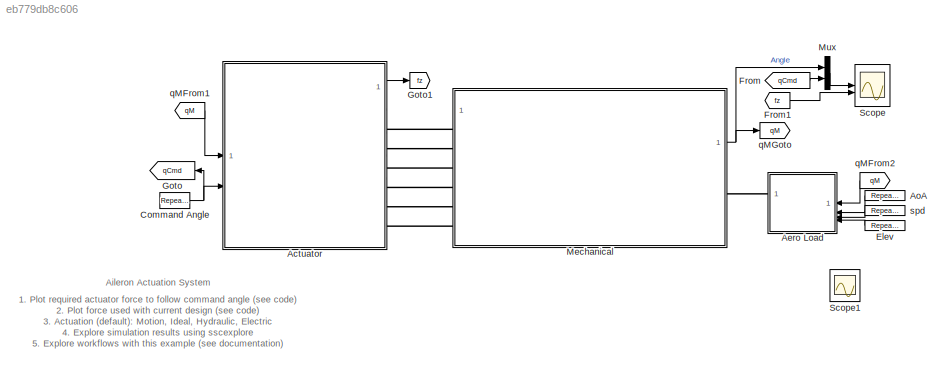
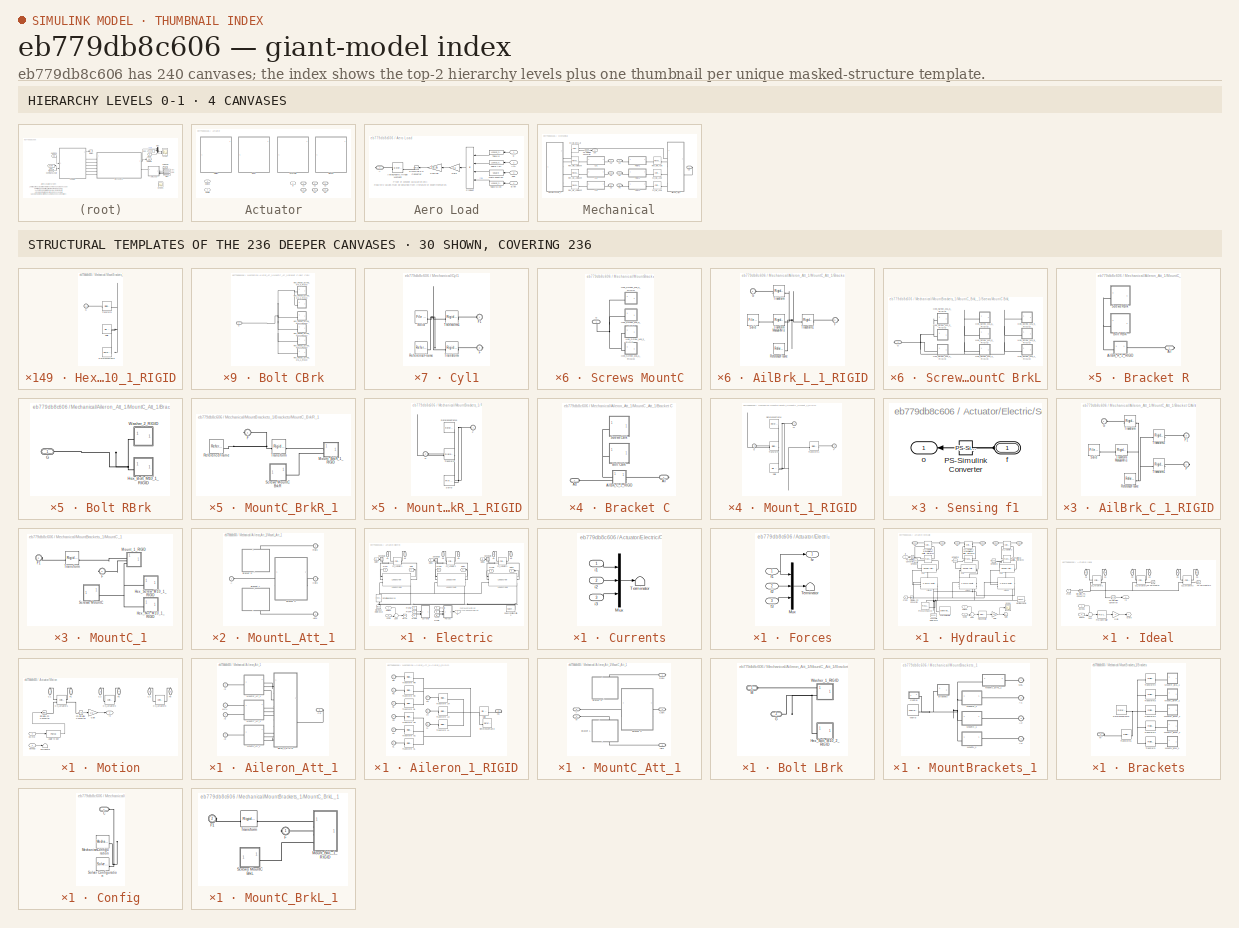
[diagram: thumbnail index - top-2 hierarchy levels (4 canvases) + 30 structural-template representatives of the remaining 236 canvases]
MODEL slx_eb779db8c606
KIND model
CONFIG AbsTol = 1e-4
CONFIG EnableMultiTasking = on
CONFIG FixedStep = 0.001
CONFIG PostLoadFcn = warning('off','sm:sli:setup:compile:LocalSolverNotSupported')
CONFIG SolverName = ode23t
CONFIG StartFcn = tic
CONFIG StopFcn = Elapsed_Sim_Time = toc;
WORKSPACE source: external: MATLAB File  (data not in archive)
BLOCK [SubSystem] Actuator
  AttributesFormatString = %<ActiveVariant>
  LabelModeActiveChoice = Motion
  Tag = PublishSubsystem
  Variant = on
  VariantControl = Variant1
  VariantControlMode = label
BLOCK [PMIOPort] Actuator/ C1
  Side = Right
BLOCK [PMIOPort] Actuator/ C2
  Port = 3
  Side = Right
BLOCK [PMIOPort] Actuator/ C3
  Port = 5
  Side = Right
BLOCK [PMIOPort] Actuator/ P1
  Port = 2
  Side = Right
BLOCK [PMIOPort] Actuator/ P2
  Port = 4
  Side = Right
BLOCK [PMIOPort] Actuator/ P3
  Port = 6
  Side = Right
BLOCK [Outport] Actuator/ fz
  VectorParamsAs1DForOutWhenUnconnected = off
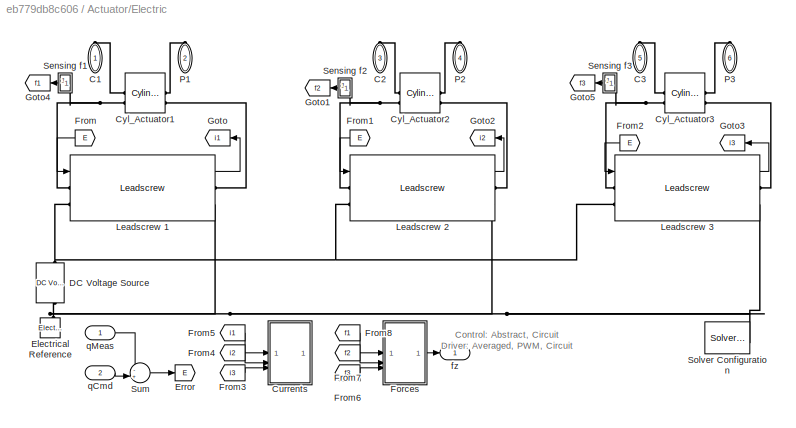
BLOCK [SubSystem] Actuator/Electric
  VariantControl = Electric
BLOCK [PMIOPort] Actuator/Electric/C1
  NameLocation = right
  Side = Right
BLOCK [PMIOPort] Actuator/Electric/C2
  NameLocation = right
  Port = 3
  Side = Right
BLOCK [PMIOPort] Actuator/Electric/C3
  NameLocation = right
  Port = 5
  Side = Right
BLOCK [SubSystem] Actuator/Electric/Currents
BLOCK [Mux] Actuator/Electric/Currents/Mux
  DisplayOption = bar
  Inputs = 3
BLOCK [Terminator] Actuator/Electric/Currents/Terminator
BLOCK [Inport] Actuator/Electric/Currents/i1
BLOCK [Inport] Actuator/Electric/Currents/i2
  Port = 2
BLOCK [Inport] Actuator/Electric/Currents/i3
  Port = 3
BLOCK [Reference] Actuator/Electric/Cyl_Actuator1  REF=sm_lib/Joints/Cylindrical
Joint
  SourceBlock = sm_lib/Joints/Cylindrical\nJoint
  SourceType = Cylindrical\nJoint
BLOCK [Reference] Actuator/Electric/Cyl_Actuator2  REF=sm_lib/Joints/Cylindrical
Joint
  SourceBlock = sm_lib/Joints/Cylindrical\nJoint
  SourceType = Cylindrical\nJoint
BLOCK [Reference] Actuator/Electric/Cyl_Actuator3  REF=sm_lib/Joints/Cylindrical
Joint
  SourceBlock = sm_lib/Joints/Cylindrical\nJoint
  SourceType = Cylindrical\nJoint
BLOCK [Reference] Actuator/Electric/DC Voltage Source  REF=fl_lib/Electrical/Electrical Sources/DC Voltage Source
  NameLocation = right
  SourceBlock = fl_lib/Electrical/Electrical Sources/DC Voltage Source
  SourceType = DC Voltage Source
BLOCK [Reference] Actuator/Electric/Electrical Reference  REF=fl_lib/Electrical/Electrical Elements/Electrical Reference
  NameLocation = right
  SourceBlock = fl_lib/Electrical/Electrical Elements/Electrical Reference
  SourceType = Electrical Reference
BLOCK [Goto] Actuator/Electric/Error
  GotoTag = E
BLOCK [SubSystem] Actuator/Electric/Forces
BLOCK [Mux] Actuator/Electric/Forces/Mux
  DisplayOption = bar
  Inputs = 3
BLOCK [Terminator] Actuator/Electric/Forces/Terminator
BLOCK [Inport] Actuator/Electric/Forces/f1
BLOCK [Inport] Actuator/Electric/Forces/f2
  Port = 2
BLOCK [Inport] Actuator/Electric/Forces/f3
  Port = 3
BLOCK [Outport] Actuator/Electric/Forces/fz
  VectorParamsAs1DForOutWhenUnconnected = off
BLOCK [From] Actuator/Electric/From
  GotoTag = E
  NameLocation = top
BLOCK [From] Actuator/Electric/From1
  GotoTag = E
  NameLocation = top
BLOCK [From] Actuator/Electric/From2
  GotoTag = E
  NameLocation = top
BLOCK [From] Actuator/Electric/From3
  GotoTag = i3
BLOCK [From] Actuator/Electric/From4
  GotoTag = i2
BLOCK [From] Actuator/Electric/From5
  GotoTag = i1
BLOCK [From] Actuator/Electric/From6
  GotoTag = f3
BLOCK [From] Actuator/Electric/From7
  GotoTag = f2
BLOCK [From] Actuator/Electric/From8
  GotoTag = f1
BLOCK [Goto] Actuator/Electric/Goto
  GotoTag = i1
  NameLocation = top
BLOCK [Goto] Actuator/Electric/Goto1
  GotoTag = f2
BLOCK [Goto] Actuator/Electric/Goto2
  GotoTag = i2
  NameLocation = top
BLOCK [Goto] Actuator/Electric/Goto3
  GotoTag = i3
  NameLocation = top
BLOCK [Goto] Actuator/Electric/Goto4
  GotoTag = f1
BLOCK [Goto] Actuator/Electric/Goto5
  GotoTag = f3
BLOCK [Reference] Actuator/Electric/Leadscrew 1  REF=sm_aileron_actuator_lib/Leadscrew
  SourceBlock = sm_aileron_actuator_lib/Leadscrew
BLOCK [Reference] Actuator/Electric/Leadscrew 2  REF=sm_aileron_actuator_lib/Leadscrew
  SourceBlock = sm_aileron_actuator_lib/Leadscrew
BLOCK [Reference] Actuator/Electric/Leadscrew 3  REF=sm_aileron_actuator_lib/Leadscrew
  SourceBlock = sm_aileron_actuator_lib/Leadscrew
BLOCK [PMIOPort] Actuator/Electric/P1
  NameLocation = left
  Port = 2
  Side = Right
BLOCK [PMIOPort] Actuator/Electric/P2
  NameLocation = left
  Port = 4
  Side = Right
BLOCK [PMIOPort] Actuator/Electric/P3
  NameLocation = left
  Port = 6
  Side = Right
BLOCK [SubSystem] Actuator/Electric/Sensing f1
BLOCK [Reference] Actuator/Electric/Sensing f1/PS-Simulink Converter  REF=nesl_utility/PS-Simulink
Converter
  SourceBlock = nesl_utility/PS-Simulink\nConverter
  SourceType = PS-Simulink\nConverter
BLOCK [PMIOPort] Actuator/Electric/Sensing f1/f
  Side = Left
BLOCK [Outport] Actuator/Electric/Sensing f1/o
  VectorParamsAs1DForOutWhenUnconnected = off
BLOCK [SubSystem] Actuator/Electric/Sensing f2
BLOCK [Reference] Actuator/Electric/Sensing f2/PS-Simulink Converter  REF=nesl_utility/PS-Simulink
Converter
  SourceBlock = nesl_utility/PS-Simulink\nConverter
  SourceType = PS-Simulink\nConverter
BLOCK [PMIOPort] Actuator/Electric/Sensing f2/f
  Side = Left
BLOCK [Outport] Actuator/Electric/Sensing f2/o
  VectorParamsAs1DForOutWhenUnconnected = off
BLOCK [SubSystem] Actuator/Electric/Sensing f3
BLOCK [Reference] Actuator/Electric/Sensing f3/PS-Simulink Converter  REF=nesl_utility/PS-Simulink
Converter
  SourceBlock = nesl_utility/PS-Simulink\nConverter
  SourceType = PS-Simulink\nConverter
BLOCK [PMIOPort] Actuator/Electric/Sensing f3/f
  Side = Left
BLOCK [Outport] Actuator/Electric/Sensing f3/o
  VectorParamsAs1DForOutWhenUnconnected = off
BLOCK [Reference] Actuator/Electric/Solver Configuration  REF=nesl_utility/Solver
Configuration
  SourceBlock = nesl_utility/Solver\nConfiguration
  SourceType = Solver\nConfiguration
BLOCK [Sum] Actuator/Electric/Sum
  Inputs = -+|
BLOCK [Outport] Actuator/Electric/fz
  VectorParamsAs1DForOutWhenUnconnected = off
BLOCK [Inport] Actuator/Electric/qCmd 
  Port = 2
BLOCK [Inport] Actuator/Electric/qMeas
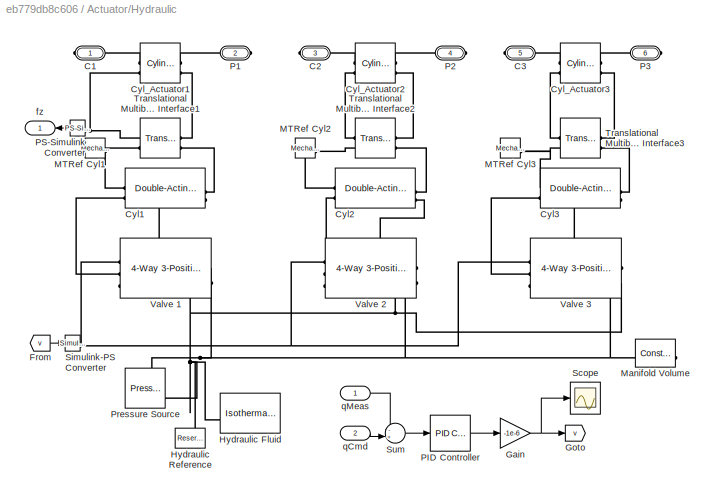
BLOCK [SubSystem] Actuator/Hydraulic
  VariantControl = Hydraulic
BLOCK [PMIOPort] Actuator/Hydraulic/C1
  Side = Right
BLOCK [PMIOPort] Actuator/Hydraulic/C2
  Port = 3
  Side = Right
BLOCK [PMIOPort] Actuator/Hydraulic/C3
  Port = 5
  Side = Right
BLOCK [Reference] Actuator/Hydraulic/Cyl1  REF=SimscapeFluids_lib/Isothermal Liquid/Actuators/Double-Acting
Actuator (IL)
  LibrarySourceBlock = sh_lib/Hydraulic Cylinders/Double-Acting\nHydraulic Cylinder
  SourceBlock = SimscapeFluids_lib/Isothermal Liquid/Actuators/Double-Acting\nActuator (IL)
  SourceType = Double-Acting\nActuator (IL)
BLOCK [Reference] Actuator/Hydraulic/Cyl2  REF=SimscapeFluids_lib/Isothermal Liquid/Actuators/Double-Acting
Actuator (IL)
  LibrarySourceBlock = sh_lib/Hydraulic Cylinders/Double-Acting\nHydraulic Cylinder
  SourceBlock = SimscapeFluids_lib/Isothermal Liquid/Actuators/Double-Acting\nActuator (IL)
  SourceType = Double-Acting\nActuator (IL)
BLOCK [Reference] Actuator/Hydraulic/Cyl3  REF=SimscapeFluids_lib/Isothermal Liquid/Actuators/Double-Acting
Actuator (IL)
  LibrarySourceBlock = sh_lib/Hydraulic Cylinders/Double-Acting\nHydraulic Cylinder
  SourceBlock = SimscapeFluids_lib/Isothermal Liquid/Actuators/Double-Acting\nActuator (IL)
  SourceType = Double-Acting\nActuator (IL)
BLOCK [Reference] Actuator/Hydraulic/Cyl_Actuator1  REF=sm_lib/Joints/Cylindrical
Joint
  SourceBlock = sm_lib/Joints/Cylindrical\nJoint
  SourceType = Cylindrical\nJoint
BLOCK [Reference] Actuator/Hydraulic/Cyl_Actuator2  REF=sm_lib/Joints/Cylindrical
Joint
  SourceBlock = sm_lib/Joints/Cylindrical\nJoint
  SourceType = Cylindrical\nJoint
BLOCK [Reference] Actuator/Hydraulic/Cyl_Actuator3  REF=sm_lib/Joints/Cylindrical
Joint
  SourceBlock = sm_lib/Joints/Cylindrical\nJoint
  SourceType = Cylindrical\nJoint
BLOCK [From] Actuator/Hydraulic/From
  GotoTag = v
BLOCK [Gain] Actuator/Hydraulic/Gain
  Gain = -1e-6
BLOCK [Goto] Actuator/Hydraulic/Goto
  GotoTag = v
BLOCK [Reference] Actuator/Hydraulic/Hydraulic Fluid  REF=fl_lib/Isothermal Liquid/Utilities/Isothermal Liquid
Properties (IL)
  LibrarySourceBlock = sh_lib/Hydraulic Utilities/Hydraulic Fluid
  SourceBlock = fl_lib/Isothermal Liquid/Utilities/Isothermal Liquid\nProperties (IL)
  SourceType = Isothermal Liquid\nProperties (IL)
BLOCK [Reference] Actuator/Hydraulic/Hydraulic Reference  REF=fl_lib/Isothermal Liquid/Elements/Reservoir (IL)
  LibrarySourceBlock = fl_lib/Hydraulic/Hydraulic Elements/Hydraulic Reference
  NameLocation = right
  SourceBlock = fl_lib/Isothermal Liquid/Elements/Reservoir (IL)
  SourceType = Reservoir (IL)
BLOCK [Reference] Actuator/Hydraulic/MTRef Cyl1  REF=fl_lib/Mechanical/Translational
Elements/Mechanical
Translational
Reference
  SourceBlock = fl_lib/Mechanical/Translational\nElements/Mechanical\nTranslational\nReference
  SourceType = Mechanical\nTranslational\nReference
BLOCK [Reference] Actuator/Hydraulic/MTRef Cyl2  REF=fl_lib/Mechanical/Translational
Elements/Mechanical
Translational
Reference
  SourceBlock = fl_lib/Mechanical/Translational\nElements/Mechanical\nTranslational\nReference
  SourceType = Mechanical\nTranslational\nReference
BLOCK [Reference] Actuator/Hydraulic/MTRef Cyl3  REF=fl_lib/Mechanical/Translational
Elements/Mechanical
Translational
Reference
  SourceBlock = fl_lib/Mechanical/Translational\nElements/Mechanical\nTranslational\nReference
  SourceType = Mechanical\nTranslational\nReference
BLOCK [Reference] Actuator/Hydraulic/Manifold Volume  REF=fl_lib/Isothermal Liquid/Elements/Constant Volume
Chamber (IL)
  LibrarySourceBlock = fl_lib/Hydraulic/Hydraulic Elements/Constant Volume\nHydraulic Chamber
  SourceBlock = fl_lib/Isothermal Liquid/Elements/Constant Volume\nChamber (IL)
  SourceType = Constant Volume\nChamber (IL)
BLOCK [PMIOPort] Actuator/Hydraulic/P1
  Port = 2
  Side = Right
BLOCK [PMIOPort] Actuator/Hydraulic/P2
  Port = 4
  Side = Right
BLOCK [PMIOPort] Actuator/Hydraulic/P3
  Port = 6
  Side = Right
BLOCK [Reference] Actuator/Hydraulic/PID Controller  REF=slpidlib/PID Controller
  SourceBlock = slpidlib/PID Controller
  SourceType = PID 1dof
BLOCK [Reference] Actuator/Hydraulic/PS-Simulink Converter  REF=nesl_utility/PS-Simulink
Converter
  SourceBlock = nesl_utility/PS-Simulink\nConverter
  SourceType = PS-Simulink\nConverter
BLOCK [Reference] Actuator/Hydraulic/Pressure Source  REF=fl_lib/Isothermal Liquid/Sources/Pressure Source (IL)
  LibrarySourceBlock = fl_lib/Hydraulic/Hydraulic Sources/Hydraulic Constant\nPressure Source
  NameLocation = left
  SourceBlock = fl_lib/Isothermal Liquid/Sources/Pressure Source (IL)
  SourceType = Pressure Source (IL)
BLOCK [Scope] Actuator/Hydraulic/Scope
  ActiveDisplayYMaximum = 0.0025
  ActiveDisplayYMinimum = -0.0025
  DataLoggingVariableName = ScopeData1
  Floating = off
  GraphicalSettings = {"GraphicalSettings":{"LegacySettings":true,"Style":{"Style":{"AxesColor":"[0 0 0]","ChannelNames":[""],"ColorOrder":"[1 1 0.0666666666666667;0.0745098039215686 0.623529411764706 1;1 0.411764705882353 0.16078431372549;0.392156862745098 0.831372549019608 0.0745098039215686;0.717647058823529 0.274509803921569 1;0.0588235294117647 1 1;1 0.0745098039215686 0.650980392156863]","CurrentConfiguration":"e...<+378ch>
  MultipleDisplayCache = [{"MaxYLimMag":0.0025,"MaxYLimReal":0.0025,"MinYLimMag":0,"MinYLimReal":-0.0025,"PlotAsMagnitudePhase":false,"ShowGrid":true,"ShowLegend":false,"Title":"%<SignalLabel>","YLabel":""}]
  NumInputPorts = 1
  WasSavedAsWebScope = on
BLOCK [Reference] Actuator/Hydraulic/Simulink-PS Converter  REF=nesl_utility/Simulink-PS
Converter
  SourceBlock = nesl_utility/Simulink-PS\nConverter
  SourceType = Simulink-PS\nConverter
BLOCK [Sum] Actuator/Hydraulic/Sum
  Inputs = -+|
BLOCK [Reference] Actuator/Hydraulic/Translational Multibody Interface1  REF=fl_lib/Mechanical/Multibody Interfaces/Translational
Multibody Interface
  SourceBlock = fl_lib/Mechanical/Multibody Interfaces/Translational\nMultibody Interface
  SourceType = Translational\nMultibody Interface
BLOCK [Reference] Actuator/Hydraulic/Translational Multibody Interface2  REF=fl_lib/Mechanical/Multibody Interfaces/Translational
Multibody Interface
  SourceBlock = fl_lib/Mechanical/Multibody Interfaces/Translational\nMultibody Interface
  SourceType = Translational\nMultibody Interface
BLOCK [Reference] Actuator/Hydraulic/Translational Multibody Interface3  REF=fl_lib/Mechanical/Multibody Interfaces/Translational
Multibody Interface
  SourceBlock = fl_lib/Mechanical/Multibody Interfaces/Translational\nMultibody Interface
  SourceType = Translational\nMultibody Interface
BLOCK [Reference] Actuator/Hydraulic/Valve 1  REF=SimscapeFluids_lib/Isothermal Liquid/Valves & Orifices/Directional Control
Valves/4-Way 3-Position
Directional Valve
(IL)
  LibrarySourceBlock = sh_lib/Valves/Directional Valves/4-Way Directional\nValve
  SourceBlock = SimscapeFluids_lib/Isothermal Liquid/Valves & Orifices/Directional Control\nValves/4-Way 3-Position\nDirectional Valve\n(IL)
  SourceType = 4-Way 3-Position\nDirectional Valve\n(IL)
BLOCK [Reference] Actuator/Hydraulic/Valve 2  REF=SimscapeFluids_lib/Isothermal Liquid/Valves & Orifices/Directional Control
Valves/4-Way 3-Position
Directional Valve
(IL)
  LibrarySourceBlock = sh_lib/Valves/Directional Valves/4-Way Directional\nValve
  SourceBlock = SimscapeFluids_lib/Isothermal Liquid/Valves & Orifices/Directional Control\nValves/4-Way 3-Position\nDirectional Valve\n(IL)
  SourceType = 4-Way 3-Position\nDirectional Valve\n(IL)
BLOCK [Reference] Actuator/Hydraulic/Valve 3  REF=SimscapeFluids_lib/Isothermal Liquid/Valves & Orifices/Directional Control
Valves/4-Way 3-Position
Directional Valve
(IL)
  LibrarySourceBlock = sh_lib/Valves/Directional Valves/4-Way Directional\nValve
  SourceBlock = SimscapeFluids_lib/Isothermal Liquid/Valves & Orifices/Directional Control\nValves/4-Way 3-Position\nDirectional Valve\n(IL)
  SourceType = 4-Way 3-Position\nDirectional Valve\n(IL)
BLOCK [Outport] Actuator/Hydraulic/fz
  VectorParamsAs1DForOutWhenUnconnected = off
BLOCK [Inport] Actuator/Hydraulic/qCmd 
  Port = 2
BLOCK [Inport] Actuator/Hydraulic/qMeas
BLOCK [SubSystem] Actuator/Ideal
  VariantControl = Ideal
BLOCK [PMIOPort] Actuator/Ideal/C1
  NameLocation = right
  Side = Right
BLOCK [PMIOPort] Actuator/Ideal/C2
  NameLocation = right
  Port = 3
  Side = Right
BLOCK [PMIOPort] Actuator/Ideal/C3
  NameLocation = right
  Port = 5
  Side = Right
BLOCK [Reference] Actuator/Ideal/Cyl_Actuator1  REF=sm_lib/Joints/Cylindrical
Joint
  SourceBlock = sm_lib/Joints/Cylindrical\nJoint
  SourceType = Cylindrical\nJoint
BLOCK [Reference] Actuator/Ideal/Cyl_Actuator2  REF=sm_lib/Joints/Cylindrical
Joint
  SourceBlock = sm_lib/Joints/Cylindrical\nJoint
  SourceType = Cylindrical\nJoint
BLOCK [Reference] Actuator/Ideal/Cyl_Actuator3  REF=sm_lib/Joints/Cylindrical
Joint
  SourceBlock = sm_lib/Joints/Cylindrical\nJoint
  SourceType = Cylindrical\nJoint
BLOCK [From] Actuator/Ideal/From
  GotoTag = f
BLOCK [Gain] Actuator/Ideal/Gain
  Gain = -1
BLOCK [Goto] Actuator/Ideal/Goto
  GotoTag = f
BLOCK [PMIOPort] Actuator/Ideal/P1
  NameLocation = left
  Port = 2
  Side = Right
BLOCK [PMIOPort] Actuator/Ideal/P2
  NameLocation = left
  Port = 4
  Side = Right
BLOCK [PMIOPort] Actuator/Ideal/P3
  NameLocation = left
  Port = 6
  Side = Right
BLOCK [Reference] Actuator/Ideal/PID Controller  REF=slpidlib/PID Controller
  SourceBlock = slpidlib/PID Controller
  SourceType = PID 1dof
BLOCK [Reference] Actuator/Ideal/PS Terminator  REF=fl_lib/Physical Signals/Sinks/PS Terminator
  SourceBlock = fl_lib/Physical Signals/Sinks/PS Terminator
  SourceType = PS Terminator
BLOCK [Reference] Actuator/Ideal/PS Terminator1  REF=fl_lib/Physical Signals/Sinks/PS Terminator
  SourceBlock = fl_lib/Physical Signals/Sinks/PS Terminator
  SourceType = PS Terminator
BLOCK [Reference] Actuator/Ideal/PS-Simulink Converter  REF=nesl_utility/PS-Simulink
Converter
  SourceBlock = nesl_utility/PS-Simulink\nConverter
  SourceType = PS-Simulink\nConverter
BLOCK [Reference] Actuator/Ideal/Simulink-PS Converter  REF=nesl_utility/Simulink-PS
Converter
  SourceBlock = nesl_utility/Simulink-PS\nConverter
  SourceType = Simulink-PS\nConverter
BLOCK [Sum] Actuator/Ideal/Sum
  Inputs = -+|
BLOCK [Outport] Actuator/Ideal/fz
  VectorParamsAs1DForOutWhenUnconnected = off
BLOCK [Inport] Actuator/Ideal/qCmd 
  Port = 2
BLOCK [Inport] Actuator/Ideal/qMeas
BLOCK [SubSystem] Actuator/Motion
  VariantControl = Motion
BLOCK [Polyval] Actuator/Motion/Angle to Ext
  Coefs = ang2Ext_coeff
BLOCK [PMIOPort] Actuator/Motion/C1
  NameLocation = right
  Side = Right
BLOCK [PMIOPort] Actuator/Motion/C2
  NameLocation = right
  Port = 3
  Side = Right
BLOCK [PMIOPort] Actuator/Motion/C3
  NameLocation = right
  Port = 5
  Side = Right
BLOCK [Reference] Actuator/Motion/Cyl_Actuator1  REF=sm_lib/Joints/Cylindrical
Joint
  SourceBlock = sm_lib/Joints/Cylindrical\nJoint
  SourceType = Cylindrical\nJoint
BLOCK [Reference] Actuator/Motion/Cyl_Actuator2  REF=sm_lib/Joints/Cylindrical
Joint
  SourceBlock = sm_lib/Joints/Cylindrical\nJoint
  SourceType = Cylindrical\nJoint
BLOCK [Reference] Actuator/Motion/Cyl_Actuator3  REF=sm_lib/Joints/Cylindrical
Joint
  SourceBlock = sm_lib/Joints/Cylindrical\nJoint
  SourceType = Cylindrical\nJoint
BLOCK [Gain] Actuator/Motion/Gain
  Gain = 1/3
BLOCK [PMIOPort] Actuator/Motion/P1
  NameLocation = left
  Port = 2
  Side = Right
BLOCK [PMIOPort] Actuator/Motion/P2
  NameLocation = left
  Port = 4
  Side = Right
BLOCK [PMIOPort] Actuator/Motion/P3
  NameLocation = left
  Port = 6
  Side = Right
BLOCK [Reference] Actuator/Motion/PS-Simulink Converter  REF=nesl_utility/PS-Simulink
Converter
  SourceBlock = nesl_utility/PS-Simulink\nConverter
  SourceType = PS-Simulink\nConverter
BLOCK [Reference] Actuator/Motion/Simulink-PS Converter  REF=nesl_utility/Simulink-PS
Converter
  SourceBlock = nesl_utility/Simulink-PS\nConverter
  SourceType = Simulink-PS\nConverter
BLOCK [Terminator] Actuator/Motion/Terminator
BLOCK [Outport] Actuator/Motion/fz
  VectorParamsAs1DForOutWhenUnconnected = off
BLOCK [Inport] Actuator/Motion/qCmd 
  Port = 2
BLOCK [Inport] Actuator/Motion/qMeas
BLOCK [Inport] Actuator/qCmd 
  Port = 2
BLOCK [Inport] Actuator/qMeas
BLOCK [SubSystem] Aero Load
BLOCK [PMIOPort] Aero Load/A
  Side = Right
BLOCK [Reference] Aero Load/Aerodynamic Hinge Moment  REF=sm_lib/Forces and
Torques/External Force
and Torque
  SourceBlock = sm_lib/Forces and\nTorques/External Force\nand Torque
  SourceType = External Force\nand Torque
BLOCK [Inport] Aero Load/AoA
  Port = 2
BLOCK [Inport] Aero Load/Elev
  Port = 4
BLOCK [Gain] Aero Load/Gain
  Gain = 0.5
BLOCK [Math] Aero Load/Math Function
  Operator = square
  SignedPower = on
BLOCK [Product] Aero Load/Product
  Inputs = 4
BLOCK [Gain] Aero Load/Scaling
  Gain = 1e-6
BLOCK [Reference] Aero Load/Simulink-PS Converter  REF=nesl_utility/Simulink-PS
Converter
  SourceBlock = nesl_utility/Simulink-PS\nConverter
  SourceType = Simulink-PS\nConverter
BLOCK [Lookup_n-D] Aero Load/Table AoA
  BreakpointsForDimension1 = [-5:5]
  InputPortMap = u0
  InternalRulePriority = Speed
  NumberOfTableDimensions = 1
  RndMeth = Simplest
  Table = tanh([-5:5])
BLOCK [Lookup_n-D] Aero Load/Table Elev
  BreakpointsForDimension1 = [-5:5]
  InputPortMap = u0
  InternalRulePriority = Speed
  NumberOfTableDimensions = 1
  RndMeth = Simplest
  Table = tanh([-5:5])
BLOCK [Lookup_n-D] Aero Load/Table q
  BreakpointsForDimension1 = [-5:5]
  InputPortMap = u0
  InternalRulePriority = Speed
  NumberOfTableDimensions = 1
  RndMeth = Simplest
  Table = tanh([-5:5])
BLOCK [Inport] Aero Load/q
BLOCK [Inport] Aero Load/spd
  Port = 3
BLOCK [Reference] AoA  REF=simulink/Sources/Repeating
Sequence
  NameLocation = right
  SourceBlock = simulink/Sources/Repeating\nSequence
  SourceType = Repeating table
BLOCK [Reference] Command Angle  REF=simulink/Sources/Repeating
Sequence
  SourceBlock = simulink/Sources/Repeating\nSequence
  SourceType = Repeating table
BLOCK [Reference] Elev  REF=simulink/Sources/Repeating
Sequence
  NameLocation = right
  SourceBlock = simulink/Sources/Repeating\nSequence
  SourceType = Repeating table
BLOCK [From] From
  GotoTag = qCmd
BLOCK [From] From1
  GotoTag = fz
BLOCK [Goto] Goto
  GotoTag = qCmd
BLOCK [Goto] Goto1
  GotoTag = fz
BLOCK [SubSystem] Mechanical
  Tag = PublishSubsystem
BLOCK [SubSystem] Mechanical/Aileron_Att_1
  Tag = PublishSubsystem
BLOCK [PMIOPort] Mechanical/Aileron_Att_1/A1
  Port = 2
  Side = Left
BLOCK [PMIOPort] Mechanical/Aileron_Att_1/A2
  Port = 3
  Side = Left
BLOCK [PMIOPort] Mechanical/Aileron_Att_1/A3
  Port = 4
  Side = Left
BLOCK [SubSystem] Mechanical/Aileron_Att_1/Aileron_1_RIGID
BLOCK [PMIOPort] Mechanical/Aileron_Att_1/Aileron_1_RIGID/CC
  Port = 5
  Side = Left
BLOCK [PMIOPort] Mechanical/Aileron_Att_1/Aileron_1_RIGID/CG
  Port = 10
  Side = Right
BLOCK [PMIOPort] Mechanical/Aileron_Att_1/Aileron_1_RIGID/CL
  Port = 6
  Side = Left
BLOCK [PMIOPort] Mechanical/Aileron_Att_1/Aileron_1_RIGID/CR
  Port = 4
  Side = Left
BLOCK [PMIOPort] Mechanical/Aileron_Att_1/Aileron_1_RIGID/LC
  Port = 8
  Side = Left
BLOCK [PMIOPort] Mechanical/Aileron_Att_1/Aileron_1_RIGID/LL
  Port = 9
  Side = Left
BLOCK [PMIOPort] Mechanical/Aileron_Att_1/Aileron_1_RIGID/LR
  Port = 7
  Side = Left
BLOCK [PMIOPort] Mechanical/Aileron_Att_1/Aileron_1_RIGID/RC
  Port = 2
  Side = Left
BLOCK [PMIOPort] Mechanical/Aileron_Att_1/Aileron_1_RIGID/RL
  Port = 3
  Side = Left
BLOCK [PMIOPort] Mechanical/Aileron_Att_1/Aileron_1_RIGID/RR
  Side = Left
BLOCK [Reference] Mechanical/Aileron_Att_1/Aileron_1_RIGID/ReferenceFrame  REF=sm_lib/Frames and
Transforms/Reference
Frame
  SourceBlock = sm_lib/Frames and\nTransforms/Reference\nFrame
  SourceType = Reference\nFrame
BLOCK [Reference] Mechanical/Aileron_Att_1/Aileron_1_RIGID/Solid  REF=sm_lib/Body Elements/File Solid
  SourceBlock = sm_lib/Body Elements/File Solid
  SourceType = File Solid
BLOCK [Reference] Mechanical/Aileron_Att_1/Aileron_1_RIGID/Transform CC  REF=sm_lib/Frames and
Transforms/Rigid
Transform
  SourceBlock = sm_lib/Frames and\nTransforms/Rigid\nTransform
  SourceType = Rigid\nTransform
BLOCK [Reference] Mechanical/Aileron_Att_1/Aileron_1_RIGID/Transform CL  REF=sm_lib/Frames and
Transforms/Rigid
Transform
  SourceBlock = sm_lib/Frames and\nTransforms/Rigid\nTransform
  SourceType = Rigid\nTransform
BLOCK [Reference] Mechanical/Aileron_Att_1/Aileron_1_RIGID/Transform CR  REF=sm_lib/Frames and
Transforms/Rigid
Transform
  SourceBlock = sm_lib/Frames and\nTransforms/Rigid\nTransform
  SourceType = Rigid\nTransform
BLOCK [Reference] Mechanical/Aileron_Att_1/Aileron_1_RIGID/Transform LC  REF=sm_lib/Frames and
Transforms/Rigid
Transform
  SourceBlock = sm_lib/Frames and\nTransforms/Rigid\nTransform
  SourceType = Rigid\nTransform
BLOCK [Reference] Mechanical/Aileron_Att_1/Aileron_1_RIGID/Transform LL  REF=sm_lib/Frames and
Transforms/Rigid
Transform
  SourceBlock = sm_lib/Frames and\nTransforms/Rigid\nTransform
  SourceType = Rigid\nTransform
BLOCK [Reference] Mechanical/Aileron_Att_1/Aileron_1_RIGID/Transform LR  REF=sm_lib/Frames and
Transforms/Rigid
Transform
  SourceBlock = sm_lib/Frames and\nTransforms/Rigid\nTransform
  SourceType = Rigid\nTransform
BLOCK [Reference] Mechanical/Aileron_Att_1/Aileron_1_RIGID/Transform RC  REF=sm_lib/Frames and
Transforms/Rigid
Transform
  SourceBlock = sm_lib/Frames and\nTransforms/Rigid\nTransform
  SourceType = Rigid\nTransform
BLOCK [Reference] Mechanical/Aileron_Att_1/Aileron_1_RIGID/Transform RL  REF=sm_lib/Frames and
Transforms/Rigid
Transform
  SourceBlock = sm_lib/Frames and\nTransforms/Rigid\nTransform
  SourceType = Rigid\nTransform
BLOCK [Reference] Mechanical/Aileron_Att_1/Aileron_1_RIGID/Transform RR  REF=sm_lib/Frames and
Transforms/Rigid
Transform
  SourceBlock = sm_lib/Frames and\nTransforms/Rigid\nTransform
  SourceType = Rigid\nTransform
BLOCK [PMIOPort] Mechanical/Aileron_Att_1/CG
  Port = 5
  Side = Right
BLOCK [PMIOPort] Mechanical/Aileron_Att_1/MCL
  Side = Left
BLOCK [SubSystem] Mechanical/Aileron_Att_1/MountC_Att_1
BLOCK [PMIOPort] Mechanical/Aileron_Att_1/MountC_Att_1/A
  NameLocation = top
  Port = 5
  Side = Left
BLOCK [SubSystem] Mechanical/Aileron_Att_1/MountC_Att_1/Bracket C
BLOCK [PMIOPort] Mechanical/Aileron_Att_1/MountC_Att_1/Bracket C/Act
  Port = 2
  Side = Left
BLOCK [PMIOPort] Mechanical/Aileron_Att_1/MountC_Att_1/Bracket C/Ail
  Side = Right
BLOCK [SubSystem] Mechanical/Aileron_Att_1/MountC_Att_1/Bracket C/AilBrk_C_1_RIGID
BLOCK [PMIOPort] Mechanical/Aileron_Att_1/MountC_Att_1/Bracket C/AilBrk_C_1_RIGID/F
  Port = 2
  Side = Right
BLOCK [PMIOPort] Mechanical/Aileron_Att_1/MountC_Att_1/Bracket C/AilBrk_C_1_RIGID/F1
  Port = 3
  Side = Left
BLOCK [PMIOPort] Mechanical/Aileron_Att_1/MountC_Att_1/Bracket C/AilBrk_C_1_RIGID/G
  Side = Left
BLOCK [Reference] Mechanical/Aileron_Att_1/MountC_Att_1/Bracket C/AilBrk_C_1_RIGID/ReferenceFrame  REF=sm_lib/Frames and
Transforms/Reference
Frame
  SourceBlock = sm_lib/Frames and\nTransforms/Reference\nFrame
  SourceType = Reference\nFrame
BLOCK [Reference] Mechanical/Aileron_Att_1/MountC_Att_1/Bracket C/AilBrk_C_1_RIGID/Solid  REF=sm_lib/Body Elements/File Solid
  SourceBlock = sm_lib/Body Elements/File Solid
  SourceType = File Solid
BLOCK [Reference] Mechanical/Aileron_Att_1/MountC_Att_1/Bracket C/AilBrk_C_1_RIGID/Transform  REF=sm_lib/Frames and
Transforms/Rigid
Transform
  SourceBlock = sm_lib/Frames and\nTransforms/Rigid\nTransform
  SourceType = Rigid\nTransform
BLOCK [Reference] Mechanical/Aileron_Att_1/MountC_Att_1/Bracket C/AilBrk_C_1_RIGID/Transform Manual4Vis  REF=sm_lib/Frames and
Transforms/Rigid
Transform
  SourceBlock = sm_lib/Frames and\nTransforms/Rigid\nTransform
  SourceType = Rigid\nTransform
BLOCK [Reference] Mechanical/Aileron_Att_1/MountC_Att_1/Bracket C/AilBrk_C_1_RIGID/Transform1  REF=sm_lib/Frames and
Transforms/Rigid
Transform
  SourceBlock = sm_lib/Frames and\nTransforms/Rigid\nTransform
  SourceType = Rigid\nTransform
BLOCK [Reference] Mechanical/Aileron_Att_1/MountC_Att_1/Bracket C/AilBrk_C_1_RIGID/Transform2  REF=sm_lib/Frames and
Transforms/Rigid
Transform
  SourceBlock = sm_lib/Frames and\nTransforms/Rigid\nTransform
  SourceType = Rigid\nTransform
BLOCK [SubSystem] Mechanical/Aileron_Att_1/MountC_Att_1/Bracket C/Bolt CBrk
BLOCK [PMIOPort] Mechanical/Aileron_Att_1/MountC_Att_1/Bracket C/Bolt CBrk/G
  Side = Left
BLOCK [SubSystem] Mechanical/Aileron_Att_1/MountC_Att_1/Bracket C/Bolt CBrk/Hex_Flange_Screw_M6_1_RIGID
BLOCK [PMIOPort] Mechanical/Aileron_Att_1/MountC_Att_1/Bracket C/Bolt CBrk/Hex_Flange_Screw_M6_1_RIGID/G
  Side = Left
BLOCK [Reference] Mechanical/Aileron_Att_1/MountC_Att_1/Bracket C/Bolt CBrk/Hex_Flange_Screw_M6_1_RIGID/ReferenceFrame  REF=sm_lib/Frames and
Transforms/Reference
Frame
  SourceBlock = sm_lib/Frames and\nTransforms/Reference\nFrame
  SourceType = Reference\nFrame
BLOCK [Reference] Mechanical/Aileron_Att_1/MountC_Att_1/Bracket C/Bolt CBrk/Hex_Flange_Screw_M6_1_RIGID/Solid  REF=sm_lib/Body Elements/File Solid
  SourceBlock = sm_lib/Body Elements/File Solid
  SourceType = File Solid
BLOCK [Reference] Mechanical/Aileron_Att_1/MountC_Att_1/Bracket C/Bolt CBrk/Hex_Flange_Screw_M6_1_RIGID/Transform  REF=sm_lib/Frames and
Transforms/Rigid
Transform
  SourceBlock = sm_lib/Frames and\nTransforms/Rigid\nTransform
  SourceType = Rigid\nTransform
BLOCK [SubSystem] Mechanical/Aileron_Att_1/MountC_Att_1/Bracket C/Bolt CBrk/Hex_Flange_Screw_M6_2_RIGID
BLOCK [PMIOPort] Mechanical/Aileron_Att_1/MountC_Att_1/Bracket C/Bolt CBrk/Hex_Flange_Screw_M6_2_RIGID/G
  Side = Left
BLOCK [Reference] Mechanical/Aileron_Att_1/MountC_Att_1/Bracket C/Bolt CBrk/Hex_Flange_Screw_M6_2_RIGID/ReferenceFrame  REF=sm_lib/Frames and
Transforms/Reference
Frame
  SourceBlock = sm_lib/Frames and\nTransforms/Reference\nFrame
  SourceType = Reference\nFrame
BLOCK [Reference] Mechanical/Aileron_Att_1/MountC_Att_1/Bracket C/Bolt CBrk/Hex_Flange_Screw_M6_2_RIGID/Solid  REF=sm_lib/Body Elements/File Solid
  SourceBlock = sm_lib/Body Elements/File Solid
  SourceType = File Solid
BLOCK [Reference] Mechanical/Aileron_Att_1/MountC_Att_1/Bracket C/Bolt CBrk/Hex_Flange_Screw_M6_2_RIGID/Transform  REF=sm_lib/Frames and
Transforms/Rigid
Transform
  SourceBlock = sm_lib/Frames and\nTransforms/Rigid\nTransform
  SourceType = Rigid\nTransform
BLOCK [SubSystem] Mechanical/Aileron_Att_1/MountC_Att_1/Bracket C/Bolt CBrk/Hex_Flange_Screw_M6_3_RIGID
BLOCK [PMIOPort] Mechanical/Aileron_Att_1/MountC_Att_1/Bracket C/Bolt CBrk/Hex_Flange_Screw_M6_3_RIGID/G
  Side = Left
BLOCK [Reference] Mechanical/Aileron_Att_1/MountC_Att_1/Bracket C/Bolt CBrk/Hex_Flange_Screw_M6_3_RIGID/ReferenceFrame  REF=sm_lib/Frames and
Transforms/Reference
Frame
  SourceBlock = sm_lib/Frames and\nTransforms/Reference\nFrame
  SourceType = Reference\nFrame
BLOCK [Reference] Mechanical/Aileron_Att_1/MountC_Att_1/Bracket C/Bolt CBrk/Hex_Flange_Screw_M6_3_RIGID/Solid  REF=sm_lib/Body Elements/File Solid
  SourceBlock = sm_lib/Body Elements/File Solid
  SourceType = File Solid
BLOCK [Reference] Mechanical/Aileron_Att_1/MountC_Att_1/Bracket C/Bolt CBrk/Hex_Flange_Screw_M6_3_RIGID/Transform  REF=sm_lib/Frames and
Transforms/Rigid
Transform
  SourceBlock = sm_lib/Frames and\nTransforms/Rigid\nTransform
  SourceType = Rigid\nTransform
BLOCK [SubSystem] Mechanical/Aileron_Att_1/MountC_Att_1/Bracket C/Bolt CBrk/Hex_Flange_Screw_M6_4_RIGID
BLOCK [PMIOPort] Mechanical/Aileron_Att_1/MountC_Att_1/Bracket C/Bolt CBrk/Hex_Flange_Screw_M6_4_RIGID/G
  Side = Left
BLOCK [Reference] Mechanical/Aileron_Att_1/MountC_Att_1/Bracket C/Bolt CBrk/Hex_Flange_Screw_M6_4_RIGID/ReferenceFrame  REF=sm_lib/Frames and
Transforms/Reference
Frame
  SourceBlock = sm_lib/Frames and\nTransforms/Reference\nFrame
  SourceType = Reference\nFrame
BLOCK [Reference] Mechanical/Aileron_Att_1/MountC_Att_1/Bracket C/Bolt CBrk/Hex_Flange_Screw_M6_4_RIGID/Solid  REF=sm_lib/Body Elements/File Solid
  SourceBlock = sm_lib/Body Elements/File Solid
  SourceType = File Solid
BLOCK [Reference] Mechanical/Aileron_Att_1/MountC_Att_1/Bracket C/Bolt CBrk/Hex_Flange_Screw_M6_4_RIGID/Transform  REF=sm_lib/Frames and
Transforms/Rigid
Transform
  SourceBlock = sm_lib/Frames and\nTransforms/Rigid\nTransform
  SourceType = Rigid\nTransform
BLOCK [SubSystem] Mechanical/Aileron_Att_1/MountC_Att_1/Bracket C/Bolt CBrk/Hex_Flange_Screw_M6_5_RIGID
BLOCK [PMIOPort] Mechanical/Aileron_Att_1/MountC_Att_1/Bracket C/Bolt CBrk/Hex_Flange_Screw_M6_5_RIGID/G
  Side = Left
BLOCK [Reference] Mechanical/Aileron_Att_1/MountC_Att_1/Bracket C/Bolt CBrk/Hex_Flange_Screw_M6_5_RIGID/ReferenceFrame  REF=sm_lib/Frames and
Transforms/Reference
Frame
  SourceBlock = sm_lib/Frames and\nTransforms/Reference\nFrame
  SourceType = Reference\nFrame
BLOCK [Reference] Mechanical/Aileron_Att_1/MountC_Att_1/Bracket C/Bolt CBrk/Hex_Flange_Screw_M6_5_RIGID/Solid  REF=sm_lib/Body Elements/File Solid
  SourceBlock = sm_lib/Body Elements/File Solid
  SourceType = File Solid
BLOCK [Reference] Mechanical/Aileron_Att_1/MountC_Att_1/Bracket C/Bolt CBrk/Hex_Flange_Screw_M6_5_RIGID/Transform  REF=sm_lib/Frames and
Transforms/Rigid
Transform
  SourceBlock = sm_lib/Frames and\nTransforms/Rigid\nTransform
  SourceType = Rigid\nTransform
BLOCK [SubSystem] Mechanical/Aileron_Att_1/MountC_Att_1/Bracket C/Bolt CBrk/Hex_Flange_Screw_M6_6_RIGID
BLOCK [PMIOPort] Mechanical/Aileron_Att_1/MountC_Att_1/Bracket C/Bolt CBrk/Hex_Flange_Screw_M6_6_RIGID/G
  Side = Left
BLOCK [Reference] Mechanical/Aileron_Att_1/MountC_Att_1/Bracket C/Bolt CBrk/Hex_Flange_Screw_M6_6_RIGID/ReferenceFrame  REF=sm_lib/Frames and
Transforms/Reference
Frame
  SourceBlock = sm_lib/Frames and\nTransforms/Reference\nFrame
  SourceType = Reference\nFrame
BLOCK [Reference] Mechanical/Aileron_Att_1/MountC_Att_1/Bracket C/Bolt CBrk/Hex_Flange_Screw_M6_6_RIGID/Solid  REF=sm_lib/Body Elements/File Solid
  SourceBlock = sm_lib/Body Elements/File Solid
  SourceType = File Solid
BLOCK [Reference] Mechanical/Aileron_Att_1/MountC_Att_1/Bracket C/Bolt CBrk/Hex_Flange_Screw_M6_6_RIGID/Transform  REF=sm_lib/Frames and
Transforms/Rigid
Transform
  SourceBlock = sm_lib/Frames and\nTransforms/Rigid\nTransform
  SourceType = Rigid\nTransform
BLOCK [SubSystem] Mechanical/Aileron_Att_1/MountC_Att_1/Bracket C/Screws CBrk
BLOCK [PMIOPort] Mechanical/Aileron_Att_1/MountC_Att_1/Bracket C/Screws CBrk/G
  Side = Left
BLOCK [SubSystem] Mechanical/Aileron_Att_1/MountC_Att_1/Bracket C/Screws CBrk/Hex_Bolt_M10_3_RIGID
BLOCK [PMIOPort] Mechanical/Aileron_Att_1/MountC_Att_1/Bracket C/Screws CBrk/Hex_Bolt_M10_3_RIGID/G
  Side = Left
BLOCK [Reference] Mechanical/Aileron_Att_1/MountC_Att_1/Bracket C/Screws CBrk/Hex_Bolt_M10_3_RIGID/ReferenceFrame  REF=sm_lib/Frames and
Transforms/Reference
Frame
  SourceBlock = sm_lib/Frames and\nTransforms/Reference\nFrame
  SourceType = Reference\nFrame
BLOCK [Reference] Mechanical/Aileron_Att_1/MountC_Att_1/Bracket C/Screws CBrk/Hex_Bolt_M10_3_RIGID/Solid  REF=sm_lib/Body Elements/File Solid
  SourceBlock = sm_lib/Body Elements/File Solid
  SourceType = File Solid
BLOCK [Reference] Mechanical/Aileron_Att_1/MountC_Att_1/Bracket C/Screws CBrk/Hex_Bolt_M10_3_RIGID/Transform  REF=sm_lib/Frames and
Transforms/Rigid
Transform
  SourceBlock = sm_lib/Frames and\nTransforms/Rigid\nTransform
  SourceType = Rigid\nTransform
BLOCK [SubSystem] Mechanical/Aileron_Att_1/MountC_Att_1/Bracket C/Screws CBrk/Hex_Flange_Nut_M10_1_RIGID
BLOCK [PMIOPort] Mechanical/Aileron_Att_1/MountC_Att_1/Bracket C/Screws CBrk/Hex_Flange_Nut_M10_1_RIGID/G
  Side = Left
BLOCK [Reference] Mechanical/Aileron_Att_1/MountC_Att_1/Bracket C/Screws CBrk/Hex_Flange_Nut_M10_1_RIGID/ReferenceFrame  REF=sm_lib/Frames and
Transforms/Reference
Frame
  SourceBlock = sm_lib/Frames and\nTransforms/Reference\nFrame
  SourceType = Reference\nFrame
BLOCK [Reference] Mechanical/Aileron_Att_1/MountC_Att_1/Bracket C/Screws CBrk/Hex_Flange_Nut_M10_1_RIGID/Solid  REF=sm_lib/Body Elements/File Solid
  SourceBlock = sm_lib/Body Elements/File Solid
  SourceType = File Solid
BLOCK [Reference] Mechanical/Aileron_Att_1/MountC_Att_1/Bracket C/Screws CBrk/Hex_Flange_Nut_M10_1_RIGID/Transform  REF=sm_lib/Frames and
Transforms/Rigid
Transform
  SourceBlock = sm_lib/Frames and\nTransforms/Rigid\nTransform
  SourceType = Rigid\nTransform
BLOCK [SubSystem] Mechanical/Aileron_Att_1/MountC_Att_1/Bracket C/Screws CBrk/Washer_3_RIGID
BLOCK [PMIOPort] Mechanical/Aileron_Att_1/MountC_Att_1/Bracket C/Screws CBrk/Washer_3_RIGID/G
  Side = Left
BLOCK [Reference] Mechanical/Aileron_Att_1/MountC_Att_1/Bracket C/Screws CBrk/Washer_3_RIGID/ReferenceFrame  REF=sm_lib/Frames and
Transforms/Reference
Frame
  SourceBlock = sm_lib/Frames and\nTransforms/Reference\nFrame
  SourceType = Reference\nFrame
BLOCK [Reference] Mechanical/Aileron_Att_1/MountC_Att_1/Bracket C/Screws CBrk/Washer_3_RIGID/Solid  REF=sm_lib/Body Elements/File Solid
  SourceBlock = sm_lib/Body Elements/File Solid
  SourceType = File Solid
BLOCK [Reference] Mechanical/Aileron_Att_1/MountC_Att_1/Bracket C/Screws CBrk/Washer_3_RIGID/Transform  REF=sm_lib/Frames and
Transforms/Rigid
Transform
  SourceBlock = sm_lib/Frames and\nTransforms/Rigid\nTransform
  SourceType = Rigid\nTransform
BLOCK [SubSystem] Mechanical/Aileron_Att_1/MountC_Att_1/Bracket C/Screws CBrk/Washer_4_RIGID
BLOCK [PMIOPort] Mechanical/Aileron_Att_1/MountC_Att_1/Bracket C/Screws CBrk/Washer_4_RIGID/G
  Side = Left
BLOCK [Reference] Mechanical/Aileron_Att_1/MountC_Att_1/Bracket C/Screws CBrk/Washer_4_RIGID/ReferenceFrame  REF=sm_lib/Frames and
Transforms/Reference
Frame
  SourceBlock = sm_lib/Frames and\nTransforms/Reference\nFrame
  SourceType = Reference\nFrame
BLOCK [Reference] Mechanical/Aileron_Att_1/MountC_Att_1/Bracket C/Screws CBrk/Washer_4_RIGID/Solid  REF=sm_lib/Body Elements/File Solid
  SourceBlock = sm_lib/Body Elements/File Solid
  SourceType = File Solid
BLOCK [Reference] Mechanical/Aileron_Att_1/MountC_Att_1/Bracket C/Screws CBrk/Washer_4_RIGID/Transform  REF=sm_lib/Frames and
Transforms/Rigid
Transform
  SourceBlock = sm_lib/Frames and\nTransforms/Rigid\nTransform
  SourceType = Rigid\nTransform
BLOCK [SubSystem] Mechanical/Aileron_Att_1/MountC_Att_1/Bracket L
  NameLocation = left
BLOCK [PMIOPort] Mechanical/Aileron_Att_1/MountC_Att_1/Bracket L/Ail
  Port = 2
  Side = Right
BLOCK [SubSystem] Mechanical/Aileron_Att_1/MountC_Att_1/Bracket L/AilBrk_L_1_RIGID
BLOCK [PMIOPort] Mechanical/Aileron_Att_1/MountC_Att_1/Bracket L/AilBrk_L_1_RIGID/F
  Port = 2
  Side = Right
BLOCK [PMIOPort] Mechanical/Aileron_Att_1/MountC_Att_1/Bracket L/AilBrk_L_1_RIGID/G
  Side = Left
BLOCK [Reference] Mechanical/Aileron_Att_1/MountC_Att_1/Bracket L/AilBrk_L_1_RIGID/ReferenceFrame  REF=sm_lib/Frames and
Transforms/Reference
Frame
  SourceBlock = sm_lib/Frames and\nTransforms/Reference\nFrame
  SourceType = Reference\nFrame
BLOCK [Reference] Mechanical/Aileron_Att_1/MountC_Att_1/Bracket L/AilBrk_L_1_RIGID/Solid  REF=sm_lib/Body Elements/File Solid
  SourceBlock = sm_lib/Body Elements/File Solid
  SourceType = File Solid
BLOCK [Reference] Mechanical/Aileron_Att_1/MountC_Att_1/Bracket L/AilBrk_L_1_RIGID/Transform  REF=sm_lib/Frames and
Transforms/Rigid
Transform
  SourceBlock = sm_lib/Frames and\nTransforms/Rigid\nTransform
  SourceType = Rigid\nTransform
BLOCK [Reference] Mechanical/Aileron_Att_1/MountC_Att_1/Bracket L/AilBrk_L_1_RIGID/Transform Manual4Vis  REF=sm_lib/Frames and
Transforms/Rigid
Transform
  SourceBlock = sm_lib/Frames and\nTransforms/Rigid\nTransform
  SourceType = Rigid\nTransform
BLOCK [Reference] Mechanical/Aileron_Att_1/MountC_Att_1/Bracket L/AilBrk_L_1_RIGID/Transform1  REF=sm_lib/Frames and
Transforms/Rigid
Transform
  SourceBlock = sm_lib/Frames and\nTransforms/Rigid\nTransform
  SourceType = Rigid\nTransform
BLOCK [SubSystem] Mechanical/Aileron_Att_1/MountC_Att_1/Bracket L/Bolt LBrk
BLOCK [PMIOPort] Mechanical/Aileron_Att_1/MountC_Att_1/Bracket L/Bolt LBrk/G
  Port = 2
  Side = Left
BLOCK [SubSystem] Mechanical/Aileron_Att_1/MountC_Att_1/Bracket L/Bolt LBrk/Hex_Bolt_M10_2_RIGID
BLOCK [PMIOPort] Mechanical/Aileron_Att_1/MountC_Att_1/Bracket L/Bolt LBrk/Hex_Bolt_M10_2_RIGID/G
  Side = Left
BLOCK [Reference] Mechanical/Aileron_Att_1/MountC_Att_1/Bracket L/Bolt LBrk/Hex_Bolt_M10_2_RIGID/ReferenceFrame  REF=sm_lib/Frames and
Transforms/Reference
Frame
  SourceBlock = sm_lib/Frames and\nTransforms/Reference\nFrame
  SourceType = Reference\nFrame
BLOCK [Reference] Mechanical/Aileron_Att_1/MountC_Att_1/Bracket L/Bolt LBrk/Hex_Bolt_M10_2_RIGID/Solid  REF=sm_lib/Body Elements/File Solid
  SourceBlock = sm_lib/Body Elements/File Solid
  SourceType = File Solid
BLOCK [Reference] Mechanical/Aileron_Att_1/MountC_Att_1/Bracket L/Bolt LBrk/Hex_Bolt_M10_2_RIGID/Transform  REF=sm_lib/Frames and
Transforms/Rigid
Transform
  SourceBlock = sm_lib/Frames and\nTransforms/Rigid\nTransform
  SourceType = Rigid\nTransform
BLOCK [PMIOPort] Mechanical/Aileron_Att_1/MountC_Att_1/Bracket L/Bolt LBrk/M
  Side = Left
BLOCK [SubSystem] Mechanical/Aileron_Att_1/MountC_Att_1/Bracket L/Bolt LBrk/Washer_1_RIGID
BLOCK [PMIOPort] Mechanical/Aileron_Att_1/MountC_Att_1/Bracket L/Bolt LBrk/Washer_1_RIGID/F
  Side = Left
BLOCK [PMIOPort] Mechanical/Aileron_Att_1/MountC_Att_1/Bracket L/Bolt LBrk/Washer_1_RIGID/G
  Port = 2
  Side = Left
BLOCK [Reference] Mechanical/Aileron_Att_1/MountC_Att_1/Bracket L/Bolt LBrk/Washer_1_RIGID/ReferenceFrame  REF=sm_lib/Frames and
Transforms/Reference
Frame
  SourceBlock = sm_lib/Frames and\nTransforms/Reference\nFrame
  SourceType = Reference\nFrame
BLOCK [Reference] Mechanical/Aileron_Att_1/MountC_Att_1/Bracket L/Bolt LBrk/Washer_1_RIGID/Solid  REF=sm_lib/Body Elements/File Solid
  SourceBlock = sm_lib/Body Elements/File Solid
  SourceType = File Solid
BLOCK [Reference] Mechanical/Aileron_Att_1/MountC_Att_1/Bracket L/Bolt LBrk/Washer_1_RIGID/Transform  REF=sm_lib/Frames and
Transforms/Rigid
Transform
  SourceBlock = sm_lib/Frames and\nTransforms/Rigid\nTransform
  SourceType = Rigid\nTransform
BLOCK [Reference] Mechanical/Aileron_Att_1/MountC_Att_1/Bracket L/Bolt LBrk/Washer_1_RIGID/Transform1  REF=sm_lib/Frames and
Transforms/Rigid
Transform
  SourceBlock = sm_lib/Frames and\nTransforms/Rigid\nTransform
  SourceType = Rigid\nTransform
BLOCK [PMIOPort] Mechanical/Aileron_Att_1/MountC_Att_1/Bracket L/M
  Side = Left
BLOCK [SubSystem] Mechanical/Aileron_Att_1/MountC_Att_1/Bracket L/Screws LBrk
BLOCK [PMIOPort] Mechanical/Aileron_Att_1/MountC_Att_1/Bracket L/Screws LBrk/G
  Side = Left
BLOCK [SubSystem] Mechanical/Aileron_Att_1/MountC_Att_1/Bracket L/Screws LBrk/Oval_Head_M4_12_RIGID
BLOCK [PMIOPort] Mechanical/Aileron_Att_1/MountC_Att_1/Bracket L/Screws LBrk/Oval_Head_M4_12_RIGID/G
  Side = Left
BLOCK [Reference] Mechanical/Aileron_Att_1/MountC_Att_1/Bracket L/Screws LBrk/Oval_Head_M4_12_RIGID/ReferenceFrame  REF=sm_lib/Frames and
Transforms/Reference
Frame
  SourceBlock = sm_lib/Frames and\nTransforms/Reference\nFrame
  SourceType = Reference\nFrame
BLOCK [Reference] Mechanical/Aileron_Att_1/MountC_Att_1/Bracket L/Screws LBrk/Oval_Head_M4_12_RIGID/Solid  REF=sm_lib/Body Elements/File Solid
  SourceBlock = sm_lib/Body Elements/File Solid
  SourceType = File Solid
BLOCK [Reference] Mechanical/Aileron_Att_1/MountC_Att_1/Bracket L/Screws LBrk/Oval_Head_M4_12_RIGID/Transform  REF=sm_lib/Frames and
Transforms/Rigid
Transform
  SourceBlock = sm_lib/Frames and\nTransforms/Rigid\nTransform
  SourceType = Rigid\nTransform
BLOCK [SubSystem] Mechanical/Aileron_Att_1/MountC_Att_1/Bracket L/Screws LBrk/Oval_Head_M4_1_RIGID
BLOCK [PMIOPort] Mechanical/Aileron_Att_1/MountC_Att_1/Bracket L/Screws LBrk/Oval_Head_M4_1_RIGID/G
  Side = Left
BLOCK [Reference] Mechanical/Aileron_Att_1/MountC_Att_1/Bracket L/Screws LBrk/Oval_Head_M4_1_RIGID/ReferenceFrame  REF=sm_lib/Frames and
Transforms/Reference
Frame
  SourceBlock = sm_lib/Frames and\nTransforms/Reference\nFrame
  SourceType = Reference\nFrame
BLOCK [Reference] Mechanical/Aileron_Att_1/MountC_Att_1/Bracket L/Screws LBrk/Oval_Head_M4_1_RIGID/Solid  REF=sm_lib/Body Elements/File Solid
  SourceBlock = sm_lib/Body Elements/File Solid
  SourceType = File Solid
BLOCK [Reference] Mechanical/Aileron_Att_1/MountC_Att_1/Bracket L/Screws LBrk/Oval_Head_M4_1_RIGID/Transform  REF=sm_lib/Frames and
Transforms/Rigid
Transform
  SourceBlock = sm_lib/Frames and\nTransforms/Rigid\nTransform
  SourceType = Rigid\nTransform
BLOCK [SubSystem] Mechanical/Aileron_Att_1/MountC_Att_1/Bracket L/Screws LBrk/Oval_Head_M4_4_RIGID
BLOCK [PMIOPort] Mechanical/Aileron_Att_1/MountC_Att_1/Bracket L/Screws LBrk/Oval_Head_M4_4_RIGID/G
  Side = Left
BLOCK [Reference] Mechanical/Aileron_Att_1/MountC_Att_1/Bracket L/Screws LBrk/Oval_Head_M4_4_RIGID/ReferenceFrame  REF=sm_lib/Frames and
Transforms/Reference
Frame
  SourceBlock = sm_lib/Frames and\nTransforms/Reference\nFrame
  SourceType = Reference\nFrame
BLOCK [Reference] Mechanical/Aileron_Att_1/MountC_Att_1/Bracket L/Screws LBrk/Oval_Head_M4_4_RIGID/Solid  REF=sm_lib/Body Elements/File Solid
  SourceBlock = sm_lib/Body Elements/File Solid
  SourceType = File Solid
BLOCK [Reference] Mechanical/Aileron_Att_1/MountC_Att_1/Bracket L/Screws LBrk/Oval_Head_M4_4_RIGID/Transform  REF=sm_lib/Frames and
Transforms/Rigid
Transform
  SourceBlock = sm_lib/Frames and\nTransforms/Rigid\nTransform
  SourceType = Rigid\nTransform
BLOCK [SubSystem] Mechanical/Aileron_Att_1/MountC_Att_1/Bracket L/Screws LBrk/Oval_Head_M4_5_RIGID
BLOCK [PMIOPort] Mechanical/Aileron_Att_1/MountC_Att_1/Bracket L/Screws LBrk/Oval_Head_M4_5_RIGID/G
  Side = Left
BLOCK [Reference] Mechanical/Aileron_Att_1/MountC_Att_1/Bracket L/Screws LBrk/Oval_Head_M4_5_RIGID/ReferenceFrame  REF=sm_lib/Frames and
Transforms/Reference
Frame
  SourceBlock = sm_lib/Frames and\nTransforms/Reference\nFrame
  SourceType = Reference\nFrame
BLOCK [Reference] Mechanical/Aileron_Att_1/MountC_Att_1/Bracket L/Screws LBrk/Oval_Head_M4_5_RIGID/Solid  REF=sm_lib/Body Elements/File Solid
  SourceBlock = sm_lib/Body Elements/File Solid
  SourceType = File Solid
BLOCK [Reference] Mechanical/Aileron_Att_1/MountC_Att_1/Bracket L/Screws LBrk/Oval_Head_M4_5_RIGID/Transform  REF=sm_lib/Frames and
Transforms/Rigid
Transform
  SourceBlock = sm_lib/Frames and\nTransforms/Rigid\nTransform
  SourceType = Rigid\nTransform
BLOCK [SubSystem] Mechanical/Aileron_Att_1/MountC_Att_1/Bracket L/Screws LBrk/Oval_Head_M4_6_RIGID
BLOCK [PMIOPort] Mechanical/Aileron_Att_1/MountC_Att_1/Bracket L/Screws LBrk/Oval_Head_M4_6_RIGID/G
  Side = Left
BLOCK [Reference] Mechanical/Aileron_Att_1/MountC_Att_1/Bracket L/Screws LBrk/Oval_Head_M4_6_RIGID/ReferenceFrame  REF=sm_lib/Frames and
Transforms/Reference
Frame
  SourceBlock = sm_lib/Frames and\nTransforms/Reference\nFrame
  SourceType = Reference\nFrame
BLOCK [Reference] Mechanical/Aileron_Att_1/MountC_Att_1/Bracket L/Screws LBrk/Oval_Head_M4_6_RIGID/Solid  REF=sm_lib/Body Elements/File Solid
  SourceBlock = sm_lib/Body Elements/File Solid
  SourceType = File Solid
BLOCK [Reference] Mechanical/Aileron_Att_1/MountC_Att_1/Bracket L/Screws LBrk/Oval_Head_M4_6_RIGID/Transform  REF=sm_lib/Frames and
Transforms/Rigid
Transform
  SourceBlock = sm_lib/Frames and\nTransforms/Rigid\nTransform
  SourceType = Rigid\nTransform
BLOCK [SubSystem] Mechanical/Aileron_Att_1/MountC_Att_1/Bracket L/Screws LBrk/Oval_Head_M4_8_RIGID
BLOCK [PMIOPort] Mechanical/Aileron_Att_1/MountC_Att_1/Bracket L/Screws LBrk/Oval_Head_M4_8_RIGID/G
  Side = Left
BLOCK [Reference] Mechanical/Aileron_Att_1/MountC_Att_1/Bracket L/Screws LBrk/Oval_Head_M4_8_RIGID/ReferenceFrame  REF=sm_lib/Frames and
Transforms/Reference
Frame
  SourceBlock = sm_lib/Frames and\nTransforms/Reference\nFrame
  SourceType = Reference\nFrame
BLOCK [Reference] Mechanical/Aileron_Att_1/MountC_Att_1/Bracket L/Screws LBrk/Oval_Head_M4_8_RIGID/Solid  REF=sm_lib/Body Elements/File Solid
  SourceBlock = sm_lib/Body Elements/File Solid
  SourceType = File Solid
BLOCK [Reference] Mechanical/Aileron_Att_1/MountC_Att_1/Bracket L/Screws LBrk/Oval_Head_M4_8_RIGID/Transform  REF=sm_lib/Frames and
Transforms/Rigid
Transform
  SourceBlock = sm_lib/Frames and\nTransforms/Rigid\nTransform
  SourceType = Rigid\nTransform
BLOCK [SubSystem] Mechanical/Aileron_Att_1/MountC_Att_1/Bracket R
  NameLocation = left
BLOCK [PMIOPort] Mechanical/Aileron_Att_1/MountC_Att_1/Bracket R/Ail
  Side = Right
BLOCK [SubSystem] Mechanical/Aileron_Att_1/MountC_Att_1/Bracket R/AilBrk_R_1_RIGID
BLOCK [PMIOPort] Mechanical/Aileron_Att_1/MountC_Att_1/Bracket R/AilBrk_R_1_RIGID/F
  Port = 2
  Side = Right
BLOCK [PMIOPort] Mechanical/Aileron_Att_1/MountC_Att_1/Bracket R/AilBrk_R_1_RIGID/G
  Side = Left
BLOCK [Reference] Mechanical/Aileron_Att_1/MountC_Att_1/Bracket R/AilBrk_R_1_RIGID/ReferenceFrame  REF=sm_lib/Frames and
Transforms/Reference
Frame
  SourceBlock = sm_lib/Frames and\nTransforms/Reference\nFrame
  SourceType = Reference\nFrame
BLOCK [Reference] Mechanical/Aileron_Att_1/MountC_Att_1/Bracket R/AilBrk_R_1_RIGID/Solid  REF=sm_lib/Body Elements/File Solid
  SourceBlock = sm_lib/Body Elements/File Solid
  SourceType = File Solid
BLOCK [Reference] Mechanical/Aileron_Att_1/MountC_Att_1/Bracket R/AilBrk_R_1_RIGID/Transform  REF=sm_lib/Frames and
Transforms/Rigid
Transform
  SourceBlock = sm_lib/Frames and\nTransforms/Rigid\nTransform
  SourceType = Rigid\nTransform
BLOCK [Reference] Mechanical/Aileron_Att_1/MountC_Att_1/Bracket R/AilBrk_R_1_RIGID/Transform Manual4Vis  REF=sm_lib/Frames and
Transforms/Rigid
Transform
  SourceBlock = sm_lib/Frames and\nTransforms/Rigid\nTransform
  SourceType = Rigid\nTransform
BLOCK [Reference] Mechanical/Aileron_Att_1/MountC_Att_1/Bracket R/AilBrk_R_1_RIGID/Transform1  REF=sm_lib/Frames and
Transforms/Rigid
Transform
  SourceBlock = sm_lib/Frames and\nTransforms/Rigid\nTransform
  SourceType = Rigid\nTransform
BLOCK [SubSystem] Mechanical/Aileron_Att_1/MountC_Att_1/Bracket R/Bolt RBrk
BLOCK [PMIOPort] Mechanical/Aileron_Att_1/MountC_Att_1/Bracket R/Bolt RBrk/G
  Side = Left
BLOCK [SubSystem] Mechanical/Aileron_Att_1/MountC_Att_1/Bracket R/Bolt RBrk/Hex_Bolt_M10_1_RIGID
BLOCK [PMIOPort] Mechanical/Aileron_Att_1/MountC_Att_1/Bracket R/Bolt RBrk/Hex_Bolt_M10_1_RIGID/G
  Side = Left
BLOCK [Reference] Mechanical/Aileron_Att_1/MountC_Att_1/Bracket R/Bolt RBrk/Hex_Bolt_M10_1_RIGID/ReferenceFrame  REF=sm_lib/Frames and
Transforms/Reference
Frame
  SourceBlock = sm_lib/Frames and\nTransforms/Reference\nFrame
  SourceType = Reference\nFrame
BLOCK [Reference] Mechanical/Aileron_Att_1/MountC_Att_1/Bracket R/Bolt RBrk/Hex_Bolt_M10_1_RIGID/Solid  REF=sm_lib/Body Elements/File Solid
  SourceBlock = sm_lib/Body Elements/File Solid
  SourceType = File Solid
BLOCK [Reference] Mechanical/Aileron_Att_1/MountC_Att_1/Bracket R/Bolt RBrk/Hex_Bolt_M10_1_RIGID/Transform  REF=sm_lib/Frames and
Transforms/Rigid
Transform
  SourceBlock = sm_lib/Frames and\nTransforms/Rigid\nTransform
  SourceType = Rigid\nTransform
BLOCK [SubSystem] Mechanical/Aileron_Att_1/MountC_Att_1/Bracket R/Bolt RBrk/Washer_2_RIGID
BLOCK [PMIOPort] Mechanical/Aileron_Att_1/MountC_Att_1/Bracket R/Bolt RBrk/Washer_2_RIGID/G
  Side = Left
BLOCK [Reference] Mechanical/Aileron_Att_1/MountC_Att_1/Bracket R/Bolt RBrk/Washer_2_RIGID/ReferenceFrame  REF=sm_lib/Frames and
Transforms/Reference
Frame
  SourceBlock = sm_lib/Frames and\nTransforms/Reference\nFrame
  SourceType = Reference\nFrame
BLOCK [Reference] Mechanical/Aileron_Att_1/MountC_Att_1/Bracket R/Bolt RBrk/Washer_2_RIGID/Solid  REF=sm_lib/Body Elements/File Solid
  SourceBlock = sm_lib/Body Elements/File Solid
  SourceType = File Solid
BLOCK [Reference] Mechanical/Aileron_Att_1/MountC_Att_1/Bracket R/Bolt RBrk/Washer_2_RIGID/Transform  REF=sm_lib/Frames and
Transforms/Rigid
Transform
  SourceBlock = sm_lib/Frames and\nTransforms/Rigid\nTransform
  SourceType = Rigid\nTransform
BLOCK [SubSystem] Mechanical/Aileron_Att_1/MountC_Att_1/Bracket R/Screws RBrk
BLOCK [PMIOPort] Mechanical/Aileron_Att_1/MountC_Att_1/Bracket R/Screws RBrk/G
  Side = Left
BLOCK [SubSystem] Mechanical/Aileron_Att_1/MountC_Att_1/Bracket R/Screws RBrk/Oval_Head_M4_10_RIGID
BLOCK [PMIOPort] Mechanical/Aileron_Att_1/MountC_Att_1/Bracket R/Screws RBrk/Oval_Head_M4_10_RIGID/G
  Side = Left
BLOCK [Reference] Mechanical/Aileron_Att_1/MountC_Att_1/Bracket R/Screws RBrk/Oval_Head_M4_10_RIGID/ReferenceFrame  REF=sm_lib/Frames and
Transforms/Reference
Frame
  SourceBlock = sm_lib/Frames and\nTransforms/Reference\nFrame
  SourceType = Reference\nFrame
BLOCK [Reference] Mechanical/Aileron_Att_1/MountC_Att_1/Bracket R/Screws RBrk/Oval_Head_M4_10_RIGID/Solid  REF=sm_lib/Body Elements/File Solid
  SourceBlock = sm_lib/Body Elements/File Solid
  SourceType = File Solid
BLOCK [Reference] Mechanical/Aileron_Att_1/MountC_Att_1/Bracket R/Screws RBrk/Oval_Head_M4_10_RIGID/Transform  REF=sm_lib/Frames and
Transforms/Rigid
Transform
  SourceBlock = sm_lib/Frames and\nTransforms/Rigid\nTransform
  SourceType = Rigid\nTransform
BLOCK [SubSystem] Mechanical/Aileron_Att_1/MountC_Att_1/Bracket R/Screws RBrk/Oval_Head_M4_11_RIGID
BLOCK [PMIOPort] Mechanical/Aileron_Att_1/MountC_Att_1/Bracket R/Screws RBrk/Oval_Head_M4_11_RIGID/G
  Side = Left
BLOCK [Reference] Mechanical/Aileron_Att_1/MountC_Att_1/Bracket R/Screws RBrk/Oval_Head_M4_11_RIGID/ReferenceFrame  REF=sm_lib/Frames and
Transforms/Reference
Frame
  SourceBlock = sm_lib/Frames and\nTransforms/Reference\nFrame
  SourceType = Reference\nFrame
BLOCK [Reference] Mechanical/Aileron_Att_1/MountC_Att_1/Bracket R/Screws RBrk/Oval_Head_M4_11_RIGID/Solid  REF=sm_lib/Body Elements/File Solid
  SourceBlock = sm_lib/Body Elements/File Solid
  SourceType = File Solid
BLOCK [Reference] Mechanical/Aileron_Att_1/MountC_Att_1/Bracket R/Screws RBrk/Oval_Head_M4_11_RIGID/Transform  REF=sm_lib/Frames and
Transforms/Rigid
Transform
  SourceBlock = sm_lib/Frames and\nTransforms/Rigid\nTransform
  SourceType = Rigid\nTransform
BLOCK [SubSystem] Mechanical/Aileron_Att_1/MountC_Att_1/Bracket R/Screws RBrk/Oval_Head_M4_2_RIGID
BLOCK [PMIOPort] Mechanical/Aileron_Att_1/MountC_Att_1/Bracket R/Screws RBrk/Oval_Head_M4_2_RIGID/G
  Side = Left
BLOCK [Reference] Mechanical/Aileron_Att_1/MountC_Att_1/Bracket R/Screws RBrk/Oval_Head_M4_2_RIGID/ReferenceFrame  REF=sm_lib/Frames and
Transforms/Reference
Frame
  SourceBlock = sm_lib/Frames and\nTransforms/Reference\nFrame
  SourceType = Reference\nFrame
BLOCK [Reference] Mechanical/Aileron_Att_1/MountC_Att_1/Bracket R/Screws RBrk/Oval_Head_M4_2_RIGID/Solid  REF=sm_lib/Body Elements/File Solid
  SourceBlock = sm_lib/Body Elements/File Solid
  SourceType = File Solid
BLOCK [Reference] Mechanical/Aileron_Att_1/MountC_Att_1/Bracket R/Screws RBrk/Oval_Head_M4_2_RIGID/Transform  REF=sm_lib/Frames and
Transforms/Rigid
Transform
  SourceBlock = sm_lib/Frames and\nTransforms/Rigid\nTransform
  SourceType = Rigid\nTransform
BLOCK [SubSystem] Mechanical/Aileron_Att_1/MountC_Att_1/Bracket R/Screws RBrk/Oval_Head_M4_3_RIGID
BLOCK [PMIOPort] Mechanical/Aileron_Att_1/MountC_Att_1/Bracket R/Screws RBrk/Oval_Head_M4_3_RIGID/G
  Side = Left
BLOCK [Reference] Mechanical/Aileron_Att_1/MountC_Att_1/Bracket R/Screws RBrk/Oval_Head_M4_3_RIGID/ReferenceFrame  REF=sm_lib/Frames and
Transforms/Reference
Frame
  SourceBlock = sm_lib/Frames and\nTransforms/Reference\nFrame
  SourceType = Reference\nFrame
BLOCK [Reference] Mechanical/Aileron_Att_1/MountC_Att_1/Bracket R/Screws RBrk/Oval_Head_M4_3_RIGID/Solid  REF=sm_lib/Body Elements/File Solid
  SourceBlock = sm_lib/Body Elements/File Solid
  SourceType = File Solid
BLOCK [Reference] Mechanical/Aileron_Att_1/MountC_Att_1/Bracket R/Screws RBrk/Oval_Head_M4_3_RIGID/Transform  REF=sm_lib/Frames and
Transforms/Rigid
Transform
  SourceBlock = sm_lib/Frames and\nTransforms/Rigid\nTransform
  SourceType = Rigid\nTransform
BLOCK [SubSystem] Mechanical/Aileron_Att_1/MountC_Att_1/Bracket R/Screws RBrk/Oval_Head_M4_7_RIGID
BLOCK [PMIOPort] Mechanical/Aileron_Att_1/MountC_Att_1/Bracket R/Screws RBrk/Oval_Head_M4_7_RIGID/G
  Side = Left
BLOCK [Reference] Mechanical/Aileron_Att_1/MountC_Att_1/Bracket R/Screws RBrk/Oval_Head_M4_7_RIGID/ReferenceFrame  REF=sm_lib/Frames and
Transforms/Reference
Frame
  SourceBlock = sm_lib/Frames and\nTransforms/Reference\nFrame
  SourceType = Reference\nFrame
BLOCK [Reference] Mechanical/Aileron_Att_1/MountC_Att_1/Bracket R/Screws RBrk/Oval_Head_M4_7_RIGID/Solid  REF=sm_lib/Body Elements/File Solid
  SourceBlock = sm_lib/Body Elements/File Solid
  SourceType = File Solid
BLOCK [Reference] Mechanical/Aileron_Att_1/MountC_Att_1/Bracket R/Screws RBrk/Oval_Head_M4_7_RIGID/Transform  REF=sm_lib/Frames and
Transforms/Rigid
Transform
  SourceBlock = sm_lib/Frames and\nTransforms/Rigid\nTransform
  SourceType = Rigid\nTransform
BLOCK [SubSystem] Mechanical/Aileron_Att_1/MountC_Att_1/Bracket R/Screws RBrk/Oval_Head_M4_9_RIGID
BLOCK [PMIOPort] Mechanical/Aileron_Att_1/MountC_Att_1/Bracket R/Screws RBrk/Oval_Head_M4_9_RIGID/G
  Side = Left
BLOCK [Reference] Mechanical/Aileron_Att_1/MountC_Att_1/Bracket R/Screws RBrk/Oval_Head_M4_9_RIGID/ReferenceFrame  REF=sm_lib/Frames and
Transforms/Reference
Frame
  SourceBlock = sm_lib/Frames and\nTransforms/Reference\nFrame
  SourceType = Reference\nFrame
BLOCK [Reference] Mechanical/Aileron_Att_1/MountC_Att_1/Bracket R/Screws RBrk/Oval_Head_M4_9_RIGID/Solid  REF=sm_lib/Body Elements/File Solid
  SourceBlock = sm_lib/Body Elements/File Solid
  SourceType = File Solid
BLOCK [Reference] Mechanical/Aileron_Att_1/MountC_Att_1/Bracket R/Screws RBrk/Oval_Head_M4_9_RIGID/Transform  REF=sm_lib/Frames and
Transforms/Rigid
Transform
  SourceBlock = sm_lib/Frames and\nTransforms/Rigid\nTransform
  SourceType = Rigid\nTransform
BLOCK [PMIOPort] Mechanical/Aileron_Att_1/MountC_Att_1/CBrk
  Port = 2
  Side = Right
BLOCK [PMIOPort] Mechanical/Aileron_Att_1/MountC_Att_1/LBrk
  Port = 3
  Side = Right
BLOCK [PMIOPort] Mechanical/Aileron_Att_1/MountC_Att_1/M
  Port = 4
  Side = Left
BLOCK [PMIOPort] Mechanical/Aileron_Att_1/MountC_Att_1/RBrk
  Side = Right
BLOCK [SubSystem] Mechanical/Aileron_Att_1/MountL_Att_1
BLOCK [PMIOPort] Mechanical/Aileron_Att_1/MountL_Att_1/A
  Side = Left
BLOCK [SubSystem] Mechanical/Aileron_Att_1/MountL_Att_1/Bracket C
BLOCK [PMIOPort] Mechanical/Aileron_Att_1/MountL_Att_1/Bracket C/Act
  Port = 2
  Side = Left
BLOCK [PMIOPort] Mechanical/Aileron_Att_1/MountL_Att_1/Bracket C/Ail
  Side = Right
BLOCK [SubSystem] Mechanical/Aileron_Att_1/MountL_Att_1/Bracket C/AilBrk_C_1_RIGID
BLOCK [PMIOPort] Mechanical/Aileron_Att_1/MountL_Att_1/Bracket C/AilBrk_C_1_RIGID/F
  Port = 2
  Side = Right
BLOCK [PMIOPort] Mechanical/Aileron_Att_1/MountL_Att_1/Bracket C/AilBrk_C_1_RIGID/F1
  Port = 3
  Side = Left
BLOCK [PMIOPort] Mechanical/Aileron_Att_1/MountL_Att_1/Bracket C/AilBrk_C_1_RIGID/G
  Side = Left
BLOCK [Reference] Mechanical/Aileron_Att_1/MountL_Att_1/Bracket C/AilBrk_C_1_RIGID/ReferenceFrame  REF=sm_lib/Frames and
Transforms/Reference
Frame
  SourceBlock = sm_lib/Frames and\nTransforms/Reference\nFrame
  SourceType = Reference\nFrame
BLOCK [Reference] Mechanical/Aileron_Att_1/MountL_Att_1/Bracket C/AilBrk_C_1_RIGID/Solid  REF=sm_lib/Body Elements/File Solid
  SourceBlock = sm_lib/Body Elements/File Solid
  SourceType = File Solid
BLOCK [Reference] Mechanical/Aileron_Att_1/MountL_Att_1/Bracket C/AilBrk_C_1_RIGID/Transform  REF=sm_lib/Frames and
Transforms/Rigid
Transform
  SourceBlock = sm_lib/Frames and\nTransforms/Rigid\nTransform
  SourceType = Rigid\nTransform
BLOCK [Reference] Mechanical/Aileron_Att_1/MountL_Att_1/Bracket C/AilBrk_C_1_RIGID/Transform Manual4Vis  REF=sm_lib/Frames and
Transforms/Rigid
Transform
  SourceBlock = sm_lib/Frames and\nTransforms/Rigid\nTransform
  SourceType = Rigid\nTransform
BLOCK [Reference] Mechanical/Aileron_Att_1/MountL_Att_1/Bracket C/AilBrk_C_1_RIGID/Transform1  REF=sm_lib/Frames and
Transforms/Rigid
Transform
  SourceBlock = sm_lib/Frames and\nTransforms/Rigid\nTransform
  SourceType = Rigid\nTransform
BLOCK [Reference] Mechanical/Aileron_Att_1/MountL_Att_1/Bracket C/AilBrk_C_1_RIGID/Transform2  REF=sm_lib/Frames and
Transforms/Rigid
Transform
  SourceBlock = sm_lib/Frames and\nTransforms/Rigid\nTransform
  SourceType = Rigid\nTransform
BLOCK [SubSystem] Mechanical/Aileron_Att_1/MountL_Att_1/Bracket C/Bolt CBrk
BLOCK [PMIOPort] Mechanical/Aileron_Att_1/MountL_Att_1/Bracket C/Bolt CBrk/G
  Side = Left
BLOCK [SubSystem] Mechanical/Aileron_Att_1/MountL_Att_1/Bracket C/Bolt CBrk/Hex_Bolt_M10_3_RIGID
BLOCK [PMIOPort] Mechanical/Aileron_Att_1/MountL_Att_1/Bracket C/Bolt CBrk/Hex_Bolt_M10_3_RIGID/G
  Side = Left
BLOCK [Reference] Mechanical/Aileron_Att_1/MountL_Att_1/Bracket C/Bolt CBrk/Hex_Bolt_M10_3_RIGID/ReferenceFrame  REF=sm_lib/Frames and
Transforms/Reference
Frame
  SourceBlock = sm_lib/Frames and\nTransforms/Reference\nFrame
  SourceType = Reference\nFrame
BLOCK [Reference] Mechanical/Aileron_Att_1/MountL_Att_1/Bracket C/Bolt CBrk/Hex_Bolt_M10_3_RIGID/Solid  REF=sm_lib/Body Elements/File Solid
  SourceBlock = sm_lib/Body Elements/File Solid
  SourceType = File Solid
BLOCK [Reference] Mechanical/Aileron_Att_1/MountL_Att_1/Bracket C/Bolt CBrk/Hex_Bolt_M10_3_RIGID/Transform  REF=sm_lib/Frames and
Transforms/Rigid
Transform
  SourceBlock = sm_lib/Frames and\nTransforms/Rigid\nTransform
  SourceType = Rigid\nTransform
BLOCK [SubSystem] Mechanical/Aileron_Att_1/MountL_Att_1/Bracket C/Bolt CBrk/Hex_Flange_Nut_M10_1_RIGID
BLOCK [PMIOPort] Mechanical/Aileron_Att_1/MountL_Att_1/Bracket C/Bolt CBrk/Hex_Flange_Nut_M10_1_RIGID/G
  Side = Left
BLOCK [Reference] Mechanical/Aileron_Att_1/MountL_Att_1/Bracket C/Bolt CBrk/Hex_Flange_Nut_M10_1_RIGID/ReferenceFrame  REF=sm_lib/Frames and
Transforms/Reference
Frame
  SourceBlock = sm_lib/Frames and\nTransforms/Reference\nFrame
  SourceType = Reference\nFrame
BLOCK [Reference] Mechanical/Aileron_Att_1/MountL_Att_1/Bracket C/Bolt CBrk/Hex_Flange_Nut_M10_1_RIGID/Solid  REF=sm_lib/Body Elements/File Solid
  SourceBlock = sm_lib/Body Elements/File Solid
  SourceType = File Solid
BLOCK [Reference] Mechanical/Aileron_Att_1/MountL_Att_1/Bracket C/Bolt CBrk/Hex_Flange_Nut_M10_1_RIGID/Transform  REF=sm_lib/Frames and
Transforms/Rigid
Transform
  SourceBlock = sm_lib/Frames and\nTransforms/Rigid\nTransform
  SourceType = Rigid\nTransform
BLOCK [SubSystem] Mechanical/Aileron_Att_1/MountL_Att_1/Bracket C/Bolt CBrk/Washer_1_RIGID
BLOCK [PMIOPort] Mechanical/Aileron_Att_1/MountL_Att_1/Bracket C/Bolt CBrk/Washer_1_RIGID/G
  Side = Left
BLOCK [Reference] Mechanical/Aileron_Att_1/MountL_Att_1/Bracket C/Bolt CBrk/Washer_1_RIGID/ReferenceFrame  REF=sm_lib/Frames and
Transforms/Reference
Frame
  SourceBlock = sm_lib/Frames and\nTransforms/Reference\nFrame
  SourceType = Reference\nFrame
BLOCK [Reference] Mechanical/Aileron_Att_1/MountL_Att_1/Bracket C/Bolt CBrk/Washer_1_RIGID/Solid  REF=sm_lib/Body Elements/File Solid
  SourceBlock = sm_lib/Body Elements/File Solid
  SourceType = File Solid
BLOCK [Reference] Mechanical/Aileron_Att_1/MountL_Att_1/Bracket C/Bolt CBrk/Washer_1_RIGID/Transform  REF=sm_lib/Frames and
Transforms/Rigid
Transform
  SourceBlock = sm_lib/Frames and\nTransforms/Rigid\nTransform
  SourceType = Rigid\nTransform
BLOCK [SubSystem] Mechanical/Aileron_Att_1/MountL_Att_1/Bracket C/Bolt CBrk/Washer_4_RIGID
BLOCK [PMIOPort] Mechanical/Aileron_Att_1/MountL_Att_1/Bracket C/Bolt CBrk/Washer_4_RIGID/G
  Side = Left
BLOCK [Reference] Mechanical/Aileron_Att_1/MountL_Att_1/Bracket C/Bolt CBrk/Washer_4_RIGID/ReferenceFrame  REF=sm_lib/Frames and
Transforms/Reference
Frame
  SourceBlock = sm_lib/Frames and\nTransforms/Reference\nFrame
  SourceType = Reference\nFrame
BLOCK [Reference] Mechanical/Aileron_Att_1/MountL_Att_1/Bracket C/Bolt CBrk/Washer_4_RIGID/Solid  REF=sm_lib/Body Elements/File Solid
  SourceBlock = sm_lib/Body Elements/File Solid
  SourceType = File Solid
BLOCK [Reference] Mechanical/Aileron_Att_1/MountL_Att_1/Bracket C/Bolt CBrk/Washer_4_RIGID/Transform  REF=sm_lib/Frames and
Transforms/Rigid
Transform
  SourceBlock = sm_lib/Frames and\nTransforms/Rigid\nTransform
  SourceType = Rigid\nTransform
BLOCK [SubSystem] Mechanical/Aileron_Att_1/MountL_Att_1/Bracket C/Screws CBrk
BLOCK [PMIOPort] Mechanical/Aileron_Att_1/MountL_Att_1/Bracket C/Screws CBrk/G
  Side = Left
BLOCK [SubSystem] Mechanical/Aileron_Att_1/MountL_Att_1/Bracket C/Screws CBrk/Hex_Flange_Screw_M6_1_RIGID
BLOCK [PMIOPort] Mechanical/Aileron_Att_1/MountL_Att_1/Bracket C/Screws CBrk/Hex_Flange_Screw_M6_1_RIGID/G
  Side = Left
BLOCK [Reference] Mechanical/Aileron_Att_1/MountL_Att_1/Bracket C/Screws CBrk/Hex_Flange_Screw_M6_1_RIGID/ReferenceFrame  REF=sm_lib/Frames and
Transforms/Reference
Frame
  SourceBlock = sm_lib/Frames and\nTransforms/Reference\nFrame
  SourceType = Reference\nFrame
BLOCK [Reference] Mechanical/Aileron_Att_1/MountL_Att_1/Bracket C/Screws CBrk/Hex_Flange_Screw_M6_1_RIGID/Solid  REF=sm_lib/Body Elements/File Solid
  SourceBlock = sm_lib/Body Elements/File Solid
  SourceType = File Solid
BLOCK [Reference] Mechanical/Aileron_Att_1/MountL_Att_1/Bracket C/Screws CBrk/Hex_Flange_Screw_M6_1_RIGID/Transform  REF=sm_lib/Frames and
Transforms/Rigid
Transform
  SourceBlock = sm_lib/Frames and\nTransforms/Rigid\nTransform
  SourceType = Rigid\nTransform
BLOCK [SubSystem] Mechanical/Aileron_Att_1/MountL_Att_1/Bracket C/Screws CBrk/Hex_Flange_Screw_M6_2_RIGID
BLOCK [PMIOPort] Mechanical/Aileron_Att_1/MountL_Att_1/Bracket C/Screws CBrk/Hex_Flange_Screw_M6_2_RIGID/G
  Side = Left
BLOCK [Reference] Mechanical/Aileron_Att_1/MountL_Att_1/Bracket C/Screws CBrk/Hex_Flange_Screw_M6_2_RIGID/ReferenceFrame  REF=sm_lib/Frames and
Transforms/Reference
Frame
  SourceBlock = sm_lib/Frames and\nTransforms/Reference\nFrame
  SourceType = Reference\nFrame
BLOCK [Reference] Mechanical/Aileron_Att_1/MountL_Att_1/Bracket C/Screws CBrk/Hex_Flange_Screw_M6_2_RIGID/Solid  REF=sm_lib/Body Elements/File Solid
  SourceBlock = sm_lib/Body Elements/File Solid
  SourceType = File Solid
BLOCK [Reference] Mechanical/Aileron_Att_1/MountL_Att_1/Bracket C/Screws CBrk/Hex_Flange_Screw_M6_2_RIGID/Transform  REF=sm_lib/Frames and
Transforms/Rigid
Transform
  SourceBlock = sm_lib/Frames and\nTransforms/Rigid\nTransform
  SourceType = Rigid\nTransform
BLOCK [SubSystem] Mechanical/Aileron_Att_1/MountL_Att_1/Bracket C/Screws CBrk/Hex_Flange_Screw_M6_3_RIGID
BLOCK [PMIOPort] Mechanical/Aileron_Att_1/MountL_Att_1/Bracket C/Screws CBrk/Hex_Flange_Screw_M6_3_RIGID/G
  Side = Left
BLOCK [Reference] Mechanical/Aileron_Att_1/MountL_Att_1/Bracket C/Screws CBrk/Hex_Flange_Screw_M6_3_RIGID/ReferenceFrame  REF=sm_lib/Frames and
Transforms/Reference
Frame
  SourceBlock = sm_lib/Frames and\nTransforms/Reference\nFrame
  SourceType = Reference\nFrame
BLOCK [Reference] Mechanical/Aileron_Att_1/MountL_Att_1/Bracket C/Screws CBrk/Hex_Flange_Screw_M6_3_RIGID/Solid  REF=sm_lib/Body Elements/File Solid
  SourceBlock = sm_lib/Body Elements/File Solid
  SourceType = File Solid
BLOCK [Reference] Mechanical/Aileron_Att_1/MountL_Att_1/Bracket C/Screws CBrk/Hex_Flange_Screw_M6_3_RIGID/Transform  REF=sm_lib/Frames and
Transforms/Rigid
Transform
  SourceBlock = sm_lib/Frames and\nTransforms/Rigid\nTransform
  SourceType = Rigid\nTransform
BLOCK [SubSystem] Mechanical/Aileron_Att_1/MountL_Att_1/Bracket C/Screws CBrk/Hex_Flange_Screw_M6_4_RIGID
BLOCK [PMIOPort] Mechanical/Aileron_Att_1/MountL_Att_1/Bracket C/Screws CBrk/Hex_Flange_Screw_M6_4_RIGID/G
  Side = Left
BLOCK [Reference] Mechanical/Aileron_Att_1/MountL_Att_1/Bracket C/Screws CBrk/Hex_Flange_Screw_M6_4_RIGID/ReferenceFrame  REF=sm_lib/Frames and
Transforms/Reference
Frame
  SourceBlock = sm_lib/Frames and\nTransforms/Reference\nFrame
  SourceType = Reference\nFrame
BLOCK [Reference] Mechanical/Aileron_Att_1/MountL_Att_1/Bracket C/Screws CBrk/Hex_Flange_Screw_M6_4_RIGID/Solid  REF=sm_lib/Body Elements/File Solid
  SourceBlock = sm_lib/Body Elements/File Solid
  SourceType = File Solid
BLOCK [Reference] Mechanical/Aileron_Att_1/MountL_Att_1/Bracket C/Screws CBrk/Hex_Flange_Screw_M6_4_RIGID/Transform  REF=sm_lib/Frames and
Transforms/Rigid
Transform
  SourceBlock = sm_lib/Frames and\nTransforms/Rigid\nTransform
  SourceType = Rigid\nTransform
BLOCK [SubSystem] Mechanical/Aileron_Att_1/MountL_Att_1/Bracket C/Screws CBrk/Hex_Flange_Screw_M6_5_RIGID
BLOCK [PMIOPort] Mechanical/Aileron_Att_1/MountL_Att_1/Bracket C/Screws CBrk/Hex_Flange_Screw_M6_5_RIGID/G
  Side = Left
BLOCK [Reference] Mechanical/Aileron_Att_1/MountL_Att_1/Bracket C/Screws CBrk/Hex_Flange_Screw_M6_5_RIGID/ReferenceFrame  REF=sm_lib/Frames and
Transforms/Reference
Frame
  SourceBlock = sm_lib/Frames and\nTransforms/Reference\nFrame
  SourceType = Reference\nFrame
BLOCK [Reference] Mechanical/Aileron_Att_1/MountL_Att_1/Bracket C/Screws CBrk/Hex_Flange_Screw_M6_5_RIGID/Solid  REF=sm_lib/Body Elements/File Solid
  SourceBlock = sm_lib/Body Elements/File Solid
  SourceType = File Solid
BLOCK [Reference] Mechanical/Aileron_Att_1/MountL_Att_1/Bracket C/Screws CBrk/Hex_Flange_Screw_M6_5_RIGID/Transform  REF=sm_lib/Frames and
Transforms/Rigid
Transform
  SourceBlock = sm_lib/Frames and\nTransforms/Rigid\nTransform
  SourceType = Rigid\nTransform
BLOCK [SubSystem] Mechanical/Aileron_Att_1/MountL_Att_1/Bracket C/Screws CBrk/Hex_Flange_Screw_M6_6_RIGID
BLOCK [PMIOPort] Mechanical/Aileron_Att_1/MountL_Att_1/Bracket C/Screws CBrk/Hex_Flange_Screw_M6_6_RIGID/G
  Side = Left
BLOCK [Reference] Mechanical/Aileron_Att_1/MountL_Att_1/Bracket C/Screws CBrk/Hex_Flange_Screw_M6_6_RIGID/ReferenceFrame  REF=sm_lib/Frames and
Transforms/Reference
Frame
  SourceBlock = sm_lib/Frames and\nTransforms/Reference\nFrame
  SourceType = Reference\nFrame
BLOCK [Reference] Mechanical/Aileron_Att_1/MountL_Att_1/Bracket C/Screws CBrk/Hex_Flange_Screw_M6_6_RIGID/Solid  REF=sm_lib/Body Elements/File Solid
  SourceBlock = sm_lib/Body Elements/File Solid
  SourceType = File Solid
BLOCK [Reference] Mechanical/Aileron_Att_1/MountL_Att_1/Bracket C/Screws CBrk/Hex_Flange_Screw_M6_6_RIGID/Transform  REF=sm_lib/Frames and
Transforms/Rigid
Transform
  SourceBlock = sm_lib/Frames and\nTransforms/Rigid\nTransform
  SourceType = Rigid\nTransform
BLOCK [SubSystem] Mechanical/Aileron_Att_1/MountL_Att_1/Bracket L
  NameLocation = left
BLOCK [PMIOPort] Mechanical/Aileron_Att_1/MountL_Att_1/Bracket L/Ail
  Side = Right
BLOCK [SubSystem] Mechanical/Aileron_Att_1/MountL_Att_1/Bracket L/AilBrk_L_1_RIGID
BLOCK [PMIOPort] Mechanical/Aileron_Att_1/MountL_Att_1/Bracket L/AilBrk_L_1_RIGID/F
  Port = 2
  Side = Right
BLOCK [PMIOPort] Mechanical/Aileron_Att_1/MountL_Att_1/Bracket L/AilBrk_L_1_RIGID/G
  Side = Left
BLOCK [Reference] Mechanical/Aileron_Att_1/MountL_Att_1/Bracket L/AilBrk_L_1_RIGID/ReferenceFrame  REF=sm_lib/Frames and
Transforms/Reference
Frame
  SourceBlock = sm_lib/Frames and\nTransforms/Reference\nFrame
  SourceType = Reference\nFrame
BLOCK [Reference] Mechanical/Aileron_Att_1/MountL_Att_1/Bracket L/AilBrk_L_1_RIGID/Solid  REF=sm_lib/Body Elements/File Solid
  SourceBlock = sm_lib/Body Elements/File Solid
  SourceType = File Solid
BLOCK [Reference] Mechanical/Aileron_Att_1/MountL_Att_1/Bracket L/AilBrk_L_1_RIGID/Transform  REF=sm_lib/Frames and
Transforms/Rigid
Transform
  SourceBlock = sm_lib/Frames and\nTransforms/Rigid\nTransform
  SourceType = Rigid\nTransform
BLOCK [Reference] Mechanical/Aileron_Att_1/MountL_Att_1/Bracket L/AilBrk_L_1_RIGID/Transform Manual4Vis  REF=sm_lib/Frames and
Transforms/Rigid
Transform
  SourceBlock = sm_lib/Frames and\nTransforms/Rigid\nTransform
  SourceType = Rigid\nTransform
BLOCK [Reference] Mechanical/Aileron_Att_1/MountL_Att_1/Bracket L/AilBrk_L_1_RIGID/Transform1  REF=sm_lib/Frames and
Transforms/Rigid
Transform
  SourceBlock = sm_lib/Frames and\nTransforms/Rigid\nTransform
  SourceType = Rigid\nTransform
BLOCK [SubSystem] Mechanical/Aileron_Att_1/MountL_Att_1/Bracket L/Bolt LBrk
BLOCK [PMIOPort] Mechanical/Aileron_Att_1/MountL_Att_1/Bracket L/Bolt LBrk/G
  Side = Left
BLOCK [SubSystem] Mechanical/Aileron_Att_1/MountL_Att_1/Bracket L/Bolt LBrk/Hex_Bolt_M10_1_RIGID
BLOCK [PMIOPort] Mechanical/Aileron_Att_1/MountL_Att_1/Bracket L/Bolt LBrk/Hex_Bolt_M10_1_RIGID/G
  Side = Left
BLOCK [Reference] Mechanical/Aileron_Att_1/MountL_Att_1/Bracket L/Bolt LBrk/Hex_Bolt_M10_1_RIGID/ReferenceFrame  REF=sm_lib/Frames and
Transforms/Reference
Frame
  SourceBlock = sm_lib/Frames and\nTransforms/Reference\nFrame
  SourceType = Reference\nFrame
BLOCK [Reference] Mechanical/Aileron_Att_1/MountL_Att_1/Bracket L/Bolt LBrk/Hex_Bolt_M10_1_RIGID/Solid  REF=sm_lib/Body Elements/File Solid
  SourceBlock = sm_lib/Body Elements/File Solid
  SourceType = File Solid
BLOCK [Reference] Mechanical/Aileron_Att_1/MountL_Att_1/Bracket L/Bolt LBrk/Hex_Bolt_M10_1_RIGID/Transform  REF=sm_lib/Frames and
Transforms/Rigid
Transform
  SourceBlock = sm_lib/Frames and\nTransforms/Rigid\nTransform
  SourceType = Rigid\nTransform
BLOCK [SubSystem] Mechanical/Aileron_Att_1/MountL_Att_1/Bracket L/Bolt LBrk/Washer_3_RIGID
BLOCK [PMIOPort] Mechanical/Aileron_Att_1/MountL_Att_1/Bracket L/Bolt LBrk/Washer_3_RIGID/G
  Side = Left
BLOCK [Reference] Mechanical/Aileron_Att_1/MountL_Att_1/Bracket L/Bolt LBrk/Washer_3_RIGID/ReferenceFrame  REF=sm_lib/Frames and
Transforms/Reference
Frame
  SourceBlock = sm_lib/Frames and\nTransforms/Reference\nFrame
  SourceType = Reference\nFrame
BLOCK [Reference] Mechanical/Aileron_Att_1/MountL_Att_1/Bracket L/Bolt LBrk/Washer_3_RIGID/Solid  REF=sm_lib/Body Elements/File Solid
  SourceBlock = sm_lib/Body Elements/File Solid
  SourceType = File Solid
BLOCK [Reference] Mechanical/Aileron_Att_1/MountL_Att_1/Bracket L/Bolt LBrk/Washer_3_RIGID/Transform  REF=sm_lib/Frames and
Transforms/Rigid
Transform
  SourceBlock = sm_lib/Frames and\nTransforms/Rigid\nTransform
  SourceType = Rigid\nTransform
BLOCK [SubSystem] Mechanical/Aileron_Att_1/MountL_Att_1/Bracket L/Screws LBrk 
BLOCK [PMIOPort] Mechanical/Aileron_Att_1/MountL_Att_1/Bracket L/Screws LBrk /G
  Side = Left
BLOCK [SubSystem] Mechanical/Aileron_Att_1/MountL_Att_1/Bracket L/Screws LBrk /Oval_Head_M4_2_RIGID
BLOCK [PMIOPort] Mechanical/Aileron_Att_1/MountL_Att_1/Bracket L/Screws LBrk /Oval_Head_M4_2_RIGID/G
  Side = Left
BLOCK [Reference] Mechanical/Aileron_Att_1/MountL_Att_1/Bracket L/Screws LBrk /Oval_Head_M4_2_RIGID/ReferenceFrame  REF=sm_lib/Frames and
Transforms/Reference
Frame
  SourceBlock = sm_lib/Frames and\nTransforms/Reference\nFrame
  SourceType = Reference\nFrame
BLOCK [Reference] Mechanical/Aileron_Att_1/MountL_Att_1/Bracket L/Screws LBrk /Oval_Head_M4_2_RIGID/Solid  REF=sm_lib/Body Elements/File Solid
  SourceBlock = sm_lib/Body Elements/File Solid
  SourceType = File Solid
BLOCK [Reference] Mechanical/Aileron_Att_1/MountL_Att_1/Bracket L/Screws LBrk /Oval_Head_M4_2_RIGID/Transform  REF=sm_lib/Frames and
Transforms/Rigid
Transform
  SourceBlock = sm_lib/Frames and\nTransforms/Rigid\nTransform
  SourceType = Rigid\nTransform
BLOCK [SubSystem] Mechanical/Aileron_Att_1/MountL_Att_1/Bracket L/Screws LBrk /Oval_Head_M4_3_RIGID
BLOCK [PMIOPort] Mechanical/Aileron_Att_1/MountL_Att_1/Bracket L/Screws LBrk /Oval_Head_M4_3_RIGID/G
  Side = Left
BLOCK [Reference] Mechanical/Aileron_Att_1/MountL_Att_1/Bracket L/Screws LBrk /Oval_Head_M4_3_RIGID/ReferenceFrame  REF=sm_lib/Frames and
Transforms/Reference
Frame
  SourceBlock = sm_lib/Frames and\nTransforms/Reference\nFrame
  SourceType = Reference\nFrame
BLOCK [Reference] Mechanical/Aileron_Att_1/MountL_Att_1/Bracket L/Screws LBrk /Oval_Head_M4_3_RIGID/Solid  REF=sm_lib/Body Elements/File Solid
  SourceBlock = sm_lib/Body Elements/File Solid
  SourceType = File Solid
BLOCK [Reference] Mechanical/Aileron_Att_1/MountL_Att_1/Bracket L/Screws LBrk /Oval_Head_M4_3_RIGID/Transform  REF=sm_lib/Frames and
Transforms/Rigid
Transform
  SourceBlock = sm_lib/Frames and\nTransforms/Rigid\nTransform
  SourceType = Rigid\nTransform
BLOCK [SubSystem] Mechanical/Aileron_Att_1/MountL_Att_1/Bracket L/Screws LBrk /Oval_Head_M4_4_RIGID
BLOCK [PMIOPort] Mechanical/Aileron_Att_1/MountL_Att_1/Bracket L/Screws LBrk /Oval_Head_M4_4_RIGID/G
  Side = Left
BLOCK [Reference] Mechanical/Aileron_Att_1/MountL_Att_1/Bracket L/Screws LBrk /Oval_Head_M4_4_RIGID/ReferenceFrame  REF=sm_lib/Frames and
Transforms/Reference
Frame
  SourceBlock = sm_lib/Frames and\nTransforms/Reference\nFrame
  SourceType = Reference\nFrame
BLOCK [Reference] Mechanical/Aileron_Att_1/MountL_Att_1/Bracket L/Screws LBrk /Oval_Head_M4_4_RIGID/Solid  REF=sm_lib/Body Elements/File Solid
  SourceBlock = sm_lib/Body Elements/File Solid
  SourceType = File Solid
BLOCK [Reference] Mechanical/Aileron_Att_1/MountL_Att_1/Bracket L/Screws LBrk /Oval_Head_M4_4_RIGID/Transform  REF=sm_lib/Frames and
Transforms/Rigid
Transform
  SourceBlock = sm_lib/Frames and\nTransforms/Rigid\nTransform
  SourceType = Rigid\nTransform
BLOCK [SubSystem] Mechanical/Aileron_Att_1/MountL_Att_1/Bracket L/Screws LBrk /Oval_Head_M4_5_RIGID
BLOCK [PMIOPort] Mechanical/Aileron_Att_1/MountL_Att_1/Bracket L/Screws LBrk /Oval_Head_M4_5_RIGID/G
  Side = Left
BLOCK [Reference] Mechanical/Aileron_Att_1/MountL_Att_1/Bracket L/Screws LBrk /Oval_Head_M4_5_RIGID/ReferenceFrame  REF=sm_lib/Frames and
Transforms/Reference
Frame
  SourceBlock = sm_lib/Frames and\nTransforms/Reference\nFrame
  SourceType = Reference\nFrame
BLOCK [Reference] Mechanical/Aileron_Att_1/MountL_Att_1/Bracket L/Screws LBrk /Oval_Head_M4_5_RIGID/Solid  REF=sm_lib/Body Elements/File Solid
  SourceBlock = sm_lib/Body Elements/File Solid
  SourceType = File Solid
BLOCK [Reference] Mechanical/Aileron_Att_1/MountL_Att_1/Bracket L/Screws LBrk /Oval_Head_M4_5_RIGID/Transform  REF=sm_lib/Frames and
Transforms/Rigid
Transform
  SourceBlock = sm_lib/Frames and\nTransforms/Rigid\nTransform
  SourceType = Rigid\nTransform
BLOCK [SubSystem] Mechanical/Aileron_Att_1/MountL_Att_1/Bracket L/Screws LBrk /Oval_Head_M4_7_RIGID
BLOCK [PMIOPort] Mechanical/Aileron_Att_1/MountL_Att_1/Bracket L/Screws LBrk /Oval_Head_M4_7_RIGID/G
  Side = Left
BLOCK [Reference] Mechanical/Aileron_Att_1/MountL_Att_1/Bracket L/Screws LBrk /Oval_Head_M4_7_RIGID/ReferenceFrame  REF=sm_lib/Frames and
Transforms/Reference
Frame
  SourceBlock = sm_lib/Frames and\nTransforms/Reference\nFrame
  SourceType = Reference\nFrame
BLOCK [Reference] Mechanical/Aileron_Att_1/MountL_Att_1/Bracket L/Screws LBrk /Oval_Head_M4_7_RIGID/Solid  REF=sm_lib/Body Elements/File Solid
  SourceBlock = sm_lib/Body Elements/File Solid
  SourceType = File Solid
BLOCK [Reference] Mechanical/Aileron_Att_1/MountL_Att_1/Bracket L/Screws LBrk /Oval_Head_M4_7_RIGID/Transform  REF=sm_lib/Frames and
Transforms/Rigid
Transform
  SourceBlock = sm_lib/Frames and\nTransforms/Rigid\nTransform
  SourceType = Rigid\nTransform
BLOCK [SubSystem] Mechanical/Aileron_Att_1/MountL_Att_1/Bracket L/Screws LBrk /Oval_Head_M4_9_RIGID
BLOCK [PMIOPort] Mechanical/Aileron_Att_1/MountL_Att_1/Bracket L/Screws LBrk /Oval_Head_M4_9_RIGID/G
  Side = Left
BLOCK [Reference] Mechanical/Aileron_Att_1/MountL_Att_1/Bracket L/Screws LBrk /Oval_Head_M4_9_RIGID/ReferenceFrame  REF=sm_lib/Frames and
Transforms/Reference
Frame
  SourceBlock = sm_lib/Frames and\nTransforms/Reference\nFrame
  SourceType = Reference\nFrame
BLOCK [Reference] Mechanical/Aileron_Att_1/MountL_Att_1/Bracket L/Screws LBrk /Oval_Head_M4_9_RIGID/Solid  REF=sm_lib/Body Elements/File Solid
  SourceBlock = sm_lib/Body Elements/File Solid
  SourceType = File Solid
BLOCK [Reference] Mechanical/Aileron_Att_1/MountL_Att_1/Bracket L/Screws LBrk /Oval_Head_M4_9_RIGID/Transform  REF=sm_lib/Frames and
Transforms/Rigid
Transform
  SourceBlock = sm_lib/Frames and\nTransforms/Rigid\nTransform
  SourceType = Rigid\nTransform
BLOCK [SubSystem] Mechanical/Aileron_Att_1/MountL_Att_1/Bracket R
  NameLocation = left
BLOCK [PMIOPort] Mechanical/Aileron_Att_1/MountL_Att_1/Bracket R/Ail
  Side = Right
BLOCK [SubSystem] Mechanical/Aileron_Att_1/MountL_Att_1/Bracket R/AilBrk_R_1_RIGID
BLOCK [PMIOPort] Mechanical/Aileron_Att_1/MountL_Att_1/Bracket R/AilBrk_R_1_RIGID/F
  Port = 2
  Side = Right
BLOCK [PMIOPort] Mechanical/Aileron_Att_1/MountL_Att_1/Bracket R/AilBrk_R_1_RIGID/G
  Side = Left
BLOCK [Reference] Mechanical/Aileron_Att_1/MountL_Att_1/Bracket R/AilBrk_R_1_RIGID/ReferenceFrame  REF=sm_lib/Frames and
Transforms/Reference
Frame
  SourceBlock = sm_lib/Frames and\nTransforms/Reference\nFrame
  SourceType = Reference\nFrame
BLOCK [Reference] Mechanical/Aileron_Att_1/MountL_Att_1/Bracket R/AilBrk_R_1_RIGID/Solid  REF=sm_lib/Body Elements/File Solid
  SourceBlock = sm_lib/Body Elements/File Solid
  SourceType = File Solid
BLOCK [Reference] Mechanical/Aileron_Att_1/MountL_Att_1/Bracket R/AilBrk_R_1_RIGID/Transform  REF=sm_lib/Frames and
Transforms/Rigid
Transform
  SourceBlock = sm_lib/Frames and\nTransforms/Rigid\nTransform
  SourceType = Rigid\nTransform
BLOCK [Reference] Mechanical/Aileron_Att_1/MountL_Att_1/Bracket R/AilBrk_R_1_RIGID/Transform Manual4Vis  REF=sm_lib/Frames and
Transforms/Rigid
Transform
  SourceBlock = sm_lib/Frames and\nTransforms/Rigid\nTransform
  SourceType = Rigid\nTransform
BLOCK [Reference] Mechanical/Aileron_Att_1/MountL_Att_1/Bracket R/AilBrk_R_1_RIGID/Transform1  REF=sm_lib/Frames and
Transforms/Rigid
Transform
  SourceBlock = sm_lib/Frames and\nTransforms/Rigid\nTransform
  SourceType = Rigid\nTransform
BLOCK [SubSystem] Mechanical/Aileron_Att_1/MountL_Att_1/Bracket R/Bolt RBrk
BLOCK [PMIOPort] Mechanical/Aileron_Att_1/MountL_Att_1/Bracket R/Bolt RBrk/G
  Side = Left
BLOCK [SubSystem] Mechanical/Aileron_Att_1/MountL_Att_1/Bracket R/Bolt RBrk/Hex_Bolt_M10_2_RIGID
BLOCK [PMIOPort] Mechanical/Aileron_Att_1/MountL_Att_1/Bracket R/Bolt RBrk/Hex_Bolt_M10_2_RIGID/G
  Side = Left
BLOCK [Reference] Mechanical/Aileron_Att_1/MountL_Att_1/Bracket R/Bolt RBrk/Hex_Bolt_M10_2_RIGID/ReferenceFrame  REF=sm_lib/Frames and
Transforms/Reference
Frame
  SourceBlock = sm_lib/Frames and\nTransforms/Reference\nFrame
  SourceType = Reference\nFrame
BLOCK [Reference] Mechanical/Aileron_Att_1/MountL_Att_1/Bracket R/Bolt RBrk/Hex_Bolt_M10_2_RIGID/Solid  REF=sm_lib/Body Elements/File Solid
  SourceBlock = sm_lib/Body Elements/File Solid
  SourceType = File Solid
BLOCK [Reference] Mechanical/Aileron_Att_1/MountL_Att_1/Bracket R/Bolt RBrk/Hex_Bolt_M10_2_RIGID/Transform  REF=sm_lib/Frames and
Transforms/Rigid
Transform
  SourceBlock = sm_lib/Frames and\nTransforms/Rigid\nTransform
  SourceType = Rigid\nTransform
BLOCK [SubSystem] Mechanical/Aileron_Att_1/MountL_Att_1/Bracket R/Bolt RBrk/Washer_2_RIGID
BLOCK [PMIOPort] Mechanical/Aileron_Att_1/MountL_Att_1/Bracket R/Bolt RBrk/Washer_2_RIGID/G
  Side = Left
BLOCK [Reference] Mechanical/Aileron_Att_1/MountL_Att_1/Bracket R/Bolt RBrk/Washer_2_RIGID/ReferenceFrame  REF=sm_lib/Frames and
Transforms/Reference
Frame
  SourceBlock = sm_lib/Frames and\nTransforms/Reference\nFrame
  SourceType = Reference\nFrame
BLOCK [Reference] Mechanical/Aileron_Att_1/MountL_Att_1/Bracket R/Bolt RBrk/Washer_2_RIGID/Solid  REF=sm_lib/Body Elements/File Solid
  SourceBlock = sm_lib/Body Elements/File Solid
  SourceType = File Solid
BLOCK [Reference] Mechanical/Aileron_Att_1/MountL_Att_1/Bracket R/Bolt RBrk/Washer_2_RIGID/Transform  REF=sm_lib/Frames and
Transforms/Rigid
Transform
  SourceBlock = sm_lib/Frames and\nTransforms/Rigid\nTransform
  SourceType = Rigid\nTransform
BLOCK [SubSystem] Mechanical/Aileron_Att_1/MountL_Att_1/Bracket R/Screws RBrk
BLOCK [PMIOPort] Mechanical/Aileron_Att_1/MountL_Att_1/Bracket R/Screws RBrk/G
  Side = Left
BLOCK [SubSystem] Mechanical/Aileron_Att_1/MountL_Att_1/Bracket R/Screws RBrk/Oval_Head_M4_10_RIGID
BLOCK [PMIOPort] Mechanical/Aileron_Att_1/MountL_Att_1/Bracket R/Screws RBrk/Oval_Head_M4_10_RIGID/G
  Side = Left
BLOCK [Reference] Mechanical/Aileron_Att_1/MountL_Att_1/Bracket R/Screws RBrk/Oval_Head_M4_10_RIGID/ReferenceFrame  REF=sm_lib/Frames and
Transforms/Reference
Frame
  SourceBlock = sm_lib/Frames and\nTransforms/Reference\nFrame
  SourceType = Reference\nFrame
BLOCK [Reference] Mechanical/Aileron_Att_1/MountL_Att_1/Bracket R/Screws RBrk/Oval_Head_M4_10_RIGID/Solid  REF=sm_lib/Body Elements/File Solid
  SourceBlock = sm_lib/Body Elements/File Solid
  SourceType = File Solid
BLOCK [Reference] Mechanical/Aileron_Att_1/MountL_Att_1/Bracket R/Screws RBrk/Oval_Head_M4_10_RIGID/Transform  REF=sm_lib/Frames and
Transforms/Rigid
Transform
  SourceBlock = sm_lib/Frames and\nTransforms/Rigid\nTransform
  SourceType = Rigid\nTransform
BLOCK [SubSystem] Mechanical/Aileron_Att_1/MountL_Att_1/Bracket R/Screws RBrk/Oval_Head_M4_11_RIGID
BLOCK [PMIOPort] Mechanical/Aileron_Att_1/MountL_Att_1/Bracket R/Screws RBrk/Oval_Head_M4_11_RIGID/G
  Side = Left
BLOCK [Reference] Mechanical/Aileron_Att_1/MountL_Att_1/Bracket R/Screws RBrk/Oval_Head_M4_11_RIGID/ReferenceFrame  REF=sm_lib/Frames and
Transforms/Reference
Frame
  SourceBlock = sm_lib/Frames and\nTransforms/Reference\nFrame
  SourceType = Reference\nFrame
BLOCK [Reference] Mechanical/Aileron_Att_1/MountL_Att_1/Bracket R/Screws RBrk/Oval_Head_M4_11_RIGID/Solid  REF=sm_lib/Body Elements/File Solid
  SourceBlock = sm_lib/Body Elements/File Solid
  SourceType = File Solid
BLOCK [Reference] Mechanical/Aileron_Att_1/MountL_Att_1/Bracket R/Screws RBrk/Oval_Head_M4_11_RIGID/Transform  REF=sm_lib/Frames and
Transforms/Rigid
Transform
  SourceBlock = sm_lib/Frames and\nTransforms/Rigid\nTransform
  SourceType = Rigid\nTransform
BLOCK [SubSystem] Mechanical/Aileron_Att_1/MountL_Att_1/Bracket R/Screws RBrk/Oval_Head_M4_12_RIGID
BLOCK [PMIOPort] Mechanical/Aileron_Att_1/MountL_Att_1/Bracket R/Screws RBrk/Oval_Head_M4_12_RIGID/G
  Side = Left
BLOCK [Reference] Mechanical/Aileron_Att_1/MountL_Att_1/Bracket R/Screws RBrk/Oval_Head_M4_12_RIGID/ReferenceFrame  REF=sm_lib/Frames and
Transforms/Reference
Frame
  SourceBlock = sm_lib/Frames and\nTransforms/Reference\nFrame
  SourceType = Reference\nFrame
BLOCK [Reference] Mechanical/Aileron_Att_1/MountL_Att_1/Bracket R/Screws RBrk/Oval_Head_M4_12_RIGID/Solid  REF=sm_lib/Body Elements/File Solid
  SourceBlock = sm_lib/Body Elements/File Solid
  SourceType = File Solid
BLOCK [Reference] Mechanical/Aileron_Att_1/MountL_Att_1/Bracket R/Screws RBrk/Oval_Head_M4_12_RIGID/Transform  REF=sm_lib/Frames and
Transforms/Rigid
Transform
  SourceBlock = sm_lib/Frames and\nTransforms/Rigid\nTransform
  SourceType = Rigid\nTransform
BLOCK [SubSystem] Mechanical/Aileron_Att_1/MountL_Att_1/Bracket R/Screws RBrk/Oval_Head_M4_1_RIGID
BLOCK [PMIOPort] Mechanical/Aileron_Att_1/MountL_Att_1/Bracket R/Screws RBrk/Oval_Head_M4_1_RIGID/G
  Side = Left
BLOCK [Reference] Mechanical/Aileron_Att_1/MountL_Att_1/Bracket R/Screws RBrk/Oval_Head_M4_1_RIGID/ReferenceFrame  REF=sm_lib/Frames and
Transforms/Reference
Frame
  SourceBlock = sm_lib/Frames and\nTransforms/Reference\nFrame
  SourceType = Reference\nFrame
BLOCK [Reference] Mechanical/Aileron_Att_1/MountL_Att_1/Bracket R/Screws RBrk/Oval_Head_M4_1_RIGID/Solid  REF=sm_lib/Body Elements/File Solid
  SourceBlock = sm_lib/Body Elements/File Solid
  SourceType = File Solid
BLOCK [Reference] Mechanical/Aileron_Att_1/MountL_Att_1/Bracket R/Screws RBrk/Oval_Head_M4_1_RIGID/Transform  REF=sm_lib/Frames and
Transforms/Rigid
Transform
  SourceBlock = sm_lib/Frames and\nTransforms/Rigid\nTransform
  SourceType = Rigid\nTransform
BLOCK [SubSystem] Mechanical/Aileron_Att_1/MountL_Att_1/Bracket R/Screws RBrk/Oval_Head_M4_6_RIGID
BLOCK [PMIOPort] Mechanical/Aileron_Att_1/MountL_Att_1/Bracket R/Screws RBrk/Oval_Head_M4_6_RIGID/G
  Side = Left
BLOCK [Reference] Mechanical/Aileron_Att_1/MountL_Att_1/Bracket R/Screws RBrk/Oval_Head_M4_6_RIGID/ReferenceFrame  REF=sm_lib/Frames and
Transforms/Reference
Frame
  SourceBlock = sm_lib/Frames and\nTransforms/Reference\nFrame
  SourceType = Reference\nFrame
BLOCK [Reference] Mechanical/Aileron_Att_1/MountL_Att_1/Bracket R/Screws RBrk/Oval_Head_M4_6_RIGID/Solid  REF=sm_lib/Body Elements/File Solid
  SourceBlock = sm_lib/Body Elements/File Solid
  SourceType = File Solid
BLOCK [Reference] Mechanical/Aileron_Att_1/MountL_Att_1/Bracket R/Screws RBrk/Oval_Head_M4_6_RIGID/Transform  REF=sm_lib/Frames and
Transforms/Rigid
Transform
  SourceBlock = sm_lib/Frames and\nTransforms/Rigid\nTransform
  SourceType = Rigid\nTransform
BLOCK [SubSystem] Mechanical/Aileron_Att_1/MountL_Att_1/Bracket R/Screws RBrk/Oval_Head_M4_8_RIGID
BLOCK [PMIOPort] Mechanical/Aileron_Att_1/MountL_Att_1/Bracket R/Screws RBrk/Oval_Head_M4_8_RIGID/G
  Side = Left
BLOCK [Reference] Mechanical/Aileron_Att_1/MountL_Att_1/Bracket R/Screws RBrk/Oval_Head_M4_8_RIGID/ReferenceFrame  REF=sm_lib/Frames and
Transforms/Reference
Frame
  SourceBlock = sm_lib/Frames and\nTransforms/Reference\nFrame
  SourceType = Reference\nFrame
BLOCK [Reference] Mechanical/Aileron_Att_1/MountL_Att_1/Bracket R/Screws RBrk/Oval_Head_M4_8_RIGID/Solid  REF=sm_lib/Body Elements/File Solid
  SourceBlock = sm_lib/Body Elements/File Solid
  SourceType = File Solid
BLOCK [Reference] Mechanical/Aileron_Att_1/MountL_Att_1/Bracket R/Screws RBrk/Oval_Head_M4_8_RIGID/Transform  REF=sm_lib/Frames and
Transforms/Rigid
Transform
  SourceBlock = sm_lib/Frames and\nTransforms/Rigid\nTransform
  SourceType = Rigid\nTransform
BLOCK [PMIOPort] Mechanical/Aileron_Att_1/MountL_Att_1/CBrk
  Port = 3
  Side = Right
BLOCK [PMIOPort] Mechanical/Aileron_Att_1/MountL_Att_1/LBrk
  Port = 4
  Side = Right
BLOCK [PMIOPort] Mechanical/Aileron_Att_1/MountL_Att_1/RBrk
  Port = 2
  Side = Right
BLOCK [SubSystem] Mechanical/Aileron_Att_1/MountR_Att_1
BLOCK [PMIOPort] Mechanical/Aileron_Att_1/MountR_Att_1/A
  Side = Left
BLOCK [SubSystem] Mechanical/Aileron_Att_1/MountR_Att_1/Bracket C
BLOCK [PMIOPort] Mechanical/Aileron_Att_1/MountR_Att_1/Bracket C/Act
  Port = 2
  Side = Left
BLOCK [PMIOPort] Mechanical/Aileron_Att_1/MountR_Att_1/Bracket C/Ail
  Side = Right
BLOCK [SubSystem] Mechanical/Aileron_Att_1/MountR_Att_1/Bracket C/AilBrk_C_1_RIGID
BLOCK [PMIOPort] Mechanical/Aileron_Att_1/MountR_Att_1/Bracket C/AilBrk_C_1_RIGID/F
  Port = 2
  Side = Right
BLOCK [PMIOPort] Mechanical/Aileron_Att_1/MountR_Att_1/Bracket C/AilBrk_C_1_RIGID/F1
  Port = 3
  Side = Left
BLOCK [PMIOPort] Mechanical/Aileron_Att_1/MountR_Att_1/Bracket C/AilBrk_C_1_RIGID/G
  Side = Left
BLOCK [Reference] Mechanical/Aileron_Att_1/MountR_Att_1/Bracket C/AilBrk_C_1_RIGID/ReferenceFrame  REF=sm_lib/Frames and
Transforms/Reference
Frame
  SourceBlock = sm_lib/Frames and\nTransforms/Reference\nFrame
  SourceType = Reference\nFrame
BLOCK [Reference] Mechanical/Aileron_Att_1/MountR_Att_1/Bracket C/AilBrk_C_1_RIGID/Solid  REF=sm_lib/Body Elements/File Solid
  SourceBlock = sm_lib/Body Elements/File Solid
  SourceType = File Solid
BLOCK [Reference] Mechanical/Aileron_Att_1/MountR_Att_1/Bracket C/AilBrk_C_1_RIGID/Transform  REF=sm_lib/Frames and
Transforms/Rigid
Transform
  SourceBlock = sm_lib/Frames and\nTransforms/Rigid\nTransform
  SourceType = Rigid\nTransform
BLOCK [Reference] Mechanical/Aileron_Att_1/MountR_Att_1/Bracket C/AilBrk_C_1_RIGID/Transform Manual4Vis  REF=sm_lib/Frames and
Transforms/Rigid
Transform
  SourceBlock = sm_lib/Frames and\nTransforms/Rigid\nTransform
  SourceType = Rigid\nTransform
BLOCK [Reference] Mechanical/Aileron_Att_1/MountR_Att_1/Bracket C/AilBrk_C_1_RIGID/Transform1  REF=sm_lib/Frames and
Transforms/Rigid
Transform
  SourceBlock = sm_lib/Frames and\nTransforms/Rigid\nTransform
  SourceType = Rigid\nTransform
BLOCK [Reference] Mechanical/Aileron_Att_1/MountR_Att_1/Bracket C/AilBrk_C_1_RIGID/Transform2  REF=sm_lib/Frames and
Transforms/Rigid
Transform
  SourceBlock = sm_lib/Frames and\nTransforms/Rigid\nTransform
  SourceType = Rigid\nTransform
BLOCK [SubSystem] Mechanical/Aileron_Att_1/MountR_Att_1/Bracket C/Bolt CBrk
BLOCK [PMIOPort] Mechanical/Aileron_Att_1/MountR_Att_1/Bracket C/Bolt CBrk/B
  Side = Left
BLOCK [SubSystem] Mechanical/Aileron_Att_1/MountR_Att_1/Bracket C/Bolt CBrk/Hex_Bolt_M10_3_RIGID
BLOCK [PMIOPort] Mechanical/Aileron_Att_1/MountR_Att_1/Bracket C/Bolt CBrk/Hex_Bolt_M10_3_RIGID/G
  Side = Left
BLOCK [Reference] Mechanical/Aileron_Att_1/MountR_Att_1/Bracket C/Bolt CBrk/Hex_Bolt_M10_3_RIGID/ReferenceFrame  REF=sm_lib/Frames and
Transforms/Reference
Frame
  SourceBlock = sm_lib/Frames and\nTransforms/Reference\nFrame
  SourceType = Reference\nFrame
BLOCK [Reference] Mechanical/Aileron_Att_1/MountR_Att_1/Bracket C/Bolt CBrk/Hex_Bolt_M10_3_RIGID/Solid  REF=sm_lib/Body Elements/File Solid
  SourceBlock = sm_lib/Body Elements/File Solid
  SourceType = File Solid
BLOCK [Reference] Mechanical/Aileron_Att_1/MountR_Att_1/Bracket C/Bolt CBrk/Hex_Bolt_M10_3_RIGID/Transform  REF=sm_lib/Frames and
Transforms/Rigid
Transform
  SourceBlock = sm_lib/Frames and\nTransforms/Rigid\nTransform
  SourceType = Rigid\nTransform
BLOCK [SubSystem] Mechanical/Aileron_Att_1/MountR_Att_1/Bracket C/Bolt CBrk/Hex_Flange_Nut_M10_1_RIGID
BLOCK [PMIOPort] Mechanical/Aileron_Att_1/MountR_Att_1/Bracket C/Bolt CBrk/Hex_Flange_Nut_M10_1_RIGID/G
  Side = Left
BLOCK [Reference] Mechanical/Aileron_Att_1/MountR_Att_1/Bracket C/Bolt CBrk/Hex_Flange_Nut_M10_1_RIGID/ReferenceFrame  REF=sm_lib/Frames and
Transforms/Reference
Frame
  SourceBlock = sm_lib/Frames and\nTransforms/Reference\nFrame
  SourceType = Reference\nFrame
BLOCK [Reference] Mechanical/Aileron_Att_1/MountR_Att_1/Bracket C/Bolt CBrk/Hex_Flange_Nut_M10_1_RIGID/Solid  REF=sm_lib/Body Elements/File Solid
  SourceBlock = sm_lib/Body Elements/File Solid
  SourceType = File Solid
BLOCK [Reference] Mechanical/Aileron_Att_1/MountR_Att_1/Bracket C/Bolt CBrk/Hex_Flange_Nut_M10_1_RIGID/Transform  REF=sm_lib/Frames and
Transforms/Rigid
Transform
  SourceBlock = sm_lib/Frames and\nTransforms/Rigid\nTransform
  SourceType = Rigid\nTransform
BLOCK [SubSystem] Mechanical/Aileron_Att_1/MountR_Att_1/Bracket C/Bolt CBrk/Washer_2_RIGID
BLOCK [PMIOPort] Mechanical/Aileron_Att_1/MountR_Att_1/Bracket C/Bolt CBrk/Washer_2_RIGID/G
  Side = Left
BLOCK [Reference] Mechanical/Aileron_Att_1/MountR_Att_1/Bracket C/Bolt CBrk/Washer_2_RIGID/ReferenceFrame  REF=sm_lib/Frames and
Transforms/Reference
Frame
  SourceBlock = sm_lib/Frames and\nTransforms/Reference\nFrame
  SourceType = Reference\nFrame
BLOCK [Reference] Mechanical/Aileron_Att_1/MountR_Att_1/Bracket C/Bolt CBrk/Washer_2_RIGID/Solid  REF=sm_lib/Body Elements/File Solid
  SourceBlock = sm_lib/Body Elements/File Solid
  SourceType = File Solid
BLOCK [Reference] Mechanical/Aileron_Att_1/MountR_Att_1/Bracket C/Bolt CBrk/Washer_2_RIGID/Transform  REF=sm_lib/Frames and
Transforms/Rigid
Transform
  SourceBlock = sm_lib/Frames and\nTransforms/Rigid\nTransform
  SourceType = Rigid\nTransform
BLOCK [SubSystem] Mechanical/Aileron_Att_1/MountR_Att_1/Bracket C/Bolt CBrk/Washer_4_RIGID
BLOCK [PMIOPort] Mechanical/Aileron_Att_1/MountR_Att_1/Bracket C/Bolt CBrk/Washer_4_RIGID/G
  Side = Left
BLOCK [Reference] Mechanical/Aileron_Att_1/MountR_Att_1/Bracket C/Bolt CBrk/Washer_4_RIGID/ReferenceFrame  REF=sm_lib/Frames and
Transforms/Reference
Frame
  SourceBlock = sm_lib/Frames and\nTransforms/Reference\nFrame
  SourceType = Reference\nFrame
BLOCK [Reference] Mechanical/Aileron_Att_1/MountR_Att_1/Bracket C/Bolt CBrk/Washer_4_RIGID/Solid  REF=sm_lib/Body Elements/File Solid
  SourceBlock = sm_lib/Body Elements/File Solid
  SourceType = File Solid
BLOCK [Reference] Mechanical/Aileron_Att_1/MountR_Att_1/Bracket C/Bolt CBrk/Washer_4_RIGID/Transform  REF=sm_lib/Frames and
Transforms/Rigid
Transform
  SourceBlock = sm_lib/Frames and\nTransforms/Rigid\nTransform
  SourceType = Rigid\nTransform
BLOCK [SubSystem] Mechanical/Aileron_Att_1/MountR_Att_1/Bracket C/Screws CBrk
BLOCK [PMIOPort] Mechanical/Aileron_Att_1/MountR_Att_1/Bracket C/Screws CBrk/B
  NameLocation = right
  Side = Left
BLOCK [SubSystem] Mechanical/Aileron_Att_1/MountR_Att_1/Bracket C/Screws CBrk/Hex_Flange_Screw_M6_1_RIGID
BLOCK [PMIOPort] Mechanical/Aileron_Att_1/MountR_Att_1/Bracket C/Screws CBrk/Hex_Flange_Screw_M6_1_RIGID/G
  Side = Left
BLOCK [Reference] Mechanical/Aileron_Att_1/MountR_Att_1/Bracket C/Screws CBrk/Hex_Flange_Screw_M6_1_RIGID/ReferenceFrame  REF=sm_lib/Frames and
Transforms/Reference
Frame
  SourceBlock = sm_lib/Frames and\nTransforms/Reference\nFrame
  SourceType = Reference\nFrame
BLOCK [Reference] Mechanical/Aileron_Att_1/MountR_Att_1/Bracket C/Screws CBrk/Hex_Flange_Screw_M6_1_RIGID/Solid  REF=sm_lib/Body Elements/File Solid
  SourceBlock = sm_lib/Body Elements/File Solid
  SourceType = File Solid
BLOCK [Reference] Mechanical/Aileron_Att_1/MountR_Att_1/Bracket C/Screws CBrk/Hex_Flange_Screw_M6_1_RIGID/Transform  REF=sm_lib/Frames and
Transforms/Rigid
Transform
  SourceBlock = sm_lib/Frames and\nTransforms/Rigid\nTransform
  SourceType = Rigid\nTransform
BLOCK [SubSystem] Mechanical/Aileron_Att_1/MountR_Att_1/Bracket C/Screws CBrk/Hex_Flange_Screw_M6_2_RIGID
BLOCK [PMIOPort] Mechanical/Aileron_Att_1/MountR_Att_1/Bracket C/Screws CBrk/Hex_Flange_Screw_M6_2_RIGID/G
  Side = Left
BLOCK [Reference] Mechanical/Aileron_Att_1/MountR_Att_1/Bracket C/Screws CBrk/Hex_Flange_Screw_M6_2_RIGID/ReferenceFrame  REF=sm_lib/Frames and
Transforms/Reference
Frame
  SourceBlock = sm_lib/Frames and\nTransforms/Reference\nFrame
  SourceType = Reference\nFrame
BLOCK [Reference] Mechanical/Aileron_Att_1/MountR_Att_1/Bracket C/Screws CBrk/Hex_Flange_Screw_M6_2_RIGID/Solid  REF=sm_lib/Body Elements/File Solid
  SourceBlock = sm_lib/Body Elements/File Solid
  SourceType = File Solid
BLOCK [Reference] Mechanical/Aileron_Att_1/MountR_Att_1/Bracket C/Screws CBrk/Hex_Flange_Screw_M6_2_RIGID/Transform  REF=sm_lib/Frames and
Transforms/Rigid
Transform
  SourceBlock = sm_lib/Frames and\nTransforms/Rigid\nTransform
  SourceType = Rigid\nTransform
BLOCK [SubSystem] Mechanical/Aileron_Att_1/MountR_Att_1/Bracket C/Screws CBrk/Hex_Flange_Screw_M6_3_RIGID
BLOCK [PMIOPort] Mechanical/Aileron_Att_1/MountR_Att_1/Bracket C/Screws CBrk/Hex_Flange_Screw_M6_3_RIGID/G
  Side = Left
BLOCK [Reference] Mechanical/Aileron_Att_1/MountR_Att_1/Bracket C/Screws CBrk/Hex_Flange_Screw_M6_3_RIGID/ReferenceFrame  REF=sm_lib/Frames and
Transforms/Reference
Frame
  SourceBlock = sm_lib/Frames and\nTransforms/Reference\nFrame
  SourceType = Reference\nFrame
BLOCK [Reference] Mechanical/Aileron_Att_1/MountR_Att_1/Bracket C/Screws CBrk/Hex_Flange_Screw_M6_3_RIGID/Solid  REF=sm_lib/Body Elements/File Solid
  SourceBlock = sm_lib/Body Elements/File Solid
  SourceType = File Solid
BLOCK [Reference] Mechanical/Aileron_Att_1/MountR_Att_1/Bracket C/Screws CBrk/Hex_Flange_Screw_M6_3_RIGID/Transform  REF=sm_lib/Frames and
Transforms/Rigid
Transform
  SourceBlock = sm_lib/Frames and\nTransforms/Rigid\nTransform
  SourceType = Rigid\nTransform
BLOCK [SubSystem] Mechanical/Aileron_Att_1/MountR_Att_1/Bracket C/Screws CBrk/Hex_Flange_Screw_M6_4_RIGID
BLOCK [PMIOPort] Mechanical/Aileron_Att_1/MountR_Att_1/Bracket C/Screws CBrk/Hex_Flange_Screw_M6_4_RIGID/G
  Side = Left
BLOCK [Reference] Mechanical/Aileron_Att_1/MountR_Att_1/Bracket C/Screws CBrk/Hex_Flange_Screw_M6_4_RIGID/ReferenceFrame  REF=sm_lib/Frames and
Transforms/Reference
Frame
  SourceBlock = sm_lib/Frames and\nTransforms/Reference\nFrame
  SourceType = Reference\nFrame
BLOCK [Reference] Mechanical/Aileron_Att_1/MountR_Att_1/Bracket C/Screws CBrk/Hex_Flange_Screw_M6_4_RIGID/Solid  REF=sm_lib/Body Elements/File Solid
  SourceBlock = sm_lib/Body Elements/File Solid
  SourceType = File Solid
BLOCK [Reference] Mechanical/Aileron_Att_1/MountR_Att_1/Bracket C/Screws CBrk/Hex_Flange_Screw_M6_4_RIGID/Transform  REF=sm_lib/Frames and
Transforms/Rigid
Transform
  SourceBlock = sm_lib/Frames and\nTransforms/Rigid\nTransform
  SourceType = Rigid\nTransform
BLOCK [SubSystem] Mechanical/Aileron_Att_1/MountR_Att_1/Bracket C/Screws CBrk/Hex_Flange_Screw_M6_5_RIGID
BLOCK [PMIOPort] Mechanical/Aileron_Att_1/MountR_Att_1/Bracket C/Screws CBrk/Hex_Flange_Screw_M6_5_RIGID/G
  Side = Left
BLOCK [Reference] Mechanical/Aileron_Att_1/MountR_Att_1/Bracket C/Screws CBrk/Hex_Flange_Screw_M6_5_RIGID/ReferenceFrame  REF=sm_lib/Frames and
Transforms/Reference
Frame
  SourceBlock = sm_lib/Frames and\nTransforms/Reference\nFrame
  SourceType = Reference\nFrame
BLOCK [Reference] Mechanical/Aileron_Att_1/MountR_Att_1/Bracket C/Screws CBrk/Hex_Flange_Screw_M6_5_RIGID/Solid  REF=sm_lib/Body Elements/File Solid
  SourceBlock = sm_lib/Body Elements/File Solid
  SourceType = File Solid
BLOCK [Reference] Mechanical/Aileron_Att_1/MountR_Att_1/Bracket C/Screws CBrk/Hex_Flange_Screw_M6_5_RIGID/Transform  REF=sm_lib/Frames and
Transforms/Rigid
Transform
  SourceBlock = sm_lib/Frames and\nTransforms/Rigid\nTransform
  SourceType = Rigid\nTransform
BLOCK [SubSystem] Mechanical/Aileron_Att_1/MountR_Att_1/Bracket C/Screws CBrk/Hex_Flange_Screw_M6_6_RIGID
BLOCK [PMIOPort] Mechanical/Aileron_Att_1/MountR_Att_1/Bracket C/Screws CBrk/Hex_Flange_Screw_M6_6_RIGID/G
  Side = Left
BLOCK [Reference] Mechanical/Aileron_Att_1/MountR_Att_1/Bracket C/Screws CBrk/Hex_Flange_Screw_M6_6_RIGID/ReferenceFrame  REF=sm_lib/Frames and
Transforms/Reference
Frame
  SourceBlock = sm_lib/Frames and\nTransforms/Reference\nFrame
  SourceType = Reference\nFrame
BLOCK [Reference] Mechanical/Aileron_Att_1/MountR_Att_1/Bracket C/Screws CBrk/Hex_Flange_Screw_M6_6_RIGID/Solid  REF=sm_lib/Body Elements/File Solid
  SourceBlock = sm_lib/Body Elements/File Solid
  SourceType = File Solid
BLOCK [Reference] Mechanical/Aileron_Att_1/MountR_Att_1/Bracket C/Screws CBrk/Hex_Flange_Screw_M6_6_RIGID/Transform  REF=sm_lib/Frames and
Transforms/Rigid
Transform
  SourceBlock = sm_lib/Frames and\nTransforms/Rigid\nTransform
  SourceType = Rigid\nTransform
BLOCK [SubSystem] Mechanical/Aileron_Att_1/MountR_Att_1/Bracket L
  NameLocation = left
BLOCK [PMIOPort] Mechanical/Aileron_Att_1/MountR_Att_1/Bracket L/Ail
  Side = Right
BLOCK [SubSystem] Mechanical/Aileron_Att_1/MountR_Att_1/Bracket L/AilBrk_L_1_RIGID
BLOCK [PMIOPort] Mechanical/Aileron_Att_1/MountR_Att_1/Bracket L/AilBrk_L_1_RIGID/F
  Port = 2
  Side = Right
BLOCK [PMIOPort] Mechanical/Aileron_Att_1/MountR_Att_1/Bracket L/AilBrk_L_1_RIGID/G
  Side = Left
BLOCK [Reference] Mechanical/Aileron_Att_1/MountR_Att_1/Bracket L/AilBrk_L_1_RIGID/ReferenceFrame  REF=sm_lib/Frames and
Transforms/Reference
Frame
  SourceBlock = sm_lib/Frames and\nTransforms/Reference\nFrame
  SourceType = Reference\nFrame
BLOCK [Reference] Mechanical/Aileron_Att_1/MountR_Att_1/Bracket L/AilBrk_L_1_RIGID/Solid  REF=sm_lib/Body Elements/File Solid
  SourceBlock = sm_lib/Body Elements/File Solid
  SourceType = File Solid
BLOCK [Reference] Mechanical/Aileron_Att_1/MountR_Att_1/Bracket L/AilBrk_L_1_RIGID/Transform  REF=sm_lib/Frames and
Transforms/Rigid
Transform
  SourceBlock = sm_lib/Frames and\nTransforms/Rigid\nTransform
  SourceType = Rigid\nTransform
BLOCK [Reference] Mechanical/Aileron_Att_1/MountR_Att_1/Bracket L/AilBrk_L_1_RIGID/Transform Manual4Vis  REF=sm_lib/Frames and
Transforms/Rigid
Transform
  SourceBlock = sm_lib/Frames and\nTransforms/Rigid\nTransform
  SourceType = Rigid\nTransform
BLOCK [Reference] Mechanical/Aileron_Att_1/MountR_Att_1/Bracket L/AilBrk_L_1_RIGID/Transform1  REF=sm_lib/Frames and
Transforms/Rigid
Transform
  SourceBlock = sm_lib/Frames and\nTransforms/Rigid\nTransform
  SourceType = Rigid\nTransform
BLOCK [SubSystem] Mechanical/Aileron_Att_1/MountR_Att_1/Bracket L/Bolt LBrk
BLOCK [PMIOPort] Mechanical/Aileron_Att_1/MountR_Att_1/Bracket L/Bolt LBrk/B
  Side = Left
BLOCK [SubSystem] Mechanical/Aileron_Att_1/MountR_Att_1/Bracket L/Bolt LBrk/Hex_Bolt_M10_1_RIGID
BLOCK [PMIOPort] Mechanical/Aileron_Att_1/MountR_Att_1/Bracket L/Bolt LBrk/Hex_Bolt_M10_1_RIGID/G
  Side = Left
BLOCK [Reference] Mechanical/Aileron_Att_1/MountR_Att_1/Bracket L/Bolt LBrk/Hex_Bolt_M10_1_RIGID/ReferenceFrame  REF=sm_lib/Frames and
Transforms/Reference
Frame
  SourceBlock = sm_lib/Frames and\nTransforms/Reference\nFrame
  SourceType = Reference\nFrame
BLOCK [Reference] Mechanical/Aileron_Att_1/MountR_Att_1/Bracket L/Bolt LBrk/Hex_Bolt_M10_1_RIGID/Solid  REF=sm_lib/Body Elements/File Solid
  SourceBlock = sm_lib/Body Elements/File Solid
  SourceType = File Solid
BLOCK [Reference] Mechanical/Aileron_Att_1/MountR_Att_1/Bracket L/Bolt LBrk/Hex_Bolt_M10_1_RIGID/Transform  REF=sm_lib/Frames and
Transforms/Rigid
Transform
  SourceBlock = sm_lib/Frames and\nTransforms/Rigid\nTransform
  SourceType = Rigid\nTransform
BLOCK [SubSystem] Mechanical/Aileron_Att_1/MountR_Att_1/Bracket L/Bolt LBrk/Washer_1_RIGID
BLOCK [PMIOPort] Mechanical/Aileron_Att_1/MountR_Att_1/Bracket L/Bolt LBrk/Washer_1_RIGID/G
  Side = Left
BLOCK [Reference] Mechanical/Aileron_Att_1/MountR_Att_1/Bracket L/Bolt LBrk/Washer_1_RIGID/ReferenceFrame  REF=sm_lib/Frames and
Transforms/Reference
Frame
  SourceBlock = sm_lib/Frames and\nTransforms/Reference\nFrame
  SourceType = Reference\nFrame
BLOCK [Reference] Mechanical/Aileron_Att_1/MountR_Att_1/Bracket L/Bolt LBrk/Washer_1_RIGID/Solid  REF=sm_lib/Body Elements/File Solid
  SourceBlock = sm_lib/Body Elements/File Solid
  SourceType = File Solid
BLOCK [Reference] Mechanical/Aileron_Att_1/MountR_Att_1/Bracket L/Bolt LBrk/Washer_1_RIGID/Transform  REF=sm_lib/Frames and
Transforms/Rigid
Transform
  SourceBlock = sm_lib/Frames and\nTransforms/Rigid\nTransform
  SourceType = Rigid\nTransform
BLOCK [SubSystem] Mechanical/Aileron_Att_1/MountR_Att_1/Bracket L/Screws LBrk
BLOCK [PMIOPort] Mechanical/Aileron_Att_1/MountR_Att_1/Bracket L/Screws LBrk/B
  NameLocation = right
  Side = Left
BLOCK [SubSystem] Mechanical/Aileron_Att_1/MountR_Att_1/Bracket L/Screws LBrk/Oval_Head_M4_10_RIGID
BLOCK [PMIOPort] Mechanical/Aileron_Att_1/MountR_Att_1/Bracket L/Screws LBrk/Oval_Head_M4_10_RIGID/G
  Side = Left
BLOCK [Reference] Mechanical/Aileron_Att_1/MountR_Att_1/Bracket L/Screws LBrk/Oval_Head_M4_10_RIGID/ReferenceFrame  REF=sm_lib/Frames and
Transforms/Reference
Frame
  SourceBlock = sm_lib/Frames and\nTransforms/Reference\nFrame
  SourceType = Reference\nFrame
BLOCK [Reference] Mechanical/Aileron_Att_1/MountR_Att_1/Bracket L/Screws LBrk/Oval_Head_M4_10_RIGID/Solid  REF=sm_lib/Body Elements/File Solid
  SourceBlock = sm_lib/Body Elements/File Solid
  SourceType = File Solid
BLOCK [Reference] Mechanical/Aileron_Att_1/MountR_Att_1/Bracket L/Screws LBrk/Oval_Head_M4_10_RIGID/Transform  REF=sm_lib/Frames and
Transforms/Rigid
Transform
  SourceBlock = sm_lib/Frames and\nTransforms/Rigid\nTransform
  SourceType = Rigid\nTransform
BLOCK [SubSystem] Mechanical/Aileron_Att_1/MountR_Att_1/Bracket L/Screws LBrk/Oval_Head_M4_11_RIGID
BLOCK [PMIOPort] Mechanical/Aileron_Att_1/MountR_Att_1/Bracket L/Screws LBrk/Oval_Head_M4_11_RIGID/G
  Side = Left
BLOCK [Reference] Mechanical/Aileron_Att_1/MountR_Att_1/Bracket L/Screws LBrk/Oval_Head_M4_11_RIGID/ReferenceFrame  REF=sm_lib/Frames and
Transforms/Reference
Frame
  SourceBlock = sm_lib/Frames and\nTransforms/Reference\nFrame
  SourceType = Reference\nFrame
BLOCK [Reference] Mechanical/Aileron_Att_1/MountR_Att_1/Bracket L/Screws LBrk/Oval_Head_M4_11_RIGID/Solid  REF=sm_lib/Body Elements/File Solid
  SourceBlock = sm_lib/Body Elements/File Solid
  SourceType = File Solid
BLOCK [Reference] Mechanical/Aileron_Att_1/MountR_Att_1/Bracket L/Screws LBrk/Oval_Head_M4_11_RIGID/Transform  REF=sm_lib/Frames and
Transforms/Rigid
Transform
  SourceBlock = sm_lib/Frames and\nTransforms/Rigid\nTransform
  SourceType = Rigid\nTransform
BLOCK [SubSystem] Mechanical/Aileron_Att_1/MountR_Att_1/Bracket L/Screws LBrk/Oval_Head_M4_12_RIGID
BLOCK [PMIOPort] Mechanical/Aileron_Att_1/MountR_Att_1/Bracket L/Screws LBrk/Oval_Head_M4_12_RIGID/G
  Side = Left
BLOCK [Reference] Mechanical/Aileron_Att_1/MountR_Att_1/Bracket L/Screws LBrk/Oval_Head_M4_12_RIGID/ReferenceFrame  REF=sm_lib/Frames and
Transforms/Reference
Frame
  SourceBlock = sm_lib/Frames and\nTransforms/Reference\nFrame
  SourceType = Reference\nFrame
BLOCK [Reference] Mechanical/Aileron_Att_1/MountR_Att_1/Bracket L/Screws LBrk/Oval_Head_M4_12_RIGID/Solid  REF=sm_lib/Body Elements/File Solid
  SourceBlock = sm_lib/Body Elements/File Solid
  SourceType = File Solid
BLOCK [Reference] Mechanical/Aileron_Att_1/MountR_Att_1/Bracket L/Screws LBrk/Oval_Head_M4_12_RIGID/Transform  REF=sm_lib/Frames and
Transforms/Rigid
Transform
  SourceBlock = sm_lib/Frames and\nTransforms/Rigid\nTransform
  SourceType = Rigid\nTransform
BLOCK [SubSystem] Mechanical/Aileron_Att_1/MountR_Att_1/Bracket L/Screws LBrk/Oval_Head_M4_5_RIGID
BLOCK [PMIOPort] Mechanical/Aileron_Att_1/MountR_Att_1/Bracket L/Screws LBrk/Oval_Head_M4_5_RIGID/G
  Side = Left
BLOCK [Reference] Mechanical/Aileron_Att_1/MountR_Att_1/Bracket L/Screws LBrk/Oval_Head_M4_5_RIGID/ReferenceFrame  REF=sm_lib/Frames and
Transforms/Reference
Frame
  SourceBlock = sm_lib/Frames and\nTransforms/Reference\nFrame
  SourceType = Reference\nFrame
BLOCK [Reference] Mechanical/Aileron_Att_1/MountR_Att_1/Bracket L/Screws LBrk/Oval_Head_M4_5_RIGID/Solid  REF=sm_lib/Body Elements/File Solid
  SourceBlock = sm_lib/Body Elements/File Solid
  SourceType = File Solid
BLOCK [Reference] Mechanical/Aileron_Att_1/MountR_Att_1/Bracket L/Screws LBrk/Oval_Head_M4_5_RIGID/Transform  REF=sm_lib/Frames and
Transforms/Rigid
Transform
  SourceBlock = sm_lib/Frames and\nTransforms/Rigid\nTransform
  SourceType = Rigid\nTransform
BLOCK [SubSystem] Mechanical/Aileron_Att_1/MountR_Att_1/Bracket L/Screws LBrk/Oval_Head_M4_6_RIGID
BLOCK [PMIOPort] Mechanical/Aileron_Att_1/MountR_Att_1/Bracket L/Screws LBrk/Oval_Head_M4_6_RIGID/G
  Side = Left
BLOCK [Reference] Mechanical/Aileron_Att_1/MountR_Att_1/Bracket L/Screws LBrk/Oval_Head_M4_6_RIGID/ReferenceFrame  REF=sm_lib/Frames and
Transforms/Reference
Frame
  SourceBlock = sm_lib/Frames and\nTransforms/Reference\nFrame
  SourceType = Reference\nFrame
BLOCK [Reference] Mechanical/Aileron_Att_1/MountR_Att_1/Bracket L/Screws LBrk/Oval_Head_M4_6_RIGID/Solid  REF=sm_lib/Body Elements/File Solid
  SourceBlock = sm_lib/Body Elements/File Solid
  SourceType = File Solid
BLOCK [Reference] Mechanical/Aileron_Att_1/MountR_Att_1/Bracket L/Screws LBrk/Oval_Head_M4_6_RIGID/Transform  REF=sm_lib/Frames and
Transforms/Rigid
Transform
  SourceBlock = sm_lib/Frames and\nTransforms/Rigid\nTransform
  SourceType = Rigid\nTransform
BLOCK [SubSystem] Mechanical/Aileron_Att_1/MountR_Att_1/Bracket L/Screws LBrk/Oval_Head_M4_8_RIGID
BLOCK [PMIOPort] Mechanical/Aileron_Att_1/MountR_Att_1/Bracket L/Screws LBrk/Oval_Head_M4_8_RIGID/G
  Side = Left
BLOCK [Reference] Mechanical/Aileron_Att_1/MountR_Att_1/Bracket L/Screws LBrk/Oval_Head_M4_8_RIGID/ReferenceFrame  REF=sm_lib/Frames and
Transforms/Reference
Frame
  SourceBlock = sm_lib/Frames and\nTransforms/Reference\nFrame
  SourceType = Reference\nFrame
BLOCK [Reference] Mechanical/Aileron_Att_1/MountR_Att_1/Bracket L/Screws LBrk/Oval_Head_M4_8_RIGID/Solid  REF=sm_lib/Body Elements/File Solid
  SourceBlock = sm_lib/Body Elements/File Solid
  SourceType = File Solid
BLOCK [Reference] Mechanical/Aileron_Att_1/MountR_Att_1/Bracket L/Screws LBrk/Oval_Head_M4_8_RIGID/Transform  REF=sm_lib/Frames and
Transforms/Rigid
Transform
  SourceBlock = sm_lib/Frames and\nTransforms/Rigid\nTransform
  SourceType = Rigid\nTransform
BLOCK [SubSystem] Mechanical/Aileron_Att_1/MountR_Att_1/Bracket R
  NameLocation = left
BLOCK [PMIOPort] Mechanical/Aileron_Att_1/MountR_Att_1/Bracket R/Ail
  Side = Right
BLOCK [SubSystem] Mechanical/Aileron_Att_1/MountR_Att_1/Bracket R/AilBrk_R_1_RIGID
BLOCK [PMIOPort] Mechanical/Aileron_Att_1/MountR_Att_1/Bracket R/AilBrk_R_1_RIGID/F
  Port = 2
  Side = Right
BLOCK [PMIOPort] Mechanical/Aileron_Att_1/MountR_Att_1/Bracket R/AilBrk_R_1_RIGID/G
  Side = Left
BLOCK [Reference] Mechanical/Aileron_Att_1/MountR_Att_1/Bracket R/AilBrk_R_1_RIGID/ReferenceFrame  REF=sm_lib/Frames and
Transforms/Reference
Frame
  SourceBlock = sm_lib/Frames and\nTransforms/Reference\nFrame
  SourceType = Reference\nFrame
BLOCK [Reference] Mechanical/Aileron_Att_1/MountR_Att_1/Bracket R/AilBrk_R_1_RIGID/Solid  REF=sm_lib/Body Elements/File Solid
  SourceBlock = sm_lib/Body Elements/File Solid
  SourceType = File Solid
BLOCK [Reference] Mechanical/Aileron_Att_1/MountR_Att_1/Bracket R/AilBrk_R_1_RIGID/Transform  REF=sm_lib/Frames and
Transforms/Rigid
Transform
  SourceBlock = sm_lib/Frames and\nTransforms/Rigid\nTransform
  SourceType = Rigid\nTransform
BLOCK [Reference] Mechanical/Aileron_Att_1/MountR_Att_1/Bracket R/AilBrk_R_1_RIGID/Transform Manual4Vis  REF=sm_lib/Frames and
Transforms/Rigid
Transform
  SourceBlock = sm_lib/Frames and\nTransforms/Rigid\nTransform
  SourceType = Rigid\nTransform
BLOCK [Reference] Mechanical/Aileron_Att_1/MountR_Att_1/Bracket R/AilBrk_R_1_RIGID/Transform1  REF=sm_lib/Frames and
Transforms/Rigid
Transform
  SourceBlock = sm_lib/Frames and\nTransforms/Rigid\nTransform
  SourceType = Rigid\nTransform
BLOCK [SubSystem] Mechanical/Aileron_Att_1/MountR_Att_1/Bracket R/Bolt RBrk
BLOCK [PMIOPort] Mechanical/Aileron_Att_1/MountR_Att_1/Bracket R/Bolt RBrk/G
  Side = Left
BLOCK [SubSystem] Mechanical/Aileron_Att_1/MountR_Att_1/Bracket R/Bolt RBrk/Hex_Bolt_M10_2_RIGID
BLOCK [PMIOPort] Mechanical/Aileron_Att_1/MountR_Att_1/Bracket R/Bolt RBrk/Hex_Bolt_M10_2_RIGID/G
  Side = Left
BLOCK [Reference] Mechanical/Aileron_Att_1/MountR_Att_1/Bracket R/Bolt RBrk/Hex_Bolt_M10_2_RIGID/ReferenceFrame  REF=sm_lib/Frames and
Transforms/Reference
Frame
  SourceBlock = sm_lib/Frames and\nTransforms/Reference\nFrame
  SourceType = Reference\nFrame
BLOCK [Reference] Mechanical/Aileron_Att_1/MountR_Att_1/Bracket R/Bolt RBrk/Hex_Bolt_M10_2_RIGID/Solid  REF=sm_lib/Body Elements/File Solid
  SourceBlock = sm_lib/Body Elements/File Solid
  SourceType = File Solid
BLOCK [Reference] Mechanical/Aileron_Att_1/MountR_Att_1/Bracket R/Bolt RBrk/Hex_Bolt_M10_2_RIGID/Transform  REF=sm_lib/Frames and
Transforms/Rigid
Transform
  SourceBlock = sm_lib/Frames and\nTransforms/Rigid\nTransform
  SourceType = Rigid\nTransform
BLOCK [SubSystem] Mechanical/Aileron_Att_1/MountR_Att_1/Bracket R/Bolt RBrk/Washer_3_RIGID
BLOCK [PMIOPort] Mechanical/Aileron_Att_1/MountR_Att_1/Bracket R/Bolt RBrk/Washer_3_RIGID/G
  Side = Left
BLOCK [Reference] Mechanical/Aileron_Att_1/MountR_Att_1/Bracket R/Bolt RBrk/Washer_3_RIGID/ReferenceFrame  REF=sm_lib/Frames and
Transforms/Reference
Frame
  SourceBlock = sm_lib/Frames and\nTransforms/Reference\nFrame
  SourceType = Reference\nFrame
BLOCK [Reference] Mechanical/Aileron_Att_1/MountR_Att_1/Bracket R/Bolt RBrk/Washer_3_RIGID/Solid  REF=sm_lib/Body Elements/File Solid
  SourceBlock = sm_lib/Body Elements/File Solid
  SourceType = File Solid
BLOCK [Reference] Mechanical/Aileron_Att_1/MountR_Att_1/Bracket R/Bolt RBrk/Washer_3_RIGID/Transform  REF=sm_lib/Frames and
Transforms/Rigid
Transform
  SourceBlock = sm_lib/Frames and\nTransforms/Rigid\nTransform
  SourceType = Rigid\nTransform
BLOCK [SubSystem] Mechanical/Aileron_Att_1/MountR_Att_1/Bracket R/Screws RBrk
BLOCK [PMIOPort] Mechanical/Aileron_Att_1/MountR_Att_1/Bracket R/Screws RBrk/G
  Side = Left
BLOCK [SubSystem] Mechanical/Aileron_Att_1/MountR_Att_1/Bracket R/Screws RBrk/Oval_Head_M4_1_RIGID
BLOCK [PMIOPort] Mechanical/Aileron_Att_1/MountR_Att_1/Bracket R/Screws RBrk/Oval_Head_M4_1_RIGID/G
  Side = Left
BLOCK [Reference] Mechanical/Aileron_Att_1/MountR_Att_1/Bracket R/Screws RBrk/Oval_Head_M4_1_RIGID/ReferenceFrame  REF=sm_lib/Frames and
Transforms/Reference
Frame
  SourceBlock = sm_lib/Frames and\nTransforms/Reference\nFrame
  SourceType = Reference\nFrame
BLOCK [Reference] Mechanical/Aileron_Att_1/MountR_Att_1/Bracket R/Screws RBrk/Oval_Head_M4_1_RIGID/Solid  REF=sm_lib/Body Elements/File Solid
  SourceBlock = sm_lib/Body Elements/File Solid
  SourceType = File Solid
BLOCK [Reference] Mechanical/Aileron_Att_1/MountR_Att_1/Bracket R/Screws RBrk/Oval_Head_M4_1_RIGID/Transform  REF=sm_lib/Frames and
Transforms/Rigid
Transform
  SourceBlock = sm_lib/Frames and\nTransforms/Rigid\nTransform
  SourceType = Rigid\nTransform
BLOCK [SubSystem] Mechanical/Aileron_Att_1/MountR_Att_1/Bracket R/Screws RBrk/Oval_Head_M4_2_RIGID
BLOCK [PMIOPort] Mechanical/Aileron_Att_1/MountR_Att_1/Bracket R/Screws RBrk/Oval_Head_M4_2_RIGID/G
  Side = Left
BLOCK [Reference] Mechanical/Aileron_Att_1/MountR_Att_1/Bracket R/Screws RBrk/Oval_Head_M4_2_RIGID/ReferenceFrame  REF=sm_lib/Frames and
Transforms/Reference
Frame
  SourceBlock = sm_lib/Frames and\nTransforms/Reference\nFrame
  SourceType = Reference\nFrame
BLOCK [Reference] Mechanical/Aileron_Att_1/MountR_Att_1/Bracket R/Screws RBrk/Oval_Head_M4_2_RIGID/Solid  REF=sm_lib/Body Elements/File Solid
  SourceBlock = sm_lib/Body Elements/File Solid
  SourceType = File Solid
BLOCK [Reference] Mechanical/Aileron_Att_1/MountR_Att_1/Bracket R/Screws RBrk/Oval_Head_M4_2_RIGID/Transform  REF=sm_lib/Frames and
Transforms/Rigid
Transform
  SourceBlock = sm_lib/Frames and\nTransforms/Rigid\nTransform
  SourceType = Rigid\nTransform
BLOCK [SubSystem] Mechanical/Aileron_Att_1/MountR_Att_1/Bracket R/Screws RBrk/Oval_Head_M4_3_RIGID
BLOCK [PMIOPort] Mechanical/Aileron_Att_1/MountR_Att_1/Bracket R/Screws RBrk/Oval_Head_M4_3_RIGID/G
  Side = Left
BLOCK [Reference] Mechanical/Aileron_Att_1/MountR_Att_1/Bracket R/Screws RBrk/Oval_Head_M4_3_RIGID/ReferenceFrame  REF=sm_lib/Frames and
Transforms/Reference
Frame
  SourceBlock = sm_lib/Frames and\nTransforms/Reference\nFrame
  SourceType = Reference\nFrame
BLOCK [Reference] Mechanical/Aileron_Att_1/MountR_Att_1/Bracket R/Screws RBrk/Oval_Head_M4_3_RIGID/Solid  REF=sm_lib/Body Elements/File Solid
  SourceBlock = sm_lib/Body Elements/File Solid
  SourceType = File Solid
BLOCK [Reference] Mechanical/Aileron_Att_1/MountR_Att_1/Bracket R/Screws RBrk/Oval_Head_M4_3_RIGID/Transform  REF=sm_lib/Frames and
Transforms/Rigid
Transform
  SourceBlock = sm_lib/Frames and\nTransforms/Rigid\nTransform
  SourceType = Rigid\nTransform
BLOCK [SubSystem] Mechanical/Aileron_Att_1/MountR_Att_1/Bracket R/Screws RBrk/Oval_Head_M4_4_RIGID
BLOCK [PMIOPort] Mechanical/Aileron_Att_1/MountR_Att_1/Bracket R/Screws RBrk/Oval_Head_M4_4_RIGID/G
  Side = Left
BLOCK [Reference] Mechanical/Aileron_Att_1/MountR_Att_1/Bracket R/Screws RBrk/Oval_Head_M4_4_RIGID/ReferenceFrame  REF=sm_lib/Frames and
Transforms/Reference
Frame
  SourceBlock = sm_lib/Frames and\nTransforms/Reference\nFrame
  SourceType = Reference\nFrame
BLOCK [Reference] Mechanical/Aileron_Att_1/MountR_Att_1/Bracket R/Screws RBrk/Oval_Head_M4_4_RIGID/Solid  REF=sm_lib/Body Elements/File Solid
  SourceBlock = sm_lib/Body Elements/File Solid
  SourceType = File Solid
BLOCK [Reference] Mechanical/Aileron_Att_1/MountR_Att_1/Bracket R/Screws RBrk/Oval_Head_M4_4_RIGID/Transform  REF=sm_lib/Frames and
Transforms/Rigid
Transform
  SourceBlock = sm_lib/Frames and\nTransforms/Rigid\nTransform
  SourceType = Rigid\nTransform
BLOCK [SubSystem] Mechanical/Aileron_Att_1/MountR_Att_1/Bracket R/Screws RBrk/Oval_Head_M4_7_RIGID
BLOCK [PMIOPort] Mechanical/Aileron_Att_1/MountR_Att_1/Bracket R/Screws RBrk/Oval_Head_M4_7_RIGID/G
  Side = Left
BLOCK [Reference] Mechanical/Aileron_Att_1/MountR_Att_1/Bracket R/Screws RBrk/Oval_Head_M4_7_RIGID/ReferenceFrame  REF=sm_lib/Frames and
Transforms/Reference
Frame
  SourceBlock = sm_lib/Frames and\nTransforms/Reference\nFrame
  SourceType = Reference\nFrame
BLOCK [Reference] Mechanical/Aileron_Att_1/MountR_Att_1/Bracket R/Screws RBrk/Oval_Head_M4_7_RIGID/Solid  REF=sm_lib/Body Elements/File Solid
  SourceBlock = sm_lib/Body Elements/File Solid
  SourceType = File Solid
BLOCK [Reference] Mechanical/Aileron_Att_1/MountR_Att_1/Bracket R/Screws RBrk/Oval_Head_M4_7_RIGID/Transform  REF=sm_lib/Frames and
Transforms/Rigid
Transform
  SourceBlock = sm_lib/Frames and\nTransforms/Rigid\nTransform
  SourceType = Rigid\nTransform
BLOCK [SubSystem] Mechanical/Aileron_Att_1/MountR_Att_1/Bracket R/Screws RBrk/Oval_Head_M4_9_RIGID
BLOCK [PMIOPort] Mechanical/Aileron_Att_1/MountR_Att_1/Bracket R/Screws RBrk/Oval_Head_M4_9_RIGID/G
  Side = Left
BLOCK [Reference] Mechanical/Aileron_Att_1/MountR_Att_1/Bracket R/Screws RBrk/Oval_Head_M4_9_RIGID/ReferenceFrame  REF=sm_lib/Frames and
Transforms/Reference
Frame
  SourceBlock = sm_lib/Frames and\nTransforms/Reference\nFrame
  SourceType = Reference\nFrame
BLOCK [Reference] Mechanical/Aileron_Att_1/MountR_Att_1/Bracket R/Screws RBrk/Oval_Head_M4_9_RIGID/Solid  REF=sm_lib/Body Elements/File Solid
  SourceBlock = sm_lib/Body Elements/File Solid
  SourceType = File Solid
BLOCK [Reference] Mechanical/Aileron_Att_1/MountR_Att_1/Bracket R/Screws RBrk/Oval_Head_M4_9_RIGID/Transform  REF=sm_lib/Frames and
Transforms/Rigid
Transform
  SourceBlock = sm_lib/Frames and\nTransforms/Rigid\nTransform
  SourceType = Rigid\nTransform
BLOCK [PMIOPort] Mechanical/Aileron_Att_1/MountR_Att_1/CBrk
  Port = 3
  Side = Right
BLOCK [PMIOPort] Mechanical/Aileron_Att_1/MountR_Att_1/LBrk
  Port = 4
  Side = Right
BLOCK [PMIOPort] Mechanical/Aileron_Att_1/MountR_Att_1/RBrk
  Port = 2
  Side = Right
BLOCK [PMIOPort] Mechanical/C1
  Side = Left
BLOCK [PMIOPort] Mechanical/C2
  Port = 3
  Side = Left
BLOCK [PMIOPort] Mechanical/C3
  Port = 5
  Side = Left
BLOCK [PMIOPort] Mechanical/CG
  Port = 7
  Side = Right
BLOCK [SubSystem] Mechanical/Cyl1
BLOCK [PMIOPort] Mechanical/Cyl1/F
  Port = 2
  Side = Right
BLOCK [PMIOPort] Mechanical/Cyl1/F1
  Side = Left
BLOCK [Reference] Mechanical/Cyl1/ReferenceFrame  REF=sm_lib/Frames and
Transforms/Reference
Frame
  SourceBlock = sm_lib/Frames and\nTransforms/Reference\nFrame
  SourceType = Reference\nFrame
BLOCK [Reference] Mechanical/Cyl1/Solid  REF=sm_lib/Body Elements/File Solid
  SourceBlock = sm_lib/Body Elements/File Solid
  SourceType = File Solid
BLOCK [Reference] Mechanical/Cyl1/Transform  REF=sm_lib/Frames and
Transforms/Rigid
Transform
  SourceBlock = sm_lib/Frames and\nTransforms/Rigid\nTransform
  SourceType = Rigid\nTransform
BLOCK [Reference] Mechanical/Cyl1/Transform1  REF=sm_lib/Frames and
Transforms/Rigid
Transform
  SourceBlock = sm_lib/Frames and\nTransforms/Rigid\nTransform
  SourceType = Rigid\nTransform
BLOCK [SubSystem] Mechanical/Cyl2
BLOCK [PMIOPort] Mechanical/Cyl2/F
  Port = 2
  Side = Right
BLOCK [PMIOPort] Mechanical/Cyl2/F1
  Side = Left
BLOCK [Reference] Mechanical/Cyl2/ReferenceFrame  REF=sm_lib/Frames and
Transforms/Reference
Frame
  SourceBlock = sm_lib/Frames and\nTransforms/Reference\nFrame
  SourceType = Reference\nFrame
BLOCK [Reference] Mechanical/Cyl2/Solid  REF=sm_lib/Body Elements/File Solid
  SourceBlock = sm_lib/Body Elements/File Solid
  SourceType = File Solid
BLOCK [Reference] Mechanical/Cyl2/Transform  REF=sm_lib/Frames and
Transforms/Rigid
Transform
  SourceBlock = sm_lib/Frames and\nTransforms/Rigid\nTransform
  SourceType = Rigid\nTransform
BLOCK [Reference] Mechanical/Cyl2/Transform1  REF=sm_lib/Frames and
Transforms/Rigid
Transform
  SourceBlock = sm_lib/Frames and\nTransforms/Rigid\nTransform
  SourceType = Rigid\nTransform
BLOCK [SubSystem] Mechanical/Cyl3
BLOCK [PMIOPort] Mechanical/Cyl3/F
  Port = 2
  Side = Right
BLOCK [PMIOPort] Mechanical/Cyl3/F1
  Side = Left
BLOCK [Reference] Mechanical/Cyl3/ReferenceFrame  REF=sm_lib/Frames and
Transforms/Reference
Frame
  SourceBlock = sm_lib/Frames and\nTransforms/Reference\nFrame
  SourceType = Reference\nFrame
BLOCK [Reference] Mechanical/Cyl3/Solid  REF=sm_lib/Body Elements/File Solid
  SourceBlock = sm_lib/Body Elements/File Solid
  SourceType = File Solid
BLOCK [Reference] Mechanical/Cyl3/Transform  REF=sm_lib/Frames and
Transforms/Rigid
Transform
  SourceBlock = sm_lib/Frames and\nTransforms/Rigid\nTransform
  SourceType = Rigid\nTransform
BLOCK [Reference] Mechanical/Cyl3/Transform1  REF=sm_lib/Frames and
Transforms/Rigid
Transform
  SourceBlock = sm_lib/Frames and\nTransforms/Rigid\nTransform
  SourceType = Rigid\nTransform
BLOCK [Reference] Mechanical/Cyl_MC_ActAil  REF=sm_lib/Joints/Cylindrical
Joint
  SourceBlock = sm_lib/Joints/Cylindrical\nJoint
  SourceType = Cylindrical\nJoint
BLOCK [Reference] Mechanical/Cyl_MC_BrkLAil  REF=sm_lib/Joints/Cylindrical
Joint
  SourceBlock = sm_lib/Joints/Cylindrical\nJoint
  SourceType = Cylindrical\nJoint
BLOCK [Reference] Mechanical/Cyl_ML_ActAil  REF=sm_lib/Joints/Cylindrical
Joint
  SourceBlock = sm_lib/Joints/Cylindrical\nJoint
  SourceType = Cylindrical\nJoint
BLOCK [SubSystem] Mechanical/MountBrackets_1
BLOCK [PMIOPort] Mechanical/MountBrackets_1/A1
  Port = 2
  Side = Right
BLOCK [PMIOPort] Mechanical/MountBrackets_1/A2
  Port = 3
  Side = Right
BLOCK [PMIOPort] Mechanical/MountBrackets_1/A3
  Port = 4
  Side = Right
BLOCK [SubSystem] Mechanical/MountBrackets_1/Brackets
BLOCK [SubSystem] Mechanical/MountBrackets_1/Brackets/MountC_BrkR_1
BLOCK [PMIOPort] Mechanical/MountBrackets_1/Brackets/MountC_BrkR_1/F
  Side = Left
BLOCK [SubSystem] Mechanical/MountBrackets_1/Brackets/MountC_BrkR_1/Mount_BrkR_1_RIGID
BLOCK [PMIOPort] Mechanical/MountBrackets_1/Brackets/MountC_BrkR_1/Mount_BrkR_1_RIGID/F
  Side = Left
BLOCK [PMIOPort] Mechanical/MountBrackets_1/Brackets/MountC_BrkR_1/Mount_BrkR_1_RIGID/G
  Port = 2
  Side = Left
BLOCK [Reference] Mechanical/MountBrackets_1/Brackets/MountC_BrkR_1/Mount_BrkR_1_RIGID/ReferenceFrame  REF=sm_lib/Frames and
Transforms/Reference
Frame
  SourceBlock = sm_lib/Frames and\nTransforms/Reference\nFrame
  SourceType = Reference\nFrame
BLOCK [Reference] Mechanical/MountBrackets_1/Brackets/MountC_BrkR_1/Mount_BrkR_1_RIGID/Solid  REF=sm_lib/Body Elements/File Solid
  SourceBlock = sm_lib/Body Elements/File Solid
  SourceType = File Solid
BLOCK [Reference] Mechanical/MountBrackets_1/Brackets/MountC_BrkR_1/Mount_BrkR_1_RIGID/Transform  REF=sm_lib/Frames and
Transforms/Rigid
Transform
  SourceBlock = sm_lib/Frames and\nTransforms/Rigid\nTransform
  SourceType = Rigid\nTransform
BLOCK [Reference] Mechanical/MountBrackets_1/Brackets/MountC_BrkR_1/ReferenceFrame  REF=sm_lib/Frames and
Transforms/Reference
Frame
  SourceBlock = sm_lib/Frames and\nTransforms/Reference\nFrame
  SourceType = Reference\nFrame
BLOCK [SubSystem] Mechanical/MountBrackets_1/Brackets/MountC_BrkR_1/Screws MountC BrkR
BLOCK [PMIOPort] Mechanical/MountBrackets_1/Brackets/MountC_BrkR_1/Screws MountC BrkR/G
  Side = Right
BLOCK [SubSystem] Mechanical/MountBrackets_1/Brackets/MountC_BrkR_1/Screws MountC BrkR/Hex_Screw_M5_1_RIGID
BLOCK [PMIOPort] Mechanical/MountBrackets_1/Brackets/MountC_BrkR_1/Screws MountC BrkR/Hex_Screw_M5_1_RIGID/G
  Side = Left
BLOCK [Reference] Mechanical/MountBrackets_1/Brackets/MountC_BrkR_1/Screws MountC BrkR/Hex_Screw_M5_1_RIGID/ReferenceFrame  REF=sm_lib/Frames and
Transforms/Reference
Frame
  SourceBlock = sm_lib/Frames and\nTransforms/Reference\nFrame
  SourceType = Reference\nFrame
BLOCK [Reference] Mechanical/MountBrackets_1/Brackets/MountC_BrkR_1/Screws MountC BrkR/Hex_Screw_M5_1_RIGID/Solid  REF=sm_lib/Body Elements/File Solid
  SourceBlock = sm_lib/Body Elements/File Solid
  SourceType = File Solid
BLOCK [Reference] Mechanical/MountBrackets_1/Brackets/MountC_BrkR_1/Screws MountC BrkR/Hex_Screw_M5_1_RIGID/Transform  REF=sm_lib/Frames and
Transforms/Rigid
Transform
  SourceBlock = sm_lib/Frames and\nTransforms/Rigid\nTransform
  SourceType = Rigid\nTransform
BLOCK [SubSystem] Mechanical/MountBrackets_1/Brackets/MountC_BrkR_1/Screws MountC BrkR/Hex_Screw_M5_2_RIGID
BLOCK [PMIOPort] Mechanical/MountBrackets_1/Brackets/MountC_BrkR_1/Screws MountC BrkR/Hex_Screw_M5_2_RIGID/G
  Side = Left
BLOCK [Reference] Mechanical/MountBrackets_1/Brackets/MountC_BrkR_1/Screws MountC BrkR/Hex_Screw_M5_2_RIGID/ReferenceFrame  REF=sm_lib/Frames and
Transforms/Reference
Frame
  SourceBlock = sm_lib/Frames and\nTransforms/Reference\nFrame
  SourceType = Reference\nFrame
BLOCK [Reference] Mechanical/MountBrackets_1/Brackets/MountC_BrkR_1/Screws MountC BrkR/Hex_Screw_M5_2_RIGID/Solid  REF=sm_lib/Body Elements/File Solid
  SourceBlock = sm_lib/Body Elements/File Solid
  SourceType = File Solid
BLOCK [Reference] Mechanical/MountBrackets_1/Brackets/MountC_BrkR_1/Screws MountC BrkR/Hex_Screw_M5_2_RIGID/Transform  REF=sm_lib/Frames and
Transforms/Rigid
Transform
  SourceBlock = sm_lib/Frames and\nTransforms/Rigid\nTransform
  SourceType = Rigid\nTransform
BLOCK [SubSystem] Mechanical/MountBrackets_1/Brackets/MountC_BrkR_1/Screws MountC BrkR/Hex_Screw_M5_3_RIGID
BLOCK [PMIOPort] Mechanical/MountBrackets_1/Brackets/MountC_BrkR_1/Screws MountC BrkR/Hex_Screw_M5_3_RIGID/G
  Side = Left
BLOCK [Reference] Mechanical/MountBrackets_1/Brackets/MountC_BrkR_1/Screws MountC BrkR/Hex_Screw_M5_3_RIGID/ReferenceFrame  REF=sm_lib/Frames and
Transforms/Reference
Frame
  SourceBlock = sm_lib/Frames and\nTransforms/Reference\nFrame
  SourceType = Reference\nFrame
BLOCK [Reference] Mechanical/MountBrackets_1/Brackets/MountC_BrkR_1/Screws MountC BrkR/Hex_Screw_M5_3_RIGID/Solid  REF=sm_lib/Body Elements/File Solid
  SourceBlock = sm_lib/Body Elements/File Solid
  SourceType = File Solid
BLOCK [Reference] Mechanical/MountBrackets_1/Brackets/MountC_BrkR_1/Screws MountC BrkR/Hex_Screw_M5_3_RIGID/Transform  REF=sm_lib/Frames and
Transforms/Rigid
Transform
  SourceBlock = sm_lib/Frames and\nTransforms/Rigid\nTransform
  SourceType = Rigid\nTransform
BLOCK [SubSystem] Mechanical/MountBrackets_1/Brackets/MountC_BrkR_1/Screws MountC BrkR/Hex_Screw_M5_4_RIGID
BLOCK [PMIOPort] Mechanical/MountBrackets_1/Brackets/MountC_BrkR_1/Screws MountC BrkR/Hex_Screw_M5_4_RIGID/G
  Side = Left
BLOCK [Reference] Mechanical/MountBrackets_1/Brackets/MountC_BrkR_1/Screws MountC BrkR/Hex_Screw_M5_4_RIGID/ReferenceFrame  REF=sm_lib/Frames and
Transforms/Reference
Frame
  SourceBlock = sm_lib/Frames and\nTransforms/Reference\nFrame
  SourceType = Reference\nFrame
BLOCK [Reference] Mechanical/MountBrackets_1/Brackets/MountC_BrkR_1/Screws MountC BrkR/Hex_Screw_M5_4_RIGID/Solid  REF=sm_lib/Body Elements/File Solid
  SourceBlock = sm_lib/Body Elements/File Solid
  SourceType = File Solid
BLOCK [Reference] Mechanical/MountBrackets_1/Brackets/MountC_BrkR_1/Screws MountC BrkR/Hex_Screw_M5_4_RIGID/Transform  REF=sm_lib/Frames and
Transforms/Rigid
Transform
  SourceBlock = sm_lib/Frames and\nTransforms/Rigid\nTransform
  SourceType = Rigid\nTransform
BLOCK [SubSystem] Mechanical/MountBrackets_1/Brackets/MountC_BrkR_1/Screws MountC BrkR/Hex_Screw_M5_5_RIGID
BLOCK [PMIOPort] Mechanical/MountBrackets_1/Brackets/MountC_BrkR_1/Screws MountC BrkR/Hex_Screw_M5_5_RIGID/G
  Side = Left
BLOCK [Reference] Mechanical/MountBrackets_1/Brackets/MountC_BrkR_1/Screws MountC BrkR/Hex_Screw_M5_5_RIGID/ReferenceFrame  REF=sm_lib/Frames and
Transforms/Reference
Frame
  SourceBlock = sm_lib/Frames and\nTransforms/Reference\nFrame
  SourceType = Reference\nFrame
BLOCK [Reference] Mechanical/MountBrackets_1/Brackets/MountC_BrkR_1/Screws MountC BrkR/Hex_Screw_M5_5_RIGID/Solid  REF=sm_lib/Body Elements/File Solid
  SourceBlock = sm_lib/Body Elements/File Solid
  SourceType = File Solid
BLOCK [Reference] Mechanical/MountBrackets_1/Brackets/MountC_BrkR_1/Screws MountC BrkR/Hex_Screw_M5_5_RIGID/Transform  REF=sm_lib/Frames and
Transforms/Rigid
Transform
  SourceBlock = sm_lib/Frames and\nTransforms/Rigid\nTransform
  SourceType = Rigid\nTransform
BLOCK [SubSystem] Mechanical/MountBrackets_1/Brackets/MountC_BrkR_1/Screws MountC BrkR/Hex_Screw_M5_6_RIGID
BLOCK [PMIOPort] Mechanical/MountBrackets_1/Brackets/MountC_BrkR_1/Screws MountC BrkR/Hex_Screw_M5_6_RIGID/G
  Side = Left
BLOCK [Reference] Mechanical/MountBrackets_1/Brackets/MountC_BrkR_1/Screws MountC BrkR/Hex_Screw_M5_6_RIGID/ReferenceFrame  REF=sm_lib/Frames and
Transforms/Reference
Frame
  SourceBlock = sm_lib/Frames and\nTransforms/Reference\nFrame
  SourceType = Reference\nFrame
BLOCK [Reference] Mechanical/MountBrackets_1/Brackets/MountC_BrkR_1/Screws MountC BrkR/Hex_Screw_M5_6_RIGID/Solid  REF=sm_lib/Body Elements/File Solid
  SourceBlock = sm_lib/Body Elements/File Solid
  SourceType = File Solid
BLOCK [Reference] Mechanical/MountBrackets_1/Brackets/MountC_BrkR_1/Screws MountC BrkR/Hex_Screw_M5_6_RIGID/Transform  REF=sm_lib/Frames and
Transforms/Rigid
Transform
  SourceBlock = sm_lib/Frames and\nTransforms/Rigid\nTransform
  SourceType = Rigid\nTransform
BLOCK [SubSystem] Mechanical/MountBrackets_1/Brackets/MountC_BrkR_1/Screws MountC BrkR/Hex_Screw_M5_7_RIGID
BLOCK [PMIOPort] Mechanical/MountBrackets_1/Brackets/MountC_BrkR_1/Screws MountC BrkR/Hex_Screw_M5_7_RIGID/G
  Side = Left
BLOCK [Reference] Mechanical/MountBrackets_1/Brackets/MountC_BrkR_1/Screws MountC BrkR/Hex_Screw_M5_7_RIGID/ReferenceFrame  REF=sm_lib/Frames and
Transforms/Reference
Frame
  SourceBlock = sm_lib/Frames and\nTransforms/Reference\nFrame
  SourceType = Reference\nFrame
BLOCK [Reference] Mechanical/MountBrackets_1/Brackets/MountC_BrkR_1/Screws MountC BrkR/Hex_Screw_M5_7_RIGID/Solid  REF=sm_lib/Body Elements/File Solid
  SourceBlock = sm_lib/Body Elements/File Solid
  SourceType = File Solid
BLOCK [Reference] Mechanical/MountBrackets_1/Brackets/MountC_BrkR_1/Screws MountC BrkR/Hex_Screw_M5_7_RIGID/Transform  REF=sm_lib/Frames and
Transforms/Rigid
Transform
  SourceBlock = sm_lib/Frames and\nTransforms/Rigid\nTransform
  SourceType = Rigid\nTransform
BLOCK [SubSystem] Mechanical/MountBrackets_1/Brackets/MountC_BrkR_1/Screws MountC BrkR/Hex_Screw_M5_8_RIGID
BLOCK [PMIOPort] Mechanical/MountBrackets_1/Brackets/MountC_BrkR_1/Screws MountC BrkR/Hex_Screw_M5_8_RIGID/G
  Side = Left
BLOCK [Reference] Mechanical/MountBrackets_1/Brackets/MountC_BrkR_1/Screws MountC BrkR/Hex_Screw_M5_8_RIGID/ReferenceFrame  REF=sm_lib/Frames and
Transforms/Reference
Frame
  SourceBlock = sm_lib/Frames and\nTransforms/Reference\nFrame
  SourceType = Reference\nFrame
BLOCK [Reference] Mechanical/MountBrackets_1/Brackets/MountC_BrkR_1/Screws MountC BrkR/Hex_Screw_M5_8_RIGID/Solid  REF=sm_lib/Body Elements/File Solid
  SourceBlock = sm_lib/Body Elements/File Solid
  SourceType = File Solid
BLOCK [Reference] Mechanical/MountBrackets_1/Brackets/MountC_BrkR_1/Screws MountC BrkR/Hex_Screw_M5_8_RIGID/Transform  REF=sm_lib/Frames and
Transforms/Rigid
Transform
  SourceBlock = sm_lib/Frames and\nTransforms/Rigid\nTransform
  SourceType = Rigid\nTransform
BLOCK [SubSystem] Mechanical/MountBrackets_1/Brackets/MountC_BrkR_1/Screws MountC BrkR/Hex_Screw_M5_9_RIGID
BLOCK [PMIOPort] Mechanical/MountBrackets_1/Brackets/MountC_BrkR_1/Screws MountC BrkR/Hex_Screw_M5_9_RIGID/G
  Side = Left
BLOCK [Reference] Mechanical/MountBrackets_1/Brackets/MountC_BrkR_1/Screws MountC BrkR/Hex_Screw_M5_9_RIGID/ReferenceFrame  REF=sm_lib/Frames and
Transforms/Reference
Frame
  SourceBlock = sm_lib/Frames and\nTransforms/Reference\nFrame
  SourceType = Reference\nFrame
BLOCK [Reference] Mechanical/MountBrackets_1/Brackets/MountC_BrkR_1/Screws MountC BrkR/Hex_Screw_M5_9_RIGID/Solid  REF=sm_lib/Body Elements/File Solid
  SourceBlock = sm_lib/Body Elements/File Solid
  SourceType = File Solid
BLOCK [Reference] Mechanical/MountBrackets_1/Brackets/MountC_BrkR_1/Screws MountC BrkR/Hex_Screw_M5_9_RIGID/Transform  REF=sm_lib/Frames and
Transforms/Rigid
Transform
  SourceBlock = sm_lib/Frames and\nTransforms/Rigid\nTransform
  SourceType = Rigid\nTransform
BLOCK [Reference] Mechanical/MountBrackets_1/Brackets/MountC_BrkR_1/Transform  REF=sm_lib/Frames and
Transforms/Rigid
Transform
  SourceBlock = sm_lib/Frames and\nTransforms/Rigid\nTransform
  SourceType = Rigid\nTransform
BLOCK [SubSystem] Mechanical/MountBrackets_1/Brackets/MountL_BrkL_1
BLOCK [PMIOPort] Mechanical/MountBrackets_1/Brackets/MountL_BrkL_1/F
  Side = Left
BLOCK [SubSystem] Mechanical/MountBrackets_1/Brackets/MountL_BrkL_1/Mount_BrkL_1_RIGID
BLOCK [PMIOPort] Mechanical/MountBrackets_1/Brackets/MountL_BrkL_1/Mount_BrkL_1_RIGID/F
  Side = Left
BLOCK [PMIOPort] Mechanical/MountBrackets_1/Brackets/MountL_BrkL_1/Mount_BrkL_1_RIGID/G
  Port = 2
  Side = Left
BLOCK [Reference] Mechanical/MountBrackets_1/Brackets/MountL_BrkL_1/Mount_BrkL_1_RIGID/ReferenceFrame  REF=sm_lib/Frames and
Transforms/Reference
Frame
  SourceBlock = sm_lib/Frames and\nTransforms/Reference\nFrame
  SourceType = Reference\nFrame
BLOCK [Reference] Mechanical/MountBrackets_1/Brackets/MountL_BrkL_1/Mount_BrkL_1_RIGID/Solid  REF=sm_lib/Body Elements/File Solid
  SourceBlock = sm_lib/Body Elements/File Solid
  SourceType = File Solid
BLOCK [Reference] Mechanical/MountBrackets_1/Brackets/MountL_BrkL_1/Mount_BrkL_1_RIGID/Transform  REF=sm_lib/Frames and
Transforms/Rigid
Transform
  SourceBlock = sm_lib/Frames and\nTransforms/Rigid\nTransform
  SourceType = Rigid\nTransform
BLOCK [Reference] Mechanical/MountBrackets_1/Brackets/MountL_BrkL_1/ReferenceFrame  REF=sm_lib/Frames and
Transforms/Reference
Frame
  SourceBlock = sm_lib/Frames and\nTransforms/Reference\nFrame
  SourceType = Reference\nFrame
BLOCK [SubSystem] Mechanical/MountBrackets_1/Brackets/MountL_BrkL_1/Screws MountL BrkL
BLOCK [PMIOPort] Mechanical/MountBrackets_1/Brackets/MountL_BrkL_1/Screws MountL BrkL/G
  Side = Right
BLOCK [SubSystem] Mechanical/MountBrackets_1/Brackets/MountL_BrkL_1/Screws MountL BrkL/Hex_Screw_M5_1_RIGID
BLOCK [PMIOPort] Mechanical/MountBrackets_1/Brackets/MountL_BrkL_1/Screws MountL BrkL/Hex_Screw_M5_1_RIGID/G
  Side = Left
BLOCK [Reference] Mechanical/MountBrackets_1/Brackets/MountL_BrkL_1/Screws MountL BrkL/Hex_Screw_M5_1_RIGID/ReferenceFrame  REF=sm_lib/Frames and
Transforms/Reference
Frame
  SourceBlock = sm_lib/Frames and\nTransforms/Reference\nFrame
  SourceType = Reference\nFrame
BLOCK [Reference] Mechanical/MountBrackets_1/Brackets/MountL_BrkL_1/Screws MountL BrkL/Hex_Screw_M5_1_RIGID/Solid  REF=sm_lib/Body Elements/File Solid
  SourceBlock = sm_lib/Body Elements/File Solid
  SourceType = File Solid
BLOCK [Reference] Mechanical/MountBrackets_1/Brackets/MountL_BrkL_1/Screws MountL BrkL/Hex_Screw_M5_1_RIGID/Transform  REF=sm_lib/Frames and
Transforms/Rigid
Transform
  SourceBlock = sm_lib/Frames and\nTransforms/Rigid\nTransform
  SourceType = Rigid\nTransform
BLOCK [SubSystem] Mechanical/MountBrackets_1/Brackets/MountL_BrkL_1/Screws MountL BrkL/Hex_Screw_M5_2_RIGID
BLOCK [PMIOPort] Mechanical/MountBrackets_1/Brackets/MountL_BrkL_1/Screws MountL BrkL/Hex_Screw_M5_2_RIGID/G
  Side = Left
BLOCK [Reference] Mechanical/MountBrackets_1/Brackets/MountL_BrkL_1/Screws MountL BrkL/Hex_Screw_M5_2_RIGID/ReferenceFrame  REF=sm_lib/Frames and
Transforms/Reference
Frame
  SourceBlock = sm_lib/Frames and\nTransforms/Reference\nFrame
  SourceType = Reference\nFrame
BLOCK [Reference] Mechanical/MountBrackets_1/Brackets/MountL_BrkL_1/Screws MountL BrkL/Hex_Screw_M5_2_RIGID/Solid  REF=sm_lib/Body Elements/File Solid
  SourceBlock = sm_lib/Body Elements/File Solid
  SourceType = File Solid
BLOCK [Reference] Mechanical/MountBrackets_1/Brackets/MountL_BrkL_1/Screws MountL BrkL/Hex_Screw_M5_2_RIGID/Transform  REF=sm_lib/Frames and
Transforms/Rigid
Transform
  SourceBlock = sm_lib/Frames and\nTransforms/Rigid\nTransform
  SourceType = Rigid\nTransform
BLOCK [SubSystem] Mechanical/MountBrackets_1/Brackets/MountL_BrkL_1/Screws MountL BrkL/Hex_Screw_M5_3_RIGID
BLOCK [PMIOPort] Mechanical/MountBrackets_1/Brackets/MountL_BrkL_1/Screws MountL BrkL/Hex_Screw_M5_3_RIGID/G
  Side = Left
BLOCK [Reference] Mechanical/MountBrackets_1/Brackets/MountL_BrkL_1/Screws MountL BrkL/Hex_Screw_M5_3_RIGID/ReferenceFrame  REF=sm_lib/Frames and
Transforms/Reference
Frame
  SourceBlock = sm_lib/Frames and\nTransforms/Reference\nFrame
  SourceType = Reference\nFrame
BLOCK [Reference] Mechanical/MountBrackets_1/Brackets/MountL_BrkL_1/Screws MountL BrkL/Hex_Screw_M5_3_RIGID/Solid  REF=sm_lib/Body Elements/File Solid
  SourceBlock = sm_lib/Body Elements/File Solid
  SourceType = File Solid
BLOCK [Reference] Mechanical/MountBrackets_1/Brackets/MountL_BrkL_1/Screws MountL BrkL/Hex_Screw_M5_3_RIGID/Transform  REF=sm_lib/Frames and
Transforms/Rigid
Transform
  SourceBlock = sm_lib/Frames and\nTransforms/Rigid\nTransform
  SourceType = Rigid\nTransform
BLOCK [SubSystem] Mechanical/MountBrackets_1/Brackets/MountL_BrkL_1/Screws MountL BrkL/Hex_Screw_M5_4_RIGID
BLOCK [PMIOPort] Mechanical/MountBrackets_1/Brackets/MountL_BrkL_1/Screws MountL BrkL/Hex_Screw_M5_4_RIGID/G
  Side = Left
BLOCK [Reference] Mechanical/MountBrackets_1/Brackets/MountL_BrkL_1/Screws MountL BrkL/Hex_Screw_M5_4_RIGID/ReferenceFrame  REF=sm_lib/Frames and
Transforms/Reference
Frame
  SourceBlock = sm_lib/Frames and\nTransforms/Reference\nFrame
  SourceType = Reference\nFrame
BLOCK [Reference] Mechanical/MountBrackets_1/Brackets/MountL_BrkL_1/Screws MountL BrkL/Hex_Screw_M5_4_RIGID/Solid  REF=sm_lib/Body Elements/File Solid
  SourceBlock = sm_lib/Body Elements/File Solid
  SourceType = File Solid
BLOCK [Reference] Mechanical/MountBrackets_1/Brackets/MountL_BrkL_1/Screws MountL BrkL/Hex_Screw_M5_4_RIGID/Transform  REF=sm_lib/Frames and
Transforms/Rigid
Transform
  SourceBlock = sm_lib/Frames and\nTransforms/Rigid\nTransform
  SourceType = Rigid\nTransform
BLOCK [SubSystem] Mechanical/MountBrackets_1/Brackets/MountL_BrkL_1/Screws MountL BrkL/Hex_Screw_M5_5_RIGID
BLOCK [PMIOPort] Mechanical/MountBrackets_1/Brackets/MountL_BrkL_1/Screws MountL BrkL/Hex_Screw_M5_5_RIGID/G
  Side = Left
BLOCK [Reference] Mechanical/MountBrackets_1/Brackets/MountL_BrkL_1/Screws MountL BrkL/Hex_Screw_M5_5_RIGID/ReferenceFrame  REF=sm_lib/Frames and
Transforms/Reference
Frame
  SourceBlock = sm_lib/Frames and\nTransforms/Reference\nFrame
  SourceType = Reference\nFrame
BLOCK [Reference] Mechanical/MountBrackets_1/Brackets/MountL_BrkL_1/Screws MountL BrkL/Hex_Screw_M5_5_RIGID/Solid  REF=sm_lib/Body Elements/File Solid
  SourceBlock = sm_lib/Body Elements/File Solid
  SourceType = File Solid
BLOCK [Reference] Mechanical/MountBrackets_1/Brackets/MountL_BrkL_1/Screws MountL BrkL/Hex_Screw_M5_5_RIGID/Transform  REF=sm_lib/Frames and
Transforms/Rigid
Transform
  SourceBlock = sm_lib/Frames and\nTransforms/Rigid\nTransform
  SourceType = Rigid\nTransform
BLOCK [SubSystem] Mechanical/MountBrackets_1/Brackets/MountL_BrkL_1/Screws MountL BrkL/Hex_Screw_M5_6_RIGID
BLOCK [PMIOPort] Mechanical/MountBrackets_1/Brackets/MountL_BrkL_1/Screws MountL BrkL/Hex_Screw_M5_6_RIGID/G
  Side = Left
BLOCK [Reference] Mechanical/MountBrackets_1/Brackets/MountL_BrkL_1/Screws MountL BrkL/Hex_Screw_M5_6_RIGID/ReferenceFrame  REF=sm_lib/Frames and
Transforms/Reference
Frame
  SourceBlock = sm_lib/Frames and\nTransforms/Reference\nFrame
  SourceType = Reference\nFrame
BLOCK [Reference] Mechanical/MountBrackets_1/Brackets/MountL_BrkL_1/Screws MountL BrkL/Hex_Screw_M5_6_RIGID/Solid  REF=sm_lib/Body Elements/File Solid
  SourceBlock = sm_lib/Body Elements/File Solid
  SourceType = File Solid
BLOCK [Reference] Mechanical/MountBrackets_1/Brackets/MountL_BrkL_1/Screws MountL BrkL/Hex_Screw_M5_6_RIGID/Transform  REF=sm_lib/Frames and
Transforms/Rigid
Transform
  SourceBlock = sm_lib/Frames and\nTransforms/Rigid\nTransform
  SourceType = Rigid\nTransform
BLOCK [SubSystem] Mechanical/MountBrackets_1/Brackets/MountL_BrkL_1/Screws MountL BrkL/Hex_Screw_M5_7_RIGID
BLOCK [PMIOPort] Mechanical/MountBrackets_1/Brackets/MountL_BrkL_1/Screws MountL BrkL/Hex_Screw_M5_7_RIGID/G
  Side = Left
BLOCK [Reference] Mechanical/MountBrackets_1/Brackets/MountL_BrkL_1/Screws MountL BrkL/Hex_Screw_M5_7_RIGID/ReferenceFrame  REF=sm_lib/Frames and
Transforms/Reference
Frame
  SourceBlock = sm_lib/Frames and\nTransforms/Reference\nFrame
  SourceType = Reference\nFrame
BLOCK [Reference] Mechanical/MountBrackets_1/Brackets/MountL_BrkL_1/Screws MountL BrkL/Hex_Screw_M5_7_RIGID/Solid  REF=sm_lib/Body Elements/File Solid
  SourceBlock = sm_lib/Body Elements/File Solid
  SourceType = File Solid
BLOCK [Reference] Mechanical/MountBrackets_1/Brackets/MountL_BrkL_1/Screws MountL BrkL/Hex_Screw_M5_7_RIGID/Transform  REF=sm_lib/Frames and
Transforms/Rigid
Transform
  SourceBlock = sm_lib/Frames and\nTransforms/Rigid\nTransform
  SourceType = Rigid\nTransform
BLOCK [SubSystem] Mechanical/MountBrackets_1/Brackets/MountL_BrkL_1/Screws MountL BrkL/Hex_Screw_M5_8_RIGID
BLOCK [PMIOPort] Mechanical/MountBrackets_1/Brackets/MountL_BrkL_1/Screws MountL BrkL/Hex_Screw_M5_8_RIGID/G
  Side = Left
BLOCK [Reference] Mechanical/MountBrackets_1/Brackets/MountL_BrkL_1/Screws MountL BrkL/Hex_Screw_M5_8_RIGID/ReferenceFrame  REF=sm_lib/Frames and
Transforms/Reference
Frame
  SourceBlock = sm_lib/Frames and\nTransforms/Reference\nFrame
  SourceType = Reference\nFrame
BLOCK [Reference] Mechanical/MountBrackets_1/Brackets/MountL_BrkL_1/Screws MountL BrkL/Hex_Screw_M5_8_RIGID/Solid  REF=sm_lib/Body Elements/File Solid
  SourceBlock = sm_lib/Body Elements/File Solid
  SourceType = File Solid
BLOCK [Reference] Mechanical/MountBrackets_1/Brackets/MountL_BrkL_1/Screws MountL BrkL/Hex_Screw_M5_8_RIGID/Transform  REF=sm_lib/Frames and
Transforms/Rigid
Transform
  SourceBlock = sm_lib/Frames and\nTransforms/Rigid\nTransform
  SourceType = Rigid\nTransform
BLOCK [SubSystem] Mechanical/MountBrackets_1/Brackets/MountL_BrkL_1/Screws MountL BrkL/Hex_Screw_M5_9_RIGID
BLOCK [PMIOPort] Mechanical/MountBrackets_1/Brackets/MountL_BrkL_1/Screws MountL BrkL/Hex_Screw_M5_9_RIGID/G
  Side = Left
BLOCK [Reference] Mechanical/MountBrackets_1/Brackets/MountL_BrkL_1/Screws MountL BrkL/Hex_Screw_M5_9_RIGID/ReferenceFrame  REF=sm_lib/Frames and
Transforms/Reference
Frame
  SourceBlock = sm_lib/Frames and\nTransforms/Reference\nFrame
  SourceType = Reference\nFrame
BLOCK [Reference] Mechanical/MountBrackets_1/Brackets/MountL_BrkL_1/Screws MountL BrkL/Hex_Screw_M5_9_RIGID/Solid  REF=sm_lib/Body Elements/File Solid
  SourceBlock = sm_lib/Body Elements/File Solid
  SourceType = File Solid
BLOCK [Reference] Mechanical/MountBrackets_1/Brackets/MountL_BrkL_1/Screws MountL BrkL/Hex_Screw_M5_9_RIGID/Transform  REF=sm_lib/Frames and
Transforms/Rigid
Transform
  SourceBlock = sm_lib/Frames and\nTransforms/Rigid\nTransform
  SourceType = Rigid\nTransform
BLOCK [Reference] Mechanical/MountBrackets_1/Brackets/MountL_BrkL_1/Transform  REF=sm_lib/Frames and
Transforms/Rigid
Transform
  SourceBlock = sm_lib/Frames and\nTransforms/Rigid\nTransform
  SourceType = Rigid\nTransform
BLOCK [SubSystem] Mechanical/MountBrackets_1/Brackets/MountL_BrkR_1
BLOCK [PMIOPort] Mechanical/MountBrackets_1/Brackets/MountL_BrkR_1/F
  Side = Left
BLOCK [SubSystem] Mechanical/MountBrackets_1/Brackets/MountL_BrkR_1/Mount_BrkR_1_RIGID
BLOCK [PMIOPort] Mechanical/MountBrackets_1/Brackets/MountL_BrkR_1/Mount_BrkR_1_RIGID/F
  Side = Left
BLOCK [PMIOPort] Mechanical/MountBrackets_1/Brackets/MountL_BrkR_1/Mount_BrkR_1_RIGID/G
  Port = 2
  Side = Left
BLOCK [Reference] Mechanical/MountBrackets_1/Brackets/MountL_BrkR_1/Mount_BrkR_1_RIGID/ReferenceFrame  REF=sm_lib/Frames and
Transforms/Reference
Frame
  SourceBlock = sm_lib/Frames and\nTransforms/Reference\nFrame
  SourceType = Reference\nFrame
BLOCK [Reference] Mechanical/MountBrackets_1/Brackets/MountL_BrkR_1/Mount_BrkR_1_RIGID/Solid  REF=sm_lib/Body Elements/File Solid
  SourceBlock = sm_lib/Body Elements/File Solid
  SourceType = File Solid
BLOCK [Reference] Mechanical/MountBrackets_1/Brackets/MountL_BrkR_1/Mount_BrkR_1_RIGID/Transform  REF=sm_lib/Frames and
Transforms/Rigid
Transform
  SourceBlock = sm_lib/Frames and\nTransforms/Rigid\nTransform
  SourceType = Rigid\nTransform
BLOCK [Reference] Mechanical/MountBrackets_1/Brackets/MountL_BrkR_1/ReferenceFrame  REF=sm_lib/Frames and
Transforms/Reference
Frame
  SourceBlock = sm_lib/Frames and\nTransforms/Reference\nFrame
  SourceType = Reference\nFrame
BLOCK [SubSystem] Mechanical/MountBrackets_1/Brackets/MountL_BrkR_1/Screws MountL BrkR
BLOCK [PMIOPort] Mechanical/MountBrackets_1/Brackets/MountL_BrkR_1/Screws MountL BrkR/G
  Side = Right
BLOCK [SubSystem] Mechanical/MountBrackets_1/Brackets/MountL_BrkR_1/Screws MountL BrkR/Hex_Screw_M5_1_RIGID
BLOCK [PMIOPort] Mechanical/MountBrackets_1/Brackets/MountL_BrkR_1/Screws MountL BrkR/Hex_Screw_M5_1_RIGID/G
  Side = Left
BLOCK [Reference] Mechanical/MountBrackets_1/Brackets/MountL_BrkR_1/Screws MountL BrkR/Hex_Screw_M5_1_RIGID/ReferenceFrame  REF=sm_lib/Frames and
Transforms/Reference
Frame
  SourceBlock = sm_lib/Frames and\nTransforms/Reference\nFrame
  SourceType = Reference\nFrame
BLOCK [Reference] Mechanical/MountBrackets_1/Brackets/MountL_BrkR_1/Screws MountL BrkR/Hex_Screw_M5_1_RIGID/Solid  REF=sm_lib/Body Elements/File Solid
  SourceBlock = sm_lib/Body Elements/File Solid
  SourceType = File Solid
BLOCK [Reference] Mechanical/MountBrackets_1/Brackets/MountL_BrkR_1/Screws MountL BrkR/Hex_Screw_M5_1_RIGID/Transform  REF=sm_lib/Frames and
Transforms/Rigid
Transform
  SourceBlock = sm_lib/Frames and\nTransforms/Rigid\nTransform
  SourceType = Rigid\nTransform
BLOCK [SubSystem] Mechanical/MountBrackets_1/Brackets/MountL_BrkR_1/Screws MountL BrkR/Hex_Screw_M5_2_RIGID
BLOCK [PMIOPort] Mechanical/MountBrackets_1/Brackets/MountL_BrkR_1/Screws MountL BrkR/Hex_Screw_M5_2_RIGID/G
  Side = Left
BLOCK [Reference] Mechanical/MountBrackets_1/Brackets/MountL_BrkR_1/Screws MountL BrkR/Hex_Screw_M5_2_RIGID/ReferenceFrame  REF=sm_lib/Frames and
Transforms/Reference
Frame
  SourceBlock = sm_lib/Frames and\nTransforms/Reference\nFrame
  SourceType = Reference\nFrame
BLOCK [Reference] Mechanical/MountBrackets_1/Brackets/MountL_BrkR_1/Screws MountL BrkR/Hex_Screw_M5_2_RIGID/Solid  REF=sm_lib/Body Elements/File Solid
  SourceBlock = sm_lib/Body Elements/File Solid
  SourceType = File Solid
BLOCK [Reference] Mechanical/MountBrackets_1/Brackets/MountL_BrkR_1/Screws MountL BrkR/Hex_Screw_M5_2_RIGID/Transform  REF=sm_lib/Frames and
Transforms/Rigid
Transform
  SourceBlock = sm_lib/Frames and\nTransforms/Rigid\nTransform
  SourceType = Rigid\nTransform
BLOCK [SubSystem] Mechanical/MountBrackets_1/Brackets/MountL_BrkR_1/Screws MountL BrkR/Hex_Screw_M5_3_RIGID
BLOCK [PMIOPort] Mechanical/MountBrackets_1/Brackets/MountL_BrkR_1/Screws MountL BrkR/Hex_Screw_M5_3_RIGID/G
  Side = Left
BLOCK [Reference] Mechanical/MountBrackets_1/Brackets/MountL_BrkR_1/Screws MountL BrkR/Hex_Screw_M5_3_RIGID/ReferenceFrame  REF=sm_lib/Frames and
Transforms/Reference
Frame
  SourceBlock = sm_lib/Frames and\nTransforms/Reference\nFrame
  SourceType = Reference\nFrame
BLOCK [Reference] Mechanical/MountBrackets_1/Brackets/MountL_BrkR_1/Screws MountL BrkR/Hex_Screw_M5_3_RIGID/Solid  REF=sm_lib/Body Elements/File Solid
  SourceBlock = sm_lib/Body Elements/File Solid
  SourceType = File Solid
BLOCK [Reference] Mechanical/MountBrackets_1/Brackets/MountL_BrkR_1/Screws MountL BrkR/Hex_Screw_M5_3_RIGID/Transform  REF=sm_lib/Frames and
Transforms/Rigid
Transform
  SourceBlock = sm_lib/Frames and\nTransforms/Rigid\nTransform
  SourceType = Rigid\nTransform
BLOCK [SubSystem] Mechanical/MountBrackets_1/Brackets/MountL_BrkR_1/Screws MountL BrkR/Hex_Screw_M5_4_RIGID
BLOCK [PMIOPort] Mechanical/MountBrackets_1/Brackets/MountL_BrkR_1/Screws MountL BrkR/Hex_Screw_M5_4_RIGID/G
  Side = Left
BLOCK [Reference] Mechanical/MountBrackets_1/Brackets/MountL_BrkR_1/Screws MountL BrkR/Hex_Screw_M5_4_RIGID/ReferenceFrame  REF=sm_lib/Frames and
Transforms/Reference
Frame
  SourceBlock = sm_lib/Frames and\nTransforms/Reference\nFrame
  SourceType = Reference\nFrame
BLOCK [Reference] Mechanical/MountBrackets_1/Brackets/MountL_BrkR_1/Screws MountL BrkR/Hex_Screw_M5_4_RIGID/Solid  REF=sm_lib/Body Elements/File Solid
  SourceBlock = sm_lib/Body Elements/File Solid
  SourceType = File Solid
BLOCK [Reference] Mechanical/MountBrackets_1/Brackets/MountL_BrkR_1/Screws MountL BrkR/Hex_Screw_M5_4_RIGID/Transform  REF=sm_lib/Frames and
Transforms/Rigid
Transform
  SourceBlock = sm_lib/Frames and\nTransforms/Rigid\nTransform
  SourceType = Rigid\nTransform
BLOCK [SubSystem] Mechanical/MountBrackets_1/Brackets/MountL_BrkR_1/Screws MountL BrkR/Hex_Screw_M5_5_RIGID
BLOCK [PMIOPort] Mechanical/MountBrackets_1/Brackets/MountL_BrkR_1/Screws MountL BrkR/Hex_Screw_M5_5_RIGID/G
  Side = Left
BLOCK [Reference] Mechanical/MountBrackets_1/Brackets/MountL_BrkR_1/Screws MountL BrkR/Hex_Screw_M5_5_RIGID/ReferenceFrame  REF=sm_lib/Frames and
Transforms/Reference
Frame
  SourceBlock = sm_lib/Frames and\nTransforms/Reference\nFrame
  SourceType = Reference\nFrame
BLOCK [Reference] Mechanical/MountBrackets_1/Brackets/MountL_BrkR_1/Screws MountL BrkR/Hex_Screw_M5_5_RIGID/Solid  REF=sm_lib/Body Elements/File Solid
  SourceBlock = sm_lib/Body Elements/File Solid
  SourceType = File Solid
BLOCK [Reference] Mechanical/MountBrackets_1/Brackets/MountL_BrkR_1/Screws MountL BrkR/Hex_Screw_M5_5_RIGID/Transform  REF=sm_lib/Frames and
Transforms/Rigid
Transform
  SourceBlock = sm_lib/Frames and\nTransforms/Rigid\nTransform
  SourceType = Rigid\nTransform
BLOCK [SubSystem] Mechanical/MountBrackets_1/Brackets/MountL_BrkR_1/Screws MountL BrkR/Hex_Screw_M5_6_RIGID
BLOCK [PMIOPort] Mechanical/MountBrackets_1/Brackets/MountL_BrkR_1/Screws MountL BrkR/Hex_Screw_M5_6_RIGID/G
  Side = Left
BLOCK [Reference] Mechanical/MountBrackets_1/Brackets/MountL_BrkR_1/Screws MountL BrkR/Hex_Screw_M5_6_RIGID/ReferenceFrame  REF=sm_lib/Frames and
Transforms/Reference
Frame
  SourceBlock = sm_lib/Frames and\nTransforms/Reference\nFrame
  SourceType = Reference\nFrame
BLOCK [Reference] Mechanical/MountBrackets_1/Brackets/MountL_BrkR_1/Screws MountL BrkR/Hex_Screw_M5_6_RIGID/Solid  REF=sm_lib/Body Elements/File Solid
  SourceBlock = sm_lib/Body Elements/File Solid
  SourceType = File Solid
BLOCK [Reference] Mechanical/MountBrackets_1/Brackets/MountL_BrkR_1/Screws MountL BrkR/Hex_Screw_M5_6_RIGID/Transform  REF=sm_lib/Frames and
Transforms/Rigid
Transform
  SourceBlock = sm_lib/Frames and\nTransforms/Rigid\nTransform
  SourceType = Rigid\nTransform
BLOCK [SubSystem] Mechanical/MountBrackets_1/Brackets/MountL_BrkR_1/Screws MountL BrkR/Hex_Screw_M5_7_RIGID
BLOCK [PMIOPort] Mechanical/MountBrackets_1/Brackets/MountL_BrkR_1/Screws MountL BrkR/Hex_Screw_M5_7_RIGID/G
  Side = Left
BLOCK [Reference] Mechanical/MountBrackets_1/Brackets/MountL_BrkR_1/Screws MountL BrkR/Hex_Screw_M5_7_RIGID/ReferenceFrame  REF=sm_lib/Frames and
Transforms/Reference
Frame
  SourceBlock = sm_lib/Frames and\nTransforms/Reference\nFrame
  SourceType = Reference\nFrame
BLOCK [Reference] Mechanical/MountBrackets_1/Brackets/MountL_BrkR_1/Screws MountL BrkR/Hex_Screw_M5_7_RIGID/Solid  REF=sm_lib/Body Elements/File Solid
  SourceBlock = sm_lib/Body Elements/File Solid
  SourceType = File Solid
BLOCK [Reference] Mechanical/MountBrackets_1/Brackets/MountL_BrkR_1/Screws MountL BrkR/Hex_Screw_M5_7_RIGID/Transform  REF=sm_lib/Frames and
Transforms/Rigid
Transform
  SourceBlock = sm_lib/Frames and\nTransforms/Rigid\nTransform
  SourceType = Rigid\nTransform
BLOCK [SubSystem] Mechanical/MountBrackets_1/Brackets/MountL_BrkR_1/Screws MountL BrkR/Hex_Screw_M5_8_RIGID
BLOCK [PMIOPort] Mechanical/MountBrackets_1/Brackets/MountL_BrkR_1/Screws MountL BrkR/Hex_Screw_M5_8_RIGID/G
  Side = Left
BLOCK [Reference] Mechanical/MountBrackets_1/Brackets/MountL_BrkR_1/Screws MountL BrkR/Hex_Screw_M5_8_RIGID/ReferenceFrame  REF=sm_lib/Frames and
Transforms/Reference
Frame
  SourceBlock = sm_lib/Frames and\nTransforms/Reference\nFrame
  SourceType = Reference\nFrame
BLOCK [Reference] Mechanical/MountBrackets_1/Brackets/MountL_BrkR_1/Screws MountL BrkR/Hex_Screw_M5_8_RIGID/Solid  REF=sm_lib/Body Elements/File Solid
  SourceBlock = sm_lib/Body Elements/File Solid
  SourceType = File Solid
BLOCK [Reference] Mechanical/MountBrackets_1/Brackets/MountL_BrkR_1/Screws MountL BrkR/Hex_Screw_M5_8_RIGID/Transform  REF=sm_lib/Frames and
Transforms/Rigid
Transform
  SourceBlock = sm_lib/Frames and\nTransforms/Rigid\nTransform
  SourceType = Rigid\nTransform
BLOCK [SubSystem] Mechanical/MountBrackets_1/Brackets/MountL_BrkR_1/Screws MountL BrkR/Hex_Screw_M5_9_RIGID
BLOCK [PMIOPort] Mechanical/MountBrackets_1/Brackets/MountL_BrkR_1/Screws MountL BrkR/Hex_Screw_M5_9_RIGID/G
  Side = Left
BLOCK [Reference] Mechanical/MountBrackets_1/Brackets/MountL_BrkR_1/Screws MountL BrkR/Hex_Screw_M5_9_RIGID/ReferenceFrame  REF=sm_lib/Frames and
Transforms/Reference
Frame
  SourceBlock = sm_lib/Frames and\nTransforms/Reference\nFrame
  SourceType = Reference\nFrame
BLOCK [Reference] Mechanical/MountBrackets_1/Brackets/MountL_BrkR_1/Screws MountL BrkR/Hex_Screw_M5_9_RIGID/Solid  REF=sm_lib/Body Elements/File Solid
  SourceBlock = sm_lib/Body Elements/File Solid
  SourceType = File Solid
BLOCK [Reference] Mechanical/MountBrackets_1/Brackets/MountL_BrkR_1/Screws MountL BrkR/Hex_Screw_M5_9_RIGID/Transform  REF=sm_lib/Frames and
Transforms/Rigid
Transform
  SourceBlock = sm_lib/Frames and\nTransforms/Rigid\nTransform
  SourceType = Rigid\nTransform
BLOCK [Reference] Mechanical/MountBrackets_1/Brackets/MountL_BrkR_1/Transform  REF=sm_lib/Frames and
Transforms/Rigid
Transform
  SourceBlock = sm_lib/Frames and\nTransforms/Rigid\nTransform
  SourceType = Rigid\nTransform
BLOCK [SubSystem] Mechanical/MountBrackets_1/Brackets/MountR_BrkL_1
BLOCK [PMIOPort] Mechanical/MountBrackets_1/Brackets/MountR_BrkL_1/F
  NameLocation = top
  Side = Left
BLOCK [SubSystem] Mechanical/MountBrackets_1/Brackets/MountR_BrkL_1/Mount_BrkL_1_RIGID
BLOCK [PMIOPort] Mechanical/MountBrackets_1/Brackets/MountR_BrkL_1/Mount_BrkL_1_RIGID/F
  Side = Left
BLOCK [PMIOPort] Mechanical/MountBrackets_1/Brackets/MountR_BrkL_1/Mount_BrkL_1_RIGID/G
  Port = 2
  Side = Left
BLOCK [Reference] Mechanical/MountBrackets_1/Brackets/MountR_BrkL_1/Mount_BrkL_1_RIGID/ReferenceFrame  REF=sm_lib/Frames and
Transforms/Reference
Frame
  SourceBlock = sm_lib/Frames and\nTransforms/Reference\nFrame
  SourceType = Reference\nFrame
BLOCK [Reference] Mechanical/MountBrackets_1/Brackets/MountR_BrkL_1/Mount_BrkL_1_RIGID/Solid  REF=sm_lib/Body Elements/File Solid
  SourceBlock = sm_lib/Body Elements/File Solid
  SourceType = File Solid
BLOCK [Reference] Mechanical/MountBrackets_1/Brackets/MountR_BrkL_1/Mount_BrkL_1_RIGID/Transform  REF=sm_lib/Frames and
Transforms/Rigid
Transform
  SourceBlock = sm_lib/Frames and\nTransforms/Rigid\nTransform
  SourceType = Rigid\nTransform
BLOCK [Reference] Mechanical/MountBrackets_1/Brackets/MountR_BrkL_1/ReferenceFrame  REF=sm_lib/Frames and
Transforms/Reference
Frame
  SourceBlock = sm_lib/Frames and\nTransforms/Reference\nFrame
  SourceType = Reference\nFrame
BLOCK [SubSystem] Mechanical/MountBrackets_1/Brackets/MountR_BrkL_1/Screws MountR ArmL
BLOCK [PMIOPort] Mechanical/MountBrackets_1/Brackets/MountR_BrkL_1/Screws MountR ArmL/G
  Side = Right
BLOCK [SubSystem] Mechanical/MountBrackets_1/Brackets/MountR_BrkL_1/Screws MountR ArmL/Hex_Screw_M5_12_RIGID
BLOCK [PMIOPort] Mechanical/MountBrackets_1/Brackets/MountR_BrkL_1/Screws MountR ArmL/Hex_Screw_M5_12_RIGID/G
  Side = Left
BLOCK [Reference] Mechanical/MountBrackets_1/Brackets/MountR_BrkL_1/Screws MountR ArmL/Hex_Screw_M5_12_RIGID/ReferenceFrame  REF=sm_lib/Frames and
Transforms/Reference
Frame
  SourceBlock = sm_lib/Frames and\nTransforms/Reference\nFrame
  SourceType = Reference\nFrame
BLOCK [Reference] Mechanical/MountBrackets_1/Brackets/MountR_BrkL_1/Screws MountR ArmL/Hex_Screw_M5_12_RIGID/Solid  REF=sm_lib/Body Elements/File Solid
  SourceBlock = sm_lib/Body Elements/File Solid
  SourceType = File Solid
BLOCK [Reference] Mechanical/MountBrackets_1/Brackets/MountR_BrkL_1/Screws MountR ArmL/Hex_Screw_M5_12_RIGID/Transform  REF=sm_lib/Frames and
Transforms/Rigid
Transform
  SourceBlock = sm_lib/Frames and\nTransforms/Rigid\nTransform
  SourceType = Rigid\nTransform
BLOCK [SubSystem] Mechanical/MountBrackets_1/Brackets/MountR_BrkL_1/Screws MountR ArmL/Hex_Screw_M5_1_RIGID
BLOCK [PMIOPort] Mechanical/MountBrackets_1/Brackets/MountR_BrkL_1/Screws MountR ArmL/Hex_Screw_M5_1_RIGID/G
  Side = Left
BLOCK [Reference] Mechanical/MountBrackets_1/Brackets/MountR_BrkL_1/Screws MountR ArmL/Hex_Screw_M5_1_RIGID/ReferenceFrame  REF=sm_lib/Frames and
Transforms/Reference
Frame
  SourceBlock = sm_lib/Frames and\nTransforms/Reference\nFrame
  SourceType = Reference\nFrame
BLOCK [Reference] Mechanical/MountBrackets_1/Brackets/MountR_BrkL_1/Screws MountR ArmL/Hex_Screw_M5_1_RIGID/Solid  REF=sm_lib/Body Elements/File Solid
  SourceBlock = sm_lib/Body Elements/File Solid
  SourceType = File Solid
BLOCK [Reference] Mechanical/MountBrackets_1/Brackets/MountR_BrkL_1/Screws MountR ArmL/Hex_Screw_M5_1_RIGID/Transform  REF=sm_lib/Frames and
Transforms/Rigid
Transform
  SourceBlock = sm_lib/Frames and\nTransforms/Rigid\nTransform
  SourceType = Rigid\nTransform
BLOCK [SubSystem] Mechanical/MountBrackets_1/Brackets/MountR_BrkL_1/Screws MountR ArmL/Hex_Screw_M5_2_RIGID
BLOCK [PMIOPort] Mechanical/MountBrackets_1/Brackets/MountR_BrkL_1/Screws MountR ArmL/Hex_Screw_M5_2_RIGID/G
  Side = Left
BLOCK [Reference] Mechanical/MountBrackets_1/Brackets/MountR_BrkL_1/Screws MountR ArmL/Hex_Screw_M5_2_RIGID/ReferenceFrame  REF=sm_lib/Frames and
Transforms/Reference
Frame
  SourceBlock = sm_lib/Frames and\nTransforms/Reference\nFrame
  SourceType = Reference\nFrame
BLOCK [Reference] Mechanical/MountBrackets_1/Brackets/MountR_BrkL_1/Screws MountR ArmL/Hex_Screw_M5_2_RIGID/Solid  REF=sm_lib/Body Elements/File Solid
  SourceBlock = sm_lib/Body Elements/File Solid
  SourceType = File Solid
BLOCK [Reference] Mechanical/MountBrackets_1/Brackets/MountR_BrkL_1/Screws MountR ArmL/Hex_Screw_M5_2_RIGID/Transform  REF=sm_lib/Frames and
Transforms/Rigid
Transform
  SourceBlock = sm_lib/Frames and\nTransforms/Rigid\nTransform
  SourceType = Rigid\nTransform
BLOCK [SubSystem] Mechanical/MountBrackets_1/Brackets/MountR_BrkL_1/Screws MountR ArmL/Hex_Screw_M5_3_RIGID
BLOCK [PMIOPort] Mechanical/MountBrackets_1/Brackets/MountR_BrkL_1/Screws MountR ArmL/Hex_Screw_M5_3_RIGID/G
  Side = Left
BLOCK [Reference] Mechanical/MountBrackets_1/Brackets/MountR_BrkL_1/Screws MountR ArmL/Hex_Screw_M5_3_RIGID/ReferenceFrame  REF=sm_lib/Frames and
Transforms/Reference
Frame
  SourceBlock = sm_lib/Frames and\nTransforms/Reference\nFrame
  SourceType = Reference\nFrame
BLOCK [Reference] Mechanical/MountBrackets_1/Brackets/MountR_BrkL_1/Screws MountR ArmL/Hex_Screw_M5_3_RIGID/Solid  REF=sm_lib/Body Elements/File Solid
  SourceBlock = sm_lib/Body Elements/File Solid
  SourceType = File Solid
BLOCK [Reference] Mechanical/MountBrackets_1/Brackets/MountR_BrkL_1/Screws MountR ArmL/Hex_Screw_M5_3_RIGID/Transform  REF=sm_lib/Frames and
Transforms/Rigid
Transform
  SourceBlock = sm_lib/Frames and\nTransforms/Rigid\nTransform
  SourceType = Rigid\nTransform
BLOCK [SubSystem] Mechanical/MountBrackets_1/Brackets/MountR_BrkL_1/Screws MountR ArmL/Hex_Screw_M5_4_RIGID
BLOCK [PMIOPort] Mechanical/MountBrackets_1/Brackets/MountR_BrkL_1/Screws MountR ArmL/Hex_Screw_M5_4_RIGID/G
  Side = Left
BLOCK [Reference] Mechanical/MountBrackets_1/Brackets/MountR_BrkL_1/Screws MountR ArmL/Hex_Screw_M5_4_RIGID/ReferenceFrame  REF=sm_lib/Frames and
Transforms/Reference
Frame
  SourceBlock = sm_lib/Frames and\nTransforms/Reference\nFrame
  SourceType = Reference\nFrame
BLOCK [Reference] Mechanical/MountBrackets_1/Brackets/MountR_BrkL_1/Screws MountR ArmL/Hex_Screw_M5_4_RIGID/Solid  REF=sm_lib/Body Elements/File Solid
  SourceBlock = sm_lib/Body Elements/File Solid
  SourceType = File Solid
BLOCK [Reference] Mechanical/MountBrackets_1/Brackets/MountR_BrkL_1/Screws MountR ArmL/Hex_Screw_M5_4_RIGID/Transform  REF=sm_lib/Frames and
Transforms/Rigid
Transform
  SourceBlock = sm_lib/Frames and\nTransforms/Rigid\nTransform
  SourceType = Rigid\nTransform
BLOCK [SubSystem] Mechanical/MountBrackets_1/Brackets/MountR_BrkL_1/Screws MountR ArmL/Hex_Screw_M5_5_RIGID
BLOCK [PMIOPort] Mechanical/MountBrackets_1/Brackets/MountR_BrkL_1/Screws MountR ArmL/Hex_Screw_M5_5_RIGID/G
  Side = Left
BLOCK [Reference] Mechanical/MountBrackets_1/Brackets/MountR_BrkL_1/Screws MountR ArmL/Hex_Screw_M5_5_RIGID/ReferenceFrame  REF=sm_lib/Frames and
Transforms/Reference
Frame
  SourceBlock = sm_lib/Frames and\nTransforms/Reference\nFrame
  SourceType = Reference\nFrame
BLOCK [Reference] Mechanical/MountBrackets_1/Brackets/MountR_BrkL_1/Screws MountR ArmL/Hex_Screw_M5_5_RIGID/Solid  REF=sm_lib/Body Elements/File Solid
  SourceBlock = sm_lib/Body Elements/File Solid
  SourceType = File Solid
BLOCK [Reference] Mechanical/MountBrackets_1/Brackets/MountR_BrkL_1/Screws MountR ArmL/Hex_Screw_M5_5_RIGID/Transform  REF=sm_lib/Frames and
Transforms/Rigid
Transform
  SourceBlock = sm_lib/Frames and\nTransforms/Rigid\nTransform
  SourceType = Rigid\nTransform
BLOCK [SubSystem] Mechanical/MountBrackets_1/Brackets/MountR_BrkL_1/Screws MountR ArmL/Hex_Screw_M5_6_RIGID
BLOCK [PMIOPort] Mechanical/MountBrackets_1/Brackets/MountR_BrkL_1/Screws MountR ArmL/Hex_Screw_M5_6_RIGID/G
  Side = Left
BLOCK [Reference] Mechanical/MountBrackets_1/Brackets/MountR_BrkL_1/Screws MountR ArmL/Hex_Screw_M5_6_RIGID/ReferenceFrame  REF=sm_lib/Frames and
Transforms/Reference
Frame
  SourceBlock = sm_lib/Frames and\nTransforms/Reference\nFrame
  SourceType = Reference\nFrame
BLOCK [Reference] Mechanical/MountBrackets_1/Brackets/MountR_BrkL_1/Screws MountR ArmL/Hex_Screw_M5_6_RIGID/Solid  REF=sm_lib/Body Elements/File Solid
  SourceBlock = sm_lib/Body Elements/File Solid
  SourceType = File Solid
BLOCK [Reference] Mechanical/MountBrackets_1/Brackets/MountR_BrkL_1/Screws MountR ArmL/Hex_Screw_M5_6_RIGID/Transform  REF=sm_lib/Frames and
Transforms/Rigid
Transform
  SourceBlock = sm_lib/Frames and\nTransforms/Rigid\nTransform
  SourceType = Rigid\nTransform
BLOCK [SubSystem] Mechanical/MountBrackets_1/Brackets/MountR_BrkL_1/Screws MountR ArmL/Hex_Screw_M5_7_RIGID
BLOCK [PMIOPort] Mechanical/MountBrackets_1/Brackets/MountR_BrkL_1/Screws MountR ArmL/Hex_Screw_M5_7_RIGID/G
  Side = Left
BLOCK [Reference] Mechanical/MountBrackets_1/Brackets/MountR_BrkL_1/Screws MountR ArmL/Hex_Screw_M5_7_RIGID/ReferenceFrame  REF=sm_lib/Frames and
Transforms/Reference
Frame
  SourceBlock = sm_lib/Frames and\nTransforms/Reference\nFrame
  SourceType = Reference\nFrame
BLOCK [Reference] Mechanical/MountBrackets_1/Brackets/MountR_BrkL_1/Screws MountR ArmL/Hex_Screw_M5_7_RIGID/Solid  REF=sm_lib/Body Elements/File Solid
  SourceBlock = sm_lib/Body Elements/File Solid
  SourceType = File Solid
BLOCK [Reference] Mechanical/MountBrackets_1/Brackets/MountR_BrkL_1/Screws MountR ArmL/Hex_Screw_M5_7_RIGID/Transform  REF=sm_lib/Frames and
Transforms/Rigid
Transform
  SourceBlock = sm_lib/Frames and\nTransforms/Rigid\nTransform
  SourceType = Rigid\nTransform
BLOCK [SubSystem] Mechanical/MountBrackets_1/Brackets/MountR_BrkL_1/Screws MountR ArmL/Hex_Screw_M5_8_RIGID
BLOCK [PMIOPort] Mechanical/MountBrackets_1/Brackets/MountR_BrkL_1/Screws MountR ArmL/Hex_Screw_M5_8_RIGID/G
  Side = Left
BLOCK [Reference] Mechanical/MountBrackets_1/Brackets/MountR_BrkL_1/Screws MountR ArmL/Hex_Screw_M5_8_RIGID/ReferenceFrame  REF=sm_lib/Frames and
Transforms/Reference
Frame
  SourceBlock = sm_lib/Frames and\nTransforms/Reference\nFrame
  SourceType = Reference\nFrame
BLOCK [Reference] Mechanical/MountBrackets_1/Brackets/MountR_BrkL_1/Screws MountR ArmL/Hex_Screw_M5_8_RIGID/Solid  REF=sm_lib/Body Elements/File Solid
  SourceBlock = sm_lib/Body Elements/File Solid
  SourceType = File Solid
BLOCK [Reference] Mechanical/MountBrackets_1/Brackets/MountR_BrkL_1/Screws MountR ArmL/Hex_Screw_M5_8_RIGID/Transform  REF=sm_lib/Frames and
Transforms/Rigid
Transform
  SourceBlock = sm_lib/Frames and\nTransforms/Rigid\nTransform
  SourceType = Rigid\nTransform
BLOCK [Reference] Mechanical/MountBrackets_1/Brackets/MountR_BrkL_1/Transform  REF=sm_lib/Frames and
Transforms/Rigid
Transform
  SourceBlock = sm_lib/Frames and\nTransforms/Rigid\nTransform
  SourceType = Rigid\nTransform
BLOCK [SubSystem] Mechanical/MountBrackets_1/Brackets/MountR_BrkR_1
BLOCK [PMIOPort] Mechanical/MountBrackets_1/Brackets/MountR_BrkR_1/F
  Side = Left
BLOCK [SubSystem] Mechanical/MountBrackets_1/Brackets/MountR_BrkR_1/Mount_BrkR_1_RIGID
BLOCK [PMIOPort] Mechanical/MountBrackets_1/Brackets/MountR_BrkR_1/Mount_BrkR_1_RIGID/F
  Side = Left
BLOCK [PMIOPort] Mechanical/MountBrackets_1/Brackets/MountR_BrkR_1/Mount_BrkR_1_RIGID/G
  Port = 2
  Side = Left
BLOCK [Reference] Mechanical/MountBrackets_1/Brackets/MountR_BrkR_1/Mount_BrkR_1_RIGID/ReferenceFrame  REF=sm_lib/Frames and
Transforms/Reference
Frame
  SourceBlock = sm_lib/Frames and\nTransforms/Reference\nFrame
  SourceType = Reference\nFrame
BLOCK [Reference] Mechanical/MountBrackets_1/Brackets/MountR_BrkR_1/Mount_BrkR_1_RIGID/Solid  REF=sm_lib/Body Elements/File Solid
  SourceBlock = sm_lib/Body Elements/File Solid
  SourceType = File Solid
BLOCK [Reference] Mechanical/MountBrackets_1/Brackets/MountR_BrkR_1/Mount_BrkR_1_RIGID/Transform  REF=sm_lib/Frames and
Transforms/Rigid
Transform
  SourceBlock = sm_lib/Frames and\nTransforms/Rigid\nTransform
  SourceType = Rigid\nTransform
BLOCK [Reference] Mechanical/MountBrackets_1/Brackets/MountR_BrkR_1/ReferenceFrame  REF=sm_lib/Frames and
Transforms/Reference
Frame
  SourceBlock = sm_lib/Frames and\nTransforms/Reference\nFrame
  SourceType = Reference\nFrame
BLOCK [SubSystem] Mechanical/MountBrackets_1/Brackets/MountR_BrkR_1/Screws MountR BrkR
BLOCK [PMIOPort] Mechanical/MountBrackets_1/Brackets/MountR_BrkR_1/Screws MountR BrkR/G
  Side = Right
BLOCK [SubSystem] Mechanical/MountBrackets_1/Brackets/MountR_BrkR_1/Screws MountR BrkR/Hex_Screw_M5_1_RIGID
BLOCK [PMIOPort] Mechanical/MountBrackets_1/Brackets/MountR_BrkR_1/Screws MountR BrkR/Hex_Screw_M5_1_RIGID/G
  Side = Left
BLOCK [Reference] Mechanical/MountBrackets_1/Brackets/MountR_BrkR_1/Screws MountR BrkR/Hex_Screw_M5_1_RIGID/ReferenceFrame  REF=sm_lib/Frames and
Transforms/Reference
Frame
  SourceBlock = sm_lib/Frames and\nTransforms/Reference\nFrame
  SourceType = Reference\nFrame
BLOCK [Reference] Mechanical/MountBrackets_1/Brackets/MountR_BrkR_1/Screws MountR BrkR/Hex_Screw_M5_1_RIGID/Solid  REF=sm_lib/Body Elements/File Solid
  SourceBlock = sm_lib/Body Elements/File Solid
  SourceType = File Solid
BLOCK [Reference] Mechanical/MountBrackets_1/Brackets/MountR_BrkR_1/Screws MountR BrkR/Hex_Screw_M5_1_RIGID/Transform  REF=sm_lib/Frames and
Transforms/Rigid
Transform
  SourceBlock = sm_lib/Frames and\nTransforms/Rigid\nTransform
  SourceType = Rigid\nTransform
BLOCK [SubSystem] Mechanical/MountBrackets_1/Brackets/MountR_BrkR_1/Screws MountR BrkR/Hex_Screw_M5_2_RIGID
BLOCK [PMIOPort] Mechanical/MountBrackets_1/Brackets/MountR_BrkR_1/Screws MountR BrkR/Hex_Screw_M5_2_RIGID/G
  Side = Left
BLOCK [Reference] Mechanical/MountBrackets_1/Brackets/MountR_BrkR_1/Screws MountR BrkR/Hex_Screw_M5_2_RIGID/ReferenceFrame  REF=sm_lib/Frames and
Transforms/Reference
Frame
  SourceBlock = sm_lib/Frames and\nTransforms/Reference\nFrame
  SourceType = Reference\nFrame
BLOCK [Reference] Mechanical/MountBrackets_1/Brackets/MountR_BrkR_1/Screws MountR BrkR/Hex_Screw_M5_2_RIGID/Solid  REF=sm_lib/Body Elements/File Solid
  SourceBlock = sm_lib/Body Elements/File Solid
  SourceType = File Solid
BLOCK [Reference] Mechanical/MountBrackets_1/Brackets/MountR_BrkR_1/Screws MountR BrkR/Hex_Screw_M5_2_RIGID/Transform  REF=sm_lib/Frames and
Transforms/Rigid
Transform
  SourceBlock = sm_lib/Frames and\nTransforms/Rigid\nTransform
  SourceType = Rigid\nTransform
BLOCK [SubSystem] Mechanical/MountBrackets_1/Brackets/MountR_BrkR_1/Screws MountR BrkR/Hex_Screw_M5_3_RIGID
BLOCK [PMIOPort] Mechanical/MountBrackets_1/Brackets/MountR_BrkR_1/Screws MountR BrkR/Hex_Screw_M5_3_RIGID/G
  Side = Left
BLOCK [Reference] Mechanical/MountBrackets_1/Brackets/MountR_BrkR_1/Screws MountR BrkR/Hex_Screw_M5_3_RIGID/ReferenceFrame  REF=sm_lib/Frames and
Transforms/Reference
Frame
  SourceBlock = sm_lib/Frames and\nTransforms/Reference\nFrame
  SourceType = Reference\nFrame
BLOCK [Reference] Mechanical/MountBrackets_1/Brackets/MountR_BrkR_1/Screws MountR BrkR/Hex_Screw_M5_3_RIGID/Solid  REF=sm_lib/Body Elements/File Solid
  SourceBlock = sm_lib/Body Elements/File Solid
  SourceType = File Solid
BLOCK [Reference] Mechanical/MountBrackets_1/Brackets/MountR_BrkR_1/Screws MountR BrkR/Hex_Screw_M5_3_RIGID/Transform  REF=sm_lib/Frames and
Transforms/Rigid
Transform
  SourceBlock = sm_lib/Frames and\nTransforms/Rigid\nTransform
  SourceType = Rigid\nTransform
BLOCK [SubSystem] Mechanical/MountBrackets_1/Brackets/MountR_BrkR_1/Screws MountR BrkR/Hex_Screw_M5_4_RIGID
BLOCK [PMIOPort] Mechanical/MountBrackets_1/Brackets/MountR_BrkR_1/Screws MountR BrkR/Hex_Screw_M5_4_RIGID/G
  Side = Left
BLOCK [Reference] Mechanical/MountBrackets_1/Brackets/MountR_BrkR_1/Screws MountR BrkR/Hex_Screw_M5_4_RIGID/ReferenceFrame  REF=sm_lib/Frames and
Transforms/Reference
Frame
  SourceBlock = sm_lib/Frames and\nTransforms/Reference\nFrame
  SourceType = Reference\nFrame
BLOCK [Reference] Mechanical/MountBrackets_1/Brackets/MountR_BrkR_1/Screws MountR BrkR/Hex_Screw_M5_4_RIGID/Solid  REF=sm_lib/Body Elements/File Solid
  SourceBlock = sm_lib/Body Elements/File Solid
  SourceType = File Solid
BLOCK [Reference] Mechanical/MountBrackets_1/Brackets/MountR_BrkR_1/Screws MountR BrkR/Hex_Screw_M5_4_RIGID/Transform  REF=sm_lib/Frames and
Transforms/Rigid
Transform
  SourceBlock = sm_lib/Frames and\nTransforms/Rigid\nTransform
  SourceType = Rigid\nTransform
BLOCK [SubSystem] Mechanical/MountBrackets_1/Brackets/MountR_BrkR_1/Screws MountR BrkR/Hex_Screw_M5_5_RIGID
BLOCK [PMIOPort] Mechanical/MountBrackets_1/Brackets/MountR_BrkR_1/Screws MountR BrkR/Hex_Screw_M5_5_RIGID/G
  Side = Left
BLOCK [Reference] Mechanical/MountBrackets_1/Brackets/MountR_BrkR_1/Screws MountR BrkR/Hex_Screw_M5_5_RIGID/ReferenceFrame  REF=sm_lib/Frames and
Transforms/Reference
Frame
  SourceBlock = sm_lib/Frames and\nTransforms/Reference\nFrame
  SourceType = Reference\nFrame
BLOCK [Reference] Mechanical/MountBrackets_1/Brackets/MountR_BrkR_1/Screws MountR BrkR/Hex_Screw_M5_5_RIGID/Solid  REF=sm_lib/Body Elements/File Solid
  SourceBlock = sm_lib/Body Elements/File Solid
  SourceType = File Solid
BLOCK [Reference] Mechanical/MountBrackets_1/Brackets/MountR_BrkR_1/Screws MountR BrkR/Hex_Screw_M5_5_RIGID/Transform  REF=sm_lib/Frames and
Transforms/Rigid
Transform
  SourceBlock = sm_lib/Frames and\nTransforms/Rigid\nTransform
  SourceType = Rigid\nTransform
BLOCK [SubSystem] Mechanical/MountBrackets_1/Brackets/MountR_BrkR_1/Screws MountR BrkR/Hex_Screw_M5_6_RIGID
BLOCK [PMIOPort] Mechanical/MountBrackets_1/Brackets/MountR_BrkR_1/Screws MountR BrkR/Hex_Screw_M5_6_RIGID/G
  Side = Left
BLOCK [Reference] Mechanical/MountBrackets_1/Brackets/MountR_BrkR_1/Screws MountR BrkR/Hex_Screw_M5_6_RIGID/ReferenceFrame  REF=sm_lib/Frames and
Transforms/Reference
Frame
  SourceBlock = sm_lib/Frames and\nTransforms/Reference\nFrame
  SourceType = Reference\nFrame
BLOCK [Reference] Mechanical/MountBrackets_1/Brackets/MountR_BrkR_1/Screws MountR BrkR/Hex_Screw_M5_6_RIGID/Solid  REF=sm_lib/Body Elements/File Solid
  SourceBlock = sm_lib/Body Elements/File Solid
  SourceType = File Solid
BLOCK [Reference] Mechanical/MountBrackets_1/Brackets/MountR_BrkR_1/Screws MountR BrkR/Hex_Screw_M5_6_RIGID/Transform  REF=sm_lib/Frames and
Transforms/Rigid
Transform
  SourceBlock = sm_lib/Frames and\nTransforms/Rigid\nTransform
  SourceType = Rigid\nTransform
BLOCK [SubSystem] Mechanical/MountBrackets_1/Brackets/MountR_BrkR_1/Screws MountR BrkR/Hex_Screw_M5_7_RIGID
BLOCK [PMIOPort] Mechanical/MountBrackets_1/Brackets/MountR_BrkR_1/Screws MountR BrkR/Hex_Screw_M5_7_RIGID/G
  Side = Left
BLOCK [Reference] Mechanical/MountBrackets_1/Brackets/MountR_BrkR_1/Screws MountR BrkR/Hex_Screw_M5_7_RIGID/ReferenceFrame  REF=sm_lib/Frames and
Transforms/Reference
Frame
  SourceBlock = sm_lib/Frames and\nTransforms/Reference\nFrame
  SourceType = Reference\nFrame
BLOCK [Reference] Mechanical/MountBrackets_1/Brackets/MountR_BrkR_1/Screws MountR BrkR/Hex_Screw_M5_7_RIGID/Solid  REF=sm_lib/Body Elements/File Solid
  SourceBlock = sm_lib/Body Elements/File Solid
  SourceType = File Solid
BLOCK [Reference] Mechanical/MountBrackets_1/Brackets/MountR_BrkR_1/Screws MountR BrkR/Hex_Screw_M5_7_RIGID/Transform  REF=sm_lib/Frames and
Transforms/Rigid
Transform
  SourceBlock = sm_lib/Frames and\nTransforms/Rigid\nTransform
  SourceType = Rigid\nTransform
BLOCK [SubSystem] Mechanical/MountBrackets_1/Brackets/MountR_BrkR_1/Screws MountR BrkR/Hex_Screw_M5_8_RIGID
BLOCK [PMIOPort] Mechanical/MountBrackets_1/Brackets/MountR_BrkR_1/Screws MountR BrkR/Hex_Screw_M5_8_RIGID/G
  Side = Left
BLOCK [Reference] Mechanical/MountBrackets_1/Brackets/MountR_BrkR_1/Screws MountR BrkR/Hex_Screw_M5_8_RIGID/ReferenceFrame  REF=sm_lib/Frames and
Transforms/Reference
Frame
  SourceBlock = sm_lib/Frames and\nTransforms/Reference\nFrame
  SourceType = Reference\nFrame
BLOCK [Reference] Mechanical/MountBrackets_1/Brackets/MountR_BrkR_1/Screws MountR BrkR/Hex_Screw_M5_8_RIGID/Solid  REF=sm_lib/Body Elements/File Solid
  SourceBlock = sm_lib/Body Elements/File Solid
  SourceType = File Solid
BLOCK [Reference] Mechanical/MountBrackets_1/Brackets/MountR_BrkR_1/Screws MountR BrkR/Hex_Screw_M5_8_RIGID/Transform  REF=sm_lib/Frames and
Transforms/Rigid
Transform
  SourceBlock = sm_lib/Frames and\nTransforms/Rigid\nTransform
  SourceType = Rigid\nTransform
BLOCK [SubSystem] Mechanical/MountBrackets_1/Brackets/MountR_BrkR_1/Screws MountR BrkR/Hex_Screw_M5_9_RIGID
BLOCK [PMIOPort] Mechanical/MountBrackets_1/Brackets/MountR_BrkR_1/Screws MountR BrkR/Hex_Screw_M5_9_RIGID/G
  Side = Left
BLOCK [Reference] Mechanical/MountBrackets_1/Brackets/MountR_BrkR_1/Screws MountR BrkR/Hex_Screw_M5_9_RIGID/ReferenceFrame  REF=sm_lib/Frames and
Transforms/Reference
Frame
  SourceBlock = sm_lib/Frames and\nTransforms/Reference\nFrame
  SourceType = Reference\nFrame
BLOCK [Reference] Mechanical/MountBrackets_1/Brackets/MountR_BrkR_1/Screws MountR BrkR/Hex_Screw_M5_9_RIGID/Solid  REF=sm_lib/Body Elements/File Solid
  SourceBlock = sm_lib/Body Elements/File Solid
  SourceType = File Solid
BLOCK [Reference] Mechanical/MountBrackets_1/Brackets/MountR_BrkR_1/Screws MountR BrkR/Hex_Screw_M5_9_RIGID/Transform  REF=sm_lib/Frames and
Transforms/Rigid
Transform
  SourceBlock = sm_lib/Frames and\nTransforms/Rigid\nTransform
  SourceType = Rigid\nTransform
BLOCK [Reference] Mechanical/MountBrackets_1/Brackets/MountR_BrkR_1/Transform  REF=sm_lib/Frames and
Transforms/Rigid
Transform
  SourceBlock = sm_lib/Frames and\nTransforms/Rigid\nTransform
  SourceType = Rigid\nTransform
BLOCK [Reference] Mechanical/MountBrackets_1/Brackets/ReferenceFrame  REF=sm_lib/Frames and
Transforms/Reference
Frame
  SourceBlock = sm_lib/Frames and\nTransforms/Reference\nFrame
  SourceType = Reference\nFrame
BLOCK [Reference] Mechanical/MountBrackets_1/Brackets/Transform  REF=sm_lib/Frames and
Transforms/Rigid
Transform
  SourceBlock = sm_lib/Frames and\nTransforms/Rigid\nTransform
  SourceType = Rigid\nTransform
BLOCK [Reference] Mechanical/MountBrackets_1/Brackets/Transform1  REF=sm_lib/Frames and
Transforms/Rigid
Transform
  SourceBlock = sm_lib/Frames and\nTransforms/Rigid\nTransform
  SourceType = Rigid\nTransform
BLOCK [Reference] Mechanical/MountBrackets_1/Brackets/Transform2  REF=sm_lib/Frames and
Transforms/Rigid
Transform
  SourceBlock = sm_lib/Frames and\nTransforms/Rigid\nTransform
  SourceType = Rigid\nTransform
BLOCK [Reference] Mechanical/MountBrackets_1/Brackets/Transform3  REF=sm_lib/Frames and
Transforms/Rigid
Transform
  SourceBlock = sm_lib/Frames and\nTransforms/Rigid\nTransform
  SourceType = Rigid\nTransform
BLOCK [Reference] Mechanical/MountBrackets_1/Brackets/Transform4  REF=sm_lib/Frames and
Transforms/Rigid
Transform
  SourceBlock = sm_lib/Frames and\nTransforms/Rigid\nTransform
  SourceType = Rigid\nTransform
BLOCK [Reference] Mechanical/MountBrackets_1/Brackets/Transform5  REF=sm_lib/Frames and
Transforms/Rigid
Transform
  SourceBlock = sm_lib/Frames and\nTransforms/Rigid\nTransform
  SourceType = Rigid\nTransform
BLOCK [PMIOPort] Mechanical/MountBrackets_1/Brackets/W
  Side = Left
BLOCK [SubSystem] Mechanical/MountBrackets_1/Config
BLOCK [PMIOPort] Mechanical/MountBrackets_1/Config/C
  Side = Left
BLOCK [Reference] Mechanical/MountBrackets_1/Config/MechanismConfiguration  REF=sm_lib/Utilities/Mechanism
Configuration
  SourceBlock = sm_lib/Utilities/Mechanism\nConfiguration
  SourceType = Mechanism\nConfiguration
BLOCK [Reference] Mechanical/MountBrackets_1/Config/Solver Configuration  REF=nesl_utility/Solver
Configuration
  SourceBlock = nesl_utility/Solver\nConfiguration
  SourceType = Solver\nConfiguration
BLOCK [PMIOPort] Mechanical/MountBrackets_1/M2L
  Side = Right
BLOCK [SubSystem] Mechanical/MountBrackets_1/MountC_1
BLOCK [PMIOPort] Mechanical/MountBrackets_1/MountC_1/F
  Side = Right
BLOCK [PMIOPort] Mechanical/MountBrackets_1/MountC_1/F1
  Port = 2
  Side = Left
BLOCK [SubSystem] Mechanical/MountBrackets_1/MountC_1/Hex_Nut_M10_1_RIGID
BLOCK [PMIOPort] Mechanical/MountBrackets_1/MountC_1/Hex_Nut_M10_1_RIGID/G
  Side = Left
BLOCK [Reference] Mechanical/MountBrackets_1/MountC_1/Hex_Nut_M10_1_RIGID/ReferenceFrame  REF=sm_lib/Frames and
Transforms/Reference
Frame
  SourceBlock = sm_lib/Frames and\nTransforms/Reference\nFrame
  SourceType = Reference\nFrame
BLOCK [Reference] Mechanical/MountBrackets_1/MountC_1/Hex_Nut_M10_1_RIGID/Solid  REF=sm_lib/Body Elements/File Solid
  SourceBlock = sm_lib/Body Elements/File Solid
  SourceType = File Solid
BLOCK [Reference] Mechanical/MountBrackets_1/MountC_1/Hex_Nut_M10_1_RIGID/Transform  REF=sm_lib/Frames and
Transforms/Rigid
Transform
  SourceBlock = sm_lib/Frames and\nTransforms/Rigid\nTransform
  SourceType = Rigid\nTransform
BLOCK [SubSystem] Mechanical/MountBrackets_1/MountC_1/Hex_Screw_M10_1_RIGID
BLOCK [PMIOPort] Mechanical/MountBrackets_1/MountC_1/Hex_Screw_M10_1_RIGID/G
  Side = Left
BLOCK [Reference] Mechanical/MountBrackets_1/MountC_1/Hex_Screw_M10_1_RIGID/ReferenceFrame  REF=sm_lib/Frames and
Transforms/Reference
Frame
  SourceBlock = sm_lib/Frames and\nTransforms/Reference\nFrame
  SourceType = Reference\nFrame
BLOCK [Reference] Mechanical/MountBrackets_1/MountC_1/Hex_Screw_M10_1_RIGID/Solid  REF=sm_lib/Body Elements/File Solid
  SourceBlock = sm_lib/Body Elements/File Solid
  SourceType = File Solid
BLOCK [Reference] Mechanical/MountBrackets_1/MountC_1/Hex_Screw_M10_1_RIGID/Transform  REF=sm_lib/Frames and
Transforms/Rigid
Transform
  SourceBlock = sm_lib/Frames and\nTransforms/Rigid\nTransform
  SourceType = Rigid\nTransform
BLOCK [SubSystem] Mechanical/MountBrackets_1/MountC_1/Mount_1_RIGID
BLOCK [PMIOPort] Mechanical/MountBrackets_1/MountC_1/Mount_1_RIGID/F
  Port = 2
  Side = Left
BLOCK [PMIOPort] Mechanical/MountBrackets_1/MountC_1/Mount_1_RIGID/F1
  Side = Left
BLOCK [PMIOPort] Mechanical/MountBrackets_1/MountC_1/Mount_1_RIGID/G
  Port = 3
  Side = Left
BLOCK [Reference] Mechanical/MountBrackets_1/MountC_1/Mount_1_RIGID/ReferenceFrame  REF=sm_lib/Frames and
Transforms/Reference
Frame
  SourceBlock = sm_lib/Frames and\nTransforms/Reference\nFrame
  SourceType = Reference\nFrame
BLOCK [Reference] Mechanical/MountBrackets_1/MountC_1/Mount_1_RIGID/Solid  REF=sm_lib/Body Elements/File Solid
  SourceBlock = sm_lib/Body Elements/File Solid
  SourceType = File Solid
BLOCK [Reference] Mechanical/MountBrackets_1/MountC_1/Mount_1_RIGID/Transform  REF=sm_lib/Frames and
Transforms/Rigid
Transform
  SourceBlock = sm_lib/Frames and\nTransforms/Rigid\nTransform
  SourceType = Rigid\nTransform
BLOCK [Reference] Mechanical/MountBrackets_1/MountC_1/Mount_1_RIGID/Transform1  REF=sm_lib/Frames and
Transforms/Rigid
Transform
  SourceBlock = sm_lib/Frames and\nTransforms/Rigid\nTransform
  SourceType = Rigid\nTransform
BLOCK [SubSystem] Mechanical/MountBrackets_1/MountC_1/Screws MountC
BLOCK [PMIOPort] Mechanical/MountBrackets_1/MountC_1/Screws MountC/G
  Side = Right
BLOCK [SubSystem] Mechanical/MountBrackets_1/MountC_1/Screws MountC/Hex_Screw_M5_1_RIGID
BLOCK [PMIOPort] Mechanical/MountBrackets_1/MountC_1/Screws MountC/Hex_Screw_M5_1_RIGID/G
  Side = Left
BLOCK [Reference] Mechanical/MountBrackets_1/MountC_1/Screws MountC/Hex_Screw_M5_1_RIGID/ReferenceFrame  REF=sm_lib/Frames and
Transforms/Reference
Frame
  SourceBlock = sm_lib/Frames and\nTransforms/Reference\nFrame
  SourceType = Reference\nFrame
BLOCK [Reference] Mechanical/MountBrackets_1/MountC_1/Screws MountC/Hex_Screw_M5_1_RIGID/Solid  REF=sm_lib/Body Elements/File Solid
  SourceBlock = sm_lib/Body Elements/File Solid
  SourceType = File Solid
BLOCK [Reference] Mechanical/MountBrackets_1/MountC_1/Screws MountC/Hex_Screw_M5_1_RIGID/Transform  REF=sm_lib/Frames and
Transforms/Rigid
Transform
  SourceBlock = sm_lib/Frames and\nTransforms/Rigid\nTransform
  SourceType = Rigid\nTransform
BLOCK [SubSystem] Mechanical/MountBrackets_1/MountC_1/Screws MountC/Hex_Screw_M5_2_RIGID
BLOCK [PMIOPort] Mechanical/MountBrackets_1/MountC_1/Screws MountC/Hex_Screw_M5_2_RIGID/G
  Side = Left
BLOCK [Reference] Mechanical/MountBrackets_1/MountC_1/Screws MountC/Hex_Screw_M5_2_RIGID/ReferenceFrame  REF=sm_lib/Frames and
Transforms/Reference
Frame
  SourceBlock = sm_lib/Frames and\nTransforms/Reference\nFrame
  SourceType = Reference\nFrame
BLOCK [Reference] Mechanical/MountBrackets_1/MountC_1/Screws MountC/Hex_Screw_M5_2_RIGID/Solid  REF=sm_lib/Body Elements/File Solid
  SourceBlock = sm_lib/Body Elements/File Solid
  SourceType = File Solid
BLOCK [Reference] Mechanical/MountBrackets_1/MountC_1/Screws MountC/Hex_Screw_M5_2_RIGID/Transform  REF=sm_lib/Frames and
Transforms/Rigid
Transform
  SourceBlock = sm_lib/Frames and\nTransforms/Rigid\nTransform
  SourceType = Rigid\nTransform
BLOCK [SubSystem] Mechanical/MountBrackets_1/MountC_1/Screws MountC/Hex_Screw_M5_3_RIGID
BLOCK [PMIOPort] Mechanical/MountBrackets_1/MountC_1/Screws MountC/Hex_Screw_M5_3_RIGID/G
  Side = Left
BLOCK [Reference] Mechanical/MountBrackets_1/MountC_1/Screws MountC/Hex_Screw_M5_3_RIGID/ReferenceFrame  REF=sm_lib/Frames and
Transforms/Reference
Frame
  SourceBlock = sm_lib/Frames and\nTransforms/Reference\nFrame
  SourceType = Reference\nFrame
BLOCK [Reference] Mechanical/MountBrackets_1/MountC_1/Screws MountC/Hex_Screw_M5_3_RIGID/Solid  REF=sm_lib/Body Elements/File Solid
  SourceBlock = sm_lib/Body Elements/File Solid
  SourceType = File Solid
BLOCK [Reference] Mechanical/MountBrackets_1/MountC_1/Screws MountC/Hex_Screw_M5_3_RIGID/Transform  REF=sm_lib/Frames and
Transforms/Rigid
Transform
  SourceBlock = sm_lib/Frames and\nTransforms/Rigid\nTransform
  SourceType = Rigid\nTransform
BLOCK [SubSystem] Mechanical/MountBrackets_1/MountC_1/Screws MountC/Hex_Screw_M5_4_RIGID
BLOCK [PMIOPort] Mechanical/MountBrackets_1/MountC_1/Screws MountC/Hex_Screw_M5_4_RIGID/G
  Side = Left
BLOCK [Reference] Mechanical/MountBrackets_1/MountC_1/Screws MountC/Hex_Screw_M5_4_RIGID/ReferenceFrame  REF=sm_lib/Frames and
Transforms/Reference
Frame
  SourceBlock = sm_lib/Frames and\nTransforms/Reference\nFrame
  SourceType = Reference\nFrame
BLOCK [Reference] Mechanical/MountBrackets_1/MountC_1/Screws MountC/Hex_Screw_M5_4_RIGID/Solid  REF=sm_lib/Body Elements/File Solid
  SourceBlock = sm_lib/Body Elements/File Solid
  SourceType = File Solid
BLOCK [Reference] Mechanical/MountBrackets_1/MountC_1/Screws MountC/Hex_Screw_M5_4_RIGID/Transform  REF=sm_lib/Frames and
Transforms/Rigid
Transform
  SourceBlock = sm_lib/Frames and\nTransforms/Rigid\nTransform
  SourceType = Rigid\nTransform
BLOCK [Reference] Mechanical/MountBrackets_1/MountC_1/Transform  REF=sm_lib/Frames and
Transforms/Rigid
Transform
  SourceBlock = sm_lib/Frames and\nTransforms/Rigid\nTransform
  SourceType = Rigid\nTransform
BLOCK [SubSystem] Mechanical/MountBrackets_1/MountC_BrkL_1
BLOCK [PMIOPort] Mechanical/MountBrackets_1/MountC_BrkL_1/F
  Side = Right
BLOCK [PMIOPort] Mechanical/MountBrackets_1/MountC_BrkL_1/F1
  Port = 2
  Side = Left
BLOCK [SubSystem] Mechanical/MountBrackets_1/MountC_BrkL_1/Mount_BrkL_1_RIGID
BLOCK [PMIOPort] Mechanical/MountBrackets_1/MountC_BrkL_1/Mount_BrkL_1_RIGID/F
  Port = 2
  Side = Left
BLOCK [PMIOPort] Mechanical/MountBrackets_1/MountC_BrkL_1/Mount_BrkL_1_RIGID/F1
  Side = Left
BLOCK [PMIOPort] Mechanical/MountBrackets_1/MountC_BrkL_1/Mount_BrkL_1_RIGID/G
  Port = 3
  Side = Left
BLOCK [Reference] Mechanical/MountBrackets_1/MountC_BrkL_1/Mount_BrkL_1_RIGID/ReferenceFrame  REF=sm_lib/Frames and
Transforms/Reference
Frame
  SourceBlock = sm_lib/Frames and\nTransforms/Reference\nFrame
  SourceType = Reference\nFrame
BLOCK [Reference] Mechanical/MountBrackets_1/MountC_BrkL_1/Mount_BrkL_1_RIGID/Solid  REF=sm_lib/Body Elements/File Solid
  SourceBlock = sm_lib/Body Elements/File Solid
  SourceType = File Solid
BLOCK [Reference] Mechanical/MountBrackets_1/MountC_BrkL_1/Mount_BrkL_1_RIGID/Transform  REF=sm_lib/Frames and
Transforms/Rigid
Transform
  SourceBlock = sm_lib/Frames and\nTransforms/Rigid\nTransform
  SourceType = Rigid\nTransform
BLOCK [Reference] Mechanical/MountBrackets_1/MountC_BrkL_1/Mount_BrkL_1_RIGID/Transform1  REF=sm_lib/Frames and
Transforms/Rigid
Transform
  SourceBlock = sm_lib/Frames and\nTransforms/Rigid\nTransform
  SourceType = Rigid\nTransform
BLOCK [SubSystem] Mechanical/MountBrackets_1/MountC_BrkL_1/Screws MountC BrkL
BLOCK [PMIOPort] Mechanical/MountBrackets_1/MountC_BrkL_1/Screws MountC BrkL/G
  Side = Right
BLOCK [SubSystem] Mechanical/MountBrackets_1/MountC_BrkL_1/Screws MountC BrkL/Hex_Screw_M5_1_RIGID
BLOCK [PMIOPort] Mechanical/MountBrackets_1/MountC_BrkL_1/Screws MountC BrkL/Hex_Screw_M5_1_RIGID/G
  Side = Left
BLOCK [Reference] Mechanical/MountBrackets_1/MountC_BrkL_1/Screws MountC BrkL/Hex_Screw_M5_1_RIGID/ReferenceFrame  REF=sm_lib/Frames and
Transforms/Reference
Frame
  SourceBlock = sm_lib/Frames and\nTransforms/Reference\nFrame
  SourceType = Reference\nFrame
BLOCK [Reference] Mechanical/MountBrackets_1/MountC_BrkL_1/Screws MountC BrkL/Hex_Screw_M5_1_RIGID/Solid  REF=sm_lib/Body Elements/File Solid
  SourceBlock = sm_lib/Body Elements/File Solid
  SourceType = File Solid
BLOCK [Reference] Mechanical/MountBrackets_1/MountC_BrkL_1/Screws MountC BrkL/Hex_Screw_M5_1_RIGID/Transform  REF=sm_lib/Frames and
Transforms/Rigid
Transform
  SourceBlock = sm_lib/Frames and\nTransforms/Rigid\nTransform
  SourceType = Rigid\nTransform
BLOCK [SubSystem] Mechanical/MountBrackets_1/MountC_BrkL_1/Screws MountC BrkL/Hex_Screw_M5_2_RIGID
BLOCK [PMIOPort] Mechanical/MountBrackets_1/MountC_BrkL_1/Screws MountC BrkL/Hex_Screw_M5_2_RIGID/G
  Side = Left
BLOCK [Reference] Mechanical/MountBrackets_1/MountC_BrkL_1/Screws MountC BrkL/Hex_Screw_M5_2_RIGID/ReferenceFrame  REF=sm_lib/Frames and
Transforms/Reference
Frame
  SourceBlock = sm_lib/Frames and\nTransforms/Reference\nFrame
  SourceType = Reference\nFrame
BLOCK [Reference] Mechanical/MountBrackets_1/MountC_BrkL_1/Screws MountC BrkL/Hex_Screw_M5_2_RIGID/Solid  REF=sm_lib/Body Elements/File Solid
  SourceBlock = sm_lib/Body Elements/File Solid
  SourceType = File Solid
BLOCK [Reference] Mechanical/MountBrackets_1/MountC_BrkL_1/Screws MountC BrkL/Hex_Screw_M5_2_RIGID/Transform  REF=sm_lib/Frames and
Transforms/Rigid
Transform
  SourceBlock = sm_lib/Frames and\nTransforms/Rigid\nTransform
  SourceType = Rigid\nTransform
BLOCK [SubSystem] Mechanical/MountBrackets_1/MountC_BrkL_1/Screws MountC BrkL/Hex_Screw_M5_3_RIGID
BLOCK [PMIOPort] Mechanical/MountBrackets_1/MountC_BrkL_1/Screws MountC BrkL/Hex_Screw_M5_3_RIGID/G
  Side = Left
BLOCK [Reference] Mechanical/MountBrackets_1/MountC_BrkL_1/Screws MountC BrkL/Hex_Screw_M5_3_RIGID/ReferenceFrame  REF=sm_lib/Frames and
Transforms/Reference
Frame
  SourceBlock = sm_lib/Frames and\nTransforms/Reference\nFrame
  SourceType = Reference\nFrame
BLOCK [Reference] Mechanical/MountBrackets_1/MountC_BrkL_1/Screws MountC BrkL/Hex_Screw_M5_3_RIGID/Solid  REF=sm_lib/Body Elements/File Solid
  SourceBlock = sm_lib/Body Elements/File Solid
  SourceType = File Solid
BLOCK [Reference] Mechanical/MountBrackets_1/MountC_BrkL_1/Screws MountC BrkL/Hex_Screw_M5_3_RIGID/Transform  REF=sm_lib/Frames and
Transforms/Rigid
Transform
  SourceBlock = sm_lib/Frames and\nTransforms/Rigid\nTransform
  SourceType = Rigid\nTransform
BLOCK [SubSystem] Mechanical/MountBrackets_1/MountC_BrkL_1/Screws MountC BrkL/Hex_Screw_M5_4_RIGID
BLOCK [PMIOPort] Mechanical/MountBrackets_1/MountC_BrkL_1/Screws MountC BrkL/Hex_Screw_M5_4_RIGID/G
  Side = Left
BLOCK [Reference] Mechanical/MountBrackets_1/MountC_BrkL_1/Screws MountC BrkL/Hex_Screw_M5_4_RIGID/ReferenceFrame  REF=sm_lib/Frames and
Transforms/Reference
Frame
  SourceBlock = sm_lib/Frames and\nTransforms/Reference\nFrame
  SourceType = Reference\nFrame
BLOCK [Reference] Mechanical/MountBrackets_1/MountC_BrkL_1/Screws MountC BrkL/Hex_Screw_M5_4_RIGID/Solid  REF=sm_lib/Body Elements/File Solid
  SourceBlock = sm_lib/Body Elements/File Solid
  SourceType = File Solid
BLOCK [Reference] Mechanical/MountBrackets_1/MountC_BrkL_1/Screws MountC BrkL/Hex_Screw_M5_4_RIGID/Transform  REF=sm_lib/Frames and
Transforms/Rigid
Transform
  SourceBlock = sm_lib/Frames and\nTransforms/Rigid\nTransform
  SourceType = Rigid\nTransform
BLOCK [SubSystem] Mechanical/MountBrackets_1/MountC_BrkL_1/Screws MountC BrkL/Hex_Screw_M5_5_RIGID
BLOCK [PMIOPort] Mechanical/MountBrackets_1/MountC_BrkL_1/Screws MountC BrkL/Hex_Screw_M5_5_RIGID/G
  Side = Left
BLOCK [Reference] Mechanical/MountBrackets_1/MountC_BrkL_1/Screws MountC BrkL/Hex_Screw_M5_5_RIGID/ReferenceFrame  REF=sm_lib/Frames and
Transforms/Reference
Frame
  SourceBlock = sm_lib/Frames and\nTransforms/Reference\nFrame
  SourceType = Reference\nFrame
BLOCK [Reference] Mechanical/MountBrackets_1/MountC_BrkL_1/Screws MountC BrkL/Hex_Screw_M5_5_RIGID/Solid  REF=sm_lib/Body Elements/File Solid
  SourceBlock = sm_lib/Body Elements/File Solid
  SourceType = File Solid
BLOCK [Reference] Mechanical/MountBrackets_1/MountC_BrkL_1/Screws MountC BrkL/Hex_Screw_M5_5_RIGID/Transform  REF=sm_lib/Frames and
Transforms/Rigid
Transform
  SourceBlock = sm_lib/Frames and\nTransforms/Rigid\nTransform
  SourceType = Rigid\nTransform
BLOCK [SubSystem] Mechanical/MountBrackets_1/MountC_BrkL_1/Screws MountC BrkL/Hex_Screw_M5_6_RIGID
BLOCK [PMIOPort] Mechanical/MountBrackets_1/MountC_BrkL_1/Screws MountC BrkL/Hex_Screw_M5_6_RIGID/G
  Side = Left
BLOCK [Reference] Mechanical/MountBrackets_1/MountC_BrkL_1/Screws MountC BrkL/Hex_Screw_M5_6_RIGID/ReferenceFrame  REF=sm_lib/Frames and
Transforms/Reference
Frame
  SourceBlock = sm_lib/Frames and\nTransforms/Reference\nFrame
  SourceType = Reference\nFrame
BLOCK [Reference] Mechanical/MountBrackets_1/MountC_BrkL_1/Screws MountC BrkL/Hex_Screw_M5_6_RIGID/Solid  REF=sm_lib/Body Elements/File Solid
  SourceBlock = sm_lib/Body Elements/File Solid
  SourceType = File Solid
BLOCK [Reference] Mechanical/MountBrackets_1/MountC_BrkL_1/Screws MountC BrkL/Hex_Screw_M5_6_RIGID/Transform  REF=sm_lib/Frames and
Transforms/Rigid
Transform
  SourceBlock = sm_lib/Frames and\nTransforms/Rigid\nTransform
  SourceType = Rigid\nTransform
BLOCK [SubSystem] Mechanical/MountBrackets_1/MountC_BrkL_1/Screws MountC BrkL/Hex_Screw_M5_7_RIGID
BLOCK [PMIOPort] Mechanical/MountBrackets_1/MountC_BrkL_1/Screws MountC BrkL/Hex_Screw_M5_7_RIGID/G
  Side = Left
BLOCK [Reference] Mechanical/MountBrackets_1/MountC_BrkL_1/Screws MountC BrkL/Hex_Screw_M5_7_RIGID/ReferenceFrame  REF=sm_lib/Frames and
Transforms/Reference
Frame
  SourceBlock = sm_lib/Frames and\nTransforms/Reference\nFrame
  SourceType = Reference\nFrame
BLOCK [Reference] Mechanical/MountBrackets_1/MountC_BrkL_1/Screws MountC BrkL/Hex_Screw_M5_7_RIGID/Solid  REF=sm_lib/Body Elements/File Solid
  SourceBlock = sm_lib/Body Elements/File Solid
  SourceType = File Solid
BLOCK [Reference] Mechanical/MountBrackets_1/MountC_BrkL_1/Screws MountC BrkL/Hex_Screw_M5_7_RIGID/Transform  REF=sm_lib/Frames and
Transforms/Rigid
Transform
  SourceBlock = sm_lib/Frames and\nTransforms/Rigid\nTransform
  SourceType = Rigid\nTransform
BLOCK [SubSystem] Mechanical/MountBrackets_1/MountC_BrkL_1/Screws MountC BrkL/Hex_Screw_M5_8_RIGID
BLOCK [PMIOPort] Mechanical/MountBrackets_1/MountC_BrkL_1/Screws MountC BrkL/Hex_Screw_M5_8_RIGID/G
  Side = Left
BLOCK [Reference] Mechanical/MountBrackets_1/MountC_BrkL_1/Screws MountC BrkL/Hex_Screw_M5_8_RIGID/ReferenceFrame  REF=sm_lib/Frames and
Transforms/Reference
Frame
  SourceBlock = sm_lib/Frames and\nTransforms/Reference\nFrame
  SourceType = Reference\nFrame
BLOCK [Reference] Mechanical/MountBrackets_1/MountC_BrkL_1/Screws MountC BrkL/Hex_Screw_M5_8_RIGID/Solid  REF=sm_lib/Body Elements/File Solid
  SourceBlock = sm_lib/Body Elements/File Solid
  SourceType = File Solid
BLOCK [Reference] Mechanical/MountBrackets_1/MountC_BrkL_1/Screws MountC BrkL/Hex_Screw_M5_8_RIGID/Transform  REF=sm_lib/Frames and
Transforms/Rigid
Transform
  SourceBlock = sm_lib/Frames and\nTransforms/Rigid\nTransform
  SourceType = Rigid\nTransform
BLOCK [SubSystem] Mechanical/MountBrackets_1/MountC_BrkL_1/Screws MountC BrkL/Hex_Screw_M5_9_RIGID
BLOCK [PMIOPort] Mechanical/MountBrackets_1/MountC_BrkL_1/Screws MountC BrkL/Hex_Screw_M5_9_RIGID/G
  Side = Left
BLOCK [Reference] Mechanical/MountBrackets_1/MountC_BrkL_1/Screws MountC BrkL/Hex_Screw_M5_9_RIGID/ReferenceFrame  REF=sm_lib/Frames and
Transforms/Reference
Frame
  SourceBlock = sm_lib/Frames and\nTransforms/Reference\nFrame
  SourceType = Reference\nFrame
BLOCK [Reference] Mechanical/MountBrackets_1/MountC_BrkL_1/Screws MountC BrkL/Hex_Screw_M5_9_RIGID/Solid  REF=sm_lib/Body Elements/File Solid
  SourceBlock = sm_lib/Body Elements/File Solid
  SourceType = File Solid
BLOCK [Reference] Mechanical/MountBrackets_1/MountC_BrkL_1/Screws MountC BrkL/Hex_Screw_M5_9_RIGID/Transform  REF=sm_lib/Frames and
Transforms/Rigid
Transform
  SourceBlock = sm_lib/Frames and\nTransforms/Rigid\nTransform
  SourceType = Rigid\nTransform
BLOCK [Reference] Mechanical/MountBrackets_1/MountC_BrkL_1/Transform  REF=sm_lib/Frames and
Transforms/Rigid
Transform
  SourceBlock = sm_lib/Frames and\nTransforms/Rigid\nTransform
  SourceType = Rigid\nTransform
BLOCK [SubSystem] Mechanical/MountBrackets_1/MountL_1
BLOCK [PMIOPort] Mechanical/MountBrackets_1/MountL_1/F
  Side = Right
BLOCK [PMIOPort] Mechanical/MountBrackets_1/MountL_1/F1
  Port = 2
  Side = Left
BLOCK [SubSystem] Mechanical/MountBrackets_1/MountL_1/Hex_Nut_M10_1_RIGID
BLOCK [PMIOPort] Mechanical/MountBrackets_1/MountL_1/Hex_Nut_M10_1_RIGID/G
  Side = Left
BLOCK [Reference] Mechanical/MountBrackets_1/MountL_1/Hex_Nut_M10_1_RIGID/ReferenceFrame  REF=sm_lib/Frames and
Transforms/Reference
Frame
  SourceBlock = sm_lib/Frames and\nTransforms/Reference\nFrame
  SourceType = Reference\nFrame
BLOCK [Reference] Mechanical/MountBrackets_1/MountL_1/Hex_Nut_M10_1_RIGID/Solid  REF=sm_lib/Body Elements/File Solid
  SourceBlock = sm_lib/Body Elements/File Solid
  SourceType = File Solid
BLOCK [Reference] Mechanical/MountBrackets_1/MountL_1/Hex_Nut_M10_1_RIGID/Transform  REF=sm_lib/Frames and
Transforms/Rigid
Transform
  SourceBlock = sm_lib/Frames and\nTransforms/Rigid\nTransform
  SourceType = Rigid\nTransform
BLOCK [SubSystem] Mechanical/MountBrackets_1/MountL_1/Hex_Screw_M10_1_RIGID
BLOCK [PMIOPort] Mechanical/MountBrackets_1/MountL_1/Hex_Screw_M10_1_RIGID/G
  Side = Left
BLOCK [Reference] Mechanical/MountBrackets_1/MountL_1/Hex_Screw_M10_1_RIGID/ReferenceFrame  REF=sm_lib/Frames and
Transforms/Reference
Frame
  SourceBlock = sm_lib/Frames and\nTransforms/Reference\nFrame
  SourceType = Reference\nFrame
BLOCK [Reference] Mechanical/MountBrackets_1/MountL_1/Hex_Screw_M10_1_RIGID/Solid  REF=sm_lib/Body Elements/File Solid
  SourceBlock = sm_lib/Body Elements/File Solid
  SourceType = File Solid
BLOCK [Reference] Mechanical/MountBrackets_1/MountL_1/Hex_Screw_M10_1_RIGID/Transform  REF=sm_lib/Frames and
Transforms/Rigid
Transform
  SourceBlock = sm_lib/Frames and\nTransforms/Rigid\nTransform
  SourceType = Rigid\nTransform
BLOCK [SubSystem] Mechanical/MountBrackets_1/MountL_1/Mount_1_RIGID
BLOCK [PMIOPort] Mechanical/MountBrackets_1/MountL_1/Mount_1_RIGID/F
  Port = 2
  Side = Left
BLOCK [PMIOPort] Mechanical/MountBrackets_1/MountL_1/Mount_1_RIGID/F1
  Side = Left
BLOCK [PMIOPort] Mechanical/MountBrackets_1/MountL_1/Mount_1_RIGID/G
  Port = 3
  Side = Left
BLOCK [Reference] Mechanical/MountBrackets_1/MountL_1/Mount_1_RIGID/ReferenceFrame  REF=sm_lib/Frames and
Transforms/Reference
Frame
  SourceBlock = sm_lib/Frames and\nTransforms/Reference\nFrame
  SourceType = Reference\nFrame
BLOCK [Reference] Mechanical/MountBrackets_1/MountL_1/Mount_1_RIGID/Solid  REF=sm_lib/Body Elements/File Solid
  SourceBlock = sm_lib/Body Elements/File Solid
  SourceType = File Solid
BLOCK [Reference] Mechanical/MountBrackets_1/MountL_1/Mount_1_RIGID/Transform  REF=sm_lib/Frames and
Transforms/Rigid
Transform
  SourceBlock = sm_lib/Frames and\nTransforms/Rigid\nTransform
  SourceType = Rigid\nTransform
BLOCK [Reference] Mechanical/MountBrackets_1/MountL_1/Mount_1_RIGID/Transform1  REF=sm_lib/Frames and
Transforms/Rigid
Transform
  SourceBlock = sm_lib/Frames and\nTransforms/Rigid\nTransform
  SourceType = Rigid\nTransform
BLOCK [SubSystem] Mechanical/MountBrackets_1/MountL_1/Screws MountL
BLOCK [PMIOPort] Mechanical/MountBrackets_1/MountL_1/Screws MountL/G
  Side = Left
BLOCK [SubSystem] Mechanical/MountBrackets_1/MountL_1/Screws MountL/Hex_Screw_M5_1_RIGID
BLOCK [PMIOPort] Mechanical/MountBrackets_1/MountL_1/Screws MountL/Hex_Screw_M5_1_RIGID/G
  Side = Left
BLOCK [Reference] Mechanical/MountBrackets_1/MountL_1/Screws MountL/Hex_Screw_M5_1_RIGID/ReferenceFrame  REF=sm_lib/Frames and
Transforms/Reference
Frame
  SourceBlock = sm_lib/Frames and\nTransforms/Reference\nFrame
  SourceType = Reference\nFrame
BLOCK [Reference] Mechanical/MountBrackets_1/MountL_1/Screws MountL/Hex_Screw_M5_1_RIGID/Solid  REF=sm_lib/Body Elements/File Solid
  SourceBlock = sm_lib/Body Elements/File Solid
  SourceType = File Solid
BLOCK [Reference] Mechanical/MountBrackets_1/MountL_1/Screws MountL/Hex_Screw_M5_1_RIGID/Transform  REF=sm_lib/Frames and
Transforms/Rigid
Transform
  SourceBlock = sm_lib/Frames and\nTransforms/Rigid\nTransform
  SourceType = Rigid\nTransform
BLOCK [SubSystem] Mechanical/MountBrackets_1/MountL_1/Screws MountL/Hex_Screw_M5_2_RIGID
BLOCK [PMIOPort] Mechanical/MountBrackets_1/MountL_1/Screws MountL/Hex_Screw_M5_2_RIGID/G
  Side = Left
BLOCK [Reference] Mechanical/MountBrackets_1/MountL_1/Screws MountL/Hex_Screw_M5_2_RIGID/ReferenceFrame  REF=sm_lib/Frames and
Transforms/Reference
Frame
  SourceBlock = sm_lib/Frames and\nTransforms/Reference\nFrame
  SourceType = Reference\nFrame
BLOCK [Reference] Mechanical/MountBrackets_1/MountL_1/Screws MountL/Hex_Screw_M5_2_RIGID/Solid  REF=sm_lib/Body Elements/File Solid
  SourceBlock = sm_lib/Body Elements/File Solid
  SourceType = File Solid
BLOCK [Reference] Mechanical/MountBrackets_1/MountL_1/Screws MountL/Hex_Screw_M5_2_RIGID/Transform  REF=sm_lib/Frames and
Transforms/Rigid
Transform
  SourceBlock = sm_lib/Frames and\nTransforms/Rigid\nTransform
  SourceType = Rigid\nTransform
BLOCK [SubSystem] Mechanical/MountBrackets_1/MountL_1/Screws MountL/Hex_Screw_M5_3_RIGID
BLOCK [PMIOPort] Mechanical/MountBrackets_1/MountL_1/Screws MountL/Hex_Screw_M5_3_RIGID/G
  Side = Left
BLOCK [Reference] Mechanical/MountBrackets_1/MountL_1/Screws MountL/Hex_Screw_M5_3_RIGID/ReferenceFrame  REF=sm_lib/Frames and
Transforms/Reference
Frame
  SourceBlock = sm_lib/Frames and\nTransforms/Reference\nFrame
  SourceType = Reference\nFrame
BLOCK [Reference] Mechanical/MountBrackets_1/MountL_1/Screws MountL/Hex_Screw_M5_3_RIGID/Solid  REF=sm_lib/Body Elements/File Solid
  SourceBlock = sm_lib/Body Elements/File Solid
  SourceType = File Solid
BLOCK [Reference] Mechanical/MountBrackets_1/MountL_1/Screws MountL/Hex_Screw_M5_3_RIGID/Transform  REF=sm_lib/Frames and
Transforms/Rigid
Transform
  SourceBlock = sm_lib/Frames and\nTransforms/Rigid\nTransform
  SourceType = Rigid\nTransform
BLOCK [SubSystem] Mechanical/MountBrackets_1/MountL_1/Screws MountL/Hex_Screw_M5_4_RIGID
BLOCK [PMIOPort] Mechanical/MountBrackets_1/MountL_1/Screws MountL/Hex_Screw_M5_4_RIGID/G
  Side = Left
BLOCK [Reference] Mechanical/MountBrackets_1/MountL_1/Screws MountL/Hex_Screw_M5_4_RIGID/ReferenceFrame  REF=sm_lib/Frames and
Transforms/Reference
Frame
  SourceBlock = sm_lib/Frames and\nTransforms/Reference\nFrame
  SourceType = Reference\nFrame
BLOCK [Reference] Mechanical/MountBrackets_1/MountL_1/Screws MountL/Hex_Screw_M5_4_RIGID/Solid  REF=sm_lib/Body Elements/File Solid
  SourceBlock = sm_lib/Body Elements/File Solid
  SourceType = File Solid
BLOCK [Reference] Mechanical/MountBrackets_1/MountL_1/Screws MountL/Hex_Screw_M5_4_RIGID/Transform  REF=sm_lib/Frames and
Transforms/Rigid
Transform
  SourceBlock = sm_lib/Frames and\nTransforms/Rigid\nTransform
  SourceType = Rigid\nTransform
BLOCK [Reference] Mechanical/MountBrackets_1/MountL_1/Transform  REF=sm_lib/Frames and
Transforms/Rigid
Transform
  SourceBlock = sm_lib/Frames and\nTransforms/Rigid\nTransform
  SourceType = Rigid\nTransform
BLOCK [SubSystem] Mechanical/MountBrackets_1/MountR_1
BLOCK [PMIOPort] Mechanical/MountBrackets_1/MountR_1/F
  Side = Right
BLOCK [PMIOPort] Mechanical/MountBrackets_1/MountR_1/F1
  Port = 2
  Side = Left
BLOCK [SubSystem] Mechanical/MountBrackets_1/MountR_1/Hex_Nut_M10_1_RIGID
BLOCK [PMIOPort] Mechanical/MountBrackets_1/MountR_1/Hex_Nut_M10_1_RIGID/G
  Side = Left
BLOCK [Reference] Mechanical/MountBrackets_1/MountR_1/Hex_Nut_M10_1_RIGID/ReferenceFrame  REF=sm_lib/Frames and
Transforms/Reference
Frame
  SourceBlock = sm_lib/Frames and\nTransforms/Reference\nFrame
  SourceType = Reference\nFrame
BLOCK [Reference] Mechanical/MountBrackets_1/MountR_1/Hex_Nut_M10_1_RIGID/Solid  REF=sm_lib/Body Elements/File Solid
  SourceBlock = sm_lib/Body Elements/File Solid
  SourceType = File Solid
BLOCK [Reference] Mechanical/MountBrackets_1/MountR_1/Hex_Nut_M10_1_RIGID/Transform  REF=sm_lib/Frames and
Transforms/Rigid
Transform
  SourceBlock = sm_lib/Frames and\nTransforms/Rigid\nTransform
  SourceType = Rigid\nTransform
BLOCK [SubSystem] Mechanical/MountBrackets_1/MountR_1/Hex_Screw_M10_1_RIGID
BLOCK [PMIOPort] Mechanical/MountBrackets_1/MountR_1/Hex_Screw_M10_1_RIGID/G
  Side = Left
BLOCK [Reference] Mechanical/MountBrackets_1/MountR_1/Hex_Screw_M10_1_RIGID/ReferenceFrame  REF=sm_lib/Frames and
Transforms/Reference
Frame
  SourceBlock = sm_lib/Frames and\nTransforms/Reference\nFrame
  SourceType = Reference\nFrame
BLOCK [Reference] Mechanical/MountBrackets_1/MountR_1/Hex_Screw_M10_1_RIGID/Solid  REF=sm_lib/Body Elements/File Solid
  SourceBlock = sm_lib/Body Elements/File Solid
  SourceType = File Solid
BLOCK [Reference] Mechanical/MountBrackets_1/MountR_1/Hex_Screw_M10_1_RIGID/Transform  REF=sm_lib/Frames and
Transforms/Rigid
Transform
  SourceBlock = sm_lib/Frames and\nTransforms/Rigid\nTransform
  SourceType = Rigid\nTransform
BLOCK [SubSystem] Mechanical/MountBrackets_1/MountR_1/Mount_1_RIGID
BLOCK [PMIOPort] Mechanical/MountBrackets_1/MountR_1/Mount_1_RIGID/F
  Side = Left
BLOCK [PMIOPort] Mechanical/MountBrackets_1/MountR_1/Mount_1_RIGID/F1
  Port = 2
  Side = Left
BLOCK [PMIOPort] Mechanical/MountBrackets_1/MountR_1/Mount_1_RIGID/G
  Port = 3
  Side = Left
BLOCK [Reference] Mechanical/MountBrackets_1/MountR_1/Mount_1_RIGID/ReferenceFrame  REF=sm_lib/Frames and
Transforms/Reference
Frame
  SourceBlock = sm_lib/Frames and\nTransforms/Reference\nFrame
  SourceType = Reference\nFrame
BLOCK [Reference] Mechanical/MountBrackets_1/MountR_1/Mount_1_RIGID/Solid  REF=sm_lib/Body Elements/File Solid
  SourceBlock = sm_lib/Body Elements/File Solid
  SourceType = File Solid
BLOCK [Reference] Mechanical/MountBrackets_1/MountR_1/Mount_1_RIGID/Transform  REF=sm_lib/Frames and
Transforms/Rigid
Transform
  SourceBlock = sm_lib/Frames and\nTransforms/Rigid\nTransform
  SourceType = Rigid\nTransform
BLOCK [Reference] Mechanical/MountBrackets_1/MountR_1/Mount_1_RIGID/Transform1  REF=sm_lib/Frames and
Transforms/Rigid
Transform
  SourceBlock = sm_lib/Frames and\nTransforms/Rigid\nTransform
  SourceType = Rigid\nTransform
BLOCK [SubSystem] Mechanical/MountBrackets_1/MountR_1/Screws MountR
BLOCK [PMIOPort] Mechanical/MountBrackets_1/MountR_1/Screws MountR/G
  Side = Left
BLOCK [SubSystem] Mechanical/MountBrackets_1/MountR_1/Screws MountR/Hex_Screw_M5_1_RIGID
BLOCK [PMIOPort] Mechanical/MountBrackets_1/MountR_1/Screws MountR/Hex_Screw_M5_1_RIGID/G
  Side = Left
BLOCK [Reference] Mechanical/MountBrackets_1/MountR_1/Screws MountR/Hex_Screw_M5_1_RIGID/ReferenceFrame  REF=sm_lib/Frames and
Transforms/Reference
Frame
  SourceBlock = sm_lib/Frames and\nTransforms/Reference\nFrame
  SourceType = Reference\nFrame
BLOCK [Reference] Mechanical/MountBrackets_1/MountR_1/Screws MountR/Hex_Screw_M5_1_RIGID/Solid  REF=sm_lib/Body Elements/File Solid
  SourceBlock = sm_lib/Body Elements/File Solid
  SourceType = File Solid
BLOCK [Reference] Mechanical/MountBrackets_1/MountR_1/Screws MountR/Hex_Screw_M5_1_RIGID/Transform  REF=sm_lib/Frames and
Transforms/Rigid
Transform
  SourceBlock = sm_lib/Frames and\nTransforms/Rigid\nTransform
  SourceType = Rigid\nTransform
BLOCK [SubSystem] Mechanical/MountBrackets_1/MountR_1/Screws MountR/Hex_Screw_M5_2_RIGID
BLOCK [PMIOPort] Mechanical/MountBrackets_1/MountR_1/Screws MountR/Hex_Screw_M5_2_RIGID/G
  Side = Left
BLOCK [Reference] Mechanical/MountBrackets_1/MountR_1/Screws MountR/Hex_Screw_M5_2_RIGID/ReferenceFrame  REF=sm_lib/Frames and
Transforms/Reference
Frame
  SourceBlock = sm_lib/Frames and\nTransforms/Reference\nFrame
  SourceType = Reference\nFrame
BLOCK [Reference] Mechanical/MountBrackets_1/MountR_1/Screws MountR/Hex_Screw_M5_2_RIGID/Solid  REF=sm_lib/Body Elements/File Solid
  SourceBlock = sm_lib/Body Elements/File Solid
  SourceType = File Solid
BLOCK [Reference] Mechanical/MountBrackets_1/MountR_1/Screws MountR/Hex_Screw_M5_2_RIGID/Transform  REF=sm_lib/Frames and
Transforms/Rigid
Transform
  SourceBlock = sm_lib/Frames and\nTransforms/Rigid\nTransform
  SourceType = Rigid\nTransform
BLOCK [SubSystem] Mechanical/MountBrackets_1/MountR_1/Screws MountR/Hex_Screw_M5_3_RIGID
BLOCK [PMIOPort] Mechanical/MountBrackets_1/MountR_1/Screws MountR/Hex_Screw_M5_3_RIGID/G
  Side = Left
BLOCK [Reference] Mechanical/MountBrackets_1/MountR_1/Screws MountR/Hex_Screw_M5_3_RIGID/ReferenceFrame  REF=sm_lib/Frames and
Transforms/Reference
Frame
  SourceBlock = sm_lib/Frames and\nTransforms/Reference\nFrame
  SourceType = Reference\nFrame
BLOCK [Reference] Mechanical/MountBrackets_1/MountR_1/Screws MountR/Hex_Screw_M5_3_RIGID/Solid  REF=sm_lib/Body Elements/File Solid
  SourceBlock = sm_lib/Body Elements/File Solid
  SourceType = File Solid
BLOCK [Reference] Mechanical/MountBrackets_1/MountR_1/Screws MountR/Hex_Screw_M5_3_RIGID/Transform  REF=sm_lib/Frames and
Transforms/Rigid
Transform
  SourceBlock = sm_lib/Frames and\nTransforms/Rigid\nTransform
  SourceType = Rigid\nTransform
BLOCK [SubSystem] Mechanical/MountBrackets_1/MountR_1/Screws MountR/Hex_Screw_M5_4_RIGID
BLOCK [PMIOPort] Mechanical/MountBrackets_1/MountR_1/Screws MountR/Hex_Screw_M5_4_RIGID/G
  Side = Left
BLOCK [Reference] Mechanical/MountBrackets_1/MountR_1/Screws MountR/Hex_Screw_M5_4_RIGID/ReferenceFrame  REF=sm_lib/Frames and
Transforms/Reference
Frame
  SourceBlock = sm_lib/Frames and\nTransforms/Reference\nFrame
  SourceType = Reference\nFrame
BLOCK [Reference] Mechanical/MountBrackets_1/MountR_1/Screws MountR/Hex_Screw_M5_4_RIGID/Solid  REF=sm_lib/Body Elements/File Solid
  SourceBlock = sm_lib/Body Elements/File Solid
  SourceType = File Solid
BLOCK [Reference] Mechanical/MountBrackets_1/MountR_1/Screws MountR/Hex_Screw_M5_4_RIGID/Transform  REF=sm_lib/Frames and
Transforms/Rigid
Transform
  SourceBlock = sm_lib/Frames and\nTransforms/Rigid\nTransform
  SourceType = Rigid\nTransform
BLOCK [Reference] Mechanical/MountBrackets_1/MountR_1/Transform  REF=sm_lib/Frames and
Transforms/Rigid
Transform
  SourceBlock = sm_lib/Frames and\nTransforms/Rigid\nTransform
  SourceType = Rigid\nTransform
BLOCK [Reference] Mechanical/MountBrackets_1/World  REF=sm_lib/Frames and
Transforms/World Frame
  SourceBlock = sm_lib/Frames and\nTransforms/World Frame
  SourceType = World Frame
BLOCK [PMIOPort] Mechanical/P1
  Port = 2
  Side = Left
BLOCK [PMIOPort] Mechanical/P2
  Port = 4
  Side = Left
BLOCK [PMIOPort] Mechanical/P3
  Port = 6
  Side = Left
BLOCK [Reference] Mechanical/PS-Simulink Converter  REF=nesl_utility/PS-Simulink
Converter
  SourceBlock = nesl_utility/PS-Simulink\nConverter
  SourceType = PS-Simulink\nConverter
BLOCK [SubSystem] Mechanical/Piston1
BLOCK [PMIOPort] Mechanical/Piston1/F
  Port = 2
  Side = Left
BLOCK [PMIOPort] Mechanical/Piston1/F1
  Side = Right
BLOCK [Reference] Mechanical/Piston1/ReferenceFrame  REF=sm_lib/Frames and
Transforms/Reference
Frame
  SourceBlock = sm_lib/Frames and\nTransforms/Reference\nFrame
  SourceType = Reference\nFrame
BLOCK [Reference] Mechanical/Piston1/Solid  REF=sm_lib/Body Elements/File Solid
  SourceBlock = sm_lib/Body Elements/File Solid
  SourceType = File Solid
BLOCK [Reference] Mechanical/Piston1/Transform  REF=sm_lib/Frames and
Transforms/Rigid
Transform
  SourceBlock = sm_lib/Frames and\nTransforms/Rigid\nTransform
  SourceType = Rigid\nTransform
BLOCK [Reference] Mechanical/Piston1/Transform1  REF=sm_lib/Frames and
Transforms/Rigid
Transform
  SourceBlock = sm_lib/Frames and\nTransforms/Rigid\nTransform
  SourceType = Rigid\nTransform
BLOCK [SubSystem] Mechanical/Piston2
BLOCK [PMIOPort] Mechanical/Piston2/F
  Port = 2
  Side = Left
BLOCK [PMIOPort] Mechanical/Piston2/F1
  Side = Right
BLOCK [Reference] Mechanical/Piston2/ReferenceFrame  REF=sm_lib/Frames and
Transforms/Reference
Frame
  SourceBlock = sm_lib/Frames and\nTransforms/Reference\nFrame
  SourceType = Reference\nFrame
BLOCK [Reference] Mechanical/Piston2/Solid  REF=sm_lib/Body Elements/File Solid
  SourceBlock = sm_lib/Body Elements/File Solid
  SourceType = File Solid
BLOCK [Reference] Mechanical/Piston2/Transform  REF=sm_lib/Frames and
Transforms/Rigid
Transform
  SourceBlock = sm_lib/Frames and\nTransforms/Rigid\nTransform
  SourceType = Rigid\nTransform
BLOCK [Reference] Mechanical/Piston2/Transform1  REF=sm_lib/Frames and
Transforms/Rigid
Transform
  SourceBlock = sm_lib/Frames and\nTransforms/Rigid\nTransform
  SourceType = Rigid\nTransform
BLOCK [SubSystem] Mechanical/Piston3
BLOCK [PMIOPort] Mechanical/Piston3/F
  Port = 2
  Side = Left
BLOCK [PMIOPort] Mechanical/Piston3/F1
  Side = Right
BLOCK [Reference] Mechanical/Piston3/ReferenceFrame  REF=sm_lib/Frames and
Transforms/Reference
Frame
  SourceBlock = sm_lib/Frames and\nTransforms/Reference\nFrame
  SourceType = Reference\nFrame
BLOCK [Reference] Mechanical/Piston3/Solid  REF=sm_lib/Body Elements/File Solid
  SourceBlock = sm_lib/Body Elements/File Solid
  SourceType = File Solid
BLOCK [Reference] Mechanical/Piston3/Transform  REF=sm_lib/Frames and
Transforms/Rigid
Transform
  SourceBlock = sm_lib/Frames and\nTransforms/Rigid\nTransform
  SourceType = Rigid\nTransform
BLOCK [Reference] Mechanical/Piston3/Transform1  REF=sm_lib/Frames and
Transforms/Rigid
Transform
  SourceBlock = sm_lib/Frames and\nTransforms/Rigid\nTransform
  SourceType = Rigid\nTransform
BLOCK [Reference] Mechanical/Rev_MC_ActMount  REF=sm_lib/Joints/Revolute Joint
  SourceBlock = sm_lib/Joints/Revolute Joint
  SourceType = Revolute Joint
BLOCK [Reference] Mechanical/Rev_ML_ActMount  REF=sm_lib/Joints/Revolute Joint
  SourceBlock = sm_lib/Joints/Revolute Joint
  SourceType = Revolute Joint
BLOCK [Reference] Mechanical/Rev_MR_ActAil  REF=sm_lib/Joints/Revolute Joint
  SourceBlock = sm_lib/Joints/Revolute Joint
  SourceType = Revolute Joint
BLOCK [Reference] Mechanical/Rev_MR_ActMount  REF=sm_lib/Joints/Revolute Joint
  SourceBlock = sm_lib/Joints/Revolute Joint
  SourceType = Revolute Joint
BLOCK [Outport] Mechanical/qM
  VectorParamsAs1DForOutWhenUnconnected = off
BLOCK [Mux] Mux
  DisplayOption = bar
  Inputs = 2
BLOCK [Scope] Scope
  ActiveDisplayYMaximum = 25
  ActiveDisplayYMinimum = -25
  DataLogging = on
  DataLoggingSaveFormat = Structure With Time
  DataLoggingVariableName = Angles_Forces
  Floating = off
  GraphicalSettings = {"GraphicalSettings":{"LegacySettings":true,"Style":{"AxesScalingProperties":{"ScaleAxesLimitsAtStop":false},"Style":{"AxesColor":"[0 0 0]","ChannelNames":["",""],"ColorOrder":"[1 1 0.0666666666666667;0.0745098039215686 0.623529411764706 1;1 0.411764705882353 0.16078431372549;0.392156862745098 0.831372549019608 0.0745098039215686;0.717647058823529 0.274509803921569 1;0.0588235294117647 1 1;1 0.074...<+623ch>
  LayoutDimensionsString = [2 1]
  MultipleDisplayCache = [{"MaxYLimMag":25.15334,"MaxYLimReal":25,"MinYLimMag":0,"MinYLimReal":-25,"PlotAsMagnitudePhase":false,"ShowGrid":true,"ShowLegend":false,"Title":"%<SignalLabel>","YLabel":""},{"MaxYLimMag":223.12931,"MaxYLimReal":600,"MinYLimMag":0,"MinYLimReal":-600,"PlotAsMagnitudePhase":false,"ShowGrid":true,"ShowLegend":false,"Title":"%<SignalLabel>","YLabel":""}]
  NumInputPorts = 2
  WasSavedAsWebScope = on
BLOCK [Scope] Scope1
  ActiveDisplayYMaximum = 0.73948
  ActiveDisplayYMinimum = -0.74029
  DataLoggingVariableName = ScopeData1
  Floating = off
  GraphicalSettings = {"GraphicalSettings":{"LegacySettings":true,"Style":{"Style":{"AxesColor":"[0 0 0]","ChannelNames":[""],"ColorOrder":"[1 1 0.0666666666666667;0.0745098039215686 0.623529411764706 1;1 0.411764705882353 0.16078431372549;0.392156862745098 0.831372549019608 0.0745098039215686;0.717647058823529 0.274509803921569 1;0.0588235294117647 1 1;1 0.0745098039215686 0.650980392156863]","CurrentConfiguration":"e...<+376ch>
  IOType = viewer
  MultipleDisplayCache = [{"MaxYLimMag":0.74029,"MaxYLimReal":0.73948,"MinYLimMag":0,"MinYLimReal":-0.74029,"PlotAsMagnitudePhase":false,"ShowGrid":true,"ShowLegend":false,"Title":"%<SignalLabel>","YLabel":""}]
  NumInputPorts = 1
  WasSavedAsWebScope = on
BLOCK [From] qMFrom1
  GotoTag = qM
BLOCK [From] qMFrom2
  GotoTag = qM
BLOCK [Goto] qMGoto
  GotoTag = qM
BLOCK [Reference] spd  REF=simulink/Sources/Repeating
Sequence
  NameLocation = right
  SourceBlock = simulink/Sources/Repeating\nSequence
  SourceType = Repeating table
ANNOTATION (root): 1. Plot required actuator force to follow command angle ( see code ) 2. Plot force used with current design ( see code ) 3. Actuation ( default ): Motion , Ideal , Hydraulic , Electric 4. Explore simulation results using sscexplore 5. Explore workflows with this example (see documentation )
ANNOTATION (root): Aileron Actuation System
ANNOTATION Actuator/Electric: Control: Abstract , Circuit Driver: Averaged , PWM , Circuit
ANNOTATION Aero Load: Proof of concept calculation only. Realistic values must be obtained from literature or experimentation.
LINE Actuator/Electric/Currents/Mux:1 -> Actuator/Electric/Currents/Terminator:1
LINE Actuator/Electric/Currents/i1:1 -> Actuator/Electric/Currents/Mux:1
LINE Actuator/Electric/Currents/i2:1 -> Actuator/Electric/Currents/Mux:2
LINE Actuator/Electric/Currents/i3:1 -> Actuator/Electric/Currents/Mux:3
LINE Actuator/Electric/Forces/Mux:1 -> Actuator/Electric/Forces/Terminator:1
NET Actuator/Electric/Forces/f1:1 -> Actuator/Electric/Forces/Mux:1, Actuator/Electric/Forces/fz:1
LINE Actuator/Electric/Forces/f2:1 -> Actuator/Electric/Forces/Mux:2
LINE Actuator/Electric/Forces/f3:1 -> Actuator/Electric/Forces/Mux:3
LINE Actuator/Electric/Forces:1 -> Actuator/Electric/fz:1
LINE Actuator/Electric/From1:1 -> Actuator/Electric/Leadscrew 2:1
LINE Actuator/Electric/From2:1 -> Actuator/Electric/Leadscrew 3:1
LINE Actuator/Electric/From3:1 -> Actuator/Electric/Currents:3
LINE Actuator/Electric/From4:1 -> Actuator/Electric/Currents:2
LINE Actuator/Electric/From5:1 -> Actuator/Electric/Currents:1
LINE Actuator/Electric/From6:1 -> Actuator/Electric/Forces:3
LINE Actuator/Electric/From7:1 -> Actuator/Electric/Forces:2
LINE Actuator/Electric/From8:1 -> Actuator/Electric/Forces:1
LINE Actuator/Electric/From:1 -> Actuator/Electric/Leadscrew 1:1
LINE Actuator/Electric/Leadscrew 1:1 -> Actuator/Electric/Goto:1
LINE Actuator/Electric/Leadscrew 2:1 -> Actuator/Electric/Goto2:1
LINE Actuator/Electric/Leadscrew 3:1 -> Actuator/Electric/Goto3:1
LINE Actuator/Electric/Sensing f1/PS-Simulink Converter:1 -> Actuator/Electric/Sensing f1/o:1
LINE Actuator/Electric/Sensing f1:1 -> Actuator/Electric/Goto4:1
LINE Actuator/Electric/Sensing f2/PS-Simulink Converter:1 -> Actuator/Electric/Sensing f2/o:1
LINE Actuator/Electric/Sensing f2:1 -> Actuator/Electric/Goto1:1
LINE Actuator/Electric/Sensing f3/PS-Simulink Converter:1 -> Actuator/Electric/Sensing f3/o:1
LINE Actuator/Electric/Sensing f3:1 -> Actuator/Electric/Goto5:1
LINE Actuator/Electric/Sum:1 -> Actuator/Electric/Error:1
LINE Actuator/Electric/qCmd :1 -> Actuator/Electric/Sum:2
LINE Actuator/Electric/qMeas:1 -> Actuator/Electric/Sum:1
LINE Actuator/Hydraulic/From:1 -> Actuator/Hydraulic/Simulink-PS Converter:1
NET Actuator/Hydraulic/Gain:1 -> Actuator/Hydraulic/Goto:1, Actuator/Hydraulic/Scope:1
LINE Actuator/Hydraulic/PID Controller:1 -> Actuator/Hydraulic/Gain:1
LINE Actuator/Hydraulic/PS-Simulink Converter:1 -> Actuator/Hydraulic/fz:1
LINE Actuator/Hydraulic/Sum:1 -> Actuator/Hydraulic/PID Controller:1
LINE Actuator/Hydraulic/qCmd :1 -> Actuator/Hydraulic/Sum:2
LINE Actuator/Hydraulic/qMeas:1 -> Actuator/Hydraulic/Sum:1
LINE Actuator/Ideal/From:1 -> Actuator/Ideal/Simulink-PS Converter:1
LINE Actuator/Ideal/Gain:1 -> Actuator/Ideal/Goto:1
LINE Actuator/Ideal/PID Controller:1 -> Actuator/Ideal/Gain:1
LINE Actuator/Ideal/PS-Simulink Converter:1 -> Actuator/Ideal/fz:1
LINE Actuator/Ideal/Sum:1 -> Actuator/Ideal/PID Controller:1
LINE Actuator/Ideal/qCmd :1 -> Actuator/Ideal/Sum:2
LINE Actuator/Ideal/qMeas:1 -> Actuator/Ideal/Sum:1
LINE Actuator/Motion/Angle to Ext:1 -> Actuator/Motion/Simulink-PS Converter:1
LINE Actuator/Motion/Gain:1 -> Actuator/Motion/fz:1
LINE Actuator/Motion/PS-Simulink Converter:1 -> Actuator/Motion/Gain:1
LINE Actuator/Motion/qCmd :1 -> Actuator/Motion/Angle to Ext:1
LINE Actuator/Motion/qMeas:1 -> Actuator/Motion/Terminator:1
LINE Actuator:1 -> Goto1:1
LINE Aero Load/AoA:1 -> Aero Load/Table AoA:1
LINE Aero Load/Elev:1 -> Aero Load/Table Elev:1
LINE Aero Load/Gain:1 -> Aero Load/Scaling:1
LINE Aero Load/Math Function:1 -> Aero Load/Product:3
LINE Aero Load/Product:1 -> Aero Load/Gain:1
LINE Aero Load/Scaling:1 -> Aero Load/Simulink-PS Converter:1
LINE Aero Load/Table AoA:1 -> Aero Load/Product:2
LINE Aero Load/Table Elev:1 -> Aero Load/Product:4
LINE Aero Load/Table q:1 -> Aero Load/Product:1
LINE Aero Load/q:1 -> Aero Load/Table q:1
LINE Aero Load/spd:1 -> Aero Load/Math Function:1
LINE AoA:1 -> Aero Load:2
NET Command Angle:1 -> Actuator:2, Goto:1
LINE Elev:1 -> Aero Load:4
LINE From1:1 -> Scope:2
LINE From:1 -> Mux:2
LINE Mechanical/PS-Simulink Converter:1 -> Mechanical/qM:1
NET Mechanical:1 -> Mux:1, qMGoto:1
LINE Mux:1 -> Scope:1
LINE qMFrom1:1 -> Actuator:1
LINE qMFrom2:1 -> Aero Load:1
LINE spd:1 -> Aero Load:3
PLINE Actuator/Electric/C1:RConn1 -- Actuator/Electric/Cyl_Actuator1:LConn1
PLINE Actuator/Electric/C2:RConn1 -- Actuator/Electric/Cyl_Actuator2:LConn1
PLINE Actuator/Electric/C3:RConn1 -- Actuator/Electric/Cyl_Actuator3:LConn1
PNET net1: Actuator/Electric/Cyl_Actuator1:LConn2 -- Actuator/Electric/Leadscrew 1:LConn1 -- Actuator/Electric/Sensing f1:LConn1
PLINE Actuator/Electric/Cyl_Actuator1:RConn1 -- Actuator/Electric/P1:RConn1
PLINE Actuator/Electric/Cyl_Actuator1:RConn2 -- Actuator/Electric/Leadscrew 1:RConn1
PNET net2: Actuator/Electric/Cyl_Actuator2:LConn2 -- Actuator/Electric/Leadscrew 2:LConn1 -- Actuator/Electric/Sensing f2:LConn1
PLINE Actuator/Electric/Cyl_Actuator2:RConn1 -- Actuator/Electric/P2:RConn1
PLINE Actuator/Electric/Cyl_Actuator2:RConn2 -- Actuator/Electric/Leadscrew 2:RConn1
PNET net3: Actuator/Electric/Cyl_Actuator3:LConn2 -- Actuator/Electric/Leadscrew 3:LConn1 -- Actuator/Electric/Sensing f3:LConn1
PLINE Actuator/Electric/Cyl_Actuator3:RConn1 -- Actuator/Electric/P3:RConn1
PLINE Actuator/Electric/Cyl_Actuator3:RConn2 -- Actuator/Electric/Leadscrew 3:RConn1
PNET net4: Actuator/Electric/DC Voltage Source:LConn1 -- Actuator/Electric/Leadscrew 1:LConn2 -- Actuator/Electric/Leadscrew 2:LConn2 -- Actuator/Electric/Leadscrew 3:LConn2
PNET net5: Actuator/Electric/DC Voltage Source:RConn1 -- Actuator/Electric/Electrical Reference:LConn1 -- Actuator/Electric/Leadscrew 1:RConn2 -- Actuator/Electric/Leadscrew 2:RConn2 -- Actuator/Electric/Leadscrew 3:RConn2 -- Actuator/Electric/Solver Configuration:RConn1
PLINE Actuator/Electric/Sensing f1/PS-Simulink Converter:LConn1 -- Actuator/Electric/Sensing f1/f:RConn1
PLINE Actuator/Electric/Sensing f2/PS-Simulink Converter:LConn1 -- Actuator/Electric/Sensing f2/f:RConn1
PLINE Actuator/Electric/Sensing f3/PS-Simulink Converter:LConn1 -- Actuator/Electric/Sensing f3/f:RConn1
PLINE Actuator/Hydraulic/C1:RConn1 -- Actuator/Hydraulic/Cyl_Actuator1:LConn1
PLINE Actuator/Hydraulic/C2:RConn1 -- Actuator/Hydraulic/Cyl_Actuator2:LConn1
PLINE Actuator/Hydraulic/C3:RConn1 -- Actuator/Hydraulic/Cyl_Actuator3:LConn1
PNET net6: Actuator/Hydraulic/Cyl1:LConn1 -- Actuator/Hydraulic/MTRef Cyl1:LConn1 -- Actuator/Hydraulic/Translational Multibody Interface1:LConn2
PLINE Actuator/Hydraulic/Cyl1:LConn2 -- Actuator/Hydraulic/Valve 1:LConn2
PLINE Actuator/Hydraulic/Cyl1:RConn2 -- Actuator/Hydraulic/Translational Multibody Interface1:RConn2
PLINE Actuator/Hydraulic/Cyl1:RConn3 -- Actuator/Hydraulic/Valve 1:LConn3
PNET net7: Actuator/Hydraulic/Cyl2:LConn1 -- Actuator/Hydraulic/MTRef Cyl2:LConn1 -- Actuator/Hydraulic/Translational Multibody Interface2:LConn2
PLINE Actuator/Hydraulic/Cyl2:LConn2 -- Actuator/Hydraulic/Valve 2:LConn2
PLINE Actuator/Hydraulic/Cyl2:RConn2 -- Actuator/Hydraulic/Translational Multibody Interface2:RConn2
PLINE Actuator/Hydraulic/Cyl2:RConn3 -- Actuator/Hydraulic/Valve 2:LConn3
PNET net8: Actuator/Hydraulic/Cyl3:LConn1 -- Actuator/Hydraulic/MTRef Cyl3:LConn1 -- Actuator/Hydraulic/Translational Multibody Interface3:LConn2
PLINE Actuator/Hydraulic/Cyl3:LConn2 -- Actuator/Hydraulic/Valve 3:LConn2
PLINE Actuator/Hydraulic/Cyl3:RConn2 -- Actuator/Hydraulic/Translational Multibody Interface3:RConn2
PLINE Actuator/Hydraulic/Cyl3:RConn3 -- Actuator/Hydraulic/Valve 3:LConn3
PNET net9: Actuator/Hydraulic/Cyl_Actuator1:LConn2 -- Actuator/Hydraulic/PS-Simulink Converter:LConn1 -- Actuator/Hydraulic/Translational Multibody Interface1:LConn1
PLINE Actuator/Hydraulic/Cyl_Actuator1:RConn1 -- Actuator/Hydraulic/P1:RConn1
PLINE Actuator/Hydraulic/Cyl_Actuator1:RConn2 -- Actuator/Hydraulic/Translational Multibody Interface1:RConn1
PLINE Actuator/Hydraulic/Cyl_Actuator2:LConn2 -- Actuator/Hydraulic/Translational Multibody Interface2:LConn1
PLINE Actuator/Hydraulic/Cyl_Actuator2:RConn1 -- Actuator/Hydraulic/P2:RConn1
PLINE Actuator/Hydraulic/Cyl_Actuator2:RConn2 -- Actuator/Hydraulic/Translational Multibody Interface2:RConn1
PLINE Actuator/Hydraulic/Cyl_Actuator3:LConn2 -- Actuator/Hydraulic/Translational Multibody Interface3:LConn1
PLINE Actuator/Hydraulic/Cyl_Actuator3:RConn1 -- Actuator/Hydraulic/P3:RConn1
PLINE Actuator/Hydraulic/Cyl_Actuator3:RConn2 -- Actuator/Hydraulic/Translational Multibody Interface3:RConn1
PNET net10: Actuator/Hydraulic/Hydraulic Fluid:RConn1 -- Actuator/Hydraulic/Hydraulic Reference:LConn1 -- Actuator/Hydraulic/Pressure Source:LConn1 -- Actuator/Hydraulic/Valve 1:RConn2 -- Actuator/Hydraulic/Valve 2:RConn2 -- Actuator/Hydraulic/Valve 3:RConn2
PNET net11: Actuator/Hydraulic/Manifold Volume:LConn1 -- Actuator/Hydraulic/Pressure Source:RConn1 -- Actuator/Hydraulic/Valve 1:RConn1 -- Actuator/Hydraulic/Valve 2:RConn1 -- Actuator/Hydraulic/Valve 3:RConn1
PNET net12: Actuator/Hydraulic/Simulink-PS Converter:RConn1 -- Actuator/Hydraulic/Valve 1:LConn1 -- Actuator/Hydraulic/Valve 2:LConn1 -- Actuator/Hydraulic/Valve 3:LConn1
PLINE Actuator/Ideal/C1:RConn1 -- Actuator/Ideal/Cyl_Actuator1:LConn1
PLINE Actuator/Ideal/C2:RConn1 -- Actuator/Ideal/Cyl_Actuator2:LConn1
PLINE Actuator/Ideal/C3:RConn1 -- Actuator/Ideal/Cyl_Actuator3:LConn1
PNET net13: Actuator/Ideal/Cyl_Actuator1:LConn2 -- Actuator/Ideal/Cyl_Actuator2:LConn2 -- Actuator/Ideal/Cyl_Actuator3:LConn2 -- Actuator/Ideal/Simulink-PS Converter:RConn1
PLINE Actuator/Ideal/Cyl_Actuator1:RConn1 -- Actuator/Ideal/P1:RConn1
PLINE Actuator/Ideal/Cyl_Actuator1:RConn2 -- Actuator/Ideal/PS-Simulink Converter:LConn1
PLINE Actuator/Ideal/Cyl_Actuator2:RConn1 -- Actuator/Ideal/P2:RConn1
PLINE Actuator/Ideal/Cyl_Actuator2:RConn2 -- Actuator/Ideal/PS Terminator:LConn1
PLINE Actuator/Ideal/Cyl_Actuator3:RConn1 -- Actuator/Ideal/P3:RConn1
PLINE Actuator/Ideal/Cyl_Actuator3:RConn2 -- Actuator/Ideal/PS Terminator1:LConn1
PLINE Actuator/Motion/C1:RConn1 -- Actuator/Motion/Cyl_Actuator1:LConn1
PLINE Actuator/Motion/C2:RConn1 -- Actuator/Motion/Cyl_Actuator2:LConn1
PLINE Actuator/Motion/C3:RConn1 -- Actuator/Motion/Cyl_Actuator3:LConn1
PLINE Actuator/Motion/Cyl_Actuator1:LConn2 -- Actuator/Motion/Simulink-PS Converter:RConn1
PLINE Actuator/Motion/Cyl_Actuator1:RConn1 -- Actuator/Motion/P1:RConn1
PLINE Actuator/Motion/Cyl_Actuator1:RConn2 -- Actuator/Motion/PS-Simulink Converter:LConn1
PLINE Actuator/Motion/Cyl_Actuator2:RConn1 -- Actuator/Motion/P2:RConn1
PLINE Actuator/Motion/Cyl_Actuator3:RConn1 -- Actuator/Motion/P3:RConn1
PLINE Actuator:RConn1 -- Mechanical:LConn1
PLINE Actuator:RConn2 -- Mechanical:LConn2
PLINE Actuator:RConn3 -- Mechanical:LConn3
PLINE Actuator:RConn4 -- Mechanical:LConn4
PLINE Actuator:RConn5 -- Mechanical:LConn5
PLINE Actuator:RConn6 -- Mechanical:LConn6
PLINE Aero Load/A:RConn1 -- Aero Load/Aerodynamic Hinge Moment:RConn1
PLINE Aero Load/Aerodynamic Hinge Moment:LConn1 -- Aero Load/Simulink-PS Converter:RConn1
PLINE Aero Load:RConn1 -- Mechanical:RConn1
PLINE Mechanical/Aileron_Att_1/A1:RConn1 -- Mechanical/Aileron_Att_1/MountR_Att_1:LConn1
PLINE Mechanical/Aileron_Att_1/A2:RConn1 -- Mechanical/Aileron_Att_1/MountC_Att_1:LConn2
PLINE Mechanical/Aileron_Att_1/A3:RConn1 -- Mechanical/Aileron_Att_1/MountL_Att_1:LConn1
PLINE Mechanical/Aileron_Att_1/Aileron_1_RIGID/CC:RConn1 -- Mechanical/Aileron_Att_1/Aileron_1_RIGID/Transform CC:RConn1
PLINE Mechanical/Aileron_Att_1/Aileron_1_RIGID/CG:RConn1 -- Mechanical/Aileron_Att_1/Aileron_1_RIGID/Solid:LConn1
PLINE Mechanical/Aileron_Att_1/Aileron_1_RIGID/CL:RConn1 -- Mechanical/Aileron_Att_1/Aileron_1_RIGID/Transform CL:RConn1
PLINE Mechanical/Aileron_Att_1/Aileron_1_RIGID/CR:RConn1 -- Mechanical/Aileron_Att_1/Aileron_1_RIGID/Transform CR:RConn1
PLINE Mechanical/Aileron_Att_1/Aileron_1_RIGID/LC:RConn1 -- Mechanical/Aileron_Att_1/Aileron_1_RIGID/Transform LC:RConn1
PLINE Mechanical/Aileron_Att_1/Aileron_1_RIGID/LL:RConn1 -- Mechanical/Aileron_Att_1/Aileron_1_RIGID/Transform LL:RConn1
PLINE Mechanical/Aileron_Att_1/Aileron_1_RIGID/LR:RConn1 -- Mechanical/Aileron_Att_1/Aileron_1_RIGID/Transform LR:RConn1
PLINE Mechanical/Aileron_Att_1/Aileron_1_RIGID/RC:RConn1 -- Mechanical/Aileron_Att_1/Aileron_1_RIGID/Transform RC:RConn1
PLINE Mechanical/Aileron_Att_1/Aileron_1_RIGID/RL:RConn1 -- Mechanical/Aileron_Att_1/Aileron_1_RIGID/Transform RL:RConn1
PLINE Mechanical/Aileron_Att_1/Aileron_1_RIGID/RR:RConn1 -- Mechanical/Aileron_Att_1/Aileron_1_RIGID/Transform RR:RConn1
PNET net14: Mechanical/Aileron_Att_1/Aileron_1_RIGID/ReferenceFrame:RConn1 -- Mechanical/Aileron_Att_1/Aileron_1_RIGID/Solid:RConn1 -- Mechanical/Aileron_Att_1/Aileron_1_RIGID/Transform CC:LConn1 -- Mechanical/Aileron_Att_1/Aileron_1_RIGID/Transform CL:LConn1 -- Mechanical/Aileron_Att_1/Aileron_1_RIGID/Transform CR:LConn1 -- Mechanical/Aileron_Att_1/Aileron_1_RIGID/Transform LC:LConn1 -- Mechanical/Aileron_Att_1/Aileron_1_RIGID/Transform LL:LConn1 -- Mechanical/Aileron_Att_1/Aileron_1_RIGID/Transform LR:LConn1 -- Mechanical/Aileron_Att_1/Aileron_1_RIGID/Transform RC:LConn1 -- Mechanical/Aileron_Att_1/Aileron_1_RIGID/Transform RL:LConn1 -- Mechanical/Aileron_Att_1/Aileron_1_RIGID/Transform RR:LConn1
PLINE Mechanical/Aileron_Att_1/Aileron_1_RIGID:LConn1 -- Mechanical/Aileron_Att_1/MountR_Att_1:RConn1
PLINE Mechanical/Aileron_Att_1/Aileron_1_RIGID:LConn2 -- Mechanical/Aileron_Att_1/MountR_Att_1:RConn2
PLINE Mechanical/Aileron_Att_1/Aileron_1_RIGID:LConn3 -- Mechanical/Aileron_Att_1/MountR_Att_1:RConn3
PLINE Mechanical/Aileron_Att_1/Aileron_1_RIGID:LConn4 -- Mechanical/Aileron_Att_1/MountC_Att_1:RConn1
PLINE Mechanical/Aileron_Att_1/Aileron_1_RIGID:LConn5 -- Mechanical/Aileron_Att_1/MountC_Att_1:RConn2
PLINE Mechanical/Aileron_Att_1/Aileron_1_RIGID:LConn6 -- Mechanical/Aileron_Att_1/MountC_Att_1:RConn3
PLINE Mechanical/Aileron_Att_1/Aileron_1_RIGID:LConn7 -- Mechanical/Aileron_Att_1/MountL_Att_1:RConn1
PLINE Mechanical/Aileron_Att_1/Aileron_1_RIGID:LConn8 -- Mechanical/Aileron_Att_1/MountL_Att_1:RConn2
PLINE Mechanical/Aileron_Att_1/Aileron_1_RIGID:LConn9 -- Mechanical/Aileron_Att_1/MountL_Att_1:RConn3
PLINE Mechanical/Aileron_Att_1/Aileron_1_RIGID:RConn1 -- Mechanical/Aileron_Att_1/CG:RConn1
PLINE Mechanical/Aileron_Att_1/MCL:RConn1 -- Mechanical/Aileron_Att_1/MountC_Att_1:LConn1
PLINE Mechanical/Aileron_Att_1/MountC_Att_1/A:RConn1 -- Mechanical/Aileron_Att_1/MountC_Att_1/Bracket C:LConn1
PLINE Mechanical/Aileron_Att_1/MountC_Att_1/Bracket C/Act:RConn1 -- Mechanical/Aileron_Att_1/MountC_Att_1/Bracket C/AilBrk_C_1_RIGID:LConn2
PLINE Mechanical/Aileron_Att_1/MountC_Att_1/Bracket C/Ail:RConn1 -- Mechanical/Aileron_Att_1/MountC_Att_1/Bracket C/AilBrk_C_1_RIGID:RConn1
PLINE Mechanical/Aileron_Att_1/MountC_Att_1/Bracket C/AilBrk_C_1_RIGID/F1:RConn1 -- Mechanical/Aileron_Att_1/MountC_Att_1/Bracket C/AilBrk_C_1_RIGID/Transform2:RConn1
PLINE Mechanical/Aileron_Att_1/MountC_Att_1/Bracket C/AilBrk_C_1_RIGID/F:RConn1 -- Mechanical/Aileron_Att_1/MountC_Att_1/Bracket C/AilBrk_C_1_RIGID/Transform1:RConn1
PLINE Mechanical/Aileron_Att_1/MountC_Att_1/Bracket C/AilBrk_C_1_RIGID/G:RConn1 -- Mechanical/Aileron_Att_1/MountC_Att_1/Bracket C/AilBrk_C_1_RIGID/Transform:LConn1
PNET net15: Mechanical/Aileron_Att_1/MountC_Att_1/Bracket C/AilBrk_C_1_RIGID/ReferenceFrame:RConn1 -- Mechanical/Aileron_Att_1/MountC_Att_1/Bracket C/AilBrk_C_1_RIGID/Transform Manual4Vis:LConn1 -- Mechanical/Aileron_Att_1/MountC_Att_1/Bracket C/AilBrk_C_1_RIGID/Transform1:LConn1 -- Mechanical/Aileron_Att_1/MountC_Att_1/Bracket C/AilBrk_C_1_RIGID/Transform2:LConn1 -- Mechanical/Aileron_Att_1/MountC_Att_1/Bracket C/AilBrk_C_1_RIGID/Transform:RConn1
PLINE Mechanical/Aileron_Att_1/MountC_Att_1/Bracket C/AilBrk_C_1_RIGID/Solid:RConn1 -- Mechanical/Aileron_Att_1/MountC_Att_1/Bracket C/AilBrk_C_1_RIGID/Transform Manual4Vis:RConn1
PNET net16: Mechanical/Aileron_Att_1/MountC_Att_1/Bracket C/AilBrk_C_1_RIGID:LConn1 -- Mechanical/Aileron_Att_1/MountC_Att_1/Bracket C/Bolt CBrk:LConn1 -- Mechanical/Aileron_Att_1/MountC_Att_1/Bracket C/Screws CBrk:LConn1
PNET net17: Mechanical/Aileron_Att_1/MountC_Att_1/Bracket C/Bolt CBrk/G:RConn1 -- Mechanical/Aileron_Att_1/MountC_Att_1/Bracket C/Bolt CBrk/Hex_Flange_Screw_M6_1_RIGID:LConn1 -- Mechanical/Aileron_Att_1/MountC_Att_1/Bracket C/Bolt CBrk/Hex_Flange_Screw_M6_2_RIGID:LConn1 -- Mechanical/Aileron_Att_1/MountC_Att_1/Bracket C/Bolt CBrk/Hex_Flange_Screw_M6_3_RIGID:LConn1 -- Mechanical/Aileron_Att_1/MountC_Att_1/Bracket C/Bolt CBrk/Hex_Flange_Screw_M6_4_RIGID:LConn1 -- Mechanical/Aileron_Att_1/MountC_Att_1/Bracket C/Bolt CBrk/Hex_Flange_Screw_M6_5_RIGID:LConn1 -- Mechanical/Aileron_Att_1/MountC_Att_1/Bracket C/Bolt CBrk/Hex_Flange_Screw_M6_6_RIGID:LConn1
PLINE Mechanical/Aileron_Att_1/MountC_Att_1/Bracket C/Bolt CBrk/Hex_Flange_Screw_M6_1_RIGID/G:RConn1 -- Mechanical/Aileron_Att_1/MountC_Att_1/Bracket C/Bolt CBrk/Hex_Flange_Screw_M6_1_RIGID/Transform:LConn1
PNET net18: Mechanical/Aileron_Att_1/MountC_Att_1/Bracket C/Bolt CBrk/Hex_Flange_Screw_M6_1_RIGID/ReferenceFrame:RConn1 -- Mechanical/Aileron_Att_1/MountC_Att_1/Bracket C/Bolt CBrk/Hex_Flange_Screw_M6_1_RIGID/Solid:RConn1 -- Mechanical/Aileron_Att_1/MountC_Att_1/Bracket C/Bolt CBrk/Hex_Flange_Screw_M6_1_RIGID/Transform:RConn1
PLINE Mechanical/Aileron_Att_1/MountC_Att_1/Bracket C/Bolt CBrk/Hex_Flange_Screw_M6_2_RIGID/G:RConn1 -- Mechanical/Aileron_Att_1/MountC_Att_1/Bracket C/Bolt CBrk/Hex_Flange_Screw_M6_2_RIGID/Transform:LConn1
PNET net19: Mechanical/Aileron_Att_1/MountC_Att_1/Bracket C/Bolt CBrk/Hex_Flange_Screw_M6_2_RIGID/ReferenceFrame:RConn1 -- Mechanical/Aileron_Att_1/MountC_Att_1/Bracket C/Bolt CBrk/Hex_Flange_Screw_M6_2_RIGID/Solid:RConn1 -- Mechanical/Aileron_Att_1/MountC_Att_1/Bracket C/Bolt CBrk/Hex_Flange_Screw_M6_2_RIGID/Transform:RConn1
PLINE Mechanical/Aileron_Att_1/MountC_Att_1/Bracket C/Bolt CBrk/Hex_Flange_Screw_M6_3_RIGID/G:RConn1 -- Mechanical/Aileron_Att_1/MountC_Att_1/Bracket C/Bolt CBrk/Hex_Flange_Screw_M6_3_RIGID/Transform:LConn1
PNET net20: Mechanical/Aileron_Att_1/MountC_Att_1/Bracket C/Bolt CBrk/Hex_Flange_Screw_M6_3_RIGID/ReferenceFrame:RConn1 -- Mechanical/Aileron_Att_1/MountC_Att_1/Bracket C/Bolt CBrk/Hex_Flange_Screw_M6_3_RIGID/Solid:RConn1 -- Mechanical/Aileron_Att_1/MountC_Att_1/Bracket C/Bolt CBrk/Hex_Flange_Screw_M6_3_RIGID/Transform:RConn1
PLINE Mechanical/Aileron_Att_1/MountC_Att_1/Bracket C/Bolt CBrk/Hex_Flange_Screw_M6_4_RIGID/G:RConn1 -- Mechanical/Aileron_Att_1/MountC_Att_1/Bracket C/Bolt CBrk/Hex_Flange_Screw_M6_4_RIGID/Transform:LConn1
PNET net21: Mechanical/Aileron_Att_1/MountC_Att_1/Bracket C/Bolt CBrk/Hex_Flange_Screw_M6_4_RIGID/ReferenceFrame:RConn1 -- Mechanical/Aileron_Att_1/MountC_Att_1/Bracket C/Bolt CBrk/Hex_Flange_Screw_M6_4_RIGID/Solid:RConn1 -- Mechanical/Aileron_Att_1/MountC_Att_1/Bracket C/Bolt CBrk/Hex_Flange_Screw_M6_4_RIGID/Transform:RConn1
PLINE Mechanical/Aileron_Att_1/MountC_Att_1/Bracket C/Bolt CBrk/Hex_Flange_Screw_M6_5_RIGID/G:RConn1 -- Mechanical/Aileron_Att_1/MountC_Att_1/Bracket C/Bolt CBrk/Hex_Flange_Screw_M6_5_RIGID/Transform:LConn1
PNET net22: Mechanical/Aileron_Att_1/MountC_Att_1/Bracket C/Bolt CBrk/Hex_Flange_Screw_M6_5_RIGID/ReferenceFrame:RConn1 -- Mechanical/Aileron_Att_1/MountC_Att_1/Bracket C/Bolt CBrk/Hex_Flange_Screw_M6_5_RIGID/Solid:RConn1 -- Mechanical/Aileron_Att_1/MountC_Att_1/Bracket C/Bolt CBrk/Hex_Flange_Screw_M6_5_RIGID/Transform:RConn1
PLINE Mechanical/Aileron_Att_1/MountC_Att_1/Bracket C/Bolt CBrk/Hex_Flange_Screw_M6_6_RIGID/G:RConn1 -- Mechanical/Aileron_Att_1/MountC_Att_1/Bracket C/Bolt CBrk/Hex_Flange_Screw_M6_6_RIGID/Transform:LConn1
PNET net23: Mechanical/Aileron_Att_1/MountC_Att_1/Bracket C/Bolt CBrk/Hex_Flange_Screw_M6_6_RIGID/ReferenceFrame:RConn1 -- Mechanical/Aileron_Att_1/MountC_Att_1/Bracket C/Bolt CBrk/Hex_Flange_Screw_M6_6_RIGID/Solid:RConn1 -- Mechanical/Aileron_Att_1/MountC_Att_1/Bracket C/Bolt CBrk/Hex_Flange_Screw_M6_6_RIGID/Transform:RConn1
PNET net24: Mechanical/Aileron_Att_1/MountC_Att_1/Bracket C/Screws CBrk/G:RConn1 -- Mechanical/Aileron_Att_1/MountC_Att_1/Bracket C/Screws CBrk/Hex_Bolt_M10_3_RIGID:LConn1 -- Mechanical/Aileron_Att_1/MountC_Att_1/Bracket C/Screws CBrk/Hex_Flange_Nut_M10_1_RIGID:LConn1 -- Mechanical/Aileron_Att_1/MountC_Att_1/Bracket C/Screws CBrk/Washer_3_RIGID:LConn1 -- Mechanical/Aileron_Att_1/MountC_Att_1/Bracket C/Screws CBrk/Washer_4_RIGID:LConn1
PLINE Mechanical/Aileron_Att_1/MountC_Att_1/Bracket C/Screws CBrk/Hex_Bolt_M10_3_RIGID/G:RConn1 -- Mechanical/Aileron_Att_1/MountC_Att_1/Bracket C/Screws CBrk/Hex_Bolt_M10_3_RIGID/Transform:LConn1
PNET net25: Mechanical/Aileron_Att_1/MountC_Att_1/Bracket C/Screws CBrk/Hex_Bolt_M10_3_RIGID/ReferenceFrame:RConn1 -- Mechanical/Aileron_Att_1/MountC_Att_1/Bracket C/Screws CBrk/Hex_Bolt_M10_3_RIGID/Solid:RConn1 -- Mechanical/Aileron_Att_1/MountC_Att_1/Bracket C/Screws CBrk/Hex_Bolt_M10_3_RIGID/Transform:RConn1
PLINE Mechanical/Aileron_Att_1/MountC_Att_1/Bracket C/Screws CBrk/Hex_Flange_Nut_M10_1_RIGID/G:RConn1 -- Mechanical/Aileron_Att_1/MountC_Att_1/Bracket C/Screws CBrk/Hex_Flange_Nut_M10_1_RIGID/Transform:LConn1
PNET net26: Mechanical/Aileron_Att_1/MountC_Att_1/Bracket C/Screws CBrk/Hex_Flange_Nut_M10_1_RIGID/ReferenceFrame:RConn1 -- Mechanical/Aileron_Att_1/MountC_Att_1/Bracket C/Screws CBrk/Hex_Flange_Nut_M10_1_RIGID/Solid:RConn1 -- Mechanical/Aileron_Att_1/MountC_Att_1/Bracket C/Screws CBrk/Hex_Flange_Nut_M10_1_RIGID/Transform:RConn1
PLINE Mechanical/Aileron_Att_1/MountC_Att_1/Bracket C/Screws CBrk/Washer_3_RIGID/G:RConn1 -- Mechanical/Aileron_Att_1/MountC_Att_1/Bracket C/Screws CBrk/Washer_3_RIGID/Transform:LConn1
PNET net27: Mechanical/Aileron_Att_1/MountC_Att_1/Bracket C/Screws CBrk/Washer_3_RIGID/ReferenceFrame:RConn1 -- Mechanical/Aileron_Att_1/MountC_Att_1/Bracket C/Screws CBrk/Washer_3_RIGID/Solid:RConn1 -- Mechanical/Aileron_Att_1/MountC_Att_1/Bracket C/Screws CBrk/Washer_3_RIGID/Transform:RConn1
PLINE Mechanical/Aileron_Att_1/MountC_Att_1/Bracket C/Screws CBrk/Washer_4_RIGID/G:RConn1 -- Mechanical/Aileron_Att_1/MountC_Att_1/Bracket C/Screws CBrk/Washer_4_RIGID/Transform:LConn1
PNET net28: Mechanical/Aileron_Att_1/MountC_Att_1/Bracket C/Screws CBrk/Washer_4_RIGID/ReferenceFrame:RConn1 -- Mechanical/Aileron_Att_1/MountC_Att_1/Bracket C/Screws CBrk/Washer_4_RIGID/Solid:RConn1 -- Mechanical/Aileron_Att_1/MountC_Att_1/Bracket C/Screws CBrk/Washer_4_RIGID/Transform:RConn1
PLINE Mechanical/Aileron_Att_1/MountC_Att_1/Bracket C:RConn1 -- Mechanical/Aileron_Att_1/MountC_Att_1/CBrk:RConn1
PLINE Mechanical/Aileron_Att_1/MountC_Att_1/Bracket L/Ail:RConn1 -- Mechanical/Aileron_Att_1/MountC_Att_1/Bracket L/AilBrk_L_1_RIGID:RConn1
PLINE Mechanical/Aileron_Att_1/MountC_Att_1/Bracket L/AilBrk_L_1_RIGID/F:RConn1 -- Mechanical/Aileron_Att_1/MountC_Att_1/Bracket L/AilBrk_L_1_RIGID/Transform1:RConn1
PLINE Mechanical/Aileron_Att_1/MountC_Att_1/Bracket L/AilBrk_L_1_RIGID/G:RConn1 -- Mechanical/Aileron_Att_1/MountC_Att_1/Bracket L/AilBrk_L_1_RIGID/Transform:LConn1
PNET net29: Mechanical/Aileron_Att_1/MountC_Att_1/Bracket L/AilBrk_L_1_RIGID/ReferenceFrame:RConn1 -- Mechanical/Aileron_Att_1/MountC_Att_1/Bracket L/AilBrk_L_1_RIGID/Transform Manual4Vis:LConn1 -- Mechanical/Aileron_Att_1/MountC_Att_1/Bracket L/AilBrk_L_1_RIGID/Transform1:LConn1 -- Mechanical/Aileron_Att_1/MountC_Att_1/Bracket L/AilBrk_L_1_RIGID/Transform:RConn1
PLINE Mechanical/Aileron_Att_1/MountC_Att_1/Bracket L/AilBrk_L_1_RIGID/Solid:RConn1 -- Mechanical/Aileron_Att_1/MountC_Att_1/Bracket L/AilBrk_L_1_RIGID/Transform Manual4Vis:RConn1
PNET net30: Mechanical/Aileron_Att_1/MountC_Att_1/Bracket L/AilBrk_L_1_RIGID:LConn1 -- Mechanical/Aileron_Att_1/MountC_Att_1/Bracket L/Bolt LBrk:LConn2 -- Mechanical/Aileron_Att_1/MountC_Att_1/Bracket L/Screws LBrk:LConn1
PNET net31: Mechanical/Aileron_Att_1/MountC_Att_1/Bracket L/Bolt LBrk/G:RConn1 -- Mechanical/Aileron_Att_1/MountC_Att_1/Bracket L/Bolt LBrk/Hex_Bolt_M10_2_RIGID:LConn1 -- Mechanical/Aileron_Att_1/MountC_Att_1/Bracket L/Bolt LBrk/Washer_1_RIGID:LConn2
PLINE Mechanical/Aileron_Att_1/MountC_Att_1/Bracket L/Bolt LBrk/Hex_Bolt_M10_2_RIGID/G:RConn1 -- Mechanical/Aileron_Att_1/MountC_Att_1/Bracket L/Bolt LBrk/Hex_Bolt_M10_2_RIGID/Transform:LConn1
PNET net32: Mechanical/Aileron_Att_1/MountC_Att_1/Bracket L/Bolt LBrk/Hex_Bolt_M10_2_RIGID/ReferenceFrame:RConn1 -- Mechanical/Aileron_Att_1/MountC_Att_1/Bracket L/Bolt LBrk/Hex_Bolt_M10_2_RIGID/Solid:RConn1 -- Mechanical/Aileron_Att_1/MountC_Att_1/Bracket L/Bolt LBrk/Hex_Bolt_M10_2_RIGID/Transform:RConn1
PLINE Mechanical/Aileron_Att_1/MountC_Att_1/Bracket L/Bolt LBrk/M:RConn1 -- Mechanical/Aileron_Att_1/MountC_Att_1/Bracket L/Bolt LBrk/Washer_1_RIGID:LConn1
PLINE Mechanical/Aileron_Att_1/MountC_Att_1/Bracket L/Bolt LBrk/Washer_1_RIGID/F:RConn1 -- Mechanical/Aileron_Att_1/MountC_Att_1/Bracket L/Bolt LBrk/Washer_1_RIGID/Transform1:RConn1
PLINE Mechanical/Aileron_Att_1/MountC_Att_1/Bracket L/Bolt LBrk/Washer_1_RIGID/G:RConn1 -- Mechanical/Aileron_Att_1/MountC_Att_1/Bracket L/Bolt LBrk/Washer_1_RIGID/Transform:LConn1
PNET net33: Mechanical/Aileron_Att_1/MountC_Att_1/Bracket L/Bolt LBrk/Washer_1_RIGID/ReferenceFrame:RConn1 -- Mechanical/Aileron_Att_1/MountC_Att_1/Bracket L/Bolt LBrk/Washer_1_RIGID/Solid:RConn1 -- Mechanical/Aileron_Att_1/MountC_Att_1/Bracket L/Bolt LBrk/Washer_1_RIGID/Transform1:LConn1 -- Mechanical/Aileron_Att_1/MountC_Att_1/Bracket L/Bolt LBrk/Washer_1_RIGID/Transform:RConn1
PLINE Mechanical/Aileron_Att_1/MountC_Att_1/Bracket L/Bolt LBrk:LConn1 -- Mechanical/Aileron_Att_1/MountC_Att_1/Bracket L/M:RConn1
PNET net34: Mechanical/Aileron_Att_1/MountC_Att_1/Bracket L/Screws LBrk/G:RConn1 -- Mechanical/Aileron_Att_1/MountC_Att_1/Bracket L/Screws LBrk/Oval_Head_M4_12_RIGID:LConn1 -- Mechanical/Aileron_Att_1/MountC_Att_1/Bracket L/Screws LBrk/Oval_Head_M4_1_RIGID:LConn1 -- Mechanical/Aileron_Att_1/MountC_Att_1/Bracket L/Screws LBrk/Oval_Head_M4_4_RIGID:LConn1 -- Mechanical/Aileron_Att_1/MountC_Att_1/Bracket L/Screws LBrk/Oval_Head_M4_5_RIGID:LConn1 -- Mechanical/Aileron_Att_1/MountC_Att_1/Bracket L/Screws LBrk/Oval_Head_M4_6_RIGID:LConn1 -- Mechanical/Aileron_Att_1/MountC_Att_1/Bracket L/Screws LBrk/Oval_Head_M4_8_RIGID:LConn1
PLINE Mechanical/Aileron_Att_1/MountC_Att_1/Bracket L/Screws LBrk/Oval_Head_M4_12_RIGID/G:RConn1 -- Mechanical/Aileron_Att_1/MountC_Att_1/Bracket L/Screws LBrk/Oval_Head_M4_12_RIGID/Transform:LConn1
PNET net35: Mechanical/Aileron_Att_1/MountC_Att_1/Bracket L/Screws LBrk/Oval_Head_M4_12_RIGID/ReferenceFrame:RConn1 -- Mechanical/Aileron_Att_1/MountC_Att_1/Bracket L/Screws LBrk/Oval_Head_M4_12_RIGID/Solid:RConn1 -- Mechanical/Aileron_Att_1/MountC_Att_1/Bracket L/Screws LBrk/Oval_Head_M4_12_RIGID/Transform:RConn1
PLINE Mechanical/Aileron_Att_1/MountC_Att_1/Bracket L/Screws LBrk/Oval_Head_M4_1_RIGID/G:RConn1 -- Mechanical/Aileron_Att_1/MountC_Att_1/Bracket L/Screws LBrk/Oval_Head_M4_1_RIGID/Transform:LConn1
PNET net36: Mechanical/Aileron_Att_1/MountC_Att_1/Bracket L/Screws LBrk/Oval_Head_M4_1_RIGID/ReferenceFrame:RConn1 -- Mechanical/Aileron_Att_1/MountC_Att_1/Bracket L/Screws LBrk/Oval_Head_M4_1_RIGID/Solid:RConn1 -- Mechanical/Aileron_Att_1/MountC_Att_1/Bracket L/Screws LBrk/Oval_Head_M4_1_RIGID/Transform:RConn1
PLINE Mechanical/Aileron_Att_1/MountC_Att_1/Bracket L/Screws LBrk/Oval_Head_M4_4_RIGID/G:RConn1 -- Mechanical/Aileron_Att_1/MountC_Att_1/Bracket L/Screws LBrk/Oval_Head_M4_4_RIGID/Transform:LConn1
PNET net37: Mechanical/Aileron_Att_1/MountC_Att_1/Bracket L/Screws LBrk/Oval_Head_M4_4_RIGID/ReferenceFrame:RConn1 -- Mechanical/Aileron_Att_1/MountC_Att_1/Bracket L/Screws LBrk/Oval_Head_M4_4_RIGID/Solid:RConn1 -- Mechanical/Aileron_Att_1/MountC_Att_1/Bracket L/Screws LBrk/Oval_Head_M4_4_RIGID/Transform:RConn1
PLINE Mechanical/Aileron_Att_1/MountC_Att_1/Bracket L/Screws LBrk/Oval_Head_M4_5_RIGID/G:RConn1 -- Mechanical/Aileron_Att_1/MountC_Att_1/Bracket L/Screws LBrk/Oval_Head_M4_5_RIGID/Transform:LConn1
PNET net38: Mechanical/Aileron_Att_1/MountC_Att_1/Bracket L/Screws LBrk/Oval_Head_M4_5_RIGID/ReferenceFrame:RConn1 -- Mechanical/Aileron_Att_1/MountC_Att_1/Bracket L/Screws LBrk/Oval_Head_M4_5_RIGID/Solid:RConn1 -- Mechanical/Aileron_Att_1/MountC_Att_1/Bracket L/Screws LBrk/Oval_Head_M4_5_RIGID/Transform:RConn1
PLINE Mechanical/Aileron_Att_1/MountC_Att_1/Bracket L/Screws LBrk/Oval_Head_M4_6_RIGID/G:RConn1 -- Mechanical/Aileron_Att_1/MountC_Att_1/Bracket L/Screws LBrk/Oval_Head_M4_6_RIGID/Transform:LConn1
PNET net39: Mechanical/Aileron_Att_1/MountC_Att_1/Bracket L/Screws LBrk/Oval_Head_M4_6_RIGID/ReferenceFrame:RConn1 -- Mechanical/Aileron_Att_1/MountC_Att_1/Bracket L/Screws LBrk/Oval_Head_M4_6_RIGID/Solid:RConn1 -- Mechanical/Aileron_Att_1/MountC_Att_1/Bracket L/Screws LBrk/Oval_Head_M4_6_RIGID/Transform:RConn1
PLINE Mechanical/Aileron_Att_1/MountC_Att_1/Bracket L/Screws LBrk/Oval_Head_M4_8_RIGID/G:RConn1 -- Mechanical/Aileron_Att_1/MountC_Att_1/Bracket L/Screws LBrk/Oval_Head_M4_8_RIGID/Transform:LConn1
PNET net40: Mechanical/Aileron_Att_1/MountC_Att_1/Bracket L/Screws LBrk/Oval_Head_M4_8_RIGID/ReferenceFrame:RConn1 -- Mechanical/Aileron_Att_1/MountC_Att_1/Bracket L/Screws LBrk/Oval_Head_M4_8_RIGID/Solid:RConn1 -- Mechanical/Aileron_Att_1/MountC_Att_1/Bracket L/Screws LBrk/Oval_Head_M4_8_RIGID/Transform:RConn1
PLINE Mechanical/Aileron_Att_1/MountC_Att_1/Bracket L:LConn1 -- Mechanical/Aileron_Att_1/MountC_Att_1/M:RConn1
PLINE Mechanical/Aileron_Att_1/MountC_Att_1/Bracket L:RConn1 -- Mechanical/Aileron_Att_1/MountC_Att_1/LBrk:RConn1
PLINE Mechanical/Aileron_Att_1/MountC_Att_1/Bracket R/Ail:RConn1 -- Mechanical/Aileron_Att_1/MountC_Att_1/Bracket R/AilBrk_R_1_RIGID:RConn1
PLINE Mechanical/Aileron_Att_1/MountC_Att_1/Bracket R/AilBrk_R_1_RIGID/F:RConn1 -- Mechanical/Aileron_Att_1/MountC_Att_1/Bracket R/AilBrk_R_1_RIGID/Transform1:RConn1
PLINE Mechanical/Aileron_Att_1/MountC_Att_1/Bracket R/AilBrk_R_1_RIGID/G:RConn1 -- Mechanical/Aileron_Att_1/MountC_Att_1/Bracket R/AilBrk_R_1_RIGID/Transform:LConn1
PNET net41: Mechanical/Aileron_Att_1/MountC_Att_1/Bracket R/AilBrk_R_1_RIGID/ReferenceFrame:RConn1 -- Mechanical/Aileron_Att_1/MountC_Att_1/Bracket R/AilBrk_R_1_RIGID/Transform Manual4Vis:LConn1 -- Mechanical/Aileron_Att_1/MountC_Att_1/Bracket R/AilBrk_R_1_RIGID/Transform1:LConn1 -- Mechanical/Aileron_Att_1/MountC_Att_1/Bracket R/AilBrk_R_1_RIGID/Transform:RConn1
PLINE Mechanical/Aileron_Att_1/MountC_Att_1/Bracket R/AilBrk_R_1_RIGID/Solid:RConn1 -- Mechanical/Aileron_Att_1/MountC_Att_1/Bracket R/AilBrk_R_1_RIGID/Transform Manual4Vis:RConn1
PNET net42: Mechanical/Aileron_Att_1/MountC_Att_1/Bracket R/AilBrk_R_1_RIGID:LConn1 -- Mechanical/Aileron_Att_1/MountC_Att_1/Bracket R/Bolt RBrk:LConn1 -- Mechanical/Aileron_Att_1/MountC_Att_1/Bracket R/Screws RBrk:LConn1
PNET net43: Mechanical/Aileron_Att_1/MountC_Att_1/Bracket R/Bolt RBrk/G:RConn1 -- Mechanical/Aileron_Att_1/MountC_Att_1/Bracket R/Bolt RBrk/Hex_Bolt_M10_1_RIGID:LConn1 -- Mechanical/Aileron_Att_1/MountC_Att_1/Bracket R/Bolt RBrk/Washer_2_RIGID:LConn1
PLINE Mechanical/Aileron_Att_1/MountC_Att_1/Bracket R/Bolt RBrk/Hex_Bolt_M10_1_RIGID/G:RConn1 -- Mechanical/Aileron_Att_1/MountC_Att_1/Bracket R/Bolt RBrk/Hex_Bolt_M10_1_RIGID/Transform:LConn1
PNET net44: Mechanical/Aileron_Att_1/MountC_Att_1/Bracket R/Bolt RBrk/Hex_Bolt_M10_1_RIGID/ReferenceFrame:RConn1 -- Mechanical/Aileron_Att_1/MountC_Att_1/Bracket R/Bolt RBrk/Hex_Bolt_M10_1_RIGID/Solid:RConn1 -- Mechanical/Aileron_Att_1/MountC_Att_1/Bracket R/Bolt RBrk/Hex_Bolt_M10_1_RIGID/Transform:RConn1
PLINE Mechanical/Aileron_Att_1/MountC_Att_1/Bracket R/Bolt RBrk/Washer_2_RIGID/G:RConn1 -- Mechanical/Aileron_Att_1/MountC_Att_1/Bracket R/Bolt RBrk/Washer_2_RIGID/Transform:LConn1
PNET net45: Mechanical/Aileron_Att_1/MountC_Att_1/Bracket R/Bolt RBrk/Washer_2_RIGID/ReferenceFrame:RConn1 -- Mechanical/Aileron_Att_1/MountC_Att_1/Bracket R/Bolt RBrk/Washer_2_RIGID/Solid:RConn1 -- Mechanical/Aileron_Att_1/MountC_Att_1/Bracket R/Bolt RBrk/Washer_2_RIGID/Transform:RConn1
PNET net46: Mechanical/Aileron_Att_1/MountC_Att_1/Bracket R/Screws RBrk/G:RConn1 -- Mechanical/Aileron_Att_1/MountC_Att_1/Bracket R/Screws RBrk/Oval_Head_M4_10_RIGID:LConn1 -- Mechanical/Aileron_Att_1/MountC_Att_1/Bracket R/Screws RBrk/Oval_Head_M4_11_RIGID:LConn1 -- Mechanical/Aileron_Att_1/MountC_Att_1/Bracket R/Screws RBrk/Oval_Head_M4_2_RIGID:LConn1 -- Mechanical/Aileron_Att_1/MountC_Att_1/Bracket R/Screws RBrk/Oval_Head_M4_3_RIGID:LConn1 -- Mechanical/Aileron_Att_1/MountC_Att_1/Bracket R/Screws RBrk/Oval_Head_M4_7_RIGID:LConn1 -- Mechanical/Aileron_Att_1/MountC_Att_1/Bracket R/Screws RBrk/Oval_Head_M4_9_RIGID:LConn1
PLINE Mechanical/Aileron_Att_1/MountC_Att_1/Bracket R/Screws RBrk/Oval_Head_M4_10_RIGID/G:RConn1 -- Mechanical/Aileron_Att_1/MountC_Att_1/Bracket R/Screws RBrk/Oval_Head_M4_10_RIGID/Transform:LConn1
PNET net47: Mechanical/Aileron_Att_1/MountC_Att_1/Bracket R/Screws RBrk/Oval_Head_M4_10_RIGID/ReferenceFrame:RConn1 -- Mechanical/Aileron_Att_1/MountC_Att_1/Bracket R/Screws RBrk/Oval_Head_M4_10_RIGID/Solid:RConn1 -- Mechanical/Aileron_Att_1/MountC_Att_1/Bracket R/Screws RBrk/Oval_Head_M4_10_RIGID/Transform:RConn1
PLINE Mechanical/Aileron_Att_1/MountC_Att_1/Bracket R/Screws RBrk/Oval_Head_M4_11_RIGID/G:RConn1 -- Mechanical/Aileron_Att_1/MountC_Att_1/Bracket R/Screws RBrk/Oval_Head_M4_11_RIGID/Transform:LConn1
PNET net48: Mechanical/Aileron_Att_1/MountC_Att_1/Bracket R/Screws RBrk/Oval_Head_M4_11_RIGID/ReferenceFrame:RConn1 -- Mechanical/Aileron_Att_1/MountC_Att_1/Bracket R/Screws RBrk/Oval_Head_M4_11_RIGID/Solid:RConn1 -- Mechanical/Aileron_Att_1/MountC_Att_1/Bracket R/Screws RBrk/Oval_Head_M4_11_RIGID/Transform:RConn1
PLINE Mechanical/Aileron_Att_1/MountC_Att_1/Bracket R/Screws RBrk/Oval_Head_M4_2_RIGID/G:RConn1 -- Mechanical/Aileron_Att_1/MountC_Att_1/Bracket R/Screws RBrk/Oval_Head_M4_2_RIGID/Transform:LConn1
PNET net49: Mechanical/Aileron_Att_1/MountC_Att_1/Bracket R/Screws RBrk/Oval_Head_M4_2_RIGID/ReferenceFrame:RConn1 -- Mechanical/Aileron_Att_1/MountC_Att_1/Bracket R/Screws RBrk/Oval_Head_M4_2_RIGID/Solid:RConn1 -- Mechanical/Aileron_Att_1/MountC_Att_1/Bracket R/Screws RBrk/Oval_Head_M4_2_RIGID/Transform:RConn1
PLINE Mechanical/Aileron_Att_1/MountC_Att_1/Bracket R/Screws RBrk/Oval_Head_M4_3_RIGID/G:RConn1 -- Mechanical/Aileron_Att_1/MountC_Att_1/Bracket R/Screws RBrk/Oval_Head_M4_3_RIGID/Transform:LConn1
PNET net50: Mechanical/Aileron_Att_1/MountC_Att_1/Bracket R/Screws RBrk/Oval_Head_M4_3_RIGID/ReferenceFrame:RConn1 -- Mechanical/Aileron_Att_1/MountC_Att_1/Bracket R/Screws RBrk/Oval_Head_M4_3_RIGID/Solid:RConn1 -- Mechanical/Aileron_Att_1/MountC_Att_1/Bracket R/Screws RBrk/Oval_Head_M4_3_RIGID/Transform:RConn1
PLINE Mechanical/Aileron_Att_1/MountC_Att_1/Bracket R/Screws RBrk/Oval_Head_M4_7_RIGID/G:RConn1 -- Mechanical/Aileron_Att_1/MountC_Att_1/Bracket R/Screws RBrk/Oval_Head_M4_7_RIGID/Transform:LConn1
PNET net51: Mechanical/Aileron_Att_1/MountC_Att_1/Bracket R/Screws RBrk/Oval_Head_M4_7_RIGID/ReferenceFrame:RConn1 -- Mechanical/Aileron_Att_1/MountC_Att_1/Bracket R/Screws RBrk/Oval_Head_M4_7_RIGID/Solid:RConn1 -- Mechanical/Aileron_Att_1/MountC_Att_1/Bracket R/Screws RBrk/Oval_Head_M4_7_RIGID/Transform:RConn1
PLINE Mechanical/Aileron_Att_1/MountC_Att_1/Bracket R/Screws RBrk/Oval_Head_M4_9_RIGID/G:RConn1 -- Mechanical/Aileron_Att_1/MountC_Att_1/Bracket R/Screws RBrk/Oval_Head_M4_9_RIGID/Transform:LConn1
PNET net52: Mechanical/Aileron_Att_1/MountC_Att_1/Bracket R/Screws RBrk/Oval_Head_M4_9_RIGID/ReferenceFrame:RConn1 -- Mechanical/Aileron_Att_1/MountC_Att_1/Bracket R/Screws RBrk/Oval_Head_M4_9_RIGID/Solid:RConn1 -- Mechanical/Aileron_Att_1/MountC_Att_1/Bracket R/Screws RBrk/Oval_Head_M4_9_RIGID/Transform:RConn1
PLINE Mechanical/Aileron_Att_1/MountC_Att_1/Bracket R:RConn1 -- Mechanical/Aileron_Att_1/MountC_Att_1/RBrk:RConn1
PLINE Mechanical/Aileron_Att_1/MountL_Att_1/A:RConn1 -- Mechanical/Aileron_Att_1/MountL_Att_1/Bracket C:LConn1
PLINE Mechanical/Aileron_Att_1/MountL_Att_1/Bracket C/Act:RConn1 -- Mechanical/Aileron_Att_1/MountL_Att_1/Bracket C/AilBrk_C_1_RIGID:LConn2
PLINE Mechanical/Aileron_Att_1/MountL_Att_1/Bracket C/Ail:RConn1 -- Mechanical/Aileron_Att_1/MountL_Att_1/Bracket C/AilBrk_C_1_RIGID:RConn1
PLINE Mechanical/Aileron_Att_1/MountL_Att_1/Bracket C/AilBrk_C_1_RIGID/F1:RConn1 -- Mechanical/Aileron_Att_1/MountL_Att_1/Bracket C/AilBrk_C_1_RIGID/Transform2:RConn1
PLINE Mechanical/Aileron_Att_1/MountL_Att_1/Bracket C/AilBrk_C_1_RIGID/F:RConn1 -- Mechanical/Aileron_Att_1/MountL_Att_1/Bracket C/AilBrk_C_1_RIGID/Transform1:RConn1
PLINE Mechanical/Aileron_Att_1/MountL_Att_1/Bracket C/AilBrk_C_1_RIGID/G:RConn1 -- Mechanical/Aileron_Att_1/MountL_Att_1/Bracket C/AilBrk_C_1_RIGID/Transform:LConn1
PNET net53: Mechanical/Aileron_Att_1/MountL_Att_1/Bracket C/AilBrk_C_1_RIGID/ReferenceFrame:RConn1 -- Mechanical/Aileron_Att_1/MountL_Att_1/Bracket C/AilBrk_C_1_RIGID/Transform Manual4Vis:LConn1 -- Mechanical/Aileron_Att_1/MountL_Att_1/Bracket C/AilBrk_C_1_RIGID/Transform1:LConn1 -- Mechanical/Aileron_Att_1/MountL_Att_1/Bracket C/AilBrk_C_1_RIGID/Transform2:LConn1 -- Mechanical/Aileron_Att_1/MountL_Att_1/Bracket C/AilBrk_C_1_RIGID/Transform:RConn1
PLINE Mechanical/Aileron_Att_1/MountL_Att_1/Bracket C/AilBrk_C_1_RIGID/Solid:RConn1 -- Mechanical/Aileron_Att_1/MountL_Att_1/Bracket C/AilBrk_C_1_RIGID/Transform Manual4Vis:RConn1
PNET net54: Mechanical/Aileron_Att_1/MountL_Att_1/Bracket C/AilBrk_C_1_RIGID:LConn1 -- Mechanical/Aileron_Att_1/MountL_Att_1/Bracket C/Bolt CBrk:LConn1 -- Mechanical/Aileron_Att_1/MountL_Att_1/Bracket C/Screws CBrk:LConn1
PNET net55: Mechanical/Aileron_Att_1/MountL_Att_1/Bracket C/Bolt CBrk/G:RConn1 -- Mechanical/Aileron_Att_1/MountL_Att_1/Bracket C/Bolt CBrk/Hex_Bolt_M10_3_RIGID:LConn1 -- Mechanical/Aileron_Att_1/MountL_Att_1/Bracket C/Bolt CBrk/Hex_Flange_Nut_M10_1_RIGID:LConn1 -- Mechanical/Aileron_Att_1/MountL_Att_1/Bracket C/Bolt CBrk/Washer_1_RIGID:LConn1 -- Mechanical/Aileron_Att_1/MountL_Att_1/Bracket C/Bolt CBrk/Washer_4_RIGID:LConn1
PLINE Mechanical/Aileron_Att_1/MountL_Att_1/Bracket C/Bolt CBrk/Hex_Bolt_M10_3_RIGID/G:RConn1 -- Mechanical/Aileron_Att_1/MountL_Att_1/Bracket C/Bolt CBrk/Hex_Bolt_M10_3_RIGID/Transform:LConn1
PNET net56: Mechanical/Aileron_Att_1/MountL_Att_1/Bracket C/Bolt CBrk/Hex_Bolt_M10_3_RIGID/ReferenceFrame:RConn1 -- Mechanical/Aileron_Att_1/MountL_Att_1/Bracket C/Bolt CBrk/Hex_Bolt_M10_3_RIGID/Solid:RConn1 -- Mechanical/Aileron_Att_1/MountL_Att_1/Bracket C/Bolt CBrk/Hex_Bolt_M10_3_RIGID/Transform:RConn1
PLINE Mechanical/Aileron_Att_1/MountL_Att_1/Bracket C/Bolt CBrk/Hex_Flange_Nut_M10_1_RIGID/G:RConn1 -- Mechanical/Aileron_Att_1/MountL_Att_1/Bracket C/Bolt CBrk/Hex_Flange_Nut_M10_1_RIGID/Transform:LConn1
PNET net57: Mechanical/Aileron_Att_1/MountL_Att_1/Bracket C/Bolt CBrk/Hex_Flange_Nut_M10_1_RIGID/ReferenceFrame:RConn1 -- Mechanical/Aileron_Att_1/MountL_Att_1/Bracket C/Bolt CBrk/Hex_Flange_Nut_M10_1_RIGID/Solid:RConn1 -- Mechanical/Aileron_Att_1/MountL_Att_1/Bracket C/Bolt CBrk/Hex_Flange_Nut_M10_1_RIGID/Transform:RConn1
PLINE Mechanical/Aileron_Att_1/MountL_Att_1/Bracket C/Bolt CBrk/Washer_1_RIGID/G:RConn1 -- Mechanical/Aileron_Att_1/MountL_Att_1/Bracket C/Bolt CBrk/Washer_1_RIGID/Transform:LConn1
PNET net58: Mechanical/Aileron_Att_1/MountL_Att_1/Bracket C/Bolt CBrk/Washer_1_RIGID/ReferenceFrame:RConn1 -- Mechanical/Aileron_Att_1/MountL_Att_1/Bracket C/Bolt CBrk/Washer_1_RIGID/Solid:RConn1 -- Mechanical/Aileron_Att_1/MountL_Att_1/Bracket C/Bolt CBrk/Washer_1_RIGID/Transform:RConn1
PLINE Mechanical/Aileron_Att_1/MountL_Att_1/Bracket C/Bolt CBrk/Washer_4_RIGID/G:RConn1 -- Mechanical/Aileron_Att_1/MountL_Att_1/Bracket C/Bolt CBrk/Washer_4_RIGID/Transform:LConn1
PNET net59: Mechanical/Aileron_Att_1/MountL_Att_1/Bracket C/Bolt CBrk/Washer_4_RIGID/ReferenceFrame:RConn1 -- Mechanical/Aileron_Att_1/MountL_Att_1/Bracket C/Bolt CBrk/Washer_4_RIGID/Solid:RConn1 -- Mechanical/Aileron_Att_1/MountL_Att_1/Bracket C/Bolt CBrk/Washer_4_RIGID/Transform:RConn1
PNET net60: Mechanical/Aileron_Att_1/MountL_Att_1/Bracket C/Screws CBrk/G:RConn1 -- Mechanical/Aileron_Att_1/MountL_Att_1/Bracket C/Screws CBrk/Hex_Flange_Screw_M6_1_RIGID:LConn1 -- Mechanical/Aileron_Att_1/MountL_Att_1/Bracket C/Screws CBrk/Hex_Flange_Screw_M6_2_RIGID:LConn1 -- Mechanical/Aileron_Att_1/MountL_Att_1/Bracket C/Screws CBrk/Hex_Flange_Screw_M6_3_RIGID:LConn1 -- Mechanical/Aileron_Att_1/MountL_Att_1/Bracket C/Screws CBrk/Hex_Flange_Screw_M6_4_RIGID:LConn1 -- Mechanical/Aileron_Att_1/MountL_Att_1/Bracket C/Screws CBrk/Hex_Flange_Screw_M6_5_RIGID:LConn1 -- Mechanical/Aileron_Att_1/MountL_Att_1/Bracket C/Screws CBrk/Hex_Flange_Screw_M6_6_RIGID:LConn1
PLINE Mechanical/Aileron_Att_1/MountL_Att_1/Bracket C/Screws CBrk/Hex_Flange_Screw_M6_1_RIGID/G:RConn1 -- Mechanical/Aileron_Att_1/MountL_Att_1/Bracket C/Screws CBrk/Hex_Flange_Screw_M6_1_RIGID/Transform:LConn1
PNET net61: Mechanical/Aileron_Att_1/MountL_Att_1/Bracket C/Screws CBrk/Hex_Flange_Screw_M6_1_RIGID/ReferenceFrame:RConn1 -- Mechanical/Aileron_Att_1/MountL_Att_1/Bracket C/Screws CBrk/Hex_Flange_Screw_M6_1_RIGID/Solid:RConn1 -- Mechanical/Aileron_Att_1/MountL_Att_1/Bracket C/Screws CBrk/Hex_Flange_Screw_M6_1_RIGID/Transform:RConn1
PLINE Mechanical/Aileron_Att_1/MountL_Att_1/Bracket C/Screws CBrk/Hex_Flange_Screw_M6_2_RIGID/G:RConn1 -- Mechanical/Aileron_Att_1/MountL_Att_1/Bracket C/Screws CBrk/Hex_Flange_Screw_M6_2_RIGID/Transform:LConn1
PNET net62: Mechanical/Aileron_Att_1/MountL_Att_1/Bracket C/Screws CBrk/Hex_Flange_Screw_M6_2_RIGID/ReferenceFrame:RConn1 -- Mechanical/Aileron_Att_1/MountL_Att_1/Bracket C/Screws CBrk/Hex_Flange_Screw_M6_2_RIGID/Solid:RConn1 -- Mechanical/Aileron_Att_1/MountL_Att_1/Bracket C/Screws CBrk/Hex_Flange_Screw_M6_2_RIGID/Transform:RConn1
PLINE Mechanical/Aileron_Att_1/MountL_Att_1/Bracket C/Screws CBrk/Hex_Flange_Screw_M6_3_RIGID/G:RConn1 -- Mechanical/Aileron_Att_1/MountL_Att_1/Bracket C/Screws CBrk/Hex_Flange_Screw_M6_3_RIGID/Transform:LConn1
PNET net63: Mechanical/Aileron_Att_1/MountL_Att_1/Bracket C/Screws CBrk/Hex_Flange_Screw_M6_3_RIGID/ReferenceFrame:RConn1 -- Mechanical/Aileron_Att_1/MountL_Att_1/Bracket C/Screws CBrk/Hex_Flange_Screw_M6_3_RIGID/Solid:RConn1 -- Mechanical/Aileron_Att_1/MountL_Att_1/Bracket C/Screws CBrk/Hex_Flange_Screw_M6_3_RIGID/Transform:RConn1
PLINE Mechanical/Aileron_Att_1/MountL_Att_1/Bracket C/Screws CBrk/Hex_Flange_Screw_M6_4_RIGID/G:RConn1 -- Mechanical/Aileron_Att_1/MountL_Att_1/Bracket C/Screws CBrk/Hex_Flange_Screw_M6_4_RIGID/Transform:LConn1
PNET net64: Mechanical/Aileron_Att_1/MountL_Att_1/Bracket C/Screws CBrk/Hex_Flange_Screw_M6_4_RIGID/ReferenceFrame:RConn1 -- Mechanical/Aileron_Att_1/MountL_Att_1/Bracket C/Screws CBrk/Hex_Flange_Screw_M6_4_RIGID/Solid:RConn1 -- Mechanical/Aileron_Att_1/MountL_Att_1/Bracket C/Screws CBrk/Hex_Flange_Screw_M6_4_RIGID/Transform:RConn1
PLINE Mechanical/Aileron_Att_1/MountL_Att_1/Bracket C/Screws CBrk/Hex_Flange_Screw_M6_5_RIGID/G:RConn1 -- Mechanical/Aileron_Att_1/MountL_Att_1/Bracket C/Screws CBrk/Hex_Flange_Screw_M6_5_RIGID/Transform:LConn1
PNET net65: Mechanical/Aileron_Att_1/MountL_Att_1/Bracket C/Screws CBrk/Hex_Flange_Screw_M6_5_RIGID/ReferenceFrame:RConn1 -- Mechanical/Aileron_Att_1/MountL_Att_1/Bracket C/Screws CBrk/Hex_Flange_Screw_M6_5_RIGID/Solid:RConn1 -- Mechanical/Aileron_Att_1/MountL_Att_1/Bracket C/Screws CBrk/Hex_Flange_Screw_M6_5_RIGID/Transform:RConn1
PLINE Mechanical/Aileron_Att_1/MountL_Att_1/Bracket C/Screws CBrk/Hex_Flange_Screw_M6_6_RIGID/G:RConn1 -- Mechanical/Aileron_Att_1/MountL_Att_1/Bracket C/Screws CBrk/Hex_Flange_Screw_M6_6_RIGID/Transform:LConn1
PNET net66: Mechanical/Aileron_Att_1/MountL_Att_1/Bracket C/Screws CBrk/Hex_Flange_Screw_M6_6_RIGID/ReferenceFrame:RConn1 -- Mechanical/Aileron_Att_1/MountL_Att_1/Bracket C/Screws CBrk/Hex_Flange_Screw_M6_6_RIGID/Solid:RConn1 -- Mechanical/Aileron_Att_1/MountL_Att_1/Bracket C/Screws CBrk/Hex_Flange_Screw_M6_6_RIGID/Transform:RConn1
PLINE Mechanical/Aileron_Att_1/MountL_Att_1/Bracket C:RConn1 -- Mechanical/Aileron_Att_1/MountL_Att_1/CBrk:RConn1
PLINE Mechanical/Aileron_Att_1/MountL_Att_1/Bracket L/Ail:RConn1 -- Mechanical/Aileron_Att_1/MountL_Att_1/Bracket L/AilBrk_L_1_RIGID:RConn1
PLINE Mechanical/Aileron_Att_1/MountL_Att_1/Bracket L/AilBrk_L_1_RIGID/F:RConn1 -- Mechanical/Aileron_Att_1/MountL_Att_1/Bracket L/AilBrk_L_1_RIGID/Transform1:RConn1
PLINE Mechanical/Aileron_Att_1/MountL_Att_1/Bracket L/AilBrk_L_1_RIGID/G:RConn1 -- Mechanical/Aileron_Att_1/MountL_Att_1/Bracket L/AilBrk_L_1_RIGID/Transform:LConn1
PNET net67: Mechanical/Aileron_Att_1/MountL_Att_1/Bracket L/AilBrk_L_1_RIGID/ReferenceFrame:RConn1 -- Mechanical/Aileron_Att_1/MountL_Att_1/Bracket L/AilBrk_L_1_RIGID/Transform Manual4Vis:LConn1 -- Mechanical/Aileron_Att_1/MountL_Att_1/Bracket L/AilBrk_L_1_RIGID/Transform1:LConn1 -- Mechanical/Aileron_Att_1/MountL_Att_1/Bracket L/AilBrk_L_1_RIGID/Transform:RConn1
PLINE Mechanical/Aileron_Att_1/MountL_Att_1/Bracket L/AilBrk_L_1_RIGID/Solid:RConn1 -- Mechanical/Aileron_Att_1/MountL_Att_1/Bracket L/AilBrk_L_1_RIGID/Transform Manual4Vis:RConn1
PNET net68: Mechanical/Aileron_Att_1/MountL_Att_1/Bracket L/AilBrk_L_1_RIGID:LConn1 -- Mechanical/Aileron_Att_1/MountL_Att_1/Bracket L/Bolt LBrk:LConn1 -- Mechanical/Aileron_Att_1/MountL_Att_1/Bracket L/Screws LBrk :LConn1
PNET net69: Mechanical/Aileron_Att_1/MountL_Att_1/Bracket L/Bolt LBrk/G:RConn1 -- Mechanical/Aileron_Att_1/MountL_Att_1/Bracket L/Bolt LBrk/Hex_Bolt_M10_1_RIGID:LConn1 -- Mechanical/Aileron_Att_1/MountL_Att_1/Bracket L/Bolt LBrk/Washer_3_RIGID:LConn1
PLINE Mechanical/Aileron_Att_1/MountL_Att_1/Bracket L/Bolt LBrk/Hex_Bolt_M10_1_RIGID/G:RConn1 -- Mechanical/Aileron_Att_1/MountL_Att_1/Bracket L/Bolt LBrk/Hex_Bolt_M10_1_RIGID/Transform:LConn1
PNET net70: Mechanical/Aileron_Att_1/MountL_Att_1/Bracket L/Bolt LBrk/Hex_Bolt_M10_1_RIGID/ReferenceFrame:RConn1 -- Mechanical/Aileron_Att_1/MountL_Att_1/Bracket L/Bolt LBrk/Hex_Bolt_M10_1_RIGID/Solid:RConn1 -- Mechanical/Aileron_Att_1/MountL_Att_1/Bracket L/Bolt LBrk/Hex_Bolt_M10_1_RIGID/Transform:RConn1
PLINE Mechanical/Aileron_Att_1/MountL_Att_1/Bracket L/Bolt LBrk/Washer_3_RIGID/G:RConn1 -- Mechanical/Aileron_Att_1/MountL_Att_1/Bracket L/Bolt LBrk/Washer_3_RIGID/Transform:LConn1
PNET net71: Mechanical/Aileron_Att_1/MountL_Att_1/Bracket L/Bolt LBrk/Washer_3_RIGID/ReferenceFrame:RConn1 -- Mechanical/Aileron_Att_1/MountL_Att_1/Bracket L/Bolt LBrk/Washer_3_RIGID/Solid:RConn1 -- Mechanical/Aileron_Att_1/MountL_Att_1/Bracket L/Bolt LBrk/Washer_3_RIGID/Transform:RConn1
PNET net72: Mechanical/Aileron_Att_1/MountL_Att_1/Bracket L/Screws LBrk /G:RConn1 -- Mechanical/Aileron_Att_1/MountL_Att_1/Bracket L/Screws LBrk /Oval_Head_M4_2_RIGID:LConn1 -- Mechanical/Aileron_Att_1/MountL_Att_1/Bracket L/Screws LBrk /Oval_Head_M4_3_RIGID:LConn1 -- Mechanical/Aileron_Att_1/MountL_Att_1/Bracket L/Screws LBrk /Oval_Head_M4_4_RIGID:LConn1 -- Mechanical/Aileron_Att_1/MountL_Att_1/Bracket L/Screws LBrk /Oval_Head_M4_5_RIGID:LConn1 -- Mechanical/Aileron_Att_1/MountL_Att_1/Bracket L/Screws LBrk /Oval_Head_M4_7_RIGID:LConn1 -- Mechanical/Aileron_Att_1/MountL_Att_1/Bracket L/Screws LBrk /Oval_Head_M4_9_RIGID:LConn1
PLINE Mechanical/Aileron_Att_1/MountL_Att_1/Bracket L/Screws LBrk /Oval_Head_M4_2_RIGID/G:RConn1 -- Mechanical/Aileron_Att_1/MountL_Att_1/Bracket L/Screws LBrk /Oval_Head_M4_2_RIGID/Transform:LConn1
PNET net73: Mechanical/Aileron_Att_1/MountL_Att_1/Bracket L/Screws LBrk /Oval_Head_M4_2_RIGID/ReferenceFrame:RConn1 -- Mechanical/Aileron_Att_1/MountL_Att_1/Bracket L/Screws LBrk /Oval_Head_M4_2_RIGID/Solid:RConn1 -- Mechanical/Aileron_Att_1/MountL_Att_1/Bracket L/Screws LBrk /Oval_Head_M4_2_RIGID/Transform:RConn1
PLINE Mechanical/Aileron_Att_1/MountL_Att_1/Bracket L/Screws LBrk /Oval_Head_M4_3_RIGID/G:RConn1 -- Mechanical/Aileron_Att_1/MountL_Att_1/Bracket L/Screws LBrk /Oval_Head_M4_3_RIGID/Transform:LConn1
PNET net74: Mechanical/Aileron_Att_1/MountL_Att_1/Bracket L/Screws LBrk /Oval_Head_M4_3_RIGID/ReferenceFrame:RConn1 -- Mechanical/Aileron_Att_1/MountL_Att_1/Bracket L/Screws LBrk /Oval_Head_M4_3_RIGID/Solid:RConn1 -- Mechanical/Aileron_Att_1/MountL_Att_1/Bracket L/Screws LBrk /Oval_Head_M4_3_RIGID/Transform:RConn1
PLINE Mechanical/Aileron_Att_1/MountL_Att_1/Bracket L/Screws LBrk /Oval_Head_M4_4_RIGID/G:RConn1 -- Mechanical/Aileron_Att_1/MountL_Att_1/Bracket L/Screws LBrk /Oval_Head_M4_4_RIGID/Transform:LConn1
PNET net75: Mechanical/Aileron_Att_1/MountL_Att_1/Bracket L/Screws LBrk /Oval_Head_M4_4_RIGID/ReferenceFrame:RConn1 -- Mechanical/Aileron_Att_1/MountL_Att_1/Bracket L/Screws LBrk /Oval_Head_M4_4_RIGID/Solid:RConn1 -- Mechanical/Aileron_Att_1/MountL_Att_1/Bracket L/Screws LBrk /Oval_Head_M4_4_RIGID/Transform:RConn1
PLINE Mechanical/Aileron_Att_1/MountL_Att_1/Bracket L/Screws LBrk /Oval_Head_M4_5_RIGID/G:RConn1 -- Mechanical/Aileron_Att_1/MountL_Att_1/Bracket L/Screws LBrk /Oval_Head_M4_5_RIGID/Transform:LConn1
PNET net76: Mechanical/Aileron_Att_1/MountL_Att_1/Bracket L/Screws LBrk /Oval_Head_M4_5_RIGID/ReferenceFrame:RConn1 -- Mechanical/Aileron_Att_1/MountL_Att_1/Bracket L/Screws LBrk /Oval_Head_M4_5_RIGID/Solid:RConn1 -- Mechanical/Aileron_Att_1/MountL_Att_1/Bracket L/Screws LBrk /Oval_Head_M4_5_RIGID/Transform:RConn1
PLINE Mechanical/Aileron_Att_1/MountL_Att_1/Bracket L/Screws LBrk /Oval_Head_M4_7_RIGID/G:RConn1 -- Mechanical/Aileron_Att_1/MountL_Att_1/Bracket L/Screws LBrk /Oval_Head_M4_7_RIGID/Transform:LConn1
PNET net77: Mechanical/Aileron_Att_1/MountL_Att_1/Bracket L/Screws LBrk /Oval_Head_M4_7_RIGID/ReferenceFrame:RConn1 -- Mechanical/Aileron_Att_1/MountL_Att_1/Bracket L/Screws LBrk /Oval_Head_M4_7_RIGID/Solid:RConn1 -- Mechanical/Aileron_Att_1/MountL_Att_1/Bracket L/Screws LBrk /Oval_Head_M4_7_RIGID/Transform:RConn1
PLINE Mechanical/Aileron_Att_1/MountL_Att_1/Bracket L/Screws LBrk /Oval_Head_M4_9_RIGID/G:RConn1 -- Mechanical/Aileron_Att_1/MountL_Att_1/Bracket L/Screws LBrk /Oval_Head_M4_9_RIGID/Transform:LConn1
PNET net78: Mechanical/Aileron_Att_1/MountL_Att_1/Bracket L/Screws LBrk /Oval_Head_M4_9_RIGID/ReferenceFrame:RConn1 -- Mechanical/Aileron_Att_1/MountL_Att_1/Bracket L/Screws LBrk /Oval_Head_M4_9_RIGID/Solid:RConn1 -- Mechanical/Aileron_Att_1/MountL_Att_1/Bracket L/Screws LBrk /Oval_Head_M4_9_RIGID/Transform:RConn1
PLINE Mechanical/Aileron_Att_1/MountL_Att_1/Bracket L:RConn1 -- Mechanical/Aileron_Att_1/MountL_Att_1/LBrk:RConn1
PLINE Mechanical/Aileron_Att_1/MountL_Att_1/Bracket R/Ail:RConn1 -- Mechanical/Aileron_Att_1/MountL_Att_1/Bracket R/AilBrk_R_1_RIGID:RConn1
PLINE Mechanical/Aileron_Att_1/MountL_Att_1/Bracket R/AilBrk_R_1_RIGID/F:RConn1 -- Mechanical/Aileron_Att_1/MountL_Att_1/Bracket R/AilBrk_R_1_RIGID/Transform1:RConn1
PLINE Mechanical/Aileron_Att_1/MountL_Att_1/Bracket R/AilBrk_R_1_RIGID/G:RConn1 -- Mechanical/Aileron_Att_1/MountL_Att_1/Bracket R/AilBrk_R_1_RIGID/Transform:LConn1
PNET net79: Mechanical/Aileron_Att_1/MountL_Att_1/Bracket R/AilBrk_R_1_RIGID/ReferenceFrame:RConn1 -- Mechanical/Aileron_Att_1/MountL_Att_1/Bracket R/AilBrk_R_1_RIGID/Transform Manual4Vis:LConn1 -- Mechanical/Aileron_Att_1/MountL_Att_1/Bracket R/AilBrk_R_1_RIGID/Transform1:LConn1 -- Mechanical/Aileron_Att_1/MountL_Att_1/Bracket R/AilBrk_R_1_RIGID/Transform:RConn1
PLINE Mechanical/Aileron_Att_1/MountL_Att_1/Bracket R/AilBrk_R_1_RIGID/Solid:RConn1 -- Mechanical/Aileron_Att_1/MountL_Att_1/Bracket R/AilBrk_R_1_RIGID/Transform Manual4Vis:RConn1
PNET net80: Mechanical/Aileron_Att_1/MountL_Att_1/Bracket R/AilBrk_R_1_RIGID:LConn1 -- Mechanical/Aileron_Att_1/MountL_Att_1/Bracket R/Bolt RBrk:LConn1 -- Mechanical/Aileron_Att_1/MountL_Att_1/Bracket R/Screws RBrk:LConn1
PNET net81: Mechanical/Aileron_Att_1/MountL_Att_1/Bracket R/Bolt RBrk/G:RConn1 -- Mechanical/Aileron_Att_1/MountL_Att_1/Bracket R/Bolt RBrk/Hex_Bolt_M10_2_RIGID:LConn1 -- Mechanical/Aileron_Att_1/MountL_Att_1/Bracket R/Bolt RBrk/Washer_2_RIGID:LConn1
PLINE Mechanical/Aileron_Att_1/MountL_Att_1/Bracket R/Bolt RBrk/Hex_Bolt_M10_2_RIGID/G:RConn1 -- Mechanical/Aileron_Att_1/MountL_Att_1/Bracket R/Bolt RBrk/Hex_Bolt_M10_2_RIGID/Transform:LConn1
PNET net82: Mechanical/Aileron_Att_1/MountL_Att_1/Bracket R/Bolt RBrk/Hex_Bolt_M10_2_RIGID/ReferenceFrame:RConn1 -- Mechanical/Aileron_Att_1/MountL_Att_1/Bracket R/Bolt RBrk/Hex_Bolt_M10_2_RIGID/Solid:RConn1 -- Mechanical/Aileron_Att_1/MountL_Att_1/Bracket R/Bolt RBrk/Hex_Bolt_M10_2_RIGID/Transform:RConn1
PLINE Mechanical/Aileron_Att_1/MountL_Att_1/Bracket R/Bolt RBrk/Washer_2_RIGID/G:RConn1 -- Mechanical/Aileron_Att_1/MountL_Att_1/Bracket R/Bolt RBrk/Washer_2_RIGID/Transform:LConn1
PNET net83: Mechanical/Aileron_Att_1/MountL_Att_1/Bracket R/Bolt RBrk/Washer_2_RIGID/ReferenceFrame:RConn1 -- Mechanical/Aileron_Att_1/MountL_Att_1/Bracket R/Bolt RBrk/Washer_2_RIGID/Solid:RConn1 -- Mechanical/Aileron_Att_1/MountL_Att_1/Bracket R/Bolt RBrk/Washer_2_RIGID/Transform:RConn1
PNET net84: Mechanical/Aileron_Att_1/MountL_Att_1/Bracket R/Screws RBrk/G:RConn1 -- Mechanical/Aileron_Att_1/MountL_Att_1/Bracket R/Screws RBrk/Oval_Head_M4_10_RIGID:LConn1 -- Mechanical/Aileron_Att_1/MountL_Att_1/Bracket R/Screws RBrk/Oval_Head_M4_11_RIGID:LConn1 -- Mechanical/Aileron_Att_1/MountL_Att_1/Bracket R/Screws RBrk/Oval_Head_M4_12_RIGID:LConn1 -- Mechanical/Aileron_Att_1/MountL_Att_1/Bracket R/Screws RBrk/Oval_Head_M4_1_RIGID:LConn1 -- Mechanical/Aileron_Att_1/MountL_Att_1/Bracket R/Screws RBrk/Oval_Head_M4_6_RIGID:LConn1 -- Mechanical/Aileron_Att_1/MountL_Att_1/Bracket R/Screws RBrk/Oval_Head_M4_8_RIGID:LConn1
PLINE Mechanical/Aileron_Att_1/MountL_Att_1/Bracket R/Screws RBrk/Oval_Head_M4_10_RIGID/G:RConn1 -- Mechanical/Aileron_Att_1/MountL_Att_1/Bracket R/Screws RBrk/Oval_Head_M4_10_RIGID/Transform:LConn1
PNET net85: Mechanical/Aileron_Att_1/MountL_Att_1/Bracket R/Screws RBrk/Oval_Head_M4_10_RIGID/ReferenceFrame:RConn1 -- Mechanical/Aileron_Att_1/MountL_Att_1/Bracket R/Screws RBrk/Oval_Head_M4_10_RIGID/Solid:RConn1 -- Mechanical/Aileron_Att_1/MountL_Att_1/Bracket R/Screws RBrk/Oval_Head_M4_10_RIGID/Transform:RConn1
PLINE Mechanical/Aileron_Att_1/MountL_Att_1/Bracket R/Screws RBrk/Oval_Head_M4_11_RIGID/G:RConn1 -- Mechanical/Aileron_Att_1/MountL_Att_1/Bracket R/Screws RBrk/Oval_Head_M4_11_RIGID/Transform:LConn1
PNET net86: Mechanical/Aileron_Att_1/MountL_Att_1/Bracket R/Screws RBrk/Oval_Head_M4_11_RIGID/ReferenceFrame:RConn1 -- Mechanical/Aileron_Att_1/MountL_Att_1/Bracket R/Screws RBrk/Oval_Head_M4_11_RIGID/Solid:RConn1 -- Mechanical/Aileron_Att_1/MountL_Att_1/Bracket R/Screws RBrk/Oval_Head_M4_11_RIGID/Transform:RConn1
PLINE Mechanical/Aileron_Att_1/MountL_Att_1/Bracket R/Screws RBrk/Oval_Head_M4_12_RIGID/G:RConn1 -- Mechanical/Aileron_Att_1/MountL_Att_1/Bracket R/Screws RBrk/Oval_Head_M4_12_RIGID/Transform:LConn1
PNET net87: Mechanical/Aileron_Att_1/MountL_Att_1/Bracket R/Screws RBrk/Oval_Head_M4_12_RIGID/ReferenceFrame:RConn1 -- Mechanical/Aileron_Att_1/MountL_Att_1/Bracket R/Screws RBrk/Oval_Head_M4_12_RIGID/Solid:RConn1 -- Mechanical/Aileron_Att_1/MountL_Att_1/Bracket R/Screws RBrk/Oval_Head_M4_12_RIGID/Transform:RConn1
PLINE Mechanical/Aileron_Att_1/MountL_Att_1/Bracket R/Screws RBrk/Oval_Head_M4_1_RIGID/G:RConn1 -- Mechanical/Aileron_Att_1/MountL_Att_1/Bracket R/Screws RBrk/Oval_Head_M4_1_RIGID/Transform:LConn1
PNET net88: Mechanical/Aileron_Att_1/MountL_Att_1/Bracket R/Screws RBrk/Oval_Head_M4_1_RIGID/ReferenceFrame:RConn1 -- Mechanical/Aileron_Att_1/MountL_Att_1/Bracket R/Screws RBrk/Oval_Head_M4_1_RIGID/Solid:RConn1 -- Mechanical/Aileron_Att_1/MountL_Att_1/Bracket R/Screws RBrk/Oval_Head_M4_1_RIGID/Transform:RConn1
PLINE Mechanical/Aileron_Att_1/MountL_Att_1/Bracket R/Screws RBrk/Oval_Head_M4_6_RIGID/G:RConn1 -- Mechanical/Aileron_Att_1/MountL_Att_1/Bracket R/Screws RBrk/Oval_Head_M4_6_RIGID/Transform:LConn1
PNET net89: Mechanical/Aileron_Att_1/MountL_Att_1/Bracket R/Screws RBrk/Oval_Head_M4_6_RIGID/ReferenceFrame:RConn1 -- Mechanical/Aileron_Att_1/MountL_Att_1/Bracket R/Screws RBrk/Oval_Head_M4_6_RIGID/Solid:RConn1 -- Mechanical/Aileron_Att_1/MountL_Att_1/Bracket R/Screws RBrk/Oval_Head_M4_6_RIGID/Transform:RConn1
PLINE Mechanical/Aileron_Att_1/MountL_Att_1/Bracket R/Screws RBrk/Oval_Head_M4_8_RIGID/G:RConn1 -- Mechanical/Aileron_Att_1/MountL_Att_1/Bracket R/Screws RBrk/Oval_Head_M4_8_RIGID/Transform:LConn1
PNET net90: Mechanical/Aileron_Att_1/MountL_Att_1/Bracket R/Screws RBrk/Oval_Head_M4_8_RIGID/ReferenceFrame:RConn1 -- Mechanical/Aileron_Att_1/MountL_Att_1/Bracket R/Screws RBrk/Oval_Head_M4_8_RIGID/Solid:RConn1 -- Mechanical/Aileron_Att_1/MountL_Att_1/Bracket R/Screws RBrk/Oval_Head_M4_8_RIGID/Transform:RConn1
PLINE Mechanical/Aileron_Att_1/MountL_Att_1/Bracket R:RConn1 -- Mechanical/Aileron_Att_1/MountL_Att_1/RBrk:RConn1
PLINE Mechanical/Aileron_Att_1/MountR_Att_1/A:RConn1 -- Mechanical/Aileron_Att_1/MountR_Att_1/Bracket C:LConn1
PLINE Mechanical/Aileron_Att_1/MountR_Att_1/Bracket C/Act:RConn1 -- Mechanical/Aileron_Att_1/MountR_Att_1/Bracket C/AilBrk_C_1_RIGID:LConn2
PLINE Mechanical/Aileron_Att_1/MountR_Att_1/Bracket C/Ail:RConn1 -- Mechanical/Aileron_Att_1/MountR_Att_1/Bracket C/AilBrk_C_1_RIGID:RConn1
PLINE Mechanical/Aileron_Att_1/MountR_Att_1/Bracket C/AilBrk_C_1_RIGID/F1:RConn1 -- Mechanical/Aileron_Att_1/MountR_Att_1/Bracket C/AilBrk_C_1_RIGID/Transform2:RConn1
PLINE Mechanical/Aileron_Att_1/MountR_Att_1/Bracket C/AilBrk_C_1_RIGID/F:RConn1 -- Mechanical/Aileron_Att_1/MountR_Att_1/Bracket C/AilBrk_C_1_RIGID/Transform1:RConn1
PLINE Mechanical/Aileron_Att_1/MountR_Att_1/Bracket C/AilBrk_C_1_RIGID/G:RConn1 -- Mechanical/Aileron_Att_1/MountR_Att_1/Bracket C/AilBrk_C_1_RIGID/Transform:LConn1
PNET net91: Mechanical/Aileron_Att_1/MountR_Att_1/Bracket C/AilBrk_C_1_RIGID/ReferenceFrame:RConn1 -- Mechanical/Aileron_Att_1/MountR_Att_1/Bracket C/AilBrk_C_1_RIGID/Transform Manual4Vis:LConn1 -- Mechanical/Aileron_Att_1/MountR_Att_1/Bracket C/AilBrk_C_1_RIGID/Transform1:LConn1 -- Mechanical/Aileron_Att_1/MountR_Att_1/Bracket C/AilBrk_C_1_RIGID/Transform2:LConn1 -- Mechanical/Aileron_Att_1/MountR_Att_1/Bracket C/AilBrk_C_1_RIGID/Transform:RConn1
PLINE Mechanical/Aileron_Att_1/MountR_Att_1/Bracket C/AilBrk_C_1_RIGID/Solid:RConn1 -- Mechanical/Aileron_Att_1/MountR_Att_1/Bracket C/AilBrk_C_1_RIGID/Transform Manual4Vis:RConn1
PNET net92: Mechanical/Aileron_Att_1/MountR_Att_1/Bracket C/AilBrk_C_1_RIGID:LConn1 -- Mechanical/Aileron_Att_1/MountR_Att_1/Bracket C/Bolt CBrk:LConn1 -- Mechanical/Aileron_Att_1/MountR_Att_1/Bracket C/Screws CBrk:LConn1
PNET net93: Mechanical/Aileron_Att_1/MountR_Att_1/Bracket C/Bolt CBrk/B:RConn1 -- Mechanical/Aileron_Att_1/MountR_Att_1/Bracket C/Bolt CBrk/Hex_Bolt_M10_3_RIGID:LConn1 -- Mechanical/Aileron_Att_1/MountR_Att_1/Bracket C/Bolt CBrk/Hex_Flange_Nut_M10_1_RIGID:LConn1 -- Mechanical/Aileron_Att_1/MountR_Att_1/Bracket C/Bolt CBrk/Washer_2_RIGID:LConn1 -- Mechanical/Aileron_Att_1/MountR_Att_1/Bracket C/Bolt CBrk/Washer_4_RIGID:LConn1
PLINE Mechanical/Aileron_Att_1/MountR_Att_1/Bracket C/Bolt CBrk/Hex_Bolt_M10_3_RIGID/G:RConn1 -- Mechanical/Aileron_Att_1/MountR_Att_1/Bracket C/Bolt CBrk/Hex_Bolt_M10_3_RIGID/Transform:LConn1
PNET net94: Mechanical/Aileron_Att_1/MountR_Att_1/Bracket C/Bolt CBrk/Hex_Bolt_M10_3_RIGID/ReferenceFrame:RConn1 -- Mechanical/Aileron_Att_1/MountR_Att_1/Bracket C/Bolt CBrk/Hex_Bolt_M10_3_RIGID/Solid:RConn1 -- Mechanical/Aileron_Att_1/MountR_Att_1/Bracket C/Bolt CBrk/Hex_Bolt_M10_3_RIGID/Transform:RConn1
PLINE Mechanical/Aileron_Att_1/MountR_Att_1/Bracket C/Bolt CBrk/Hex_Flange_Nut_M10_1_RIGID/G:RConn1 -- Mechanical/Aileron_Att_1/MountR_Att_1/Bracket C/Bolt CBrk/Hex_Flange_Nut_M10_1_RIGID/Transform:LConn1
PNET net95: Mechanical/Aileron_Att_1/MountR_Att_1/Bracket C/Bolt CBrk/Hex_Flange_Nut_M10_1_RIGID/ReferenceFrame:RConn1 -- Mechanical/Aileron_Att_1/MountR_Att_1/Bracket C/Bolt CBrk/Hex_Flange_Nut_M10_1_RIGID/Solid:RConn1 -- Mechanical/Aileron_Att_1/MountR_Att_1/Bracket C/Bolt CBrk/Hex_Flange_Nut_M10_1_RIGID/Transform:RConn1
PLINE Mechanical/Aileron_Att_1/MountR_Att_1/Bracket C/Bolt CBrk/Washer_2_RIGID/G:RConn1 -- Mechanical/Aileron_Att_1/MountR_Att_1/Bracket C/Bolt CBrk/Washer_2_RIGID/Transform:LConn1
PNET net96: Mechanical/Aileron_Att_1/MountR_Att_1/Bracket C/Bolt CBrk/Washer_2_RIGID/ReferenceFrame:RConn1 -- Mechanical/Aileron_Att_1/MountR_Att_1/Bracket C/Bolt CBrk/Washer_2_RIGID/Solid:RConn1 -- Mechanical/Aileron_Att_1/MountR_Att_1/Bracket C/Bolt CBrk/Washer_2_RIGID/Transform:RConn1
PLINE Mechanical/Aileron_Att_1/MountR_Att_1/Bracket C/Bolt CBrk/Washer_4_RIGID/G:RConn1 -- Mechanical/Aileron_Att_1/MountR_Att_1/Bracket C/Bolt CBrk/Washer_4_RIGID/Transform:LConn1
PNET net97: Mechanical/Aileron_Att_1/MountR_Att_1/Bracket C/Bolt CBrk/Washer_4_RIGID/ReferenceFrame:RConn1 -- Mechanical/Aileron_Att_1/MountR_Att_1/Bracket C/Bolt CBrk/Washer_4_RIGID/Solid:RConn1 -- Mechanical/Aileron_Att_1/MountR_Att_1/Bracket C/Bolt CBrk/Washer_4_RIGID/Transform:RConn1
PNET net98: Mechanical/Aileron_Att_1/MountR_Att_1/Bracket C/Screws CBrk/B:RConn1 -- Mechanical/Aileron_Att_1/MountR_Att_1/Bracket C/Screws CBrk/Hex_Flange_Screw_M6_1_RIGID:LConn1 -- Mechanical/Aileron_Att_1/MountR_Att_1/Bracket C/Screws CBrk/Hex_Flange_Screw_M6_2_RIGID:LConn1 -- Mechanical/Aileron_Att_1/MountR_Att_1/Bracket C/Screws CBrk/Hex_Flange_Screw_M6_3_RIGID:LConn1 -- Mechanical/Aileron_Att_1/MountR_Att_1/Bracket C/Screws CBrk/Hex_Flange_Screw_M6_4_RIGID:LConn1 -- Mechanical/Aileron_Att_1/MountR_Att_1/Bracket C/Screws CBrk/Hex_Flange_Screw_M6_5_RIGID:LConn1 -- Mechanical/Aileron_Att_1/MountR_Att_1/Bracket C/Screws CBrk/Hex_Flange_Screw_M6_6_RIGID:LConn1
PLINE Mechanical/Aileron_Att_1/MountR_Att_1/Bracket C/Screws CBrk/Hex_Flange_Screw_M6_1_RIGID/G:RConn1 -- Mechanical/Aileron_Att_1/MountR_Att_1/Bracket C/Screws CBrk/Hex_Flange_Screw_M6_1_RIGID/Transform:LConn1
PNET net99: Mechanical/Aileron_Att_1/MountR_Att_1/Bracket C/Screws CBrk/Hex_Flange_Screw_M6_1_RIGID/ReferenceFrame:RConn1 -- Mechanical/Aileron_Att_1/MountR_Att_1/Bracket C/Screws CBrk/Hex_Flange_Screw_M6_1_RIGID/Solid:RConn1 -- Mechanical/Aileron_Att_1/MountR_Att_1/Bracket C/Screws CBrk/Hex_Flange_Screw_M6_1_RIGID/Transform:RConn1
PLINE Mechanical/Aileron_Att_1/MountR_Att_1/Bracket C/Screws CBrk/Hex_Flange_Screw_M6_2_RIGID/G:RConn1 -- Mechanical/Aileron_Att_1/MountR_Att_1/Bracket C/Screws CBrk/Hex_Flange_Screw_M6_2_RIGID/Transform:LConn1
PNET net100: Mechanical/Aileron_Att_1/MountR_Att_1/Bracket C/Screws CBrk/Hex_Flange_Screw_M6_2_RIGID/ReferenceFrame:RConn1 -- Mechanical/Aileron_Att_1/MountR_Att_1/Bracket C/Screws CBrk/Hex_Flange_Screw_M6_2_RIGID/Solid:RConn1 -- Mechanical/Aileron_Att_1/MountR_Att_1/Bracket C/Screws CBrk/Hex_Flange_Screw_M6_2_RIGID/Transform:RConn1
PLINE Mechanical/Aileron_Att_1/MountR_Att_1/Bracket C/Screws CBrk/Hex_Flange_Screw_M6_3_RIGID/G:RConn1 -- Mechanical/Aileron_Att_1/MountR_Att_1/Bracket C/Screws CBrk/Hex_Flange_Screw_M6_3_RIGID/Transform:LConn1
PNET net101: Mechanical/Aileron_Att_1/MountR_Att_1/Bracket C/Screws CBrk/Hex_Flange_Screw_M6_3_RIGID/ReferenceFrame:RConn1 -- Mechanical/Aileron_Att_1/MountR_Att_1/Bracket C/Screws CBrk/Hex_Flange_Screw_M6_3_RIGID/Solid:RConn1 -- Mechanical/Aileron_Att_1/MountR_Att_1/Bracket C/Screws CBrk/Hex_Flange_Screw_M6_3_RIGID/Transform:RConn1
PLINE Mechanical/Aileron_Att_1/MountR_Att_1/Bracket C/Screws CBrk/Hex_Flange_Screw_M6_4_RIGID/G:RConn1 -- Mechanical/Aileron_Att_1/MountR_Att_1/Bracket C/Screws CBrk/Hex_Flange_Screw_M6_4_RIGID/Transform:LConn1
PNET net102: Mechanical/Aileron_Att_1/MountR_Att_1/Bracket C/Screws CBrk/Hex_Flange_Screw_M6_4_RIGID/ReferenceFrame:RConn1 -- Mechanical/Aileron_Att_1/MountR_Att_1/Bracket C/Screws CBrk/Hex_Flange_Screw_M6_4_RIGID/Solid:RConn1 -- Mechanical/Aileron_Att_1/MountR_Att_1/Bracket C/Screws CBrk/Hex_Flange_Screw_M6_4_RIGID/Transform:RConn1
PLINE Mechanical/Aileron_Att_1/MountR_Att_1/Bracket C/Screws CBrk/Hex_Flange_Screw_M6_5_RIGID/G:RConn1 -- Mechanical/Aileron_Att_1/MountR_Att_1/Bracket C/Screws CBrk/Hex_Flange_Screw_M6_5_RIGID/Transform:LConn1
PNET net103: Mechanical/Aileron_Att_1/MountR_Att_1/Bracket C/Screws CBrk/Hex_Flange_Screw_M6_5_RIGID/ReferenceFrame:RConn1 -- Mechanical/Aileron_Att_1/MountR_Att_1/Bracket C/Screws CBrk/Hex_Flange_Screw_M6_5_RIGID/Solid:RConn1 -- Mechanical/Aileron_Att_1/MountR_Att_1/Bracket C/Screws CBrk/Hex_Flange_Screw_M6_5_RIGID/Transform:RConn1
PLINE Mechanical/Aileron_Att_1/MountR_Att_1/Bracket C/Screws CBrk/Hex_Flange_Screw_M6_6_RIGID/G:RConn1 -- Mechanical/Aileron_Att_1/MountR_Att_1/Bracket C/Screws CBrk/Hex_Flange_Screw_M6_6_RIGID/Transform:LConn1
PNET net104: Mechanical/Aileron_Att_1/MountR_Att_1/Bracket C/Screws CBrk/Hex_Flange_Screw_M6_6_RIGID/ReferenceFrame:RConn1 -- Mechanical/Aileron_Att_1/MountR_Att_1/Bracket C/Screws CBrk/Hex_Flange_Screw_M6_6_RIGID/Solid:RConn1 -- Mechanical/Aileron_Att_1/MountR_Att_1/Bracket C/Screws CBrk/Hex_Flange_Screw_M6_6_RIGID/Transform:RConn1
PLINE Mechanical/Aileron_Att_1/MountR_Att_1/Bracket C:RConn1 -- Mechanical/Aileron_Att_1/MountR_Att_1/CBrk:RConn1
PLINE Mechanical/Aileron_Att_1/MountR_Att_1/Bracket L/Ail:RConn1 -- Mechanical/Aileron_Att_1/MountR_Att_1/Bracket L/AilBrk_L_1_RIGID:RConn1
PLINE Mechanical/Aileron_Att_1/MountR_Att_1/Bracket L/AilBrk_L_1_RIGID/F:RConn1 -- Mechanical/Aileron_Att_1/MountR_Att_1/Bracket L/AilBrk_L_1_RIGID/Transform1:RConn1
PLINE Mechanical/Aileron_Att_1/MountR_Att_1/Bracket L/AilBrk_L_1_RIGID/G:RConn1 -- Mechanical/Aileron_Att_1/MountR_Att_1/Bracket L/AilBrk_L_1_RIGID/Transform:LConn1
PNET net105: Mechanical/Aileron_Att_1/MountR_Att_1/Bracket L/AilBrk_L_1_RIGID/ReferenceFrame:RConn1 -- Mechanical/Aileron_Att_1/MountR_Att_1/Bracket L/AilBrk_L_1_RIGID/Transform Manual4Vis:LConn1 -- Mechanical/Aileron_Att_1/MountR_Att_1/Bracket L/AilBrk_L_1_RIGID/Transform1:LConn1 -- Mechanical/Aileron_Att_1/MountR_Att_1/Bracket L/AilBrk_L_1_RIGID/Transform:RConn1
PLINE Mechanical/Aileron_Att_1/MountR_Att_1/Bracket L/AilBrk_L_1_RIGID/Solid:RConn1 -- Mechanical/Aileron_Att_1/MountR_Att_1/Bracket L/AilBrk_L_1_RIGID/Transform Manual4Vis:RConn1
PNET net106: Mechanical/Aileron_Att_1/MountR_Att_1/Bracket L/AilBrk_L_1_RIGID:LConn1 -- Mechanical/Aileron_Att_1/MountR_Att_1/Bracket L/Bolt LBrk:LConn1 -- Mechanical/Aileron_Att_1/MountR_Att_1/Bracket L/Screws LBrk:LConn1
PNET net107: Mechanical/Aileron_Att_1/MountR_Att_1/Bracket L/Bolt LBrk/B:RConn1 -- Mechanical/Aileron_Att_1/MountR_Att_1/Bracket L/Bolt LBrk/Hex_Bolt_M10_1_RIGID:LConn1 -- Mechanical/Aileron_Att_1/MountR_Att_1/Bracket L/Bolt LBrk/Washer_1_RIGID:LConn1
PLINE Mechanical/Aileron_Att_1/MountR_Att_1/Bracket L/Bolt LBrk/Hex_Bolt_M10_1_RIGID/G:RConn1 -- Mechanical/Aileron_Att_1/MountR_Att_1/Bracket L/Bolt LBrk/Hex_Bolt_M10_1_RIGID/Transform:LConn1
PNET net108: Mechanical/Aileron_Att_1/MountR_Att_1/Bracket L/Bolt LBrk/Hex_Bolt_M10_1_RIGID/ReferenceFrame:RConn1 -- Mechanical/Aileron_Att_1/MountR_Att_1/Bracket L/Bolt LBrk/Hex_Bolt_M10_1_RIGID/Solid:RConn1 -- Mechanical/Aileron_Att_1/MountR_Att_1/Bracket L/Bolt LBrk/Hex_Bolt_M10_1_RIGID/Transform:RConn1
PLINE Mechanical/Aileron_Att_1/MountR_Att_1/Bracket L/Bolt LBrk/Washer_1_RIGID/G:RConn1 -- Mechanical/Aileron_Att_1/MountR_Att_1/Bracket L/Bolt LBrk/Washer_1_RIGID/Transform:LConn1
PNET net109: Mechanical/Aileron_Att_1/MountR_Att_1/Bracket L/Bolt LBrk/Washer_1_RIGID/ReferenceFrame:RConn1 -- Mechanical/Aileron_Att_1/MountR_Att_1/Bracket L/Bolt LBrk/Washer_1_RIGID/Solid:RConn1 -- Mechanical/Aileron_Att_1/MountR_Att_1/Bracket L/Bolt LBrk/Washer_1_RIGID/Transform:RConn1
PNET net110: Mechanical/Aileron_Att_1/MountR_Att_1/Bracket L/Screws LBrk/B:RConn1 -- Mechanical/Aileron_Att_1/MountR_Att_1/Bracket L/Screws LBrk/Oval_Head_M4_10_RIGID:LConn1 -- Mechanical/Aileron_Att_1/MountR_Att_1/Bracket L/Screws LBrk/Oval_Head_M4_11_RIGID:LConn1 -- Mechanical/Aileron_Att_1/MountR_Att_1/Bracket L/Screws LBrk/Oval_Head_M4_12_RIGID:LConn1 -- Mechanical/Aileron_Att_1/MountR_Att_1/Bracket L/Screws LBrk/Oval_Head_M4_5_RIGID:LConn1 -- Mechanical/Aileron_Att_1/MountR_Att_1/Bracket L/Screws LBrk/Oval_Head_M4_6_RIGID:LConn1 -- Mechanical/Aileron_Att_1/MountR_Att_1/Bracket L/Screws LBrk/Oval_Head_M4_8_RIGID:LConn1
PLINE Mechanical/Aileron_Att_1/MountR_Att_1/Bracket L/Screws LBrk/Oval_Head_M4_10_RIGID/G:RConn1 -- Mechanical/Aileron_Att_1/MountR_Att_1/Bracket L/Screws LBrk/Oval_Head_M4_10_RIGID/Transform:LConn1
PNET net111: Mechanical/Aileron_Att_1/MountR_Att_1/Bracket L/Screws LBrk/Oval_Head_M4_10_RIGID/ReferenceFrame:RConn1 -- Mechanical/Aileron_Att_1/MountR_Att_1/Bracket L/Screws LBrk/Oval_Head_M4_10_RIGID/Solid:RConn1 -- Mechanical/Aileron_Att_1/MountR_Att_1/Bracket L/Screws LBrk/Oval_Head_M4_10_RIGID/Transform:RConn1
PLINE Mechanical/Aileron_Att_1/MountR_Att_1/Bracket L/Screws LBrk/Oval_Head_M4_11_RIGID/G:RConn1 -- Mechanical/Aileron_Att_1/MountR_Att_1/Bracket L/Screws LBrk/Oval_Head_M4_11_RIGID/Transform:LConn1
PNET net112: Mechanical/Aileron_Att_1/MountR_Att_1/Bracket L/Screws LBrk/Oval_Head_M4_11_RIGID/ReferenceFrame:RConn1 -- Mechanical/Aileron_Att_1/MountR_Att_1/Bracket L/Screws LBrk/Oval_Head_M4_11_RIGID/Solid:RConn1 -- Mechanical/Aileron_Att_1/MountR_Att_1/Bracket L/Screws LBrk/Oval_Head_M4_11_RIGID/Transform:RConn1
PLINE Mechanical/Aileron_Att_1/MountR_Att_1/Bracket L/Screws LBrk/Oval_Head_M4_12_RIGID/G:RConn1 -- Mechanical/Aileron_Att_1/MountR_Att_1/Bracket L/Screws LBrk/Oval_Head_M4_12_RIGID/Transform:LConn1
PNET net113: Mechanical/Aileron_Att_1/MountR_Att_1/Bracket L/Screws LBrk/Oval_Head_M4_12_RIGID/ReferenceFrame:RConn1 -- Mechanical/Aileron_Att_1/MountR_Att_1/Bracket L/Screws LBrk/Oval_Head_M4_12_RIGID/Solid:RConn1 -- Mechanical/Aileron_Att_1/MountR_Att_1/Bracket L/Screws LBrk/Oval_Head_M4_12_RIGID/Transform:RConn1
PLINE Mechanical/Aileron_Att_1/MountR_Att_1/Bracket L/Screws LBrk/Oval_Head_M4_5_RIGID/G:RConn1 -- Mechanical/Aileron_Att_1/MountR_Att_1/Bracket L/Screws LBrk/Oval_Head_M4_5_RIGID/Transform:LConn1
PNET net114: Mechanical/Aileron_Att_1/MountR_Att_1/Bracket L/Screws LBrk/Oval_Head_M4_5_RIGID/ReferenceFrame:RConn1 -- Mechanical/Aileron_Att_1/MountR_Att_1/Bracket L/Screws LBrk/Oval_Head_M4_5_RIGID/Solid:RConn1 -- Mechanical/Aileron_Att_1/MountR_Att_1/Bracket L/Screws LBrk/Oval_Head_M4_5_RIGID/Transform:RConn1
PLINE Mechanical/Aileron_Att_1/MountR_Att_1/Bracket L/Screws LBrk/Oval_Head_M4_6_RIGID/G:RConn1 -- Mechanical/Aileron_Att_1/MountR_Att_1/Bracket L/Screws LBrk/Oval_Head_M4_6_RIGID/Transform:LConn1
PNET net115: Mechanical/Aileron_Att_1/MountR_Att_1/Bracket L/Screws LBrk/Oval_Head_M4_6_RIGID/ReferenceFrame:RConn1 -- Mechanical/Aileron_Att_1/MountR_Att_1/Bracket L/Screws LBrk/Oval_Head_M4_6_RIGID/Solid:RConn1 -- Mechanical/Aileron_Att_1/MountR_Att_1/Bracket L/Screws LBrk/Oval_Head_M4_6_RIGID/Transform:RConn1
PLINE Mechanical/Aileron_Att_1/MountR_Att_1/Bracket L/Screws LBrk/Oval_Head_M4_8_RIGID/G:RConn1 -- Mechanical/Aileron_Att_1/MountR_Att_1/Bracket L/Screws LBrk/Oval_Head_M4_8_RIGID/Transform:LConn1
PNET net116: Mechanical/Aileron_Att_1/MountR_Att_1/Bracket L/Screws LBrk/Oval_Head_M4_8_RIGID/ReferenceFrame:RConn1 -- Mechanical/Aileron_Att_1/MountR_Att_1/Bracket L/Screws LBrk/Oval_Head_M4_8_RIGID/Solid:RConn1 -- Mechanical/Aileron_Att_1/MountR_Att_1/Bracket L/Screws LBrk/Oval_Head_M4_8_RIGID/Transform:RConn1
PLINE Mechanical/Aileron_Att_1/MountR_Att_1/Bracket L:RConn1 -- Mechanical/Aileron_Att_1/MountR_Att_1/LBrk:RConn1
PLINE Mechanical/Aileron_Att_1/MountR_Att_1/Bracket R/Ail:RConn1 -- Mechanical/Aileron_Att_1/MountR_Att_1/Bracket R/AilBrk_R_1_RIGID:RConn1
PLINE Mechanical/Aileron_Att_1/MountR_Att_1/Bracket R/AilBrk_R_1_RIGID/F:RConn1 -- Mechanical/Aileron_Att_1/MountR_Att_1/Bracket R/AilBrk_R_1_RIGID/Transform1:RConn1
PLINE Mechanical/Aileron_Att_1/MountR_Att_1/Bracket R/AilBrk_R_1_RIGID/G:RConn1 -- Mechanical/Aileron_Att_1/MountR_Att_1/Bracket R/AilBrk_R_1_RIGID/Transform:LConn1
PNET net117: Mechanical/Aileron_Att_1/MountR_Att_1/Bracket R/AilBrk_R_1_RIGID/ReferenceFrame:RConn1 -- Mechanical/Aileron_Att_1/MountR_Att_1/Bracket R/AilBrk_R_1_RIGID/Transform Manual4Vis:LConn1 -- Mechanical/Aileron_Att_1/MountR_Att_1/Bracket R/AilBrk_R_1_RIGID/Transform1:LConn1 -- Mechanical/Aileron_Att_1/MountR_Att_1/Bracket R/AilBrk_R_1_RIGID/Transform:RConn1
PLINE Mechanical/Aileron_Att_1/MountR_Att_1/Bracket R/AilBrk_R_1_RIGID/Solid:RConn1 -- Mechanical/Aileron_Att_1/MountR_Att_1/Bracket R/AilBrk_R_1_RIGID/Transform Manual4Vis:RConn1
PNET net118: Mechanical/Aileron_Att_1/MountR_Att_1/Bracket R/AilBrk_R_1_RIGID:LConn1 -- Mechanical/Aileron_Att_1/MountR_Att_1/Bracket R/Bolt RBrk:LConn1 -- Mechanical/Aileron_Att_1/MountR_Att_1/Bracket R/Screws RBrk:LConn1
PNET net119: Mechanical/Aileron_Att_1/MountR_Att_1/Bracket R/Bolt RBrk/G:RConn1 -- Mechanical/Aileron_Att_1/MountR_Att_1/Bracket R/Bolt RBrk/Hex_Bolt_M10_2_RIGID:LConn1 -- Mechanical/Aileron_Att_1/MountR_Att_1/Bracket R/Bolt RBrk/Washer_3_RIGID:LConn1
PLINE Mechanical/Aileron_Att_1/MountR_Att_1/Bracket R/Bolt RBrk/Hex_Bolt_M10_2_RIGID/G:RConn1 -- Mechanical/Aileron_Att_1/MountR_Att_1/Bracket R/Bolt RBrk/Hex_Bolt_M10_2_RIGID/Transform:LConn1
PNET net120: Mechanical/Aileron_Att_1/MountR_Att_1/Bracket R/Bolt RBrk/Hex_Bolt_M10_2_RIGID/ReferenceFrame:RConn1 -- Mechanical/Aileron_Att_1/MountR_Att_1/Bracket R/Bolt RBrk/Hex_Bolt_M10_2_RIGID/Solid:RConn1 -- Mechanical/Aileron_Att_1/MountR_Att_1/Bracket R/Bolt RBrk/Hex_Bolt_M10_2_RIGID/Transform:RConn1
PLINE Mechanical/Aileron_Att_1/MountR_Att_1/Bracket R/Bolt RBrk/Washer_3_RIGID/G:RConn1 -- Mechanical/Aileron_Att_1/MountR_Att_1/Bracket R/Bolt RBrk/Washer_3_RIGID/Transform:LConn1
PNET net121: Mechanical/Aileron_Att_1/MountR_Att_1/Bracket R/Bolt RBrk/Washer_3_RIGID/ReferenceFrame:RConn1 -- Mechanical/Aileron_Att_1/MountR_Att_1/Bracket R/Bolt RBrk/Washer_3_RIGID/Solid:RConn1 -- Mechanical/Aileron_Att_1/MountR_Att_1/Bracket R/Bolt RBrk/Washer_3_RIGID/Transform:RConn1
PNET net122: Mechanical/Aileron_Att_1/MountR_Att_1/Bracket R/Screws RBrk/G:RConn1 -- Mechanical/Aileron_Att_1/MountR_Att_1/Bracket R/Screws RBrk/Oval_Head_M4_1_RIGID:LConn1 -- Mechanical/Aileron_Att_1/MountR_Att_1/Bracket R/Screws RBrk/Oval_Head_M4_2_RIGID:LConn1 -- Mechanical/Aileron_Att_1/MountR_Att_1/Bracket R/Screws RBrk/Oval_Head_M4_3_RIGID:LConn1 -- Mechanical/Aileron_Att_1/MountR_Att_1/Bracket R/Screws RBrk/Oval_Head_M4_4_RIGID:LConn1 -- Mechanical/Aileron_Att_1/MountR_Att_1/Bracket R/Screws RBrk/Oval_Head_M4_7_RIGID:LConn1 -- Mechanical/Aileron_Att_1/MountR_Att_1/Bracket R/Screws RBrk/Oval_Head_M4_9_RIGID:LConn1
PLINE Mechanical/Aileron_Att_1/MountR_Att_1/Bracket R/Screws RBrk/Oval_Head_M4_1_RIGID/G:RConn1 -- Mechanical/Aileron_Att_1/MountR_Att_1/Bracket R/Screws RBrk/Oval_Head_M4_1_RIGID/Transform:LConn1
PNET net123: Mechanical/Aileron_Att_1/MountR_Att_1/Bracket R/Screws RBrk/Oval_Head_M4_1_RIGID/ReferenceFrame:RConn1 -- Mechanical/Aileron_Att_1/MountR_Att_1/Bracket R/Screws RBrk/Oval_Head_M4_1_RIGID/Solid:RConn1 -- Mechanical/Aileron_Att_1/MountR_Att_1/Bracket R/Screws RBrk/Oval_Head_M4_1_RIGID/Transform:RConn1
PLINE Mechanical/Aileron_Att_1/MountR_Att_1/Bracket R/Screws RBrk/Oval_Head_M4_2_RIGID/G:RConn1 -- Mechanical/Aileron_Att_1/MountR_Att_1/Bracket R/Screws RBrk/Oval_Head_M4_2_RIGID/Transform:LConn1
PNET net124: Mechanical/Aileron_Att_1/MountR_Att_1/Bracket R/Screws RBrk/Oval_Head_M4_2_RIGID/ReferenceFrame:RConn1 -- Mechanical/Aileron_Att_1/MountR_Att_1/Bracket R/Screws RBrk/Oval_Head_M4_2_RIGID/Solid:RConn1 -- Mechanical/Aileron_Att_1/MountR_Att_1/Bracket R/Screws RBrk/Oval_Head_M4_2_RIGID/Transform:RConn1
PLINE Mechanical/Aileron_Att_1/MountR_Att_1/Bracket R/Screws RBrk/Oval_Head_M4_3_RIGID/G:RConn1 -- Mechanical/Aileron_Att_1/MountR_Att_1/Bracket R/Screws RBrk/Oval_Head_M4_3_RIGID/Transform:LConn1
PNET net125: Mechanical/Aileron_Att_1/MountR_Att_1/Bracket R/Screws RBrk/Oval_Head_M4_3_RIGID/ReferenceFrame:RConn1 -- Mechanical/Aileron_Att_1/MountR_Att_1/Bracket R/Screws RBrk/Oval_Head_M4_3_RIGID/Solid:RConn1 -- Mechanical/Aileron_Att_1/MountR_Att_1/Bracket R/Screws RBrk/Oval_Head_M4_3_RIGID/Transform:RConn1
PLINE Mechanical/Aileron_Att_1/MountR_Att_1/Bracket R/Screws RBrk/Oval_Head_M4_4_RIGID/G:RConn1 -- Mechanical/Aileron_Att_1/MountR_Att_1/Bracket R/Screws RBrk/Oval_Head_M4_4_RIGID/Transform:LConn1
PNET net126: Mechanical/Aileron_Att_1/MountR_Att_1/Bracket R/Screws RBrk/Oval_Head_M4_4_RIGID/ReferenceFrame:RConn1 -- Mechanical/Aileron_Att_1/MountR_Att_1/Bracket R/Screws RBrk/Oval_Head_M4_4_RIGID/Solid:RConn1 -- Mechanical/Aileron_Att_1/MountR_Att_1/Bracket R/Screws RBrk/Oval_Head_M4_4_RIGID/Transform:RConn1
PLINE Mechanical/Aileron_Att_1/MountR_Att_1/Bracket R/Screws RBrk/Oval_Head_M4_7_RIGID/G:RConn1 -- Mechanical/Aileron_Att_1/MountR_Att_1/Bracket R/Screws RBrk/Oval_Head_M4_7_RIGID/Transform:LConn1
PNET net127: Mechanical/Aileron_Att_1/MountR_Att_1/Bracket R/Screws RBrk/Oval_Head_M4_7_RIGID/ReferenceFrame:RConn1 -- Mechanical/Aileron_Att_1/MountR_Att_1/Bracket R/Screws RBrk/Oval_Head_M4_7_RIGID/Solid:RConn1 -- Mechanical/Aileron_Att_1/MountR_Att_1/Bracket R/Screws RBrk/Oval_Head_M4_7_RIGID/Transform:RConn1
PLINE Mechanical/Aileron_Att_1/MountR_Att_1/Bracket R/Screws RBrk/Oval_Head_M4_9_RIGID/G:RConn1 -- Mechanical/Aileron_Att_1/MountR_Att_1/Bracket R/Screws RBrk/Oval_Head_M4_9_RIGID/Transform:LConn1
PNET net128: Mechanical/Aileron_Att_1/MountR_Att_1/Bracket R/Screws RBrk/Oval_Head_M4_9_RIGID/ReferenceFrame:RConn1 -- Mechanical/Aileron_Att_1/MountR_Att_1/Bracket R/Screws RBrk/Oval_Head_M4_9_RIGID/Solid:RConn1 -- Mechanical/Aileron_Att_1/MountR_Att_1/Bracket R/Screws RBrk/Oval_Head_M4_9_RIGID/Transform:RConn1
PLINE Mechanical/Aileron_Att_1/MountR_Att_1/Bracket R:RConn1 -- Mechanical/Aileron_Att_1/MountR_Att_1/RBrk:RConn1
PLINE Mechanical/Aileron_Att_1:LConn1 -- Mechanical/Cyl_MC_BrkLAil:RConn1
PLINE Mechanical/Aileron_Att_1:LConn2 -- Mechanical/Rev_MR_ActAil:RConn1
PLINE Mechanical/Aileron_Att_1:LConn3 -- Mechanical/Cyl_MC_ActAil:RConn1
PLINE Mechanical/Aileron_Att_1:LConn4 -- Mechanical/Cyl_ML_ActAil:RConn1
PLINE Mechanical/Aileron_Att_1:RConn1 -- Mechanical/CG:RConn1
PLINE Mechanical/C1:RConn1 -- Mechanical/Cyl1:RConn1
PLINE Mechanical/C2:RConn1 -- Mechanical/Cyl2:RConn1
PLINE Mechanical/C3:RConn1 -- Mechanical/Cyl3:RConn1
PLINE Mechanical/Cyl1/F1:RConn1 -- Mechanical/Cyl1/Transform1:RConn1
PLINE Mechanical/Cyl1/F:RConn1 -- Mechanical/Cyl1/Transform:RConn1
PNET net129: Mechanical/Cyl1/ReferenceFrame:RConn1 -- Mechanical/Cyl1/Solid:RConn1 -- Mechanical/Cyl1/Transform1:LConn1 -- Mechanical/Cyl1/Transform:LConn1
PLINE Mechanical/Cyl1:LConn1 -- Mechanical/Rev_MR_ActMount:RConn1
PLINE Mechanical/Cyl2/F1:RConn1 -- Mechanical/Cyl2/Transform1:RConn1
PLINE Mechanical/Cyl2/F:RConn1 -- Mechanical/Cyl2/Transform:RConn1
PNET net130: Mechanical/Cyl2/ReferenceFrame:RConn1 -- Mechanical/Cyl2/Solid:RConn1 -- Mechanical/Cyl2/Transform1:LConn1 -- Mechanical/Cyl2/Transform:LConn1
PLINE Mechanical/Cyl2:LConn1 -- Mechanical/Rev_MC_ActMount:RConn1
PLINE Mechanical/Cyl3/F1:RConn1 -- Mechanical/Cyl3/Transform1:RConn1
PLINE Mechanical/Cyl3/F:RConn1 -- Mechanical/Cyl3/Transform:RConn1
PNET net131: Mechanical/Cyl3/ReferenceFrame:RConn1 -- Mechanical/Cyl3/Solid:RConn1 -- Mechanical/Cyl3/Transform1:LConn1 -- Mechanical/Cyl3/Transform:LConn1
PLINE Mechanical/Cyl3:LConn1 -- Mechanical/Rev_ML_ActMount:RConn1
PLINE Mechanical/Cyl_MC_ActAil:LConn1 -- Mechanical/Piston2:RConn1
PLINE Mechanical/Cyl_MC_BrkLAil:LConn1 -- Mechanical/MountBrackets_1:RConn1
PLINE Mechanical/Cyl_MC_BrkLAil:RConn2 -- Mechanical/PS-Simulink Converter:LConn1
PLINE Mechanical/Cyl_ML_ActAil:LConn1 -- Mechanical/Piston3:RConn1
PLINE Mechanical/MountBrackets_1/A1:RConn1 -- Mechanical/MountBrackets_1/MountR_1:RConn1
PLINE Mechanical/MountBrackets_1/A2:RConn1 -- Mechanical/MountBrackets_1/MountC_1:RConn1
PLINE Mechanical/MountBrackets_1/A3:RConn1 -- Mechanical/MountBrackets_1/MountL_1:RConn1
PNET net132: Mechanical/MountBrackets_1/Brackets/MountC_BrkR_1/F:RConn1 -- Mechanical/MountBrackets_1/Brackets/MountC_BrkR_1/ReferenceFrame:RConn1 -- Mechanical/MountBrackets_1/Brackets/MountC_BrkR_1/Transform:LConn1
PNET net133: Mechanical/MountBrackets_1/Brackets/MountC_BrkR_1/Mount_BrkR_1_RIGID/F:RConn1 -- Mechanical/MountBrackets_1/Brackets/MountC_BrkR_1/Mount_BrkR_1_RIGID/ReferenceFrame:RConn1 -- Mechanical/MountBrackets_1/Brackets/MountC_BrkR_1/Mount_BrkR_1_RIGID/Solid:RConn1 -- Mechanical/MountBrackets_1/Brackets/MountC_BrkR_1/Mount_BrkR_1_RIGID/Transform:RConn1
PLINE Mechanical/MountBrackets_1/Brackets/MountC_BrkR_1/Mount_BrkR_1_RIGID/G:RConn1 -- Mechanical/MountBrackets_1/Brackets/MountC_BrkR_1/Mount_BrkR_1_RIGID/Transform:LConn1
PLINE Mechanical/MountBrackets_1/Brackets/MountC_BrkR_1/Mount_BrkR_1_RIGID:LConn1 -- Mechanical/MountBrackets_1/Brackets/MountC_BrkR_1/Transform:RConn1
PLINE Mechanical/MountBrackets_1/Brackets/MountC_BrkR_1/Mount_BrkR_1_RIGID:LConn2 -- Mechanical/MountBrackets_1/Brackets/MountC_BrkR_1/Screws MountC BrkR:RConn1
PNET net134: Mechanical/MountBrackets_1/Brackets/MountC_BrkR_1/Screws MountC BrkR/G:RConn1 -- Mechanical/MountBrackets_1/Brackets/MountC_BrkR_1/Screws MountC BrkR/Hex_Screw_M5_1_RIGID:LConn1 -- Mechanical/MountBrackets_1/Brackets/MountC_BrkR_1/Screws MountC BrkR/Hex_Screw_M5_2_RIGID:LConn1 -- Mechanical/MountBrackets_1/Brackets/MountC_BrkR_1/Screws MountC BrkR/Hex_Screw_M5_3_RIGID:LConn1 -- Mechanical/MountBrackets_1/Brackets/MountC_BrkR_1/Screws MountC BrkR/Hex_Screw_M5_4_RIGID:LConn1 -- Mechanical/MountBrackets_1/Brackets/MountC_BrkR_1/Screws MountC BrkR/Hex_Screw_M5_5_RIGID:LConn1 -- Mechanical/MountBrackets_1/Brackets/MountC_BrkR_1/Screws MountC BrkR/Hex_Screw_M5_6_RIGID:LConn1 -- Mechanical/MountBrackets_1/Brackets/MountC_BrkR_1/Screws MountC BrkR/Hex_Screw_M5_7_RIGID:LConn1 -- Mechanical/MountBrackets_1/Brackets/MountC_BrkR_1/Screws MountC BrkR/Hex_Screw_M5_8_RIGID:LConn1 -- Mechanical/MountBrackets_1/Brackets/MountC_BrkR_1/Screws MountC BrkR/Hex_Screw_M5_9_RIGID:LConn1
PLINE Mechanical/MountBrackets_1/Brackets/MountC_BrkR_1/Screws MountC BrkR/Hex_Screw_M5_1_RIGID/G:RConn1 -- Mechanical/MountBrackets_1/Brackets/MountC_BrkR_1/Screws MountC BrkR/Hex_Screw_M5_1_RIGID/Transform:LConn1
PNET net135: Mechanical/MountBrackets_1/Brackets/MountC_BrkR_1/Screws MountC BrkR/Hex_Screw_M5_1_RIGID/ReferenceFrame:RConn1 -- Mechanical/MountBrackets_1/Brackets/MountC_BrkR_1/Screws MountC BrkR/Hex_Screw_M5_1_RIGID/Solid:RConn1 -- Mechanical/MountBrackets_1/Brackets/MountC_BrkR_1/Screws MountC BrkR/Hex_Screw_M5_1_RIGID/Transform:RConn1
PLINE Mechanical/MountBrackets_1/Brackets/MountC_BrkR_1/Screws MountC BrkR/Hex_Screw_M5_2_RIGID/G:RConn1 -- Mechanical/MountBrackets_1/Brackets/MountC_BrkR_1/Screws MountC BrkR/Hex_Screw_M5_2_RIGID/Transform:LConn1
PNET net136: Mechanical/MountBrackets_1/Brackets/MountC_BrkR_1/Screws MountC BrkR/Hex_Screw_M5_2_RIGID/ReferenceFrame:RConn1 -- Mechanical/MountBrackets_1/Brackets/MountC_BrkR_1/Screws MountC BrkR/Hex_Screw_M5_2_RIGID/Solid:RConn1 -- Mechanical/MountBrackets_1/Brackets/MountC_BrkR_1/Screws MountC BrkR/Hex_Screw_M5_2_RIGID/Transform:RConn1
PLINE Mechanical/MountBrackets_1/Brackets/MountC_BrkR_1/Screws MountC BrkR/Hex_Screw_M5_3_RIGID/G:RConn1 -- Mechanical/MountBrackets_1/Brackets/MountC_BrkR_1/Screws MountC BrkR/Hex_Screw_M5_3_RIGID/Transform:LConn1
PNET net137: Mechanical/MountBrackets_1/Brackets/MountC_BrkR_1/Screws MountC BrkR/Hex_Screw_M5_3_RIGID/ReferenceFrame:RConn1 -- Mechanical/MountBrackets_1/Brackets/MountC_BrkR_1/Screws MountC BrkR/Hex_Screw_M5_3_RIGID/Solid:RConn1 -- Mechanical/MountBrackets_1/Brackets/MountC_BrkR_1/Screws MountC BrkR/Hex_Screw_M5_3_RIGID/Transform:RConn1
PLINE Mechanical/MountBrackets_1/Brackets/MountC_BrkR_1/Screws MountC BrkR/Hex_Screw_M5_4_RIGID/G:RConn1 -- Mechanical/MountBrackets_1/Brackets/MountC_BrkR_1/Screws MountC BrkR/Hex_Screw_M5_4_RIGID/Transform:LConn1
PNET net138: Mechanical/MountBrackets_1/Brackets/MountC_BrkR_1/Screws MountC BrkR/Hex_Screw_M5_4_RIGID/ReferenceFrame:RConn1 -- Mechanical/MountBrackets_1/Brackets/MountC_BrkR_1/Screws MountC BrkR/Hex_Screw_M5_4_RIGID/Solid:RConn1 -- Mechanical/MountBrackets_1/Brackets/MountC_BrkR_1/Screws MountC BrkR/Hex_Screw_M5_4_RIGID/Transform:RConn1
PLINE Mechanical/MountBrackets_1/Brackets/MountC_BrkR_1/Screws MountC BrkR/Hex_Screw_M5_5_RIGID/G:RConn1 -- Mechanical/MountBrackets_1/Brackets/MountC_BrkR_1/Screws MountC BrkR/Hex_Screw_M5_5_RIGID/Transform:LConn1
PNET net139: Mechanical/MountBrackets_1/Brackets/MountC_BrkR_1/Screws MountC BrkR/Hex_Screw_M5_5_RIGID/ReferenceFrame:RConn1 -- Mechanical/MountBrackets_1/Brackets/MountC_BrkR_1/Screws MountC BrkR/Hex_Screw_M5_5_RIGID/Solid:RConn1 -- Mechanical/MountBrackets_1/Brackets/MountC_BrkR_1/Screws MountC BrkR/Hex_Screw_M5_5_RIGID/Transform:RConn1
PLINE Mechanical/MountBrackets_1/Brackets/MountC_BrkR_1/Screws MountC BrkR/Hex_Screw_M5_6_RIGID/G:RConn1 -- Mechanical/MountBrackets_1/Brackets/MountC_BrkR_1/Screws MountC BrkR/Hex_Screw_M5_6_RIGID/Transform:LConn1
PNET net140: Mechanical/MountBrackets_1/Brackets/MountC_BrkR_1/Screws MountC BrkR/Hex_Screw_M5_6_RIGID/ReferenceFrame:RConn1 -- Mechanical/MountBrackets_1/Brackets/MountC_BrkR_1/Screws MountC BrkR/Hex_Screw_M5_6_RIGID/Solid:RConn1 -- Mechanical/MountBrackets_1/Brackets/MountC_BrkR_1/Screws MountC BrkR/Hex_Screw_M5_6_RIGID/Transform:RConn1
PLINE Mechanical/MountBrackets_1/Brackets/MountC_BrkR_1/Screws MountC BrkR/Hex_Screw_M5_7_RIGID/G:RConn1 -- Mechanical/MountBrackets_1/Brackets/MountC_BrkR_1/Screws MountC BrkR/Hex_Screw_M5_7_RIGID/Transform:LConn1
PNET net141: Mechanical/MountBrackets_1/Brackets/MountC_BrkR_1/Screws MountC BrkR/Hex_Screw_M5_7_RIGID/ReferenceFrame:RConn1 -- Mechanical/MountBrackets_1/Brackets/MountC_BrkR_1/Screws MountC BrkR/Hex_Screw_M5_7_RIGID/Solid:RConn1 -- Mechanical/MountBrackets_1/Brackets/MountC_BrkR_1/Screws MountC BrkR/Hex_Screw_M5_7_RIGID/Transform:RConn1
PLINE Mechanical/MountBrackets_1/Brackets/MountC_BrkR_1/Screws MountC BrkR/Hex_Screw_M5_8_RIGID/G:RConn1 -- Mechanical/MountBrackets_1/Brackets/MountC_BrkR_1/Screws MountC BrkR/Hex_Screw_M5_8_RIGID/Transform:LConn1
PNET net142: Mechanical/MountBrackets_1/Brackets/MountC_BrkR_1/Screws MountC BrkR/Hex_Screw_M5_8_RIGID/ReferenceFrame:RConn1 -- Mechanical/MountBrackets_1/Brackets/MountC_BrkR_1/Screws MountC BrkR/Hex_Screw_M5_8_RIGID/Solid:RConn1 -- Mechanical/MountBrackets_1/Brackets/MountC_BrkR_1/Screws MountC BrkR/Hex_Screw_M5_8_RIGID/Transform:RConn1
PLINE Mechanical/MountBrackets_1/Brackets/MountC_BrkR_1/Screws MountC BrkR/Hex_Screw_M5_9_RIGID/G:RConn1 -- Mechanical/MountBrackets_1/Brackets/MountC_BrkR_1/Screws MountC BrkR/Hex_Screw_M5_9_RIGID/Transform:LConn1
PNET net143: Mechanical/MountBrackets_1/Brackets/MountC_BrkR_1/Screws MountC BrkR/Hex_Screw_M5_9_RIGID/ReferenceFrame:RConn1 -- Mechanical/MountBrackets_1/Brackets/MountC_BrkR_1/Screws MountC BrkR/Hex_Screw_M5_9_RIGID/Solid:RConn1 -- Mechanical/MountBrackets_1/Brackets/MountC_BrkR_1/Screws MountC BrkR/Hex_Screw_M5_9_RIGID/Transform:RConn1
PLINE Mechanical/MountBrackets_1/Brackets/MountC_BrkR_1:LConn1 -- Mechanical/MountBrackets_1/Brackets/Transform1:RConn1
PNET net144: Mechanical/MountBrackets_1/Brackets/MountL_BrkL_1/F:RConn1 -- Mechanical/MountBrackets_1/Brackets/MountL_BrkL_1/ReferenceFrame:RConn1 -- Mechanical/MountBrackets_1/Brackets/MountL_BrkL_1/Transform:LConn1
PNET net145: Mechanical/MountBrackets_1/Brackets/MountL_BrkL_1/Mount_BrkL_1_RIGID/F:RConn1 -- Mechanical/MountBrackets_1/Brackets/MountL_BrkL_1/Mount_BrkL_1_RIGID/ReferenceFrame:RConn1 -- Mechanical/MountBrackets_1/Brackets/MountL_BrkL_1/Mount_BrkL_1_RIGID/Solid:RConn1 -- Mechanical/MountBrackets_1/Brackets/MountL_BrkL_1/Mount_BrkL_1_RIGID/Transform:RConn1
PLINE Mechanical/MountBrackets_1/Brackets/MountL_BrkL_1/Mount_BrkL_1_RIGID/G:RConn1 -- Mechanical/MountBrackets_1/Brackets/MountL_BrkL_1/Mount_BrkL_1_RIGID/Transform:LConn1
PLINE Mechanical/MountBrackets_1/Brackets/MountL_BrkL_1/Mount_BrkL_1_RIGID:LConn1 -- Mechanical/MountBrackets_1/Brackets/MountL_BrkL_1/Transform:RConn1
PLINE Mechanical/MountBrackets_1/Brackets/MountL_BrkL_1/Mount_BrkL_1_RIGID:LConn2 -- Mechanical/MountBrackets_1/Brackets/MountL_BrkL_1/Screws MountL BrkL:RConn1
PNET net146: Mechanical/MountBrackets_1/Brackets/MountL_BrkL_1/Screws MountL BrkL/G:RConn1 -- Mechanical/MountBrackets_1/Brackets/MountL_BrkL_1/Screws MountL BrkL/Hex_Screw_M5_1_RIGID:LConn1 -- Mechanical/MountBrackets_1/Brackets/MountL_BrkL_1/Screws MountL BrkL/Hex_Screw_M5_2_RIGID:LConn1 -- Mechanical/MountBrackets_1/Brackets/MountL_BrkL_1/Screws MountL BrkL/Hex_Screw_M5_3_RIGID:LConn1 -- Mechanical/MountBrackets_1/Brackets/MountL_BrkL_1/Screws MountL BrkL/Hex_Screw_M5_4_RIGID:LConn1 -- Mechanical/MountBrackets_1/Brackets/MountL_BrkL_1/Screws MountL BrkL/Hex_Screw_M5_5_RIGID:LConn1 -- Mechanical/MountBrackets_1/Brackets/MountL_BrkL_1/Screws MountL BrkL/Hex_Screw_M5_6_RIGID:LConn1 -- Mechanical/MountBrackets_1/Brackets/MountL_BrkL_1/Screws MountL BrkL/Hex_Screw_M5_7_RIGID:LConn1 -- Mechanical/MountBrackets_1/Brackets/MountL_BrkL_1/Screws MountL BrkL/Hex_Screw_M5_8_RIGID:LConn1 -- Mechanical/MountBrackets_1/Brackets/MountL_BrkL_1/Screws MountL BrkL/Hex_Screw_M5_9_RIGID:LConn1
PLINE Mechanical/MountBrackets_1/Brackets/MountL_BrkL_1/Screws MountL BrkL/Hex_Screw_M5_1_RIGID/G:RConn1 -- Mechanical/MountBrackets_1/Brackets/MountL_BrkL_1/Screws MountL BrkL/Hex_Screw_M5_1_RIGID/Transform:LConn1
PNET net147: Mechanical/MountBrackets_1/Brackets/MountL_BrkL_1/Screws MountL BrkL/Hex_Screw_M5_1_RIGID/ReferenceFrame:RConn1 -- Mechanical/MountBrackets_1/Brackets/MountL_BrkL_1/Screws MountL BrkL/Hex_Screw_M5_1_RIGID/Solid:RConn1 -- Mechanical/MountBrackets_1/Brackets/MountL_BrkL_1/Screws MountL BrkL/Hex_Screw_M5_1_RIGID/Transform:RConn1
PLINE Mechanical/MountBrackets_1/Brackets/MountL_BrkL_1/Screws MountL BrkL/Hex_Screw_M5_2_RIGID/G:RConn1 -- Mechanical/MountBrackets_1/Brackets/MountL_BrkL_1/Screws MountL BrkL/Hex_Screw_M5_2_RIGID/Transform:LConn1
PNET net148: Mechanical/MountBrackets_1/Brackets/MountL_BrkL_1/Screws MountL BrkL/Hex_Screw_M5_2_RIGID/ReferenceFrame:RConn1 -- Mechanical/MountBrackets_1/Brackets/MountL_BrkL_1/Screws MountL BrkL/Hex_Screw_M5_2_RIGID/Solid:RConn1 -- Mechanical/MountBrackets_1/Brackets/MountL_BrkL_1/Screws MountL BrkL/Hex_Screw_M5_2_RIGID/Transform:RConn1
PLINE Mechanical/MountBrackets_1/Brackets/MountL_BrkL_1/Screws MountL BrkL/Hex_Screw_M5_3_RIGID/G:RConn1 -- Mechanical/MountBrackets_1/Brackets/MountL_BrkL_1/Screws MountL BrkL/Hex_Screw_M5_3_RIGID/Transform:LConn1
PNET net149: Mechanical/MountBrackets_1/Brackets/MountL_BrkL_1/Screws MountL BrkL/Hex_Screw_M5_3_RIGID/ReferenceFrame:RConn1 -- Mechanical/MountBrackets_1/Brackets/MountL_BrkL_1/Screws MountL BrkL/Hex_Screw_M5_3_RIGID/Solid:RConn1 -- Mechanical/MountBrackets_1/Brackets/MountL_BrkL_1/Screws MountL BrkL/Hex_Screw_M5_3_RIGID/Transform:RConn1
PLINE Mechanical/MountBrackets_1/Brackets/MountL_BrkL_1/Screws MountL BrkL/Hex_Screw_M5_4_RIGID/G:RConn1 -- Mechanical/MountBrackets_1/Brackets/MountL_BrkL_1/Screws MountL BrkL/Hex_Screw_M5_4_RIGID/Transform:LConn1
PNET net150: Mechanical/MountBrackets_1/Brackets/MountL_BrkL_1/Screws MountL BrkL/Hex_Screw_M5_4_RIGID/ReferenceFrame:RConn1 -- Mechanical/MountBrackets_1/Brackets/MountL_BrkL_1/Screws MountL BrkL/Hex_Screw_M5_4_RIGID/Solid:RConn1 -- Mechanical/MountBrackets_1/Brackets/MountL_BrkL_1/Screws MountL BrkL/Hex_Screw_M5_4_RIGID/Transform:RConn1
PLINE Mechanical/MountBrackets_1/Brackets/MountL_BrkL_1/Screws MountL BrkL/Hex_Screw_M5_5_RIGID/G:RConn1 -- Mechanical/MountBrackets_1/Brackets/MountL_BrkL_1/Screws MountL BrkL/Hex_Screw_M5_5_RIGID/Transform:LConn1
PNET net151: Mechanical/MountBrackets_1/Brackets/MountL_BrkL_1/Screws MountL BrkL/Hex_Screw_M5_5_RIGID/ReferenceFrame:RConn1 -- Mechanical/MountBrackets_1/Brackets/MountL_BrkL_1/Screws MountL BrkL/Hex_Screw_M5_5_RIGID/Solid:RConn1 -- Mechanical/MountBrackets_1/Brackets/MountL_BrkL_1/Screws MountL BrkL/Hex_Screw_M5_5_RIGID/Transform:RConn1
PLINE Mechanical/MountBrackets_1/Brackets/MountL_BrkL_1/Screws MountL BrkL/Hex_Screw_M5_6_RIGID/G:RConn1 -- Mechanical/MountBrackets_1/Brackets/MountL_BrkL_1/Screws MountL BrkL/Hex_Screw_M5_6_RIGID/Transform:LConn1
PNET net152: Mechanical/MountBrackets_1/Brackets/MountL_BrkL_1/Screws MountL BrkL/Hex_Screw_M5_6_RIGID/ReferenceFrame:RConn1 -- Mechanical/MountBrackets_1/Brackets/MountL_BrkL_1/Screws MountL BrkL/Hex_Screw_M5_6_RIGID/Solid:RConn1 -- Mechanical/MountBrackets_1/Brackets/MountL_BrkL_1/Screws MountL BrkL/Hex_Screw_M5_6_RIGID/Transform:RConn1
PLINE Mechanical/MountBrackets_1/Brackets/MountL_BrkL_1/Screws MountL BrkL/Hex_Screw_M5_7_RIGID/G:RConn1 -- Mechanical/MountBrackets_1/Brackets/MountL_BrkL_1/Screws MountL BrkL/Hex_Screw_M5_7_RIGID/Transform:LConn1
PNET net153: Mechanical/MountBrackets_1/Brackets/MountL_BrkL_1/Screws MountL BrkL/Hex_Screw_M5_7_RIGID/ReferenceFrame:RConn1 -- Mechanical/MountBrackets_1/Brackets/MountL_BrkL_1/Screws MountL BrkL/Hex_Screw_M5_7_RIGID/Solid:RConn1 -- Mechanical/MountBrackets_1/Brackets/MountL_BrkL_1/Screws MountL BrkL/Hex_Screw_M5_7_RIGID/Transform:RConn1
PLINE Mechanical/MountBrackets_1/Brackets/MountL_BrkL_1/Screws MountL BrkL/Hex_Screw_M5_8_RIGID/G:RConn1 -- Mechanical/MountBrackets_1/Brackets/MountL_BrkL_1/Screws MountL BrkL/Hex_Screw_M5_8_RIGID/Transform:LConn1
PNET net154: Mechanical/MountBrackets_1/Brackets/MountL_BrkL_1/Screws MountL BrkL/Hex_Screw_M5_8_RIGID/ReferenceFrame:RConn1 -- Mechanical/MountBrackets_1/Brackets/MountL_BrkL_1/Screws MountL BrkL/Hex_Screw_M5_8_RIGID/Solid:RConn1 -- Mechanical/MountBrackets_1/Brackets/MountL_BrkL_1/Screws MountL BrkL/Hex_Screw_M5_8_RIGID/Transform:RConn1
PLINE Mechanical/MountBrackets_1/Brackets/MountL_BrkL_1/Screws MountL BrkL/Hex_Screw_M5_9_RIGID/G:RConn1 -- Mechanical/MountBrackets_1/Brackets/MountL_BrkL_1/Screws MountL BrkL/Hex_Screw_M5_9_RIGID/Transform:LConn1
PNET net155: Mechanical/MountBrackets_1/Brackets/MountL_BrkL_1/Screws MountL BrkL/Hex_Screw_M5_9_RIGID/ReferenceFrame:RConn1 -- Mechanical/MountBrackets_1/Brackets/MountL_BrkL_1/Screws MountL BrkL/Hex_Screw_M5_9_RIGID/Solid:RConn1 -- Mechanical/MountBrackets_1/Brackets/MountL_BrkL_1/Screws MountL BrkL/Hex_Screw_M5_9_RIGID/Transform:RConn1
PLINE Mechanical/MountBrackets_1/Brackets/MountL_BrkL_1:LConn1 -- Mechanical/MountBrackets_1/Brackets/Transform:RConn1
PNET net156: Mechanical/MountBrackets_1/Brackets/MountL_BrkR_1/F:RConn1 -- Mechanical/MountBrackets_1/Brackets/MountL_BrkR_1/ReferenceFrame:RConn1 -- Mechanical/MountBrackets_1/Brackets/MountL_BrkR_1/Transform:LConn1
PNET net157: Mechanical/MountBrackets_1/Brackets/MountL_BrkR_1/Mount_BrkR_1_RIGID/F:RConn1 -- Mechanical/MountBrackets_1/Brackets/MountL_BrkR_1/Mount_BrkR_1_RIGID/ReferenceFrame:RConn1 -- Mechanical/MountBrackets_1/Brackets/MountL_BrkR_1/Mount_BrkR_1_RIGID/Solid:RConn1 -- Mechanical/MountBrackets_1/Brackets/MountL_BrkR_1/Mount_BrkR_1_RIGID/Transform:RConn1
PLINE Mechanical/MountBrackets_1/Brackets/MountL_BrkR_1/Mount_BrkR_1_RIGID/G:RConn1 -- Mechanical/MountBrackets_1/Brackets/MountL_BrkR_1/Mount_BrkR_1_RIGID/Transform:LConn1
PLINE Mechanical/MountBrackets_1/Brackets/MountL_BrkR_1/Mount_BrkR_1_RIGID:LConn1 -- Mechanical/MountBrackets_1/Brackets/MountL_BrkR_1/Transform:RConn1
PLINE Mechanical/MountBrackets_1/Brackets/MountL_BrkR_1/Mount_BrkR_1_RIGID:LConn2 -- Mechanical/MountBrackets_1/Brackets/MountL_BrkR_1/Screws MountL BrkR:RConn1
PNET net158: Mechanical/MountBrackets_1/Brackets/MountL_BrkR_1/Screws MountL BrkR/G:RConn1 -- Mechanical/MountBrackets_1/Brackets/MountL_BrkR_1/Screws MountL BrkR/Hex_Screw_M5_1_RIGID:LConn1 -- Mechanical/MountBrackets_1/Brackets/MountL_BrkR_1/Screws MountL BrkR/Hex_Screw_M5_2_RIGID:LConn1 -- Mechanical/MountBrackets_1/Brackets/MountL_BrkR_1/Screws MountL BrkR/Hex_Screw_M5_3_RIGID:LConn1 -- Mechanical/MountBrackets_1/Brackets/MountL_BrkR_1/Screws MountL BrkR/Hex_Screw_M5_4_RIGID:LConn1 -- Mechanical/MountBrackets_1/Brackets/MountL_BrkR_1/Screws MountL BrkR/Hex_Screw_M5_5_RIGID:LConn1 -- Mechanical/MountBrackets_1/Brackets/MountL_BrkR_1/Screws MountL BrkR/Hex_Screw_M5_6_RIGID:LConn1 -- Mechanical/MountBrackets_1/Brackets/MountL_BrkR_1/Screws MountL BrkR/Hex_Screw_M5_7_RIGID:LConn1 -- Mechanical/MountBrackets_1/Brackets/MountL_BrkR_1/Screws MountL BrkR/Hex_Screw_M5_8_RIGID:LConn1 -- Mechanical/MountBrackets_1/Brackets/MountL_BrkR_1/Screws MountL BrkR/Hex_Screw_M5_9_RIGID:LConn1
PLINE Mechanical/MountBrackets_1/Brackets/MountL_BrkR_1/Screws MountL BrkR/Hex_Screw_M5_1_RIGID/G:RConn1 -- Mechanical/MountBrackets_1/Brackets/MountL_BrkR_1/Screws MountL BrkR/Hex_Screw_M5_1_RIGID/Transform:LConn1
PNET net159: Mechanical/MountBrackets_1/Brackets/MountL_BrkR_1/Screws MountL BrkR/Hex_Screw_M5_1_RIGID/ReferenceFrame:RConn1 -- Mechanical/MountBrackets_1/Brackets/MountL_BrkR_1/Screws MountL BrkR/Hex_Screw_M5_1_RIGID/Solid:RConn1 -- Mechanical/MountBrackets_1/Brackets/MountL_BrkR_1/Screws MountL BrkR/Hex_Screw_M5_1_RIGID/Transform:RConn1
PLINE Mechanical/MountBrackets_1/Brackets/MountL_BrkR_1/Screws MountL BrkR/Hex_Screw_M5_2_RIGID/G:RConn1 -- Mechanical/MountBrackets_1/Brackets/MountL_BrkR_1/Screws MountL BrkR/Hex_Screw_M5_2_RIGID/Transform:LConn1
PNET net160: Mechanical/MountBrackets_1/Brackets/MountL_BrkR_1/Screws MountL BrkR/Hex_Screw_M5_2_RIGID/ReferenceFrame:RConn1 -- Mechanical/MountBrackets_1/Brackets/MountL_BrkR_1/Screws MountL BrkR/Hex_Screw_M5_2_RIGID/Solid:RConn1 -- Mechanical/MountBrackets_1/Brackets/MountL_BrkR_1/Screws MountL BrkR/Hex_Screw_M5_2_RIGID/Transform:RConn1
PLINE Mechanical/MountBrackets_1/Brackets/MountL_BrkR_1/Screws MountL BrkR/Hex_Screw_M5_3_RIGID/G:RConn1 -- Mechanical/MountBrackets_1/Brackets/MountL_BrkR_1/Screws MountL BrkR/Hex_Screw_M5_3_RIGID/Transform:LConn1
PNET net161: Mechanical/MountBrackets_1/Brackets/MountL_BrkR_1/Screws MountL BrkR/Hex_Screw_M5_3_RIGID/ReferenceFrame:RConn1 -- Mechanical/MountBrackets_1/Brackets/MountL_BrkR_1/Screws MountL BrkR/Hex_Screw_M5_3_RIGID/Solid:RConn1 -- Mechanical/MountBrackets_1/Brackets/MountL_BrkR_1/Screws MountL BrkR/Hex_Screw_M5_3_RIGID/Transform:RConn1
PLINE Mechanical/MountBrackets_1/Brackets/MountL_BrkR_1/Screws MountL BrkR/Hex_Screw_M5_4_RIGID/G:RConn1 -- Mechanical/MountBrackets_1/Brackets/MountL_BrkR_1/Screws MountL BrkR/Hex_Screw_M5_4_RIGID/Transform:LConn1
PNET net162: Mechanical/MountBrackets_1/Brackets/MountL_BrkR_1/Screws MountL BrkR/Hex_Screw_M5_4_RIGID/ReferenceFrame:RConn1 -- Mechanical/MountBrackets_1/Brackets/MountL_BrkR_1/Screws MountL BrkR/Hex_Screw_M5_4_RIGID/Solid:RConn1 -- Mechanical/MountBrackets_1/Brackets/MountL_BrkR_1/Screws MountL BrkR/Hex_Screw_M5_4_RIGID/Transform:RConn1
PLINE Mechanical/MountBrackets_1/Brackets/MountL_BrkR_1/Screws MountL BrkR/Hex_Screw_M5_5_RIGID/G:RConn1 -- Mechanical/MountBrackets_1/Brackets/MountL_BrkR_1/Screws MountL BrkR/Hex_Screw_M5_5_RIGID/Transform:LConn1
PNET net163: Mechanical/MountBrackets_1/Brackets/MountL_BrkR_1/Screws MountL BrkR/Hex_Screw_M5_5_RIGID/ReferenceFrame:RConn1 -- Mechanical/MountBrackets_1/Brackets/MountL_BrkR_1/Screws MountL BrkR/Hex_Screw_M5_5_RIGID/Solid:RConn1 -- Mechanical/MountBrackets_1/Brackets/MountL_BrkR_1/Screws MountL BrkR/Hex_Screw_M5_5_RIGID/Transform:RConn1
PLINE Mechanical/MountBrackets_1/Brackets/MountL_BrkR_1/Screws MountL BrkR/Hex_Screw_M5_6_RIGID/G:RConn1 -- Mechanical/MountBrackets_1/Brackets/MountL_BrkR_1/Screws MountL BrkR/Hex_Screw_M5_6_RIGID/Transform:LConn1
PNET net164: Mechanical/MountBrackets_1/Brackets/MountL_BrkR_1/Screws MountL BrkR/Hex_Screw_M5_6_RIGID/ReferenceFrame:RConn1 -- Mechanical/MountBrackets_1/Brackets/MountL_BrkR_1/Screws MountL BrkR/Hex_Screw_M5_6_RIGID/Solid:RConn1 -- Mechanical/MountBrackets_1/Brackets/MountL_BrkR_1/Screws MountL BrkR/Hex_Screw_M5_6_RIGID/Transform:RConn1
PLINE Mechanical/MountBrackets_1/Brackets/MountL_BrkR_1/Screws MountL BrkR/Hex_Screw_M5_7_RIGID/G:RConn1 -- Mechanical/MountBrackets_1/Brackets/MountL_BrkR_1/Screws MountL BrkR/Hex_Screw_M5_7_RIGID/Transform:LConn1
PNET net165: Mechanical/MountBrackets_1/Brackets/MountL_BrkR_1/Screws MountL BrkR/Hex_Screw_M5_7_RIGID/ReferenceFrame:RConn1 -- Mechanical/MountBrackets_1/Brackets/MountL_BrkR_1/Screws MountL BrkR/Hex_Screw_M5_7_RIGID/Solid:RConn1 -- Mechanical/MountBrackets_1/Brackets/MountL_BrkR_1/Screws MountL BrkR/Hex_Screw_M5_7_RIGID/Transform:RConn1
PLINE Mechanical/MountBrackets_1/Brackets/MountL_BrkR_1/Screws MountL BrkR/Hex_Screw_M5_8_RIGID/G:RConn1 -- Mechanical/MountBrackets_1/Brackets/MountL_BrkR_1/Screws MountL BrkR/Hex_Screw_M5_8_RIGID/Transform:LConn1
PNET net166: Mechanical/MountBrackets_1/Brackets/MountL_BrkR_1/Screws MountL BrkR/Hex_Screw_M5_8_RIGID/ReferenceFrame:RConn1 -- Mechanical/MountBrackets_1/Brackets/MountL_BrkR_1/Screws MountL BrkR/Hex_Screw_M5_8_RIGID/Solid:RConn1 -- Mechanical/MountBrackets_1/Brackets/MountL_BrkR_1/Screws MountL BrkR/Hex_Screw_M5_8_RIGID/Transform:RConn1
PLINE Mechanical/MountBrackets_1/Brackets/MountL_BrkR_1/Screws MountL BrkR/Hex_Screw_M5_9_RIGID/G:RConn1 -- Mechanical/MountBrackets_1/Brackets/MountL_BrkR_1/Screws MountL BrkR/Hex_Screw_M5_9_RIGID/Transform:LConn1
PNET net167: Mechanical/MountBrackets_1/Brackets/MountL_BrkR_1/Screws MountL BrkR/Hex_Screw_M5_9_RIGID/ReferenceFrame:RConn1 -- Mechanical/MountBrackets_1/Brackets/MountL_BrkR_1/Screws MountL BrkR/Hex_Screw_M5_9_RIGID/Solid:RConn1 -- Mechanical/MountBrackets_1/Brackets/MountL_BrkR_1/Screws MountL BrkR/Hex_Screw_M5_9_RIGID/Transform:RConn1
PLINE Mechanical/MountBrackets_1/Brackets/MountL_BrkR_1:LConn1 -- Mechanical/MountBrackets_1/Brackets/Transform3:RConn1
PNET net168: Mechanical/MountBrackets_1/Brackets/MountR_BrkL_1/F:RConn1 -- Mechanical/MountBrackets_1/Brackets/MountR_BrkL_1/ReferenceFrame:RConn1 -- Mechanical/MountBrackets_1/Brackets/MountR_BrkL_1/Transform:LConn1
PNET net169: Mechanical/MountBrackets_1/Brackets/MountR_BrkL_1/Mount_BrkL_1_RIGID/F:RConn1 -- Mechanical/MountBrackets_1/Brackets/MountR_BrkL_1/Mount_BrkL_1_RIGID/ReferenceFrame:RConn1 -- Mechanical/MountBrackets_1/Brackets/MountR_BrkL_1/Mount_BrkL_1_RIGID/Solid:RConn1 -- Mechanical/MountBrackets_1/Brackets/MountR_BrkL_1/Mount_BrkL_1_RIGID/Transform:RConn1
PLINE Mechanical/MountBrackets_1/Brackets/MountR_BrkL_1/Mount_BrkL_1_RIGID/G:RConn1 -- Mechanical/MountBrackets_1/Brackets/MountR_BrkL_1/Mount_BrkL_1_RIGID/Transform:LConn1
PLINE Mechanical/MountBrackets_1/Brackets/MountR_BrkL_1/Mount_BrkL_1_RIGID:LConn1 -- Mechanical/MountBrackets_1/Brackets/MountR_BrkL_1/Transform:RConn1
PLINE Mechanical/MountBrackets_1/Brackets/MountR_BrkL_1/Mount_BrkL_1_RIGID:LConn2 -- Mechanical/MountBrackets_1/Brackets/MountR_BrkL_1/Screws MountR ArmL:RConn1
PNET net170: Mechanical/MountBrackets_1/Brackets/MountR_BrkL_1/Screws MountR ArmL/G:RConn1 -- Mechanical/MountBrackets_1/Brackets/MountR_BrkL_1/Screws MountR ArmL/Hex_Screw_M5_12_RIGID:LConn1 -- Mechanical/MountBrackets_1/Brackets/MountR_BrkL_1/Screws MountR ArmL/Hex_Screw_M5_1_RIGID:LConn1 -- Mechanical/MountBrackets_1/Brackets/MountR_BrkL_1/Screws MountR ArmL/Hex_Screw_M5_2_RIGID:LConn1 -- Mechanical/MountBrackets_1/Brackets/MountR_BrkL_1/Screws MountR ArmL/Hex_Screw_M5_3_RIGID:LConn1 -- Mechanical/MountBrackets_1/Brackets/MountR_BrkL_1/Screws MountR ArmL/Hex_Screw_M5_4_RIGID:LConn1 -- Mechanical/MountBrackets_1/Brackets/MountR_BrkL_1/Screws MountR ArmL/Hex_Screw_M5_5_RIGID:LConn1 -- Mechanical/MountBrackets_1/Brackets/MountR_BrkL_1/Screws MountR ArmL/Hex_Screw_M5_6_RIGID:LConn1 -- Mechanical/MountBrackets_1/Brackets/MountR_BrkL_1/Screws MountR ArmL/Hex_Screw_M5_7_RIGID:LConn1 -- Mechanical/MountBrackets_1/Brackets/MountR_BrkL_1/Screws MountR ArmL/Hex_Screw_M5_8_RIGID:LConn1
PLINE Mechanical/MountBrackets_1/Brackets/MountR_BrkL_1/Screws MountR ArmL/Hex_Screw_M5_12_RIGID/G:RConn1 -- Mechanical/MountBrackets_1/Brackets/MountR_BrkL_1/Screws MountR ArmL/Hex_Screw_M5_12_RIGID/Transform:LConn1
PNET net171: Mechanical/MountBrackets_1/Brackets/MountR_BrkL_1/Screws MountR ArmL/Hex_Screw_M5_12_RIGID/ReferenceFrame:RConn1 -- Mechanical/MountBrackets_1/Brackets/MountR_BrkL_1/Screws MountR ArmL/Hex_Screw_M5_12_RIGID/Solid:RConn1 -- Mechanical/MountBrackets_1/Brackets/MountR_BrkL_1/Screws MountR ArmL/Hex_Screw_M5_12_RIGID/Transform:RConn1
PLINE Mechanical/MountBrackets_1/Brackets/MountR_BrkL_1/Screws MountR ArmL/Hex_Screw_M5_1_RIGID/G:RConn1 -- Mechanical/MountBrackets_1/Brackets/MountR_BrkL_1/Screws MountR ArmL/Hex_Screw_M5_1_RIGID/Transform:LConn1
PNET net172: Mechanical/MountBrackets_1/Brackets/MountR_BrkL_1/Screws MountR ArmL/Hex_Screw_M5_1_RIGID/ReferenceFrame:RConn1 -- Mechanical/MountBrackets_1/Brackets/MountR_BrkL_1/Screws MountR ArmL/Hex_Screw_M5_1_RIGID/Solid:RConn1 -- Mechanical/MountBrackets_1/Brackets/MountR_BrkL_1/Screws MountR ArmL/Hex_Screw_M5_1_RIGID/Transform:RConn1
PLINE Mechanical/MountBrackets_1/Brackets/MountR_BrkL_1/Screws MountR ArmL/Hex_Screw_M5_2_RIGID/G:RConn1 -- Mechanical/MountBrackets_1/Brackets/MountR_BrkL_1/Screws MountR ArmL/Hex_Screw_M5_2_RIGID/Transform:LConn1
PNET net173: Mechanical/MountBrackets_1/Brackets/MountR_BrkL_1/Screws MountR ArmL/Hex_Screw_M5_2_RIGID/ReferenceFrame:RConn1 -- Mechanical/MountBrackets_1/Brackets/MountR_BrkL_1/Screws MountR ArmL/Hex_Screw_M5_2_RIGID/Solid:RConn1 -- Mechanical/MountBrackets_1/Brackets/MountR_BrkL_1/Screws MountR ArmL/Hex_Screw_M5_2_RIGID/Transform:RConn1
PLINE Mechanical/MountBrackets_1/Brackets/MountR_BrkL_1/Screws MountR ArmL/Hex_Screw_M5_3_RIGID/G:RConn1 -- Mechanical/MountBrackets_1/Brackets/MountR_BrkL_1/Screws MountR ArmL/Hex_Screw_M5_3_RIGID/Transform:LConn1
PNET net174: Mechanical/MountBrackets_1/Brackets/MountR_BrkL_1/Screws MountR ArmL/Hex_Screw_M5_3_RIGID/ReferenceFrame:RConn1 -- Mechanical/MountBrackets_1/Brackets/MountR_BrkL_1/Screws MountR ArmL/Hex_Screw_M5_3_RIGID/Solid:RConn1 -- Mechanical/MountBrackets_1/Brackets/MountR_BrkL_1/Screws MountR ArmL/Hex_Screw_M5_3_RIGID/Transform:RConn1
PLINE Mechanical/MountBrackets_1/Brackets/MountR_BrkL_1/Screws MountR ArmL/Hex_Screw_M5_4_RIGID/G:RConn1 -- Mechanical/MountBrackets_1/Brackets/MountR_BrkL_1/Screws MountR ArmL/Hex_Screw_M5_4_RIGID/Transform:LConn1
PNET net175: Mechanical/MountBrackets_1/Brackets/MountR_BrkL_1/Screws MountR ArmL/Hex_Screw_M5_4_RIGID/ReferenceFrame:RConn1 -- Mechanical/MountBrackets_1/Brackets/MountR_BrkL_1/Screws MountR ArmL/Hex_Screw_M5_4_RIGID/Solid:RConn1 -- Mechanical/MountBrackets_1/Brackets/MountR_BrkL_1/Screws MountR ArmL/Hex_Screw_M5_4_RIGID/Transform:RConn1
PLINE Mechanical/MountBrackets_1/Brackets/MountR_BrkL_1/Screws MountR ArmL/Hex_Screw_M5_5_RIGID/G:RConn1 -- Mechanical/MountBrackets_1/Brackets/MountR_BrkL_1/Screws MountR ArmL/Hex_Screw_M5_5_RIGID/Transform:LConn1
PNET net176: Mechanical/MountBrackets_1/Brackets/MountR_BrkL_1/Screws MountR ArmL/Hex_Screw_M5_5_RIGID/ReferenceFrame:RConn1 -- Mechanical/MountBrackets_1/Brackets/MountR_BrkL_1/Screws MountR ArmL/Hex_Screw_M5_5_RIGID/Solid:RConn1 -- Mechanical/MountBrackets_1/Brackets/MountR_BrkL_1/Screws MountR ArmL/Hex_Screw_M5_5_RIGID/Transform:RConn1
PLINE Mechanical/MountBrackets_1/Brackets/MountR_BrkL_1/Screws MountR ArmL/Hex_Screw_M5_6_RIGID/G:RConn1 -- Mechanical/MountBrackets_1/Brackets/MountR_BrkL_1/Screws MountR ArmL/Hex_Screw_M5_6_RIGID/Transform:LConn1
PNET net177: Mechanical/MountBrackets_1/Brackets/MountR_BrkL_1/Screws MountR ArmL/Hex_Screw_M5_6_RIGID/ReferenceFrame:RConn1 -- Mechanical/MountBrackets_1/Brackets/MountR_BrkL_1/Screws MountR ArmL/Hex_Screw_M5_6_RIGID/Solid:RConn1 -- Mechanical/MountBrackets_1/Brackets/MountR_BrkL_1/Screws MountR ArmL/Hex_Screw_M5_6_RIGID/Transform:RConn1
PLINE Mechanical/MountBrackets_1/Brackets/MountR_BrkL_1/Screws MountR ArmL/Hex_Screw_M5_7_RIGID/G:RConn1 -- Mechanical/MountBrackets_1/Brackets/MountR_BrkL_1/Screws MountR ArmL/Hex_Screw_M5_7_RIGID/Transform:LConn1
PNET net178: Mechanical/MountBrackets_1/Brackets/MountR_BrkL_1/Screws MountR ArmL/Hex_Screw_M5_7_RIGID/ReferenceFrame:RConn1 -- Mechanical/MountBrackets_1/Brackets/MountR_BrkL_1/Screws MountR ArmL/Hex_Screw_M5_7_RIGID/Solid:RConn1 -- Mechanical/MountBrackets_1/Brackets/MountR_BrkL_1/Screws MountR ArmL/Hex_Screw_M5_7_RIGID/Transform:RConn1
PLINE Mechanical/MountBrackets_1/Brackets/MountR_BrkL_1/Screws MountR ArmL/Hex_Screw_M5_8_RIGID/G:RConn1 -- Mechanical/MountBrackets_1/Brackets/MountR_BrkL_1/Screws MountR ArmL/Hex_Screw_M5_8_RIGID/Transform:LConn1
PNET net179: Mechanical/MountBrackets_1/Brackets/MountR_BrkL_1/Screws MountR ArmL/Hex_Screw_M5_8_RIGID/ReferenceFrame:RConn1 -- Mechanical/MountBrackets_1/Brackets/MountR_BrkL_1/Screws MountR ArmL/Hex_Screw_M5_8_RIGID/Solid:RConn1 -- Mechanical/MountBrackets_1/Brackets/MountR_BrkL_1/Screws MountR ArmL/Hex_Screw_M5_8_RIGID/Transform:RConn1
PLINE Mechanical/MountBrackets_1/Brackets/MountR_BrkL_1:LConn1 -- Mechanical/MountBrackets_1/Brackets/Transform4:RConn1
PNET net180: Mechanical/MountBrackets_1/Brackets/MountR_BrkR_1/F:RConn1 -- Mechanical/MountBrackets_1/Brackets/MountR_BrkR_1/ReferenceFrame:RConn1 -- Mechanical/MountBrackets_1/Brackets/MountR_BrkR_1/Transform:LConn1
PNET net181: Mechanical/MountBrackets_1/Brackets/MountR_BrkR_1/Mount_BrkR_1_RIGID/F:RConn1 -- Mechanical/MountBrackets_1/Brackets/MountR_BrkR_1/Mount_BrkR_1_RIGID/ReferenceFrame:RConn1 -- Mechanical/MountBrackets_1/Brackets/MountR_BrkR_1/Mount_BrkR_1_RIGID/Solid:RConn1 -- Mechanical/MountBrackets_1/Brackets/MountR_BrkR_1/Mount_BrkR_1_RIGID/Transform:RConn1
PLINE Mechanical/MountBrackets_1/Brackets/MountR_BrkR_1/Mount_BrkR_1_RIGID/G:RConn1 -- Mechanical/MountBrackets_1/Brackets/MountR_BrkR_1/Mount_BrkR_1_RIGID/Transform:LConn1
PLINE Mechanical/MountBrackets_1/Brackets/MountR_BrkR_1/Mount_BrkR_1_RIGID:LConn1 -- Mechanical/MountBrackets_1/Brackets/MountR_BrkR_1/Transform:RConn1
PLINE Mechanical/MountBrackets_1/Brackets/MountR_BrkR_1/Mount_BrkR_1_RIGID:LConn2 -- Mechanical/MountBrackets_1/Brackets/MountR_BrkR_1/Screws MountR BrkR:RConn1
PNET net182: Mechanical/MountBrackets_1/Brackets/MountR_BrkR_1/Screws MountR BrkR/G:RConn1 -- Mechanical/MountBrackets_1/Brackets/MountR_BrkR_1/Screws MountR BrkR/Hex_Screw_M5_1_RIGID:LConn1 -- Mechanical/MountBrackets_1/Brackets/MountR_BrkR_1/Screws MountR BrkR/Hex_Screw_M5_2_RIGID:LConn1 -- Mechanical/MountBrackets_1/Brackets/MountR_BrkR_1/Screws MountR BrkR/Hex_Screw_M5_3_RIGID:LConn1 -- Mechanical/MountBrackets_1/Brackets/MountR_BrkR_1/Screws MountR BrkR/Hex_Screw_M5_4_RIGID:LConn1 -- Mechanical/MountBrackets_1/Brackets/MountR_BrkR_1/Screws MountR BrkR/Hex_Screw_M5_5_RIGID:LConn1 -- Mechanical/MountBrackets_1/Brackets/MountR_BrkR_1/Screws MountR BrkR/Hex_Screw_M5_6_RIGID:LConn1 -- Mechanical/MountBrackets_1/Brackets/MountR_BrkR_1/Screws MountR BrkR/Hex_Screw_M5_7_RIGID:LConn1 -- Mechanical/MountBrackets_1/Brackets/MountR_BrkR_1/Screws MountR BrkR/Hex_Screw_M5_8_RIGID:LConn1 -- Mechanical/MountBrackets_1/Brackets/MountR_BrkR_1/Screws MountR BrkR/Hex_Screw_M5_9_RIGID:LConn1
PLINE Mechanical/MountBrackets_1/Brackets/MountR_BrkR_1/Screws MountR BrkR/Hex_Screw_M5_1_RIGID/G:RConn1 -- Mechanical/MountBrackets_1/Brackets/MountR_BrkR_1/Screws MountR BrkR/Hex_Screw_M5_1_RIGID/Transform:LConn1
PNET net183: Mechanical/MountBrackets_1/Brackets/MountR_BrkR_1/Screws MountR BrkR/Hex_Screw_M5_1_RIGID/ReferenceFrame:RConn1 -- Mechanical/MountBrackets_1/Brackets/MountR_BrkR_1/Screws MountR BrkR/Hex_Screw_M5_1_RIGID/Solid:RConn1 -- Mechanical/MountBrackets_1/Brackets/MountR_BrkR_1/Screws MountR BrkR/Hex_Screw_M5_1_RIGID/Transform:RConn1
PLINE Mechanical/MountBrackets_1/Brackets/MountR_BrkR_1/Screws MountR BrkR/Hex_Screw_M5_2_RIGID/G:RConn1 -- Mechanical/MountBrackets_1/Brackets/MountR_BrkR_1/Screws MountR BrkR/Hex_Screw_M5_2_RIGID/Transform:LConn1
PNET net184: Mechanical/MountBrackets_1/Brackets/MountR_BrkR_1/Screws MountR BrkR/Hex_Screw_M5_2_RIGID/ReferenceFrame:RConn1 -- Mechanical/MountBrackets_1/Brackets/MountR_BrkR_1/Screws MountR BrkR/Hex_Screw_M5_2_RIGID/Solid:RConn1 -- Mechanical/MountBrackets_1/Brackets/MountR_BrkR_1/Screws MountR BrkR/Hex_Screw_M5_2_RIGID/Transform:RConn1
PLINE Mechanical/MountBrackets_1/Brackets/MountR_BrkR_1/Screws MountR BrkR/Hex_Screw_M5_3_RIGID/G:RConn1 -- Mechanical/MountBrackets_1/Brackets/MountR_BrkR_1/Screws MountR BrkR/Hex_Screw_M5_3_RIGID/Transform:LConn1
PNET net185: Mechanical/MountBrackets_1/Brackets/MountR_BrkR_1/Screws MountR BrkR/Hex_Screw_M5_3_RIGID/ReferenceFrame:RConn1 -- Mechanical/MountBrackets_1/Brackets/MountR_BrkR_1/Screws MountR BrkR/Hex_Screw_M5_3_RIGID/Solid:RConn1 -- Mechanical/MountBrackets_1/Brackets/MountR_BrkR_1/Screws MountR BrkR/Hex_Screw_M5_3_RIGID/Transform:RConn1
PLINE Mechanical/MountBrackets_1/Brackets/MountR_BrkR_1/Screws MountR BrkR/Hex_Screw_M5_4_RIGID/G:RConn1 -- Mechanical/MountBrackets_1/Brackets/MountR_BrkR_1/Screws MountR BrkR/Hex_Screw_M5_4_RIGID/Transform:LConn1
PNET net186: Mechanical/MountBrackets_1/Brackets/MountR_BrkR_1/Screws MountR BrkR/Hex_Screw_M5_4_RIGID/ReferenceFrame:RConn1 -- Mechanical/MountBrackets_1/Brackets/MountR_BrkR_1/Screws MountR BrkR/Hex_Screw_M5_4_RIGID/Solid:RConn1 -- Mechanical/MountBrackets_1/Brackets/MountR_BrkR_1/Screws MountR BrkR/Hex_Screw_M5_4_RIGID/Transform:RConn1
PLINE Mechanical/MountBrackets_1/Brackets/MountR_BrkR_1/Screws MountR BrkR/Hex_Screw_M5_5_RIGID/G:RConn1 -- Mechanical/MountBrackets_1/Brackets/MountR_BrkR_1/Screws MountR BrkR/Hex_Screw_M5_5_RIGID/Transform:LConn1
PNET net187: Mechanical/MountBrackets_1/Brackets/MountR_BrkR_1/Screws MountR BrkR/Hex_Screw_M5_5_RIGID/ReferenceFrame:RConn1 -- Mechanical/MountBrackets_1/Brackets/MountR_BrkR_1/Screws MountR BrkR/Hex_Screw_M5_5_RIGID/Solid:RConn1 -- Mechanical/MountBrackets_1/Brackets/MountR_BrkR_1/Screws MountR BrkR/Hex_Screw_M5_5_RIGID/Transform:RConn1
PLINE Mechanical/MountBrackets_1/Brackets/MountR_BrkR_1/Screws MountR BrkR/Hex_Screw_M5_6_RIGID/G:RConn1 -- Mechanical/MountBrackets_1/Brackets/MountR_BrkR_1/Screws MountR BrkR/Hex_Screw_M5_6_RIGID/Transform:LConn1
PNET net188: Mechanical/MountBrackets_1/Brackets/MountR_BrkR_1/Screws MountR BrkR/Hex_Screw_M5_6_RIGID/ReferenceFrame:RConn1 -- Mechanical/MountBrackets_1/Brackets/MountR_BrkR_1/Screws MountR BrkR/Hex_Screw_M5_6_RIGID/Solid:RConn1 -- Mechanical/MountBrackets_1/Brackets/MountR_BrkR_1/Screws MountR BrkR/Hex_Screw_M5_6_RIGID/Transform:RConn1
PLINE Mechanical/MountBrackets_1/Brackets/MountR_BrkR_1/Screws MountR BrkR/Hex_Screw_M5_7_RIGID/G:RConn1 -- Mechanical/MountBrackets_1/Brackets/MountR_BrkR_1/Screws MountR BrkR/Hex_Screw_M5_7_RIGID/Transform:LConn1
PNET net189: Mechanical/MountBrackets_1/Brackets/MountR_BrkR_1/Screws MountR BrkR/Hex_Screw_M5_7_RIGID/ReferenceFrame:RConn1 -- Mechanical/MountBrackets_1/Brackets/MountR_BrkR_1/Screws MountR BrkR/Hex_Screw_M5_7_RIGID/Solid:RConn1 -- Mechanical/MountBrackets_1/Brackets/MountR_BrkR_1/Screws MountR BrkR/Hex_Screw_M5_7_RIGID/Transform:RConn1
PLINE Mechanical/MountBrackets_1/Brackets/MountR_BrkR_1/Screws MountR BrkR/Hex_Screw_M5_8_RIGID/G:RConn1 -- Mechanical/MountBrackets_1/Brackets/MountR_BrkR_1/Screws MountR BrkR/Hex_Screw_M5_8_RIGID/Transform:LConn1
PNET net190: Mechanical/MountBrackets_1/Brackets/MountR_BrkR_1/Screws MountR BrkR/Hex_Screw_M5_8_RIGID/ReferenceFrame:RConn1 -- Mechanical/MountBrackets_1/Brackets/MountR_BrkR_1/Screws MountR BrkR/Hex_Screw_M5_8_RIGID/Solid:RConn1 -- Mechanical/MountBrackets_1/Brackets/MountR_BrkR_1/Screws MountR BrkR/Hex_Screw_M5_8_RIGID/Transform:RConn1
PLINE Mechanical/MountBrackets_1/Brackets/MountR_BrkR_1/Screws MountR BrkR/Hex_Screw_M5_9_RIGID/G:RConn1 -- Mechanical/MountBrackets_1/Brackets/MountR_BrkR_1/Screws MountR BrkR/Hex_Screw_M5_9_RIGID/Transform:LConn1
PNET net191: Mechanical/MountBrackets_1/Brackets/MountR_BrkR_1/Screws MountR BrkR/Hex_Screw_M5_9_RIGID/ReferenceFrame:RConn1 -- Mechanical/MountBrackets_1/Brackets/MountR_BrkR_1/Screws MountR BrkR/Hex_Screw_M5_9_RIGID/Solid:RConn1 -- Mechanical/MountBrackets_1/Brackets/MountR_BrkR_1/Screws MountR BrkR/Hex_Screw_M5_9_RIGID/Transform:RConn1
PLINE Mechanical/MountBrackets_1/Brackets/MountR_BrkR_1:LConn1 -- Mechanical/MountBrackets_1/Brackets/Transform2:RConn1
PNET net192: Mechanical/MountBrackets_1/Brackets/ReferenceFrame:RConn1 -- Mechanical/MountBrackets_1/Brackets/Transform1:LConn1 -- Mechanical/MountBrackets_1/Brackets/Transform2:LConn1 -- Mechanical/MountBrackets_1/Brackets/Transform3:LConn1 -- Mechanical/MountBrackets_1/Brackets/Transform4:LConn1 -- Mechanical/MountBrackets_1/Brackets/Transform5:RConn1 -- Mechanical/MountBrackets_1/Brackets/Transform:LConn1
PLINE Mechanical/MountBrackets_1/Brackets/Transform5:LConn1 -- Mechanical/MountBrackets_1/Brackets/W:RConn1
PNET net193: Mechanical/MountBrackets_1/Brackets:LConn1 -- Mechanical/MountBrackets_1/Config:LConn1 -- Mechanical/MountBrackets_1/MountC_1:LConn1 -- Mechanical/MountBrackets_1/MountC_BrkL_1:LConn1 -- Mechanical/MountBrackets_1/MountL_1:LConn1 -- Mechanical/MountBrackets_1/MountR_1:LConn1 -- Mechanical/MountBrackets_1/World:RConn1
PNET net194: Mechanical/MountBrackets_1/Config/C:RConn1 -- Mechanical/MountBrackets_1/Config/MechanismConfiguration:RConn1 -- Mechanical/MountBrackets_1/Config/Solver Configuration:RConn1
PLINE Mechanical/MountBrackets_1/M2L:RConn1 -- Mechanical/MountBrackets_1/MountC_BrkL_1:RConn1
PLINE Mechanical/MountBrackets_1/MountC_1/F1:RConn1 -- Mechanical/MountBrackets_1/MountC_1/Transform:LConn1
PLINE Mechanical/MountBrackets_1/MountC_1/F:RConn1 -- Mechanical/MountBrackets_1/MountC_1/Mount_1_RIGID:LConn2
PLINE Mechanical/MountBrackets_1/MountC_1/Hex_Nut_M10_1_RIGID/G:RConn1 -- Mechanical/MountBrackets_1/MountC_1/Hex_Nut_M10_1_RIGID/Transform:LConn1
PNET net195: Mechanical/MountBrackets_1/MountC_1/Hex_Nut_M10_1_RIGID/ReferenceFrame:RConn1 -- Mechanical/MountBrackets_1/MountC_1/Hex_Nut_M10_1_RIGID/Solid:RConn1 -- Mechanical/MountBrackets_1/MountC_1/Hex_Nut_M10_1_RIGID/Transform:RConn1
PNET net196: Mechanical/MountBrackets_1/MountC_1/Hex_Nut_M10_1_RIGID:LConn1 -- Mechanical/MountBrackets_1/MountC_1/Hex_Screw_M10_1_RIGID:LConn1 -- Mechanical/MountBrackets_1/MountC_1/Mount_1_RIGID:LConn3 -- Mechanical/MountBrackets_1/MountC_1/Screws MountC:RConn1
PLINE Mechanical/MountBrackets_1/MountC_1/Hex_Screw_M10_1_RIGID/G:RConn1 -- Mechanical/MountBrackets_1/MountC_1/Hex_Screw_M10_1_RIGID/Transform:LConn1
PNET net197: Mechanical/MountBrackets_1/MountC_1/Hex_Screw_M10_1_RIGID/ReferenceFrame:RConn1 -- Mechanical/MountBrackets_1/MountC_1/Hex_Screw_M10_1_RIGID/Solid:RConn1 -- Mechanical/MountBrackets_1/MountC_1/Hex_Screw_M10_1_RIGID/Transform:RConn1
PNET net198: Mechanical/MountBrackets_1/MountC_1/Mount_1_RIGID/F1:RConn1 -- Mechanical/MountBrackets_1/MountC_1/Mount_1_RIGID/ReferenceFrame:RConn1 -- Mechanical/MountBrackets_1/MountC_1/Mount_1_RIGID/Solid:RConn1 -- Mechanical/MountBrackets_1/MountC_1/Mount_1_RIGID/Transform1:LConn1 -- Mechanical/MountBrackets_1/MountC_1/Mount_1_RIGID/Transform:RConn1
PLINE Mechanical/MountBrackets_1/MountC_1/Mount_1_RIGID/F:RConn1 -- Mechanical/MountBrackets_1/MountC_1/Mount_1_RIGID/Transform1:RConn1
PLINE Mechanical/MountBrackets_1/MountC_1/Mount_1_RIGID/G:RConn1 -- Mechanical/MountBrackets_1/MountC_1/Mount_1_RIGID/Transform:LConn1
PLINE Mechanical/MountBrackets_1/MountC_1/Mount_1_RIGID:LConn1 -- Mechanical/MountBrackets_1/MountC_1/Transform:RConn1
PNET net199: Mechanical/MountBrackets_1/MountC_1/Screws MountC/G:RConn1 -- Mechanical/MountBrackets_1/MountC_1/Screws MountC/Hex_Screw_M5_1_RIGID:LConn1 -- Mechanical/MountBrackets_1/MountC_1/Screws MountC/Hex_Screw_M5_2_RIGID:LConn1 -- Mechanical/MountBrackets_1/MountC_1/Screws MountC/Hex_Screw_M5_3_RIGID:LConn1 -- Mechanical/MountBrackets_1/MountC_1/Screws MountC/Hex_Screw_M5_4_RIGID:LConn1
PLINE Mechanical/MountBrackets_1/MountC_1/Screws MountC/Hex_Screw_M5_1_RIGID/G:RConn1 -- Mechanical/MountBrackets_1/MountC_1/Screws MountC/Hex_Screw_M5_1_RIGID/Transform:LConn1
PNET net200: Mechanical/MountBrackets_1/MountC_1/Screws MountC/Hex_Screw_M5_1_RIGID/ReferenceFrame:RConn1 -- Mechanical/MountBrackets_1/MountC_1/Screws MountC/Hex_Screw_M5_1_RIGID/Solid:RConn1 -- Mechanical/MountBrackets_1/MountC_1/Screws MountC/Hex_Screw_M5_1_RIGID/Transform:RConn1
PLINE Mechanical/MountBrackets_1/MountC_1/Screws MountC/Hex_Screw_M5_2_RIGID/G:RConn1 -- Mechanical/MountBrackets_1/MountC_1/Screws MountC/Hex_Screw_M5_2_RIGID/Transform:LConn1
PNET net201: Mechanical/MountBrackets_1/MountC_1/Screws MountC/Hex_Screw_M5_2_RIGID/ReferenceFrame:RConn1 -- Mechanical/MountBrackets_1/MountC_1/Screws MountC/Hex_Screw_M5_2_RIGID/Solid:RConn1 -- Mechanical/MountBrackets_1/MountC_1/Screws MountC/Hex_Screw_M5_2_RIGID/Transform:RConn1
PLINE Mechanical/MountBrackets_1/MountC_1/Screws MountC/Hex_Screw_M5_3_RIGID/G:RConn1 -- Mechanical/MountBrackets_1/MountC_1/Screws MountC/Hex_Screw_M5_3_RIGID/Transform:LConn1
PNET net202: Mechanical/MountBrackets_1/MountC_1/Screws MountC/Hex_Screw_M5_3_RIGID/ReferenceFrame:RConn1 -- Mechanical/MountBrackets_1/MountC_1/Screws MountC/Hex_Screw_M5_3_RIGID/Solid:RConn1 -- Mechanical/MountBrackets_1/MountC_1/Screws MountC/Hex_Screw_M5_3_RIGID/Transform:RConn1
PLINE Mechanical/MountBrackets_1/MountC_1/Screws MountC/Hex_Screw_M5_4_RIGID/G:RConn1 -- Mechanical/MountBrackets_1/MountC_1/Screws MountC/Hex_Screw_M5_4_RIGID/Transform:LConn1
PNET net203: Mechanical/MountBrackets_1/MountC_1/Screws MountC/Hex_Screw_M5_4_RIGID/ReferenceFrame:RConn1 -- Mechanical/MountBrackets_1/MountC_1/Screws MountC/Hex_Screw_M5_4_RIGID/Solid:RConn1 -- Mechanical/MountBrackets_1/MountC_1/Screws MountC/Hex_Screw_M5_4_RIGID/Transform:RConn1
PLINE Mechanical/MountBrackets_1/MountC_BrkL_1/F1:RConn1 -- Mechanical/MountBrackets_1/MountC_BrkL_1/Transform:LConn1
PLINE Mechanical/MountBrackets_1/MountC_BrkL_1/F:RConn1 -- Mechanical/MountBrackets_1/MountC_BrkL_1/Mount_BrkL_1_RIGID:LConn2
PNET net204: Mechanical/MountBrackets_1/MountC_BrkL_1/Mount_BrkL_1_RIGID/F1:RConn1 -- Mechanical/MountBrackets_1/MountC_BrkL_1/Mount_BrkL_1_RIGID/ReferenceFrame:RConn1 -- Mechanical/MountBrackets_1/MountC_BrkL_1/Mount_BrkL_1_RIGID/Solid:RConn1 -- Mechanical/MountBrackets_1/MountC_BrkL_1/Mount_BrkL_1_RIGID/Transform1:LConn1 -- Mechanical/MountBrackets_1/MountC_BrkL_1/Mount_BrkL_1_RIGID/Transform:RConn1
PLINE Mechanical/MountBrackets_1/MountC_BrkL_1/Mount_BrkL_1_RIGID/F:RConn1 -- Mechanical/MountBrackets_1/MountC_BrkL_1/Mount_BrkL_1_RIGID/Transform1:RConn1
PLINE Mechanical/MountBrackets_1/MountC_BrkL_1/Mount_BrkL_1_RIGID/G:RConn1 -- Mechanical/MountBrackets_1/MountC_BrkL_1/Mount_BrkL_1_RIGID/Transform:LConn1
PLINE Mechanical/MountBrackets_1/MountC_BrkL_1/Mount_BrkL_1_RIGID:LConn1 -- Mechanical/MountBrackets_1/MountC_BrkL_1/Transform:RConn1
PLINE Mechanical/MountBrackets_1/MountC_BrkL_1/Mount_BrkL_1_RIGID:LConn3 -- Mechanical/MountBrackets_1/MountC_BrkL_1/Screws MountC BrkL:RConn1
PNET net205: Mechanical/MountBrackets_1/MountC_BrkL_1/Screws MountC BrkL/G:RConn1 -- Mechanical/MountBrackets_1/MountC_BrkL_1/Screws MountC BrkL/Hex_Screw_M5_1_RIGID:LConn1 -- Mechanical/MountBrackets_1/MountC_BrkL_1/Screws MountC BrkL/Hex_Screw_M5_2_RIGID:LConn1 -- Mechanical/MountBrackets_1/MountC_BrkL_1/Screws MountC BrkL/Hex_Screw_M5_3_RIGID:LConn1 -- Mechanical/MountBrackets_1/MountC_BrkL_1/Screws MountC BrkL/Hex_Screw_M5_4_RIGID:LConn1 -- Mechanical/MountBrackets_1/MountC_BrkL_1/Screws MountC BrkL/Hex_Screw_M5_5_RIGID:LConn1 -- Mechanical/MountBrackets_1/MountC_BrkL_1/Screws MountC BrkL/Hex_Screw_M5_6_RIGID:LConn1 -- Mechanical/MountBrackets_1/MountC_BrkL_1/Screws MountC BrkL/Hex_Screw_M5_7_RIGID:LConn1 -- Mechanical/MountBrackets_1/MountC_BrkL_1/Screws MountC BrkL/Hex_Screw_M5_8_RIGID:LConn1 -- Mechanical/MountBrackets_1/MountC_BrkL_1/Screws MountC BrkL/Hex_Screw_M5_9_RIGID:LConn1
PLINE Mechanical/MountBrackets_1/MountC_BrkL_1/Screws MountC BrkL/Hex_Screw_M5_1_RIGID/G:RConn1 -- Mechanical/MountBrackets_1/MountC_BrkL_1/Screws MountC BrkL/Hex_Screw_M5_1_RIGID/Transform:LConn1
PNET net206: Mechanical/MountBrackets_1/MountC_BrkL_1/Screws MountC BrkL/Hex_Screw_M5_1_RIGID/ReferenceFrame:RConn1 -- Mechanical/MountBrackets_1/MountC_BrkL_1/Screws MountC BrkL/Hex_Screw_M5_1_RIGID/Solid:RConn1 -- Mechanical/MountBrackets_1/MountC_BrkL_1/Screws MountC BrkL/Hex_Screw_M5_1_RIGID/Transform:RConn1
PLINE Mechanical/MountBrackets_1/MountC_BrkL_1/Screws MountC BrkL/Hex_Screw_M5_2_RIGID/G:RConn1 -- Mechanical/MountBrackets_1/MountC_BrkL_1/Screws MountC BrkL/Hex_Screw_M5_2_RIGID/Transform:LConn1
PNET net207: Mechanical/MountBrackets_1/MountC_BrkL_1/Screws MountC BrkL/Hex_Screw_M5_2_RIGID/ReferenceFrame:RConn1 -- Mechanical/MountBrackets_1/MountC_BrkL_1/Screws MountC BrkL/Hex_Screw_M5_2_RIGID/Solid:RConn1 -- Mechanical/MountBrackets_1/MountC_BrkL_1/Screws MountC BrkL/Hex_Screw_M5_2_RIGID/Transform:RConn1
PLINE Mechanical/MountBrackets_1/MountC_BrkL_1/Screws MountC BrkL/Hex_Screw_M5_3_RIGID/G:RConn1 -- Mechanical/MountBrackets_1/MountC_BrkL_1/Screws MountC BrkL/Hex_Screw_M5_3_RIGID/Transform:LConn1
PNET net208: Mechanical/MountBrackets_1/MountC_BrkL_1/Screws MountC BrkL/Hex_Screw_M5_3_RIGID/ReferenceFrame:RConn1 -- Mechanical/MountBrackets_1/MountC_BrkL_1/Screws MountC BrkL/Hex_Screw_M5_3_RIGID/Solid:RConn1 -- Mechanical/MountBrackets_1/MountC_BrkL_1/Screws MountC BrkL/Hex_Screw_M5_3_RIGID/Transform:RConn1
PLINE Mechanical/MountBrackets_1/MountC_BrkL_1/Screws MountC BrkL/Hex_Screw_M5_4_RIGID/G:RConn1 -- Mechanical/MountBrackets_1/MountC_BrkL_1/Screws MountC BrkL/Hex_Screw_M5_4_RIGID/Transform:LConn1
PNET net209: Mechanical/MountBrackets_1/MountC_BrkL_1/Screws MountC BrkL/Hex_Screw_M5_4_RIGID/ReferenceFrame:RConn1 -- Mechanical/MountBrackets_1/MountC_BrkL_1/Screws MountC BrkL/Hex_Screw_M5_4_RIGID/Solid:RConn1 -- Mechanical/MountBrackets_1/MountC_BrkL_1/Screws MountC BrkL/Hex_Screw_M5_4_RIGID/Transform:RConn1
PLINE Mechanical/MountBrackets_1/MountC_BrkL_1/Screws MountC BrkL/Hex_Screw_M5_5_RIGID/G:RConn1 -- Mechanical/MountBrackets_1/MountC_BrkL_1/Screws MountC BrkL/Hex_Screw_M5_5_RIGID/Transform:LConn1
PNET net210: Mechanical/MountBrackets_1/MountC_BrkL_1/Screws MountC BrkL/Hex_Screw_M5_5_RIGID/ReferenceFrame:RConn1 -- Mechanical/MountBrackets_1/MountC_BrkL_1/Screws MountC BrkL/Hex_Screw_M5_5_RIGID/Solid:RConn1 -- Mechanical/MountBrackets_1/MountC_BrkL_1/Screws MountC BrkL/Hex_Screw_M5_5_RIGID/Transform:RConn1
PLINE Mechanical/MountBrackets_1/MountC_BrkL_1/Screws MountC BrkL/Hex_Screw_M5_6_RIGID/G:RConn1 -- Mechanical/MountBrackets_1/MountC_BrkL_1/Screws MountC BrkL/Hex_Screw_M5_6_RIGID/Transform:LConn1
PNET net211: Mechanical/MountBrackets_1/MountC_BrkL_1/Screws MountC BrkL/Hex_Screw_M5_6_RIGID/ReferenceFrame:RConn1 -- Mechanical/MountBrackets_1/MountC_BrkL_1/Screws MountC BrkL/Hex_Screw_M5_6_RIGID/Solid:RConn1 -- Mechanical/MountBrackets_1/MountC_BrkL_1/Screws MountC BrkL/Hex_Screw_M5_6_RIGID/Transform:RConn1
PLINE Mechanical/MountBrackets_1/MountC_BrkL_1/Screws MountC BrkL/Hex_Screw_M5_7_RIGID/G:RConn1 -- Mechanical/MountBrackets_1/MountC_BrkL_1/Screws MountC BrkL/Hex_Screw_M5_7_RIGID/Transform:LConn1
PNET net212: Mechanical/MountBrackets_1/MountC_BrkL_1/Screws MountC BrkL/Hex_Screw_M5_7_RIGID/ReferenceFrame:RConn1 -- Mechanical/MountBrackets_1/MountC_BrkL_1/Screws MountC BrkL/Hex_Screw_M5_7_RIGID/Solid:RConn1 -- Mechanical/MountBrackets_1/MountC_BrkL_1/Screws MountC BrkL/Hex_Screw_M5_7_RIGID/Transform:RConn1
PLINE Mechanical/MountBrackets_1/MountC_BrkL_1/Screws MountC BrkL/Hex_Screw_M5_8_RIGID/G:RConn1 -- Mechanical/MountBrackets_1/MountC_BrkL_1/Screws MountC BrkL/Hex_Screw_M5_8_RIGID/Transform:LConn1
PNET net213: Mechanical/MountBrackets_1/MountC_BrkL_1/Screws MountC BrkL/Hex_Screw_M5_8_RIGID/ReferenceFrame:RConn1 -- Mechanical/MountBrackets_1/MountC_BrkL_1/Screws MountC BrkL/Hex_Screw_M5_8_RIGID/Solid:RConn1 -- Mechanical/MountBrackets_1/MountC_BrkL_1/Screws MountC BrkL/Hex_Screw_M5_8_RIGID/Transform:RConn1
PLINE Mechanical/MountBrackets_1/MountC_BrkL_1/Screws MountC BrkL/Hex_Screw_M5_9_RIGID/G:RConn1 -- Mechanical/MountBrackets_1/MountC_BrkL_1/Screws MountC BrkL/Hex_Screw_M5_9_RIGID/Transform:LConn1
PNET net214: Mechanical/MountBrackets_1/MountC_BrkL_1/Screws MountC BrkL/Hex_Screw_M5_9_RIGID/ReferenceFrame:RConn1 -- Mechanical/MountBrackets_1/MountC_BrkL_1/Screws MountC BrkL/Hex_Screw_M5_9_RIGID/Solid:RConn1 -- Mechanical/MountBrackets_1/MountC_BrkL_1/Screws MountC BrkL/Hex_Screw_M5_9_RIGID/Transform:RConn1
PLINE Mechanical/MountBrackets_1/MountL_1/F1:RConn1 -- Mechanical/MountBrackets_1/MountL_1/Transform:LConn1
PLINE Mechanical/MountBrackets_1/MountL_1/F:RConn1 -- Mechanical/MountBrackets_1/MountL_1/Mount_1_RIGID:LConn2
PLINE Mechanical/MountBrackets_1/MountL_1/Hex_Nut_M10_1_RIGID/G:RConn1 -- Mechanical/MountBrackets_1/MountL_1/Hex_Nut_M10_1_RIGID/Transform:LConn1
PNET net215: Mechanical/MountBrackets_1/MountL_1/Hex_Nut_M10_1_RIGID/ReferenceFrame:RConn1 -- Mechanical/MountBrackets_1/MountL_1/Hex_Nut_M10_1_RIGID/Solid:RConn1 -- Mechanical/MountBrackets_1/MountL_1/Hex_Nut_M10_1_RIGID/Transform:RConn1
PNET net216: Mechanical/MountBrackets_1/MountL_1/Hex_Nut_M10_1_RIGID:LConn1 -- Mechanical/MountBrackets_1/MountL_1/Hex_Screw_M10_1_RIGID:LConn1 -- Mechanical/MountBrackets_1/MountL_1/Mount_1_RIGID:LConn3 -- Mechanical/MountBrackets_1/MountL_1/Screws MountL:LConn1
PLINE Mechanical/MountBrackets_1/MountL_1/Hex_Screw_M10_1_RIGID/G:RConn1 -- Mechanical/MountBrackets_1/MountL_1/Hex_Screw_M10_1_RIGID/Transform:LConn1
PNET net217: Mechanical/MountBrackets_1/MountL_1/Hex_Screw_M10_1_RIGID/ReferenceFrame:RConn1 -- Mechanical/MountBrackets_1/MountL_1/Hex_Screw_M10_1_RIGID/Solid:RConn1 -- Mechanical/MountBrackets_1/MountL_1/Hex_Screw_M10_1_RIGID/Transform:RConn1
PNET net218: Mechanical/MountBrackets_1/MountL_1/Mount_1_RIGID/F1:RConn1 -- Mechanical/MountBrackets_1/MountL_1/Mount_1_RIGID/ReferenceFrame:RConn1 -- Mechanical/MountBrackets_1/MountL_1/Mount_1_RIGID/Solid:RConn1 -- Mechanical/MountBrackets_1/MountL_1/Mount_1_RIGID/Transform1:LConn1 -- Mechanical/MountBrackets_1/MountL_1/Mount_1_RIGID/Transform:RConn1
PLINE Mechanical/MountBrackets_1/MountL_1/Mount_1_RIGID/F:RConn1 -- Mechanical/MountBrackets_1/MountL_1/Mount_1_RIGID/Transform1:RConn1
PLINE Mechanical/MountBrackets_1/MountL_1/Mount_1_RIGID/G:RConn1 -- Mechanical/MountBrackets_1/MountL_1/Mount_1_RIGID/Transform:LConn1
PLINE Mechanical/MountBrackets_1/MountL_1/Mount_1_RIGID:LConn1 -- Mechanical/MountBrackets_1/MountL_1/Transform:RConn1
PNET net219: Mechanical/MountBrackets_1/MountL_1/Screws MountL/G:RConn1 -- Mechanical/MountBrackets_1/MountL_1/Screws MountL/Hex_Screw_M5_1_RIGID:LConn1 -- Mechanical/MountBrackets_1/MountL_1/Screws MountL/Hex_Screw_M5_2_RIGID:LConn1 -- Mechanical/MountBrackets_1/MountL_1/Screws MountL/Hex_Screw_M5_3_RIGID:LConn1 -- Mechanical/MountBrackets_1/MountL_1/Screws MountL/Hex_Screw_M5_4_RIGID:LConn1
PLINE Mechanical/MountBrackets_1/MountL_1/Screws MountL/Hex_Screw_M5_1_RIGID/G:RConn1 -- Mechanical/MountBrackets_1/MountL_1/Screws MountL/Hex_Screw_M5_1_RIGID/Transform:LConn1
PNET net220: Mechanical/MountBrackets_1/MountL_1/Screws MountL/Hex_Screw_M5_1_RIGID/ReferenceFrame:RConn1 -- Mechanical/MountBrackets_1/MountL_1/Screws MountL/Hex_Screw_M5_1_RIGID/Solid:RConn1 -- Mechanical/MountBrackets_1/MountL_1/Screws MountL/Hex_Screw_M5_1_RIGID/Transform:RConn1
PLINE Mechanical/MountBrackets_1/MountL_1/Screws MountL/Hex_Screw_M5_2_RIGID/G:RConn1 -- Mechanical/MountBrackets_1/MountL_1/Screws MountL/Hex_Screw_M5_2_RIGID/Transform:LConn1
PNET net221: Mechanical/MountBrackets_1/MountL_1/Screws MountL/Hex_Screw_M5_2_RIGID/ReferenceFrame:RConn1 -- Mechanical/MountBrackets_1/MountL_1/Screws MountL/Hex_Screw_M5_2_RIGID/Solid:RConn1 -- Mechanical/MountBrackets_1/MountL_1/Screws MountL/Hex_Screw_M5_2_RIGID/Transform:RConn1
PLINE Mechanical/MountBrackets_1/MountL_1/Screws MountL/Hex_Screw_M5_3_RIGID/G:RConn1 -- Mechanical/MountBrackets_1/MountL_1/Screws MountL/Hex_Screw_M5_3_RIGID/Transform:LConn1
PNET net222: Mechanical/MountBrackets_1/MountL_1/Screws MountL/Hex_Screw_M5_3_RIGID/ReferenceFrame:RConn1 -- Mechanical/MountBrackets_1/MountL_1/Screws MountL/Hex_Screw_M5_3_RIGID/Solid:RConn1 -- Mechanical/MountBrackets_1/MountL_1/Screws MountL/Hex_Screw_M5_3_RIGID/Transform:RConn1
PLINE Mechanical/MountBrackets_1/MountL_1/Screws MountL/Hex_Screw_M5_4_RIGID/G:RConn1 -- Mechanical/MountBrackets_1/MountL_1/Screws MountL/Hex_Screw_M5_4_RIGID/Transform:LConn1
PNET net223: Mechanical/MountBrackets_1/MountL_1/Screws MountL/Hex_Screw_M5_4_RIGID/ReferenceFrame:RConn1 -- Mechanical/MountBrackets_1/MountL_1/Screws MountL/Hex_Screw_M5_4_RIGID/Solid:RConn1 -- Mechanical/MountBrackets_1/MountL_1/Screws MountL/Hex_Screw_M5_4_RIGID/Transform:RConn1
PLINE Mechanical/MountBrackets_1/MountR_1/F1:RConn1 -- Mechanical/MountBrackets_1/MountR_1/Transform:LConn1
PLINE Mechanical/MountBrackets_1/MountR_1/F:RConn1 -- Mechanical/MountBrackets_1/MountR_1/Mount_1_RIGID:LConn1
PLINE Mechanical/MountBrackets_1/MountR_1/Hex_Nut_M10_1_RIGID/G:RConn1 -- Mechanical/MountBrackets_1/MountR_1/Hex_Nut_M10_1_RIGID/Transform:LConn1
PNET net224: Mechanical/MountBrackets_1/MountR_1/Hex_Nut_M10_1_RIGID/ReferenceFrame:RConn1 -- Mechanical/MountBrackets_1/MountR_1/Hex_Nut_M10_1_RIGID/Solid:RConn1 -- Mechanical/MountBrackets_1/MountR_1/Hex_Nut_M10_1_RIGID/Transform:RConn1
PNET net225: Mechanical/MountBrackets_1/MountR_1/Hex_Nut_M10_1_RIGID:LConn1 -- Mechanical/MountBrackets_1/MountR_1/Hex_Screw_M10_1_RIGID:LConn1 -- Mechanical/MountBrackets_1/MountR_1/Mount_1_RIGID:LConn3 -- Mechanical/MountBrackets_1/MountR_1/Screws MountR:LConn1
PLINE Mechanical/MountBrackets_1/MountR_1/Hex_Screw_M10_1_RIGID/G:RConn1 -- Mechanical/MountBrackets_1/MountR_1/Hex_Screw_M10_1_RIGID/Transform:LConn1
PNET net226: Mechanical/MountBrackets_1/MountR_1/Hex_Screw_M10_1_RIGID/ReferenceFrame:RConn1 -- Mechanical/MountBrackets_1/MountR_1/Hex_Screw_M10_1_RIGID/Solid:RConn1 -- Mechanical/MountBrackets_1/MountR_1/Hex_Screw_M10_1_RIGID/Transform:RConn1
PNET net227: Mechanical/MountBrackets_1/MountR_1/Mount_1_RIGID/F1:RConn1 -- Mechanical/MountBrackets_1/MountR_1/Mount_1_RIGID/ReferenceFrame:RConn1 -- Mechanical/MountBrackets_1/MountR_1/Mount_1_RIGID/Solid:RConn1 -- Mechanical/MountBrackets_1/MountR_1/Mount_1_RIGID/Transform1:LConn1 -- Mechanical/MountBrackets_1/MountR_1/Mount_1_RIGID/Transform:RConn1
PLINE Mechanical/MountBrackets_1/MountR_1/Mount_1_RIGID/F:RConn1 -- Mechanical/MountBrackets_1/MountR_1/Mount_1_RIGID/Transform1:RConn1
PLINE Mechanical/MountBrackets_1/MountR_1/Mount_1_RIGID/G:RConn1 -- Mechanical/MountBrackets_1/MountR_1/Mount_1_RIGID/Transform:LConn1
PLINE Mechanical/MountBrackets_1/MountR_1/Mount_1_RIGID:LConn2 -- Mechanical/MountBrackets_1/MountR_1/Transform:RConn1
PNET net228: Mechanical/MountBrackets_1/MountR_1/Screws MountR/G:RConn1 -- Mechanical/MountBrackets_1/MountR_1/Screws MountR/Hex_Screw_M5_1_RIGID:LConn1 -- Mechanical/MountBrackets_1/MountR_1/Screws MountR/Hex_Screw_M5_2_RIGID:LConn1 -- Mechanical/MountBrackets_1/MountR_1/Screws MountR/Hex_Screw_M5_3_RIGID:LConn1 -- Mechanical/MountBrackets_1/MountR_1/Screws MountR/Hex_Screw_M5_4_RIGID:LConn1
PLINE Mechanical/MountBrackets_1/MountR_1/Screws MountR/Hex_Screw_M5_1_RIGID/G:RConn1 -- Mechanical/MountBrackets_1/MountR_1/Screws MountR/Hex_Screw_M5_1_RIGID/Transform:LConn1
PNET net229: Mechanical/MountBrackets_1/MountR_1/Screws MountR/Hex_Screw_M5_1_RIGID/ReferenceFrame:RConn1 -- Mechanical/MountBrackets_1/MountR_1/Screws MountR/Hex_Screw_M5_1_RIGID/Solid:RConn1 -- Mechanical/MountBrackets_1/MountR_1/Screws MountR/Hex_Screw_M5_1_RIGID/Transform:RConn1
PLINE Mechanical/MountBrackets_1/MountR_1/Screws MountR/Hex_Screw_M5_2_RIGID/G:RConn1 -- Mechanical/MountBrackets_1/MountR_1/Screws MountR/Hex_Screw_M5_2_RIGID/Transform:LConn1
PNET net230: Mechanical/MountBrackets_1/MountR_1/Screws MountR/Hex_Screw_M5_2_RIGID/ReferenceFrame:RConn1 -- Mechanical/MountBrackets_1/MountR_1/Screws MountR/Hex_Screw_M5_2_RIGID/Solid:RConn1 -- Mechanical/MountBrackets_1/MountR_1/Screws MountR/Hex_Screw_M5_2_RIGID/Transform:RConn1
PLINE Mechanical/MountBrackets_1/MountR_1/Screws MountR/Hex_Screw_M5_3_RIGID/G:RConn1 -- Mechanical/MountBrackets_1/MountR_1/Screws MountR/Hex_Screw_M5_3_RIGID/Transform:LConn1
PNET net231: Mechanical/MountBrackets_1/MountR_1/Screws MountR/Hex_Screw_M5_3_RIGID/ReferenceFrame:RConn1 -- Mechanical/MountBrackets_1/MountR_1/Screws MountR/Hex_Screw_M5_3_RIGID/Solid:RConn1 -- Mechanical/MountBrackets_1/MountR_1/Screws MountR/Hex_Screw_M5_3_RIGID/Transform:RConn1
PLINE Mechanical/MountBrackets_1/MountR_1/Screws MountR/Hex_Screw_M5_4_RIGID/G:RConn1 -- Mechanical/MountBrackets_1/MountR_1/Screws MountR/Hex_Screw_M5_4_RIGID/Transform:LConn1
PNET net232: Mechanical/MountBrackets_1/MountR_1/Screws MountR/Hex_Screw_M5_4_RIGID/ReferenceFrame:RConn1 -- Mechanical/MountBrackets_1/MountR_1/Screws MountR/Hex_Screw_M5_4_RIGID/Solid:RConn1 -- Mechanical/MountBrackets_1/MountR_1/Screws MountR/Hex_Screw_M5_4_RIGID/Transform:RConn1
PLINE Mechanical/MountBrackets_1:RConn2 -- Mechanical/Rev_MR_ActMount:LConn1
PLINE Mechanical/MountBrackets_1:RConn3 -- Mechanical/Rev_MC_ActMount:LConn1
PLINE Mechanical/MountBrackets_1:RConn4 -- Mechanical/Rev_ML_ActMount:LConn1
PLINE Mechanical/P1:RConn1 -- Mechanical/Piston1:LConn1
PLINE Mechanical/P2:RConn1 -- Mechanical/Piston2:LConn1
PLINE Mechanical/P3:RConn1 -- Mechanical/Piston3:LConn1
PLINE Mechanical/Piston1/F1:RConn1 -- Mechanical/Piston1/Transform1:RConn1
PLINE Mechanical/Piston1/F:RConn1 -- Mechanical/Piston1/Transform:RConn1
PNET net233: Mechanical/Piston1/ReferenceFrame:RConn1 -- Mechanical/Piston1/Solid:RConn1 -- Mechanical/Piston1/Transform1:LConn1 -- Mechanical/Piston1/Transform:LConn1
PLINE Mechanical/Piston1:RConn1 -- Mechanical/Rev_MR_ActAil:LConn1
PLINE Mechanical/Piston2/F1:RConn1 -- Mechanical/Piston2/Transform1:RConn1
PLINE Mechanical/Piston2/F:RConn1 -- Mechanical/Piston2/Transform:RConn1
PNET net234: Mechanical/Piston2/ReferenceFrame:RConn1 -- Mechanical/Piston2/Solid:RConn1 -- Mechanical/Piston2/Transform1:LConn1 -- Mechanical/Piston2/Transform:LConn1
PLINE Mechanical/Piston3/F1:RConn1 -- Mechanical/Piston3/Transform1:RConn1
PLINE Mechanical/Piston3/F:RConn1 -- Mechanical/Piston3/Transform:RConn1
PNET net235: Mechanical/Piston3/ReferenceFrame:RConn1 -- Mechanical/Piston3/Solid:RConn1 -- Mechanical/Piston3/Transform1:LConn1 -- Mechanical/Piston3/Transform:LConn1
note: NET lines group one-source signal fan-out (src -> all destinations, sorted); 1:1 wires keep LINE; PNET lines group multi-terminal physical nets as a canonical sorted terminal list (undirected conserving connections); 2-terminal nets keep the pairwise PLINE form
